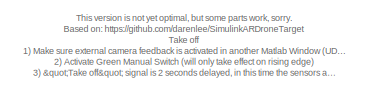
[diagram: root canvas - part 1/8, top left region]
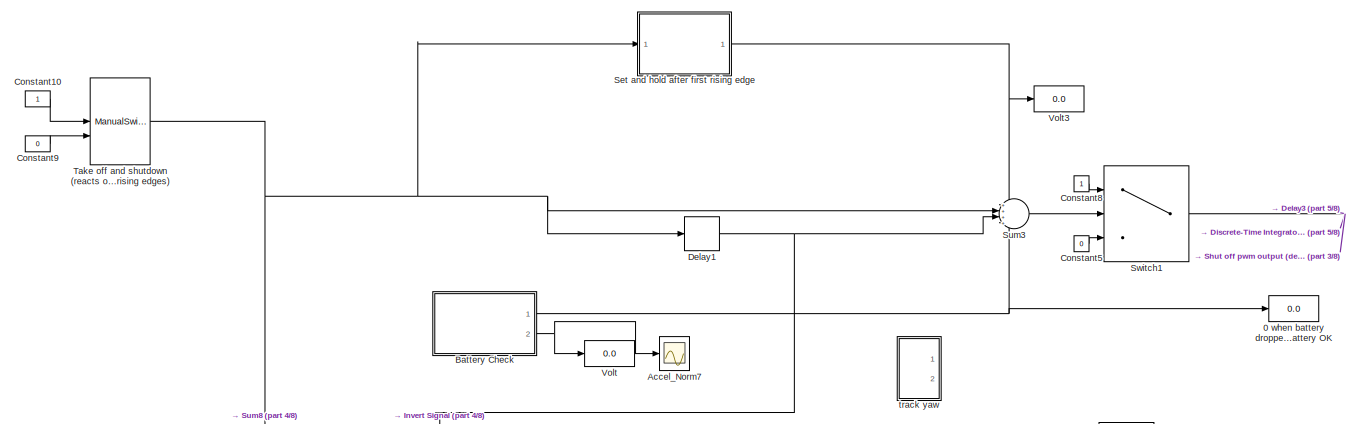
[diagram: root canvas - part 2/8, middle left region]
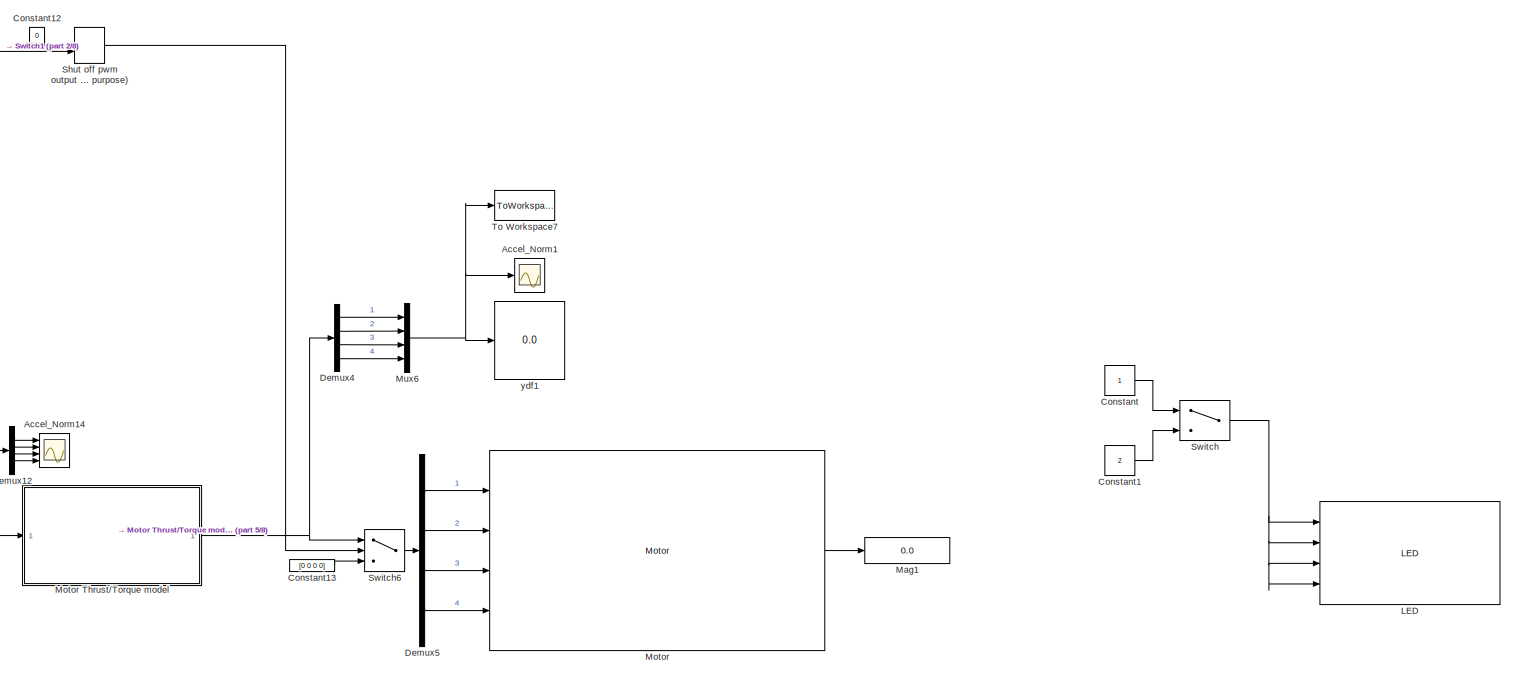
[diagram: root canvas - part 3/8, middle right region]
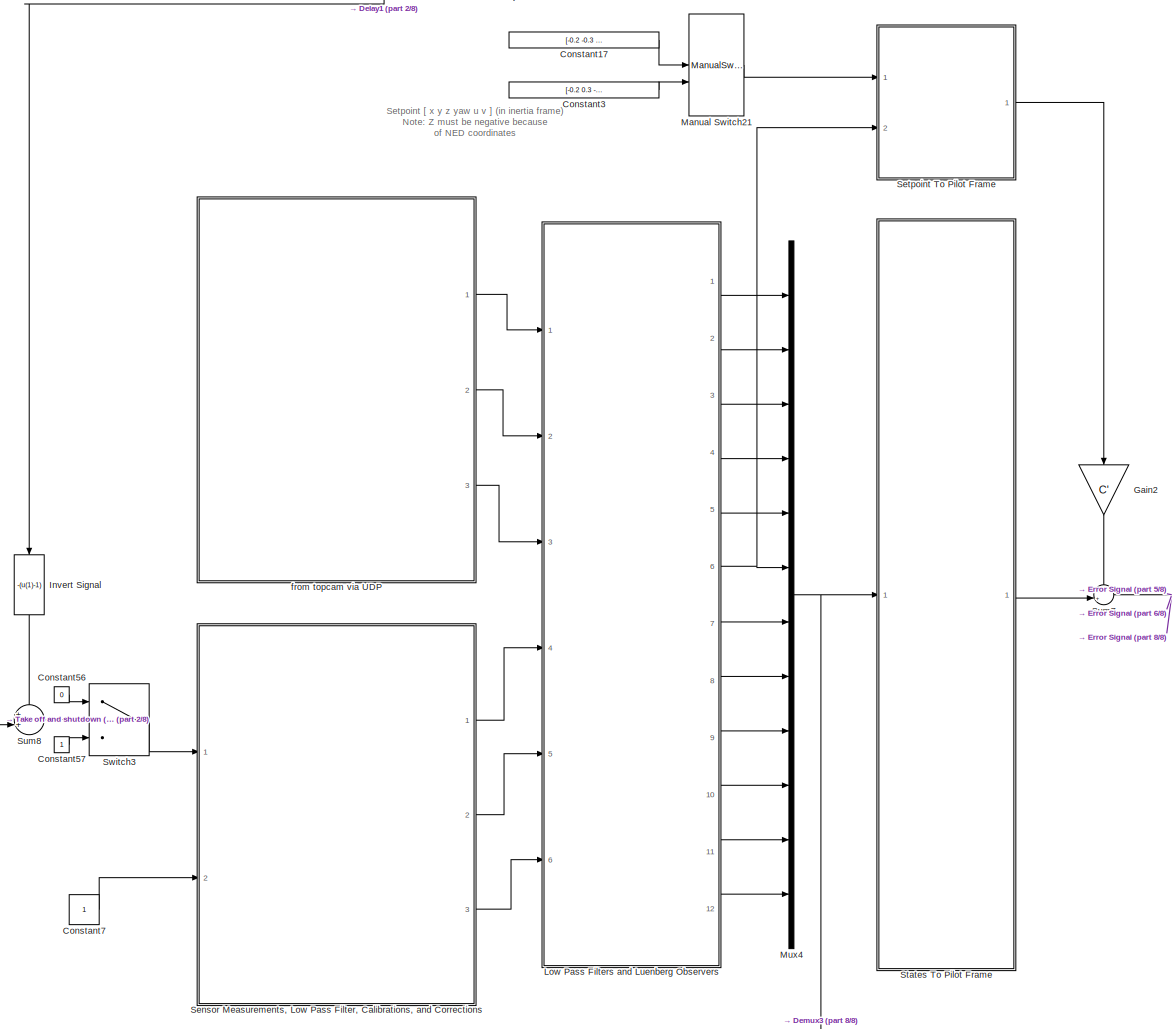
[diagram: root canvas - part 4/8, middle left region]
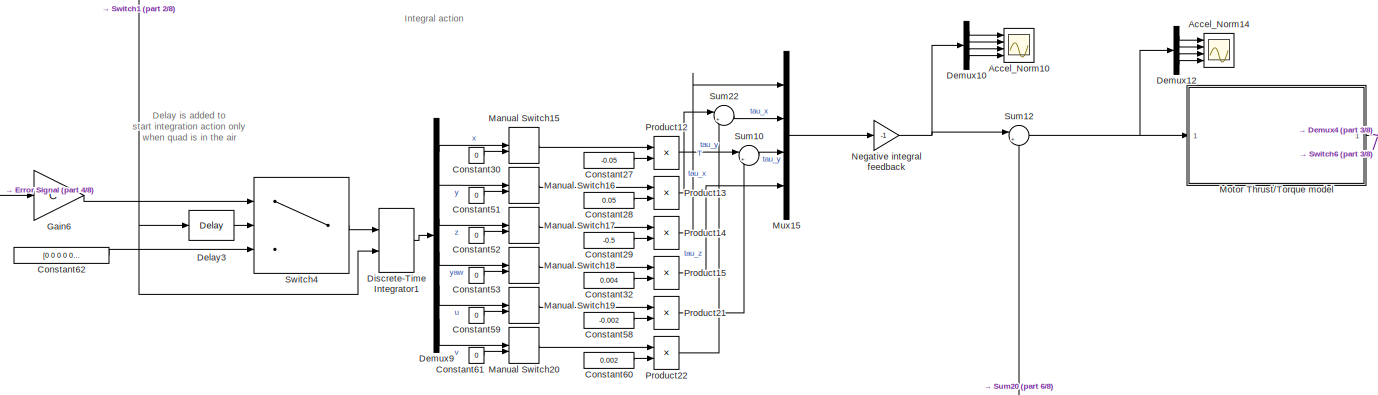
[diagram: root canvas - part 5/8, central region]
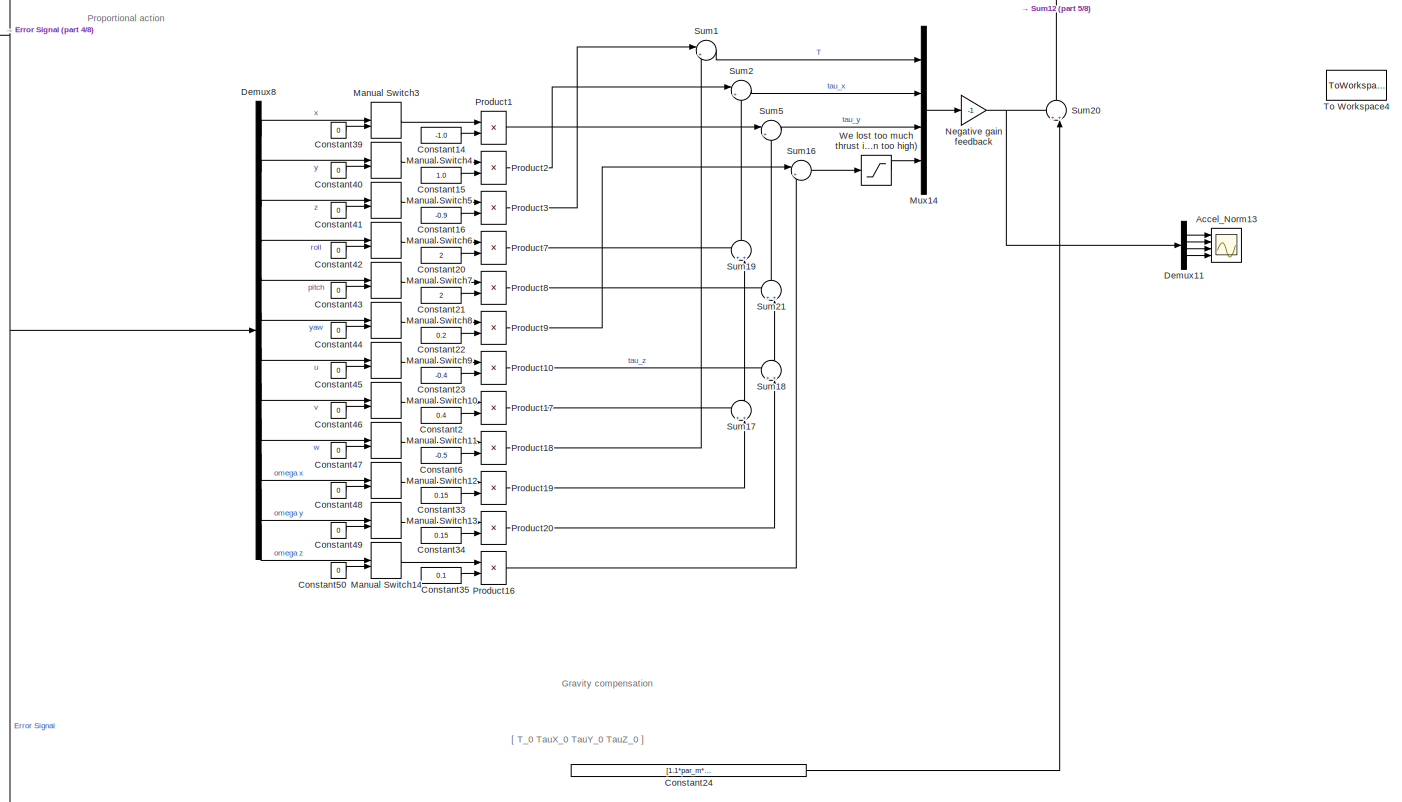
[diagram: root canvas - part 6/8, bottom center region]
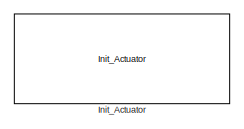
[diagram: root canvas - part 7/8, bottom left region]
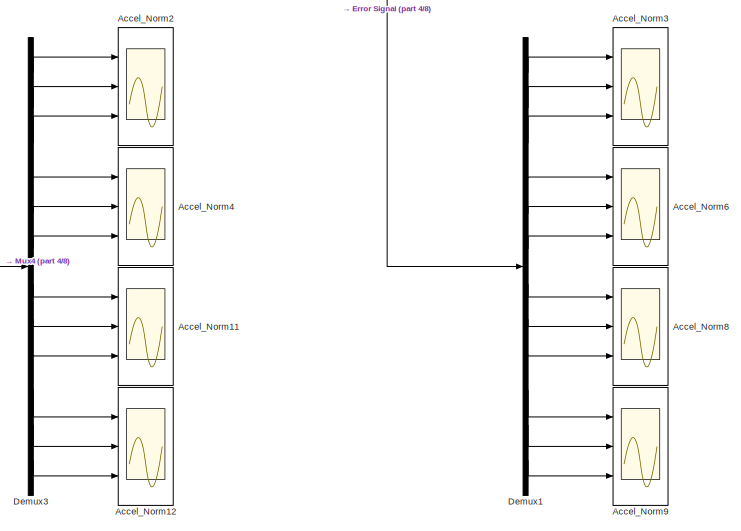
[diagram: root canvas - part 8/8, bottom center region]
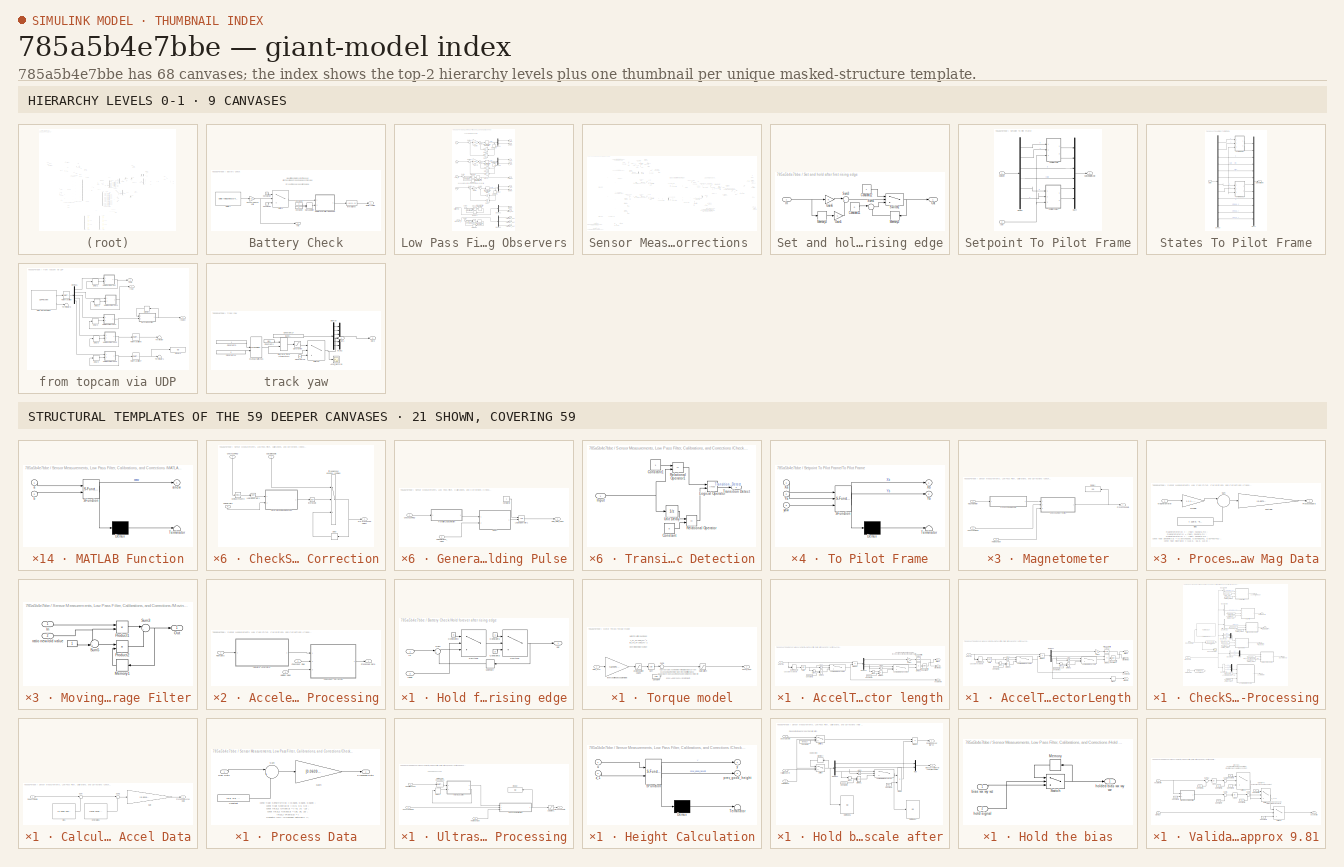
[diagram: thumbnail index - top-2 hierarchy levels (9 canvases) + 21 structural-template representatives of the remaining 59 canvases]
MODEL slx_785a5b4e7bbe
KIND model
CONFIG InitFcn = AR_DRONE_SCRIPT;\nControllerDesign;\nparameters;
BLOCK [Display] 0 when battery dropped once under 9 volt 1 when battery OK
  Decimation = 1
  Ports = [1]
BLOCK [Scope] Accel_Norm1
  Commented = on
  Floating = off
  LimitDataPoints = off
  NumInputPorts = 1
  Ports = [1]
  SaveName = Accel_P1
  ShowLegends = on
  YMax = 90
  YMin = 0
  ZoomMode = xonly
BLOCK [Scope] Accel_Norm10
  Commented = on
  Floating = off
  LimitDataPoints = off
  NumInputPorts = 4
  Ports = [4]
  SaveName = Accel_P15
  ShowLegends = on
  YMax = 20~1~1~1
  YMin = 0~-1~-1~-1
  ZoomMode = yonly
BLOCK [Scope] Accel_Norm11
  Commented = on
  Floating = off
  LimitDataPoints = off
  NumInputPorts = 3
  Ports = [3]
  SaveName = Accel_P2
  ShowLegends = off
  YMax = 0.2~0.4~0.2
  YMin = -0.4~-0.4~-0.5
  ZoomMode = xonly
BLOCK [Scope] Accel_Norm12
  Commented = on
  Floating = off
  LimitDataPoints = off
  NumInputPorts = 3
  Ports = [3]
  SaveName = Accel_P7
  ShowLegends = off
  YMax = 1.2~0.6~0.4
  YMin = -0.8~-0.6~-0.4
  ZoomMode = xonly
BLOCK [Scope] Accel_Norm13
  Commented = on
  Floating = off
  LimitDataPoints = off
  NumInputPorts = 4
  Ports = [4]
  SaveName = Accel_P18
  ShowLegends = on
  YMax = 0.2~0.1~0.15~0.2
  YMin = -0.5~-0.15~-0.15~-0.2
  ZoomMode = yonly
BLOCK [Scope] Accel_Norm14
  Commented = on
  Floating = off
  LimitDataPoints = off
  NumInputPorts = 4
  Ports = [4]
  SaveName = Accel_P19
  ShowLegends = on
  YMax = 4.2~0.1~1.5~0.05
  YMin = 3.7~-0.25~-0.5~-0.15
  ZoomMode = yonly
BLOCK [Scope] Accel_Norm2
  Commented = on
  Floating = off
  LimitDataPoints = off
  NumInputPorts = 3
  Ports = [3]
  SaveName = Accel_P8
  ShowLegends = off
  YMax = 0.3~0.5~-0.195
  YMin = -0.5~-0.4~-0.235
BLOCK [Scope] Accel_Norm3
  Commented = on
  Floating = off
  LimitDataPoints = off
  NumInputPorts = 3
  Ports = [3]
  SaveName = Accel_P
  ShowLegends = off
  YMax = 0.5~0.5~0.5
  YMin = -0.5~-0.4~0.25
BLOCK [Scope] Accel_Norm4
  Commented = on
  Floating = off
  LimitDataPoints = off
  NumInputPorts = 3
  Ports = [3]
  SaveName = Accel_P10
  ShowLegends = off
  YMax = 1~1~2
  YMin = -1~-1~-1.5
BLOCK [Scope] Accel_Norm6
  Commented = on
  Floating = off
  LimitDataPoints = off
  NumInputPorts = 3
  Ports = [3]
  SaveName = Accel_P3
  ShowLegends = off
  YMax = 1~1~2
  YMin = -1~-1~-1.5
BLOCK [Scope] Accel_Norm7
  Commented = on
  Floating = off
  LimitDataPoints = off
  NumInputPorts = 1
  Ports = [1]
  SaveName = Accel_P11
  ShowLegends = off
  YMax = 12
  YMin = 9
BLOCK [Scope] Accel_Norm8
  Commented = on
  Floating = off
  LimitDataPoints = off
  NumInputPorts = 3
  Ports = [3]
  SaveName = Accel_P4
  ShowLegends = off
  YMax = 0.2~0.4~0.2
  YMin = -0.4~-0.4~-0.5
  ZoomMode = xonly
BLOCK [Scope] Accel_Norm9
  Commented = on
  Floating = off
  LimitDataPoints = off
  NumInputPorts = 3
  Ports = [3]
  SaveName = Accel_P6
  ShowLegends = off
  YMax = 1.2~0.6~0.4
  YMin = -0.8~-0.6~-0.4
  ZoomMode = xonly
BLOCK [SubSystem] Battery Check
  Ports = [0, 2]
  RequestExecContextInheritance = off
BLOCK [Reference] Battery Check/Battery  REF=AR_Drone_2_Library/Battery Voltage Measurement
  Ports = [0, 1]
  SFunctionSpec = void BatteryMeasure_step(single y1[1])
  SampleTime = -1
  SourceBlock = AR_Drone_2_Library/Battery Voltage Measurement
  SourceType = Read Battery Voltage
BLOCK [Outport] Battery Check/Battery Volt OK
  IconDisplay = Port number
BLOCK [Constant] Battery Check/Constant1
  Value = 0
BLOCK [Constant] Battery Check/Constant12
BLOCK [Constant] Battery Check/Constant14
  Value = 0
BLOCK [Constant] Battery Check/Constant2
BLOCK [SubSystem] Battery Check/Hold forever after rising edge
  Ports = [2, 1]
  RequestExecContextInheritance = off
BLOCK [Constant] Battery Check/Hold forever after rising edge/Constant1
BLOCK [Constant] Battery Check/Hold forever after rising edge/Constant2
  Value = 0
BLOCK [Constant] Battery Check/Hold forever after rising edge/Constant3
  Value = 0
BLOCK [Memory] Battery Check/Hold forever after rising edge/Memory
BLOCK [Sum] Battery Check/Hold forever after rising edge/Sum
  IconShape = round
  InputSameDT = off
  Inputs = |++
  OutDataTypeStr = Inherit: Inherit via internal rule
  Ports = [2, 1]
  SaturateOnIntegerOverflow = off
BLOCK [Switch] Battery Check/Hold forever after rising edge/Switch1
  InputSameDT = off
  SaturateOnIntegerOverflow = off
  Threshold = 1
BLOCK [Switch] Battery Check/Hold forever after rising edge/Switch3
  InputSameDT = off
  SaturateOnIntegerOverflow = off
  Threshold = 1
BLOCK [Inport] Battery Check/Hold forever after rising edge/in
  IconDisplay = Port number
BLOCK [Outport] Battery Check/Hold forever after rising edge/out
  IconDisplay = Port number
BLOCK [Inport] Battery Check/Hold forever after rising edge/reset
  IconDisplay = Port number
  Port = 2
BLOCK [Fcn] Battery Check/Invert Signal
  Expr = -(u(1)-1)
BLOCK [ManualSwitch] Battery Check/Manual Switch
BLOCK [Gain] Battery Check/SensorValue To Volt1
  Gain = 0.1
  OutDataTypeStr = Inherit: Inherit via internal rule
  ParamDataTypeStr = Inherit: Inherit via internal rule
  SaturateOnIntegerOverflow = off
BLOCK [Switch] Battery Check/Switch2
  InputSameDT = off
  SaturateOnIntegerOverflow = off
  Threshold = 9 %Volt
BLOCK [Outport] Battery Check/volt
  IconDisplay = Port number
  Port = 2
BLOCK [Constant] Constant
BLOCK [Constant] Constant1
  Value = 2
BLOCK [Constant] Constant10
BLOCK [Constant] Constant12
  Value = 0
BLOCK [Constant] Constant13
  Value = [0 0 0 0]
BLOCK [Constant] Constant14
  Value = -1.0
BLOCK [Constant] Constant15
  Value = 1.0
BLOCK [Constant] Constant16
  Value = -0.9
BLOCK [Constant] Constant17
  Value = [-0.2 -0.3 -0.5  -0.0*pi 0 0]
BLOCK [Constant] Constant2
  Value = 0.4
BLOCK [Constant] Constant20
  Value = 2
BLOCK [Constant] Constant21
  Value = 2
BLOCK [Constant] Constant22
  Value = 0.2
BLOCK [Constant] Constant23
  Value = -0.4
BLOCK [Constant] Constant24
  Value = [1.1*par_m*par_g      -0.02     -0.083    -0.027]
BLOCK [Constant] Constant27
  Value = -0.05
BLOCK [Constant] Constant28
  Value = 0.05
BLOCK [Constant] Constant29
  Value = -0.5
BLOCK [Constant] Constant3
  Value = [-0.2 0.3 -0.5  -0.0*pi 0 0]
BLOCK [Constant] Constant30
  Value = 0
BLOCK [Constant] Constant32
  Value = 0.004
BLOCK [Constant] Constant33
  Value = 0.15
BLOCK [Constant] Constant34
  Value = 0.15
BLOCK [Constant] Constant35
  Value = 0.1
BLOCK [Constant] Constant39
  Value = 0
BLOCK [Constant] Constant40
  Value = 0
BLOCK [Constant] Constant41
  Value = 0
BLOCK [Constant] Constant42
  Value = 0
BLOCK [Constant] Constant43
  Value = 0
BLOCK [Constant] Constant44
  Value = 0
BLOCK [Constant] Constant45
  Value = 0
BLOCK [Constant] Constant46
  Value = 0
BLOCK [Constant] Constant47
  Value = 0
BLOCK [Constant] Constant48
  Value = 0
BLOCK [Constant] Constant49
  Value = 0
BLOCK [Constant] Constant5
  Value = 0
BLOCK [Constant] Constant50
  Value = 0
BLOCK [Constant] Constant51
  Value = 0
BLOCK [Constant] Constant52
  Value = 0
BLOCK [Constant] Constant53
  Value = 0
BLOCK [Constant] Constant56
  Value = 0
BLOCK [Constant] Constant57
BLOCK [Constant] Constant58
  Value = -0.002
BLOCK [Constant] Constant59
  Value = 0
BLOCK [Constant] Constant6
  Value = -0.5
BLOCK [Constant] Constant60
  Value = 0.002
BLOCK [Constant] Constant61
  Value = 0
BLOCK [Constant] Constant62
  Value = [0 0 0  0 0 0]
BLOCK [Constant] Constant7
BLOCK [Constant] Constant8
BLOCK [Constant] Constant9
  Value = 0
BLOCK [Delay] Delay1
  DelayLength = 800
  InitialCondition = 0
  InputPortMap = u0
  Ports = [1, 1]
BLOCK [Delay] Delay3
  DelayLength = 400
  InitialCondition = 0
  InputPortMap = u0
  Ports = [1, 1]
BLOCK [Demux] Demux1
  Commented = on
  DisplayOption = bar
  Outputs = 12
  Ports = [1, 12]
BLOCK [Demux] Demux10
  Commented = on
  DisplayOption = bar
  Ports = [1, 4]
BLOCK [Demux] Demux11
  Commented = on
  DisplayOption = bar
  Ports = [1, 4]
BLOCK [Demux] Demux12
  Commented = on
  DisplayOption = bar
  Ports = [1, 4]
BLOCK [Demux] Demux3
  Commented = on
  DisplayOption = bar
  Outputs = 12
  Ports = [1, 12]
BLOCK [Demux] Demux4
  DisplayOption = bar
  Ports = [1, 4]
BLOCK [Demux] Demux5
  DisplayOption = bar
  Ports = [1, 4]
BLOCK [Demux] Demux8
  DisplayOption = bar
  Outputs = 12
  Ports = [1, 12]
BLOCK [Demux] Demux9
  DisplayOption = bar
  Outputs = 6
  Ports = [1, 6]
BLOCK [DiscreteIntegrator] Discrete-Time Integrator1
  ExternalReset = rising
  InitialConditionSetting = State (most efficient)
  Ports = [2, 1]
  SampleTime = -1
BLOCK [Gain] Gain2
  Gain = C'
  Multiplication = Matrix(K*u)
  OutDataTypeStr = Inherit: Inherit via internal rule
  ParamDataTypeStr = Inherit: Inherit via internal rule
  SaturateOnIntegerOverflow = off
BLOCK [Gain] Gain6
  Gain = C
  Multiplication = Matrix(K*u)
  OutDataTypeStr = Inherit: Inherit via internal rule
  ParamDataTypeStr = Inherit: Inherit via internal rule
  SampleTime = 0.0025
  SaturateOnIntegerOverflow = off
BLOCK [Reference] Init_Actuator  REF=AR_Drone_2_Library/Init_Actuator
  Ports = []
  ShowSpec = on
  SourceBlock = AR_Drone_2_Library/Init_Actuator
BLOCK [Fcn] Invert Signal
  Expr = -(u(1)-1)
BLOCK [Reference] LED  REF=AR_Drone_2_Library/LED
  Ports = [4]
  SourceBlock = AR_Drone_2_Library/LED
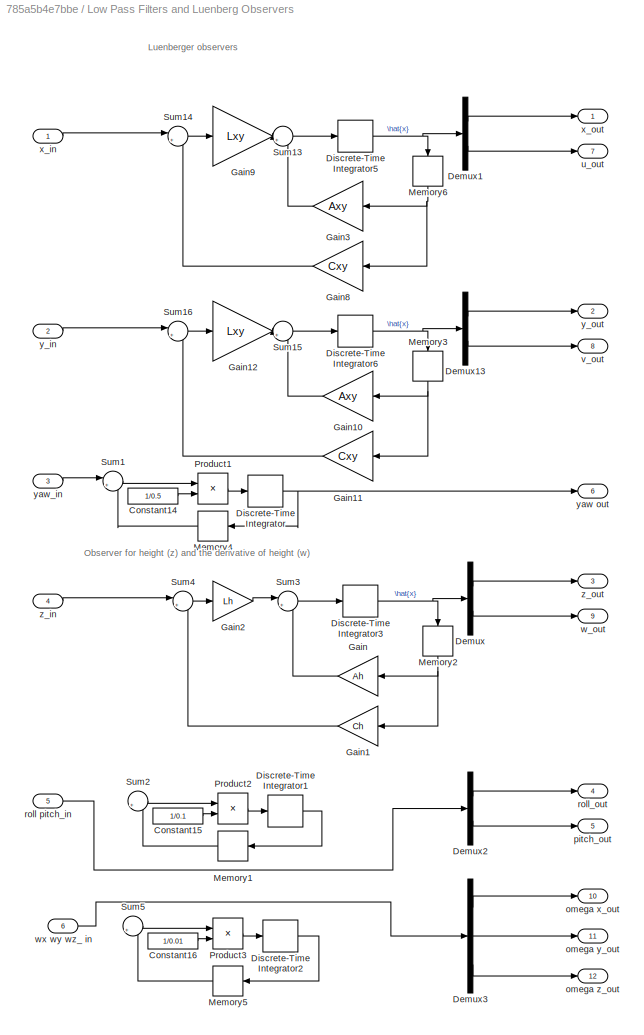
BLOCK [SubSystem] Low Pass Filters and Luenberg Observers
  Ports = [6, 12]
  RequestExecContextInheritance = off
BLOCK [Constant] Low Pass Filters and Luenberg Observers/Constant14
  Value = 1/0.5
BLOCK [Constant] Low Pass Filters and Luenberg Observers/Constant15
  Commented = on
  Value = 1/0.1
BLOCK [Constant] Low Pass Filters and Luenberg Observers/Constant16
  Commented = on
  Value = 1/0.01
BLOCK [Demux] Low Pass Filters and Luenberg Observers/Demux
  DisplayOption = bar
  Outputs = 2
  Ports = [1, 2]
BLOCK [Demux] Low Pass Filters and Luenberg Observers/Demux1
  DisplayOption = bar
  Outputs = 2
  Ports = [1, 2]
BLOCK [Demux] Low Pass Filters and Luenberg Observers/Demux13
  DisplayOption = bar
  Outputs = 2
  Ports = [1, 2]
BLOCK [Demux] Low Pass Filters and Luenberg Observers/Demux2
  DisplayOption = bar
  Outputs = 2
  Ports = [1, 2]
BLOCK [Demux] Low Pass Filters and Luenberg Observers/Demux3
  DisplayOption = bar
  Outputs = 3
  Ports = [1, 3]
BLOCK [DiscreteIntegrator] Low Pass Filters and Luenberg Observers/Discrete-Time Integrator
  InitialConditionSetting = State (most efficient)
  Ports = [1, 1]
  SampleTime = -1
BLOCK [DiscreteIntegrator] Low Pass Filters and Luenberg Observers/Discrete-Time Integrator1
  Commented = on
  InitialConditionSetting = State (most efficient)
  Ports = [1, 1]
  SampleTime = -1
BLOCK [DiscreteIntegrator] Low Pass Filters and Luenberg Observers/Discrete-Time Integrator2
  Commented = on
  InitialConditionSetting = State (most efficient)
  Ports = [1, 1]
  SampleTime = -1
BLOCK [DiscreteIntegrator] Low Pass Filters and Luenberg Observers/Discrete-Time Integrator3
  InitialCondition = [0 0]
  InitialConditionSetting = State (most efficient)
  Ports = [1, 1]
  SampleTime = -1
BLOCK [DiscreteIntegrator] Low Pass Filters and Luenberg Observers/Discrete-Time Integrator5
  InitialCondition = [0 0]
  InitialConditionSetting = State (most efficient)
  Ports = [1, 1]
  SampleTime = -1
BLOCK [DiscreteIntegrator] Low Pass Filters and Luenberg Observers/Discrete-Time Integrator6
  InitialCondition = [0 0]
  InitialConditionSetting = State (most efficient)
  Ports = [1, 1]
  SampleTime = -1
BLOCK [Gain] Low Pass Filters and Luenberg Observers/Gain
  Gain = Ah
  Multiplication = Matrix(K*u)
  OutDataTypeStr = Inherit: Inherit via internal rule
  ParamDataTypeStr = Inherit: Inherit via internal rule
  SaturateOnIntegerOverflow = off
BLOCK [Gain] Low Pass Filters and Luenberg Observers/Gain1
  Gain = Ch
  Multiplication = Matrix(K*u)
  OutDataTypeStr = Inherit: Inherit via internal rule
  ParamDataTypeStr = Inherit: Inherit via internal rule
  SaturateOnIntegerOverflow = off
BLOCK [Gain] Low Pass Filters and Luenberg Observers/Gain10
  Gain = Axy
  Multiplication = Matrix(K*u)
  OutDataTypeStr = Inherit: Inherit via internal rule
  ParamDataTypeStr = Inherit: Inherit via internal rule
  SaturateOnIntegerOverflow = off
BLOCK [Gain] Low Pass Filters and Luenberg Observers/Gain11
  Gain = Cxy
  Multiplication = Matrix(K*u)
  OutDataTypeStr = Inherit: Inherit via internal rule
  ParamDataTypeStr = Inherit: Inherit via internal rule
  SaturateOnIntegerOverflow = off
BLOCK [Gain] Low Pass Filters and Luenberg Observers/Gain12
  Gain = Lxy
  Multiplication = Matrix(K*u)
  OutDataTypeStr = Inherit: Inherit via internal rule
  ParamDataTypeStr = Inherit: Inherit via internal rule
  SaturateOnIntegerOverflow = off
BLOCK [Gain] Low Pass Filters and Luenberg Observers/Gain2
  Gain = Lh
  Multiplication = Matrix(K*u)
  OutDataTypeStr = Inherit: Inherit via internal rule
  ParamDataTypeStr = Inherit: Inherit via internal rule
  SaturateOnIntegerOverflow = off
BLOCK [Gain] Low Pass Filters and Luenberg Observers/Gain3
  Gain = Axy
  Multiplication = Matrix(K*u)
  OutDataTypeStr = Inherit: Inherit via internal rule
  ParamDataTypeStr = Inherit: Inherit via internal rule
  SaturateOnIntegerOverflow = off
BLOCK [Gain] Low Pass Filters and Luenberg Observers/Gain8
  Gain = Cxy
  Multiplication = Matrix(K*u)
  OutDataTypeStr = Inherit: Inherit via internal rule
  ParamDataTypeStr = Inherit: Inherit via internal rule
  SaturateOnIntegerOverflow = off
BLOCK [Gain] Low Pass Filters and Luenberg Observers/Gain9
  Gain = Lxy
  Multiplication = Matrix(K*u)
  OutDataTypeStr = Inherit: Inherit via internal rule
  ParamDataTypeStr = Inherit: Inherit via internal rule
  SaturateOnIntegerOverflow = off
BLOCK [Memory] Low Pass Filters and Luenberg Observers/Memory1
  Commented = on
BLOCK [Memory] Low Pass Filters and Luenberg Observers/Memory2
BLOCK [Memory] Low Pass Filters and Luenberg Observers/Memory3
BLOCK [Memory] Low Pass Filters and Luenberg Observers/Memory4
BLOCK [Memory] Low Pass Filters and Luenberg Observers/Memory5
  Commented = on
BLOCK [Memory] Low Pass Filters and Luenberg Observers/Memory6
BLOCK [Product] Low Pass Filters and Luenberg Observers/Product1
  InputSameDT = off
  OutDataTypeStr = Inherit: Inherit via internal rule
  Ports = [2, 1]
  RndMeth = Floor
  SaturateOnIntegerOverflow = off
BLOCK [Product] Low Pass Filters and Luenberg Observers/Product2
  Commented = on
  InputSameDT = off
  OutDataTypeStr = Inherit: Inherit via internal rule
  Ports = [2, 1]
  RndMeth = Floor
  SaturateOnIntegerOverflow = off
BLOCK [Product] Low Pass Filters and Luenberg Observers/Product3
  Commented = on
  InputSameDT = off
  OutDataTypeStr = Inherit: Inherit via internal rule
  Ports = [2, 1]
  RndMeth = Floor
  SaturateOnIntegerOverflow = off
BLOCK [Sum] Low Pass Filters and Luenberg Observers/Sum1
  IconShape = round
  InputSameDT = off
  Inputs = |+-
  OutDataTypeStr = Inherit: Inherit via internal rule
  Ports = [2, 1]
  SaturateOnIntegerOverflow = off
BLOCK [Sum] Low Pass Filters and Luenberg Observers/Sum13
  IconShape = round
  InputSameDT = off
  Inputs = |++
  OutDataTypeStr = Inherit: Inherit via internal rule
  Ports = [2, 1]
  SaturateOnIntegerOverflow = off
BLOCK [Sum] Low Pass Filters and Luenberg Observers/Sum14
  IconShape = round
  InputSameDT = off
  Inputs = |+-
  OutDataTypeStr = Inherit: Inherit via internal rule
  Ports = [2, 1]
  SaturateOnIntegerOverflow = off
BLOCK [Sum] Low Pass Filters and Luenberg Observers/Sum15
  IconShape = round
  InputSameDT = off
  Inputs = |++
  OutDataTypeStr = Inherit: Inherit via internal rule
  Ports = [2, 1]
  SaturateOnIntegerOverflow = off
BLOCK [Sum] Low Pass Filters and Luenberg Observers/Sum16
  IconShape = round
  InputSameDT = off
  Inputs = |+-
  OutDataTypeStr = Inherit: Inherit via internal rule
  Ports = [2, 1]
  SaturateOnIntegerOverflow = off
BLOCK [Sum] Low Pass Filters and Luenberg Observers/Sum2
  Commented = on
  IconShape = round
  InputSameDT = off
  Inputs = |+-
  OutDataTypeStr = Inherit: Inherit via internal rule
  Ports = [2, 1]
  SaturateOnIntegerOverflow = off
BLOCK [Sum] Low Pass Filters and Luenberg Observers/Sum3
  IconShape = round
  InputSameDT = off
  Inputs = |++
  OutDataTypeStr = Inherit: Inherit via internal rule
  Ports = [2, 1]
  SaturateOnIntegerOverflow = off
BLOCK [Sum] Low Pass Filters and Luenberg Observers/Sum4
  IconShape = round
  InputSameDT = off
  Inputs = |+-
  OutDataTypeStr = Inherit: Inherit via internal rule
  Ports = [2, 1]
  SaturateOnIntegerOverflow = off
BLOCK [Sum] Low Pass Filters and Luenberg Observers/Sum5
  Commented = on
  IconShape = round
  InputSameDT = off
  Inputs = |+-
  OutDataTypeStr = Inherit: Inherit via internal rule
  Ports = [2, 1]
  SaturateOnIntegerOverflow = off
BLOCK [Outport] Low Pass Filters and Luenberg Observers/omega x_out
  IconDisplay = Port number
  Port = 10
BLOCK [Outport] Low Pass Filters and Luenberg Observers/omega y_out
  IconDisplay = Port number
  Port = 11
BLOCK [Outport] Low Pass Filters and Luenberg Observers/omega z_out
  IconDisplay = Port number
  Port = 12
BLOCK [Outport] Low Pass Filters and Luenberg Observers/pitch_out
  IconDisplay = Port number
  Port = 5
BLOCK [Inport] Low Pass Filters and Luenberg Observers/roll pitch_in
  IconDisplay = Port number
  Port = 5
BLOCK [Outport] Low Pass Filters and Luenberg Observers/roll_out
  IconDisplay = Port number
  Port = 4
BLOCK [Outport] Low Pass Filters and Luenberg Observers/u_out
  IconDisplay = Port number
  Port = 7
BLOCK [Outport] Low Pass Filters and Luenberg Observers/v_out
  IconDisplay = Port number
  Port = 8
BLOCK [Outport] Low Pass Filters and Luenberg Observers/w_out
  IconDisplay = Port number
  Port = 9
BLOCK [Inport] Low Pass Filters and Luenberg Observers/wx wy wz_ in
  IconDisplay = Port number
  Port = 6
BLOCK [Inport] Low Pass Filters and Luenberg Observers/x_in
  IconDisplay = Port number
BLOCK [Outport] Low Pass Filters and Luenberg Observers/x_out
  IconDisplay = Port number
BLOCK [Inport] Low Pass Filters and Luenberg Observers/y_in
  IconDisplay = Port number
  Port = 2
BLOCK [Outport] Low Pass Filters and Luenberg Observers/y_out
  IconDisplay = Port number
  Port = 2
BLOCK [Outport] Low Pass Filters and Luenberg Observers/yaw out
  IconDisplay = Port number
  Port = 6
BLOCK [Inport] Low Pass Filters and Luenberg Observers/yaw_in
  IconDisplay = Port number
  Port = 3
BLOCK [Inport] Low Pass Filters and Luenberg Observers/z_in
  IconDisplay = Port number
  Port = 4
BLOCK [Outport] Low Pass Filters and Luenberg Observers/z_out
  IconDisplay = Port number
  Port = 3
BLOCK [Display] Mag1
  Decimation = 1
  Ports = [1]
BLOCK [ManualSwitch] Manual Switch10
BLOCK [ManualSwitch] Manual Switch11
BLOCK [ManualSwitch] Manual Switch12
BLOCK [ManualSwitch] Manual Switch13
BLOCK [ManualSwitch] Manual Switch14
BLOCK [ManualSwitch] Manual Switch15
BLOCK [ManualSwitch] Manual Switch16
BLOCK [ManualSwitch] Manual Switch17
  CurrentSetting = 0
BLOCK [ManualSwitch] Manual Switch18
BLOCK [ManualSwitch] Manual Switch19
  CurrentSetting = 0
BLOCK [ManualSwitch] Manual Switch20
  CurrentSetting = 0
BLOCK [ManualSwitch] Manual Switch21
  CurrentSetting = 0
BLOCK [ManualSwitch] Manual Switch3
BLOCK [ManualSwitch] Manual Switch4
BLOCK [ManualSwitch] Manual Switch5
BLOCK [ManualSwitch] Manual Switch6
BLOCK [ManualSwitch] Manual Switch7
BLOCK [ManualSwitch] Manual Switch8
BLOCK [ManualSwitch] Manual Switch9
BLOCK [Reference] Motor  REF=AR_Drone_2_Library/Motor
  Ports = [4, 1]
  SourceBlock = AR_Drone_2_Library/Motor
BLOCK [SubSystem] Motor Thrust//Torque model
  Ports = [1, 1]
  RequestExecContextInheritance = off
BLOCK [Constant] Motor Thrust//Torque model/Constant4
  Value = par.k
BLOCK [Gain] Motor Thrust//Torque model/Inverse of the decouple matrix
  Gain = tauToPwmbar
  Multiplication = Matrix(K*u)
  OutDataTypeStr = Inherit: Inherit via internal rule
  ParamDataTypeStr = Inherit: Inherit via internal rule
  SaturateOnIntegerOverflow = off
BLOCK [Outport] Motor Thrust//Torque model/PWM_1,2,3,4
  IconDisplay = Port number
BLOCK [Saturate] Motor Thrust//Torque model/Saturation4
  InputPortMap = u0
  LowerLimit = 2
  Ports = [1, 1]
  UpperLimit = 85
BLOCK [Sqrt] Motor Thrust//Torque model/Sqrt
BLOCK [Sum] Motor Thrust//Torque model/Sum4
  IconShape = round
  InputSameDT = off
  Inputs = |+-
  OutDataTypeStr = Inherit: Inherit via internal rule
  Ports = [2, 1]
  SaturateOnIntegerOverflow = off
BLOCK [Inport] Motor Thrust//Torque model/[ T tau_xyz ]
  IconDisplay = Port number
BLOCK [Saturate] Motor Thrust//Torque model/avoid negative values
  InputPortMap = u0
  LowerLimit = 0
  Ports = [1, 1]
  UpperLimit = inf
BLOCK [Mux] Mux14
  DisplayOption = bar
  Ports = [4, 1]
BLOCK [Mux] Mux15
  DisplayOption = bar
  Ports = [4, 1]
BLOCK [Mux] Mux4
  DisplayOption = bar
  Inputs = 12
  Ports = [12, 1]
BLOCK [Mux] Mux6
  DisplayOption = bar
  Ports = [4, 1]
BLOCK [Gain] Negative gain feedback
  Gain = -1
  OutDataTypeStr = Inherit: Inherit via internal rule
  ParamDataTypeStr = Inherit: Inherit via internal rule
  SaturateOnIntegerOverflow = off
BLOCK [Gain] Negative integral feedback
  Gain = -1
  OutDataTypeStr = Inherit: Inherit via internal rule
  ParamDataTypeStr = Inherit: Inherit via internal rule
  SaturateOnIntegerOverflow = off
BLOCK [Product] Product1
  InputSameDT = off
  OutDataTypeStr = Inherit: Inherit via internal rule
  Ports = [2, 1]
  RndMeth = Floor
  SaturateOnIntegerOverflow = off
BLOCK [Product] Product10
  InputSameDT = off
  OutDataTypeStr = Inherit: Inherit via internal rule
  Ports = [2, 1]
  RndMeth = Floor
  SaturateOnIntegerOverflow = off
BLOCK [Product] Product12
  InputSameDT = off
  OutDataTypeStr = Inherit: Inherit via internal rule
  Ports = [2, 1]
  RndMeth = Floor
  SaturateOnIntegerOverflow = off
BLOCK [Product] Product13
  InputSameDT = off
  OutDataTypeStr = Inherit: Inherit via internal rule
  Ports = [2, 1]
  RndMeth = Floor
  SaturateOnIntegerOverflow = off
BLOCK [Product] Product14
  InputSameDT = off
  OutDataTypeStr = Inherit: Inherit via internal rule
  Ports = [2, 1]
  RndMeth = Floor
  SaturateOnIntegerOverflow = off
BLOCK [Product] Product15
  InputSameDT = off
  OutDataTypeStr = Inherit: Inherit via internal rule
  Ports = [2, 1]
  RndMeth = Floor
  SaturateOnIntegerOverflow = off
BLOCK [Product] Product16
  InputSameDT = off
  OutDataTypeStr = Inherit: Inherit via internal rule
  Ports = [2, 1]
  RndMeth = Floor
  SaturateOnIntegerOverflow = off
BLOCK [Product] Product17
  InputSameDT = off
  OutDataTypeStr = Inherit: Inherit via internal rule
  Ports = [2, 1]
  RndMeth = Floor
  SaturateOnIntegerOverflow = off
BLOCK [Product] Product18
  InputSameDT = off
  OutDataTypeStr = Inherit: Inherit via internal rule
  Ports = [2, 1]
  RndMeth = Floor
  SaturateOnIntegerOverflow = off
BLOCK [Product] Product19
  InputSameDT = off
  OutDataTypeStr = Inherit: Inherit via internal rule
  Ports = [2, 1]
  RndMeth = Floor
  SaturateOnIntegerOverflow = off
BLOCK [Product] Product2
  InputSameDT = off
  OutDataTypeStr = Inherit: Inherit via internal rule
  Ports = [2, 1]
  RndMeth = Floor
  SaturateOnIntegerOverflow = off
BLOCK [Product] Product20
  InputSameDT = off
  OutDataTypeStr = Inherit: Inherit via internal rule
  Ports = [2, 1]
  RndMeth = Floor
  SaturateOnIntegerOverflow = off
BLOCK [Product] Product21
  InputSameDT = off
  OutDataTypeStr = Inherit: Inherit via internal rule
  Ports = [2, 1]
  RndMeth = Floor
  SaturateOnIntegerOverflow = off
BLOCK [Product] Product22
  InputSameDT = off
  OutDataTypeStr = Inherit: Inherit via internal rule
  Ports = [2, 1]
  RndMeth = Floor
  SaturateOnIntegerOverflow = off
BLOCK [Product] Product3
  InputSameDT = off
  OutDataTypeStr = Inherit: Inherit via internal rule
  Ports = [2, 1]
  RndMeth = Floor
  SaturateOnIntegerOverflow = off
BLOCK [Product] Product7
  InputSameDT = off
  OutDataTypeStr = Inherit: Inherit via internal rule
  Ports = [2, 1]
  RndMeth = Floor
  SaturateOnIntegerOverflow = off
BLOCK [Product] Product8
  InputSameDT = off
  OutDataTypeStr = Inherit: Inherit via internal rule
  Ports = [2, 1]
  RndMeth = Floor
  SaturateOnIntegerOverflow = off
BLOCK [Product] Product9
  InputSameDT = off
  OutDataTypeStr = Inherit: Inherit via internal rule
  Ports = [2, 1]
  RndMeth = Floor
  SaturateOnIntegerOverflow = off
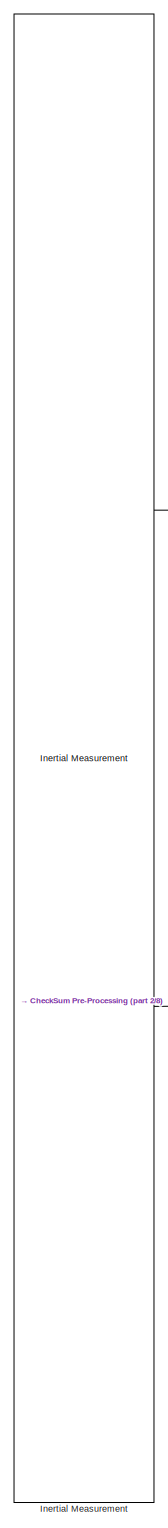
[diagram: Sensor Measurements, Low Pass Filter, Calibrations, and Corrections  - part 1/8, left side, full height]
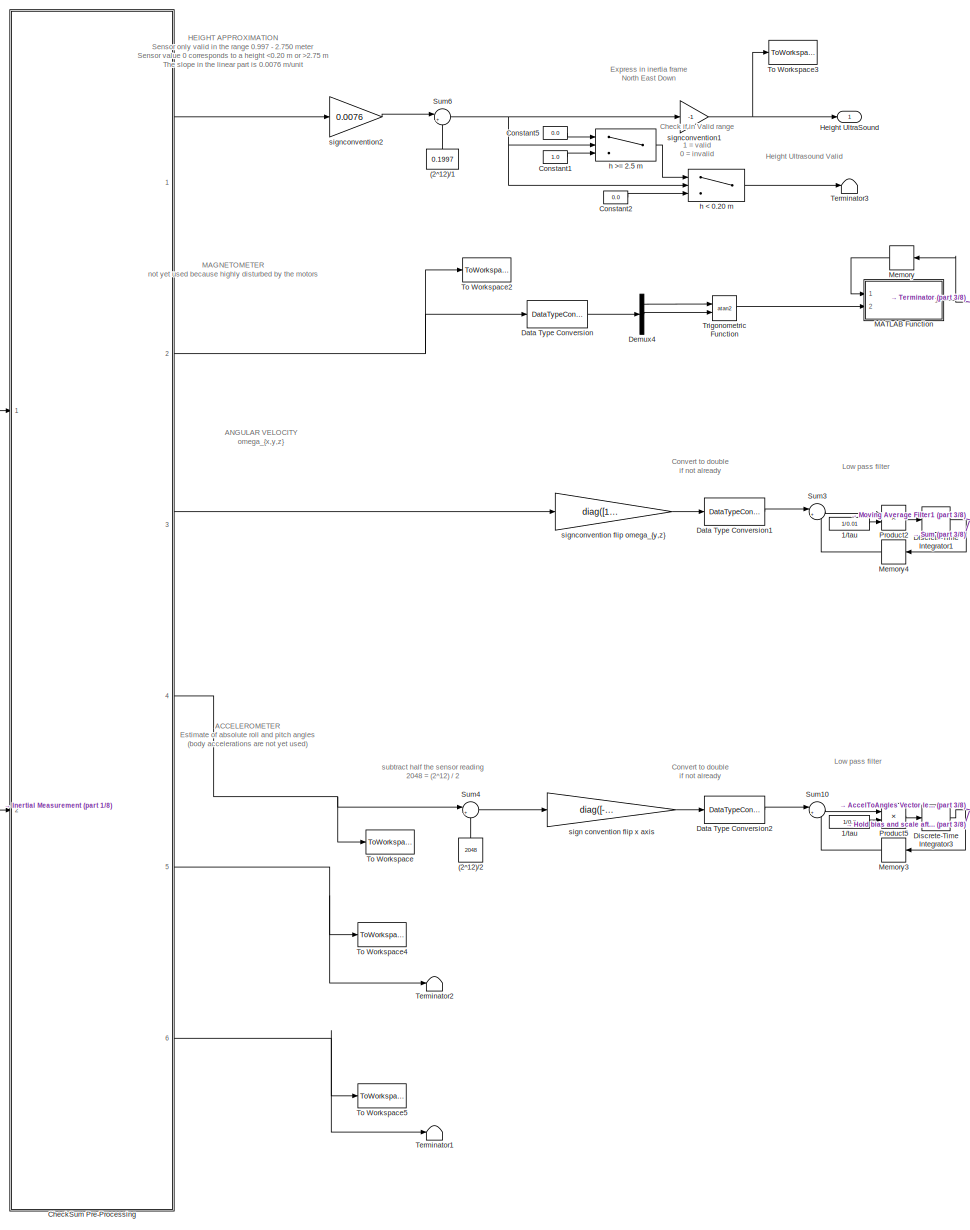
[diagram: Sensor Measurements, Low Pass Filter, Calibrations, and Corrections  - part 2/8, left side, full height]
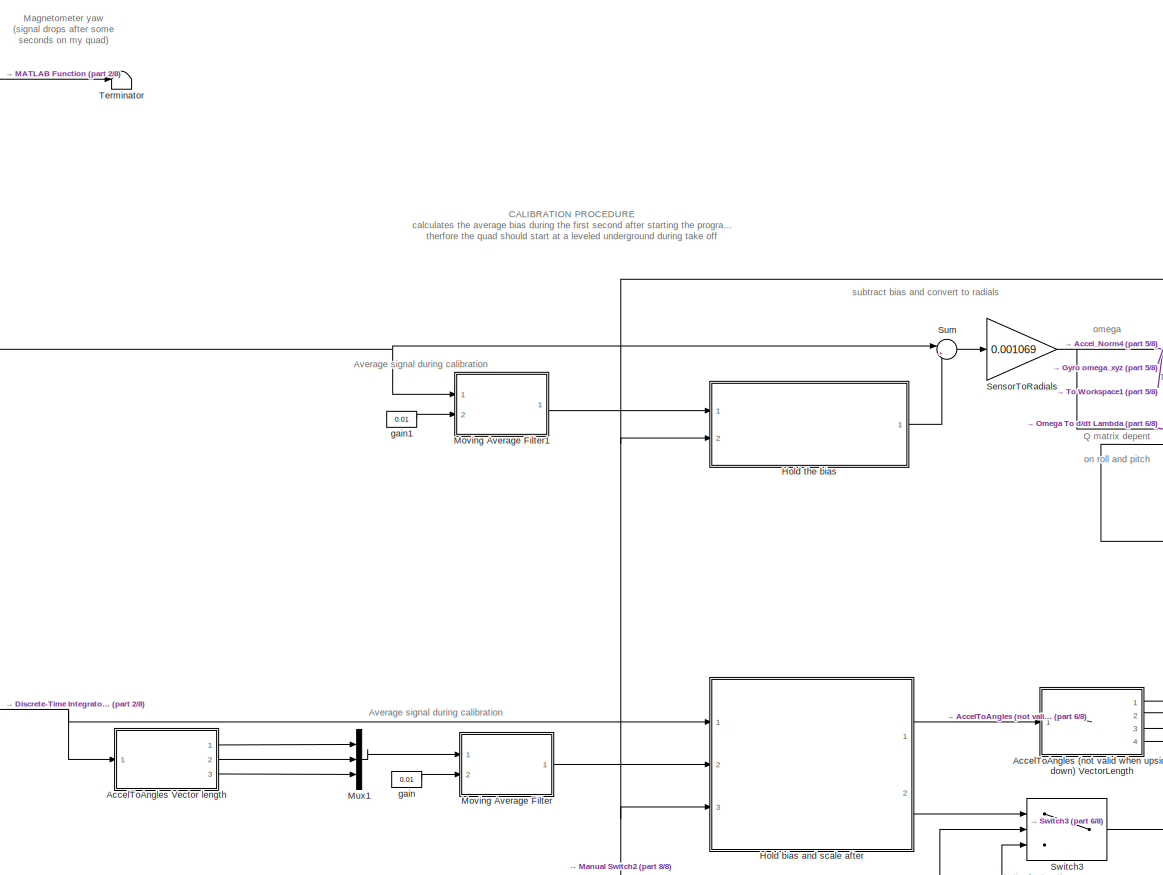
[diagram: Sensor Measurements, Low Pass Filter, Calibrations, and Corrections  - part 3/8, central region]
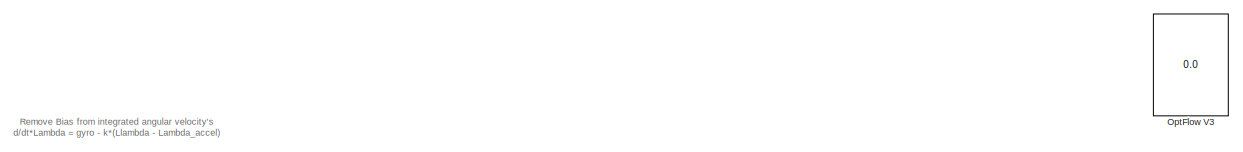
[diagram: Sensor Measurements, Low Pass Filter, Calibrations, and Corrections  - part 4/8, top right region]
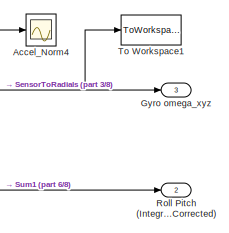
[diagram: Sensor Measurements, Low Pass Filter, Calibrations, and Corrections  - part 5/8, middle right region]
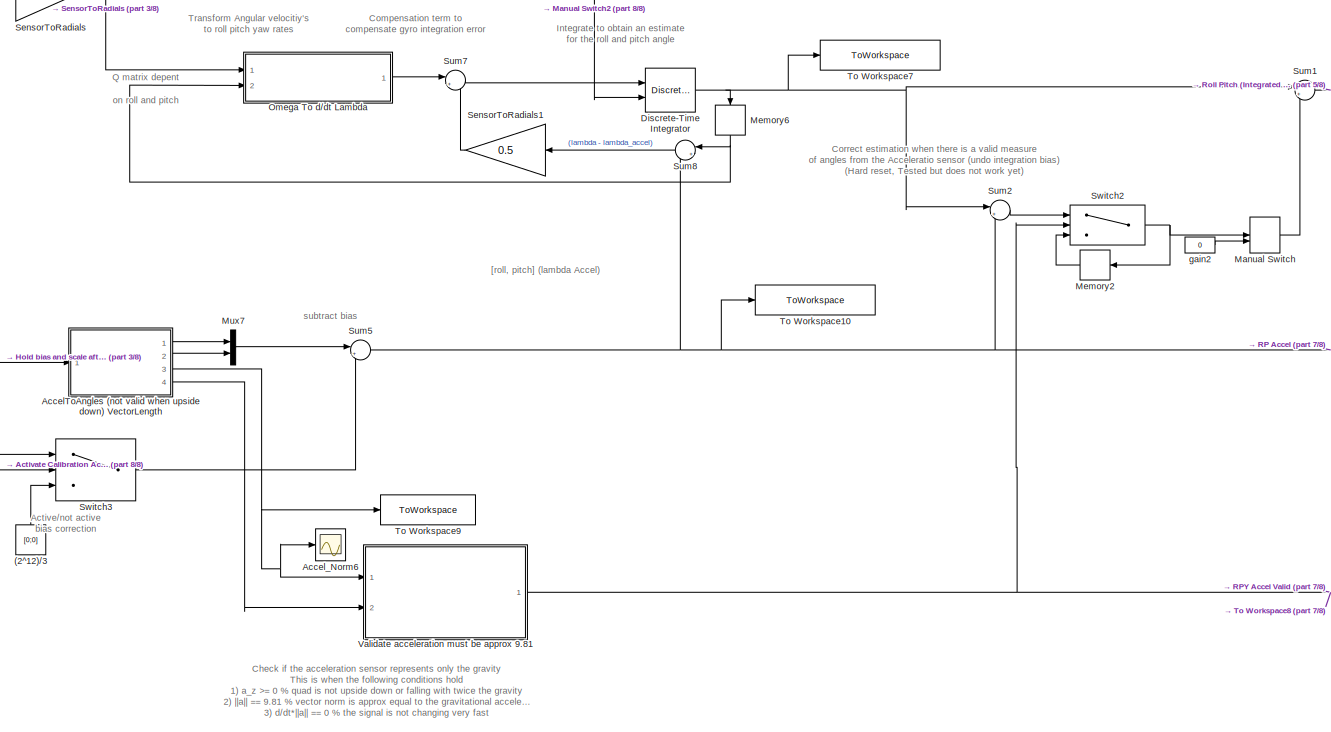
[diagram: Sensor Measurements, Low Pass Filter, Calibrations, and Corrections  - part 6/8, middle right region]
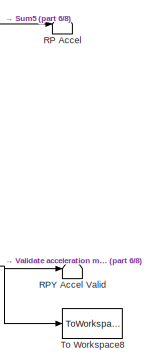
[diagram: Sensor Measurements, Low Pass Filter, Calibrations, and Corrections  - part 7/8, middle right region]
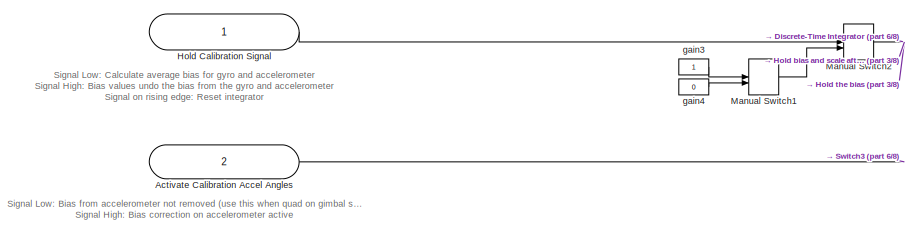
[diagram: Sensor Measurements, Low Pass Filter, Calibrations, and Corrections  - part 8/8, bottom left region]
BLOCK [SubSystem] Sensor Measurements, Low Pass Filter, Calibrations, and Corrections 
  Ports = [2, 3]
  RequestExecContextInheritance = off
BLOCK [Constant] Sensor Measurements, Low Pass Filter, Calibrations, and Corrections /(2^12)//1
  Value = 0.1997
BLOCK [Constant] Sensor Measurements, Low Pass Filter, Calibrations, and Corrections /(2^12)//2
  Value = 2048
BLOCK [Constant] Sensor Measurements, Low Pass Filter, Calibrations, and Corrections /(2^12)//3
  Value = [0;0]
BLOCK [Constant] Sensor Measurements, Low Pass Filter, Calibrations, and Corrections /1//tau
  Value = 1/0.2
BLOCK [Constant] Sensor Measurements, Low Pass Filter, Calibrations, and Corrections /1//tau 
  Value = 1/0.01
BLOCK [SubSystem] Sensor Measurements, Low Pass Filter, Calibrations, and Corrections /AccelToAngles (not valid when upside down) VectorLength
  Ports = [1, 4]
  RequestExecContextInheritance = off
BLOCK [Abs] Sensor Measurements, Low Pass Filter, Calibrations, and Corrections /AccelToAngles (not valid when upside down) VectorLength/Abs
  SaturateOnIntegerOverflow = off
BLOCK [Abs] Sensor Measurements, Low Pass Filter, Calibrations, and Corrections /AccelToAngles (not valid when upside down) VectorLength/Abs1
  SaturateOnIntegerOverflow = off
BLOCK [Switch] Sensor Measurements, Low Pass Filter, Calibrations, and Corrections /AccelToAngles (not valid when upside down) VectorLength/Avoid division by zero
  Criteria = u2 > Threshold
  InputSameDT = off
  SaturateOnIntegerOverflow = off
  Threshold = 0.0001
BLOCK [Switch] Sensor Measurements, Low Pass Filter, Calibrations, and Corrections /AccelToAngles (not valid when upside down) VectorLength/Avoid division by zero1
  Criteria = u2 > Threshold
  InputSameDT = off
  SaturateOnIntegerOverflow = off
  Threshold = 0.0001
BLOCK [Constant] Sensor Measurements, Low Pass Filter, Calibrations, and Corrections /AccelToAngles (not valid when upside down) VectorLength/Constant1
  Value = 0.0001
BLOCK [Constant] Sensor Measurements, Low Pass Filter, Calibrations, and Corrections /AccelToAngles (not valid when upside down) VectorLength/Constant53
  Value = 0.0001
BLOCK [Demux] Sensor Measurements, Low Pass Filter, Calibrations, and Corrections /AccelToAngles (not valid when upside down) VectorLength/Demux1
  DisplayOption = bar
  Outputs = 3
  Ports = [1, 3]
BLOCK [Product] Sensor Measurements, Low Pass Filter, Calibrations, and Corrections /AccelToAngles (not valid when upside down) VectorLength/Divide1
  InputSameDT = off
  Inputs = */
  OutDataTypeStr = Inherit: Inherit via internal rule
  Ports = [2, 1]
  RndMeth = Floor
  SaturateOnIntegerOverflow = off
BLOCK [Product] Sensor Measurements, Low Pass Filter, Calibrations, and Corrections /AccelToAngles (not valid when upside down) VectorLength/Divide2
  InputSameDT = off
  Inputs = **
  OutDataTypeStr = Inherit: Inherit via internal rule
  Ports = [2, 1]
  RndMeth = Floor
  SaturateOnIntegerOverflow = off
BLOCK [Product] Sensor Measurements, Low Pass Filter, Calibrations, and Corrections /AccelToAngles (not valid when upside down) VectorLength/Divide3
  InputSameDT = off
  Inputs = **
  OutDataTypeStr = Inherit: Inherit via internal rule
  Ports = [2, 1]
  RndMeth = Floor
  SaturateOnIntegerOverflow = off
BLOCK [Product] Sensor Measurements, Low Pass Filter, Calibrations, and Corrections /AccelToAngles (not valid when upside down) VectorLength/Divide4
  InputSameDT = off
  Inputs = */
  OutDataTypeStr = Inherit: Inherit via internal rule
  Ports = [2, 1]
  RndMeth = Floor
  SaturateOnIntegerOverflow = off
BLOCK [DotProduct] Sensor Measurements, Low Pass Filter, Calibrations, and Corrections /AccelToAngles (not valid when upside down) VectorLength/Dot Product1
  OutDataTypeStr = Inherit: Inherit via internal rule
BLOCK [Signum] Sensor Measurements, Low Pass Filter, Calibrations, and Corrections /AccelToAngles (not valid when upside down) VectorLength/Sign1
BLOCK [Signum] Sensor Measurements, Low Pass Filter, Calibrations, and Corrections /AccelToAngles (not valid when upside down) VectorLength/Sign2
BLOCK [Signum] Sensor Measurements, Low Pass Filter, Calibrations, and Corrections /AccelToAngles (not valid when upside down) VectorLength/Sign3
BLOCK [Sqrt] Sensor Measurements, Low Pass Filter, Calibrations, and Corrections /AccelToAngles (not valid when upside down) VectorLength/Sqrt1
BLOCK [Trigonometry] Sensor Measurements, Low Pass Filter, Calibrations, and Corrections /AccelToAngles (not valid when upside down) VectorLength/Trigonometric Fnion1
  Operator = asin
  Ports = [1, 1]
BLOCK [Trigonometry] Sensor Measurements, Low Pass Filter, Calibrations, and Corrections /AccelToAngles (not valid when upside down) VectorLength/Trigonometric Function1
  Operator = atan
  Ports = [1, 1]
BLOCK [Inport] Sensor Measurements, Low Pass Filter, Calibrations, and Corrections /AccelToAngles (not valid when upside down) VectorLength/ax ay az
  IconDisplay = Port number
BLOCK [Gain] Sensor Measurements, Low Pass Filter, Calibrations, and Corrections /AccelToAngles (not valid when upside down) VectorLength/gain2
  Gain = -1
  OutDataTypeStr = Inherit: Inherit via internal rule
  ParamDataTypeStr = Inherit: Inherit via internal rule
  SaturateOnIntegerOverflow = off
BLOCK [Outport] Sensor Measurements, Low Pass Filter, Calibrations, and Corrections /AccelToAngles (not valid when upside down) VectorLength/pitch (theta)
  IconDisplay = Port number
  Port = 2
BLOCK [Outport] Sensor Measurements, Low Pass Filter, Calibrations, and Corrections /AccelToAngles (not valid when upside down) VectorLength/roll (phi)
  IconDisplay = Port number
BLOCK [Outport] Sensor Measurements, Low Pass Filter, Calibrations, and Corrections /AccelToAngles (not valid when upside down) VectorLength/sign az
  IconDisplay = Port number
  Port = 4
BLOCK [Outport] Sensor Measurements, Low Pass Filter, Calibrations, and Corrections /AccelToAngles (not valid when upside down) VectorLength/vector norm
  IconDisplay = Port number
  Port = 3
BLOCK [SubSystem] Sensor Measurements, Low Pass Filter, Calibrations, and Corrections /AccelToAngles Vector length
  Ports = [1, 3]
  RequestExecContextInheritance = off
BLOCK [Abs] Sensor Measurements, Low Pass Filter, Calibrations, and Corrections /AccelToAngles Vector length/Abs1
  SaturateOnIntegerOverflow = off
BLOCK [Abs] Sensor Measurements, Low Pass Filter, Calibrations, and Corrections /AccelToAngles Vector length/Abs2
  SaturateOnIntegerOverflow = off
BLOCK [Switch] Sensor Measurements, Low Pass Filter, Calibrations, and Corrections /AccelToAngles Vector length/Avoid division by zero1
  Criteria = u2 > Threshold
  InputSameDT = off
  SaturateOnIntegerOverflow = off
  Threshold = 0.0001
BLOCK [Switch] Sensor Measurements, Low Pass Filter, Calibrations, and Corrections /AccelToAngles Vector length/Avoid division by zero2
  Criteria = u2 > Threshold
  InputSameDT = off
  SaturateOnIntegerOverflow = off
  Threshold = 0.0001
BLOCK [Constant] Sensor Measurements, Low Pass Filter, Calibrations, and Corrections /AccelToAngles Vector length/Constant2
  Value = 0.0001
BLOCK [Constant] Sensor Measurements, Low Pass Filter, Calibrations, and Corrections /AccelToAngles Vector length/Constant3
  Value = 0.0001
BLOCK [Demux] Sensor Measurements, Low Pass Filter, Calibrations, and Corrections /AccelToAngles Vector length/Demux2
  DisplayOption = bar
  Outputs = 3
  Ports = [1, 3]
BLOCK [Product] Sensor Measurements, Low Pass Filter, Calibrations, and Corrections /AccelToAngles Vector length/Divide2
  InputSameDT = off
  Inputs = */
  OutDataTypeStr = Inherit: Inherit via internal rule
  Ports = [2, 1]
  RndMeth = Floor
  SaturateOnIntegerOverflow = off
BLOCK [Product] Sensor Measurements, Low Pass Filter, Calibrations, and Corrections /AccelToAngles Vector length/Divide3
  InputSameDT = off
  Inputs = **
  OutDataTypeStr = Inherit: Inherit via internal rule
  Ports = [2, 1]
  RndMeth = Floor
  SaturateOnIntegerOverflow = off
BLOCK [Product] Sensor Measurements, Low Pass Filter, Calibrations, and Corrections /AccelToAngles Vector length/Divide5
  InputSameDT = off
  Inputs = **
  OutDataTypeStr = Inherit: Inherit via internal rule
  Ports = [2, 1]
  RndMeth = Floor
  SaturateOnIntegerOverflow = off
BLOCK [Product] Sensor Measurements, Low Pass Filter, Calibrations, and Corrections /AccelToAngles Vector length/Divide6
  InputSameDT = off
  Inputs = */
  OutDataTypeStr = Inherit: Inherit via internal rule
  Ports = [2, 1]
  RndMeth = Floor
  SaturateOnIntegerOverflow = off
BLOCK [DotProduct] Sensor Measurements, Low Pass Filter, Calibrations, and Corrections /AccelToAngles Vector length/Dot Product2
  OutDataTypeStr = Inherit: Inherit via internal rule
BLOCK [Signum] Sensor Measurements, Low Pass Filter, Calibrations, and Corrections /AccelToAngles Vector length/Sign2
BLOCK [Signum] Sensor Measurements, Low Pass Filter, Calibrations, and Corrections /AccelToAngles Vector length/Sign3
BLOCK [Sqrt] Sensor Measurements, Low Pass Filter, Calibrations, and Corrections /AccelToAngles Vector length/Sqrt2
BLOCK [Trigonometry] Sensor Measurements, Low Pass Filter, Calibrations, and Corrections /AccelToAngles Vector length/Trigonometric Fnion2
  Operator = asin
  Ports = [1, 1]
BLOCK [Trigonometry] Sensor Measurements, Low Pass Filter, Calibrations, and Corrections /AccelToAngles Vector length/Trigonometric Function2
  Operator = atan
  Ports = [1, 1]
BLOCK [Inport] Sensor Measurements, Low Pass Filter, Calibrations, and Corrections /AccelToAngles Vector length/ax ay az
  IconDisplay = Port number
BLOCK [Gain] Sensor Measurements, Low Pass Filter, Calibrations, and Corrections /AccelToAngles Vector length/gain1
  Gain = -1
  OutDataTypeStr = Inherit: Inherit via internal rule
  ParamDataTypeStr = Inherit: Inherit via internal rule
  SaturateOnIntegerOverflow = off
BLOCK [Outport] Sensor Measurements, Low Pass Filter, Calibrations, and Corrections /AccelToAngles Vector length/pitch (theta)
  IconDisplay = Port number
  Port = 2
BLOCK [Outport] Sensor Measurements, Low Pass Filter, Calibrations, and Corrections /AccelToAngles Vector length/roll (phi)
  IconDisplay = Port number
BLOCK [Outport] Sensor Measurements, Low Pass Filter, Calibrations, and Corrections /AccelToAngles Vector length/vector norm
  IconDisplay = Port number
  Port = 3
BLOCK [Scope] Sensor Measurements, Low Pass Filter, Calibrations, and Corrections /Accel_Norm4
  Commented = on
  Floating = off
  LimitDataPoints = off
  NumInputPorts = 1
  Ports = [1]
  SaveName = Accel_P5
  ShowLegends = off
  YMax = 4
  YMin = -3
  ZoomMode = xonly
BLOCK [Scope] Sensor Measurements, Low Pass Filter, Calibrations, and Corrections /Accel_Norm6
  Commented = on
  Floating = off
  LimitDataPoints = off
  NumInputPorts = 1
  Ports = [1]
  SaveName = Accel_P12
  ShowLegends = off
  YMax = 16
  YMin = 0
  ZoomMode = yonly
BLOCK [Inport] Sensor Measurements, Low Pass Filter, Calibrations, and Corrections /Activate Calibration Accel Angles
  IconDisplay = Port number
  Port = 2
BLOCK [SubSystem] Sensor Measurements, Low Pass Filter, Calibrations, and Corrections /CheckSum Pre-Processing
  Ports = [2, 6]
  RequestExecContextInheritance = off
BLOCK [Outport] Sensor Measurements, Low Pass Filter, Calibrations, and Corrections /CheckSum Pre-Processing/AccelTempMeasure
  IconDisplay = Port number
  Port = 6
BLOCK [Outport] Sensor Measurements, Low Pass Filter, Calibrations, and Corrections /CheckSum Pre-Processing/Accelerometer
  IconDisplay = Port number
  Port = 4
BLOCK [SubSystem] Sensor Measurements, Low Pass Filter, Calibrations, and Corrections /CheckSum Pre-Processing/Accelerometer Processing
  Ports = [3, 1]
  RequestExecContextInheritance = off
BLOCK [SubSystem] Sensor Measurements, Low Pass Filter, Calibrations, and Corrections /CheckSum Pre-Processing/Accelerometer Processing/Calculate Accel Data
  Commented = through
  Ports = [1, 1]
  RequestExecContextInheritance = off
BLOCK [Constant] Sensor Measurements, Low Pass Filter, Calibrations, and Corrections /CheckSum Pre-Processing/Accelerometer Processing/Calculate Accel Data/Bias
  Value = [0 4096 4096]
BLOCK [Gain] Sensor Measurements, Low Pass Filter, Calibrations, and Corrections /CheckSum Pre-Processing/Accelerometer Processing/Calculate Accel Data/Gain
  Gain = [0.001953125, 0.001953125, 0.001953125]
  OutDataTypeStr = Inherit: Inherit via internal rule
  ParamDataTypeStr = Inherit: Inherit via internal rule
  SaturateOnIntegerOverflow = off
BLOCK [Constant] Sensor Measurements, Low Pass Filter, Calibrations, and Corrections /CheckSum Pre-Processing/Accelerometer Processing/Calculate Accel Data/Neutral Bias
  Value = [2048 2048 2048]
BLOCK [Outport] Sensor Measurements, Low Pass Filter, Calibrations, and Corrections /CheckSum Pre-Processing/Accelerometer Processing/Calculate Accel Data/Processed Accel Data
  IconDisplay = Port number
BLOCK [Inport] Sensor Measurements, Low Pass Filter, Calibrations, and Corrections /CheckSum Pre-Processing/Accelerometer Processing/Calculate Accel Data/Raw Accel Data
  IconDisplay = Port number
BLOCK [Sum] Sensor Measurements, Low Pass Filter, Calibrations, and Corrections /CheckSum Pre-Processing/Accelerometer Processing/Calculate Accel Data/Sum
  IconShape = round
  InputSameDT = off
  Inputs = |-+
  OutDataTypeStr = Inherit: Inherit via internal rule
  Ports = [2, 1]
  SaturateOnIntegerOverflow = off
BLOCK [Sum] Sensor Measurements, Low Pass Filter, Calibrations, and Corrections /CheckSum Pre-Processing/Accelerometer Processing/Calculate Accel Data/Sum1
  IconShape = round
  InputSameDT = off
  Inputs = |+-
  OutDataTypeStr = Inherit: Inherit via internal rule
  Ports = [2, 1]
  SaturateOnIntegerOverflow = off
BLOCK [SubSystem] Sensor Measurements, Low Pass Filter, Calibrations, and Corrections /CheckSum Pre-Processing/Accelerometer Processing/CheckSum Correction
  Ports = [3, 1]
  RequestExecContextInheritance = off
BLOCK [Inport] Sensor Measurements, Low Pass Filter, Calibrations, and Corrections /CheckSum Pre-Processing/Accelerometer Processing/CheckSum Correction/CalculatedData
  IconDisplay = Port number
BLOCK [Inport] Sensor Measurements, Low Pass Filter, Calibrations, and Corrections /CheckSum Pre-Processing/Accelerometer Processing/CheckSum Correction/CheckSumFlag
  IconDisplay = Port number
  Port = 2
BLOCK [Reference] Sensor Measurements, Low Pass Filter, Calibrations, and Corrections /CheckSum Pre-Processing/Accelerometer Processing/CheckSum Correction/Compare To Zero  REF=simulink/Logic and Bit
Operations/Compare
To Zero
  OutDataTypeStr = boolean
  Ports = [1, 1]
  SourceBlock = simulink/Logic and Bit\nOperations/Compare\nTo Zero
  SourceType = Compare To Zero
  ZeroCross = on
  relop = >
BLOCK [Delay] Sensor Measurements, Low Pass Filter, Calibrations, and Corrections /CheckSum Pre-Processing/Accelerometer Processing/CheckSum Correction/Delay
  DelayLength = 3
  InitialCondition = 0
  InputPortMap = u0
  Ports = [1, 1]
BLOCK [SubSystem] Sensor Measurements, Low Pass Filter, Calibrations, and Corrections /CheckSum Pre-Processing/Accelerometer Processing/CheckSum Correction/Generate Sample Holding Pulse
  Ports = [2, 1]
  RequestExecContextInheritance = off
BLOCK [SubSystem] Sensor Measurements, Low Pass Filter, Calibrations, and Corrections /CheckSum Pre-Processing/Accelerometer Processing/CheckSum Correction/Generate Sample Holding Pulse/Chart
  ErrorFcn = Stateflow.Translate.translate
  PermitHierarchicalResolution = ExplicitOnly
  Ports = [2, 1]
  RequestExecContextInheritance = off
  SFBlockType = Chart
  TreatAsAtomicUnit = on
BLOCK [Demux] Sensor Measurements, Low Pass Filter, Calibrations, and Corrections /CheckSum Pre-Processing/Accelerometer Processing/CheckSum Correction/Generate Sample Holding Pulse/Chart/ Demux 
  Outputs = 1
  Ports = [1, 1]
BLOCK [S-Function] Sensor Measurements, Low Pass Filter, Calibrations, and Corrections /CheckSum Pre-Processing/Accelerometer Processing/CheckSum Correction/Generate Sample Holding Pulse/Chart/ SFunction 
  EnableBusSupport = on
  FunctionName = sf_sfun
  PortCounts = [2 2]
  Ports = [2, 2]
  Tag = Stateflow S-Function ARDroneFly_035 17
BLOCK [Terminator] Sensor Measurements, Low Pass Filter, Calibrations, and Corrections /CheckSum Pre-Processing/Accelerometer Processing/CheckSum Correction/Generate Sample Holding Pulse/Chart/ Terminator 
BLOCK [Inport] Sensor Measurements, Low Pass Filter, Calibrations, and Corrections /CheckSum Pre-Processing/Accelerometer Processing/CheckSum Correction/Generate Sample Holding Pulse/Chart/HoldDataTicks
  IconDisplay = Port number
  Port = 2
BLOCK [Inport] Sensor Measurements, Low Pass Filter, Calibrations, and Corrections /CheckSum Pre-Processing/Accelerometer Processing/CheckSum Correction/Generate Sample Holding Pulse/Chart/if_transition
  IconDisplay = Port number
BLOCK [Outport] Sensor Measurements, Low Pass Filter, Calibrations, and Corrections /CheckSum Pre-Processing/Accelerometer Processing/CheckSum Correction/Generate Sample Holding Pulse/Chart/output
  IconDisplay = Port number
BLOCK [Inport] Sensor Measurements, Low Pass Filter, Calibrations, and Corrections /CheckSum Pre-Processing/Accelerometer Processing/CheckSum Correction/Generate Sample Holding Pulse/CheckSumFlag
  IconDisplay = Port number
BLOCK [Constant] Sensor Measurements, Low Pass Filter, Calibrations, and Corrections /CheckSum Pre-Processing/Accelerometer Processing/CheckSum Correction/Generate Sample Holding Pulse/Constant2
BLOCK [Inport] Sensor Measurements, Low Pass Filter, Calibrations, and Corrections /CheckSum Pre-Processing/Accelerometer Processing/CheckSum Correction/Generate Sample Holding Pulse/HoldDataTicks_Value
  IconDisplay = Port number
  Port = 2
BLOCK [Outport] Sensor Measurements, Low Pass Filter, Calibrations, and Corrections /CheckSum Pre-Processing/Accelerometer Processing/CheckSum Correction/Generate Sample Holding Pulse/Hold_Data_Pulse
  IconDisplay = Port number
BLOCK [Logic] Sensor Measurements, Low Pass Filter, Calibrations, and Corrections /CheckSum Pre-Processing/Accelerometer Processing/CheckSum Correction/Generate Sample Holding Pulse/Logical Operator1
  AllPortsSameDT = off
  OutDataTypeStr = boolean
  Ports = [2, 1]
BLOCK [SubSystem] Sensor Measurements, Low Pass Filter, Calibrations, and Corrections /CheckSum Pre-Processing/Accelerometer Processing/CheckSum Correction/Generate Sample Holding Pulse/Transition Logic Detection
  Ports = [1, 1]
  RequestExecContextInheritance = off
BLOCK [Constant] Sensor Measurements, Low Pass Filter, Calibrations, and Corrections /CheckSum Pre-Processing/Accelerometer Processing/CheckSum Correction/Generate Sample Holding Pulse/Transition Logic Detection/Constant
  Value = 0
BLOCK [Constant] Sensor Measurements, Low Pass Filter, Calibrations, and Corrections /CheckSum Pre-Processing/Accelerometer Processing/CheckSum Correction/Generate Sample Holding Pulse/Transition Logic Detection/Constant1
BLOCK [Inport] Sensor Measurements, Low Pass Filter, Calibrations, and Corrections /CheckSum Pre-Processing/Accelerometer Processing/CheckSum Correction/Generate Sample Holding Pulse/Transition Logic Detection/Input
  IconDisplay = Port number
BLOCK [Logic] Sensor Measurements, Low Pass Filter, Calibrations, and Corrections /CheckSum Pre-Processing/Accelerometer Processing/CheckSum Correction/Generate Sample Holding Pulse/Transition Logic Detection/Logical Operator
  AllPortsSameDT = off
  OutDataTypeStr = boolean
  Ports = [2, 1]
BLOCK [RelationalOperator] Sensor Measurements, Low Pass Filter, Calibrations, and Corrections /CheckSum Pre-Processing/Accelerometer Processing/CheckSum Correction/Generate Sample Holding Pulse/Transition Logic Detection/Relational Operator
  InputSameDT = off
  Operator = ==
  OutDataTypeStr = boolean
  Ports = [2, 1]
BLOCK [RelationalOperator] Sensor Measurements, Low Pass Filter, Calibrations, and Corrections /CheckSum Pre-Processing/Accelerometer Processing/CheckSum Correction/Generate Sample Holding Pulse/Transition Logic Detection/Relational Operator1
  InputSameDT = off
  Operator = ==
  OutDataTypeStr = boolean
  Ports = [2, 1]
BLOCK [Outport] Sensor Measurements, Low Pass Filter, Calibrations, and Corrections /CheckSum Pre-Processing/Accelerometer Processing/CheckSum Correction/Generate Sample Holding Pulse/Transition Logic Detection/Transition Detect
  IconDisplay = Port number
BLOCK [UnitDelay] Sensor Measurements, Low Pass Filter, Calibrations, and Corrections /CheckSum Pre-Processing/Accelerometer Processing/CheckSum Correction/Generate Sample Holding Pulse/Transition Logic Detection/Unit Delay
  InputProcessing = Elements as channels (sample based)
  SampleTime = -1
BLOCK [Inport] Sensor Measurements, Low Pass Filter, Calibrations, and Corrections /CheckSum Pre-Processing/Accelerometer Processing/CheckSum Correction/Holding Value
  IconDisplay = Port number
  Port = 3
BLOCK [Switch] Sensor Measurements, Low Pass Filter, Calibrations, and Corrections /CheckSum Pre-Processing/Accelerometer Processing/CheckSum Correction/If True, we have good data, If false, we have bad data, With bad data, use previous good data from N samples ago and hold it on that value for M samples
  Criteria = u2 > Threshold
  InputSameDT = off
  SaturateOnIntegerOverflow = off
BLOCK [Logic] Sensor Measurements, Low Pass Filter, Calibrations, and Corrections /CheckSum Pre-Processing/Accelerometer Processing/CheckSum Correction/Invert Logic
  AllPortsSameDT = off
  Operator = NOT
  OutDataTypeStr = boolean
  Ports = [1, 1]
BLOCK [Logic] Sensor Measurements, Low Pass Filter, Calibrations, and Corrections /CheckSum Pre-Processing/Accelerometer Processing/CheckSum Correction/Logical Operator1
  AllPortsSameDT = off
  Operator = NOT
  OutDataTypeStr = boolean
  Ports = [1, 1]
BLOCK [Outport] Sensor Measurements, Low Pass Filter, Calibrations, and Corrections /CheckSum Pre-Processing/Accelerometer Processing/CheckSum Correction/Pre-Processed Height
  IconDisplay = Port number
BLOCK [Inport] Sensor Measurements, Low Pass Filter, Calibrations, and Corrections /CheckSum Pre-Processing/Accelerometer Processing/CheckSum Flag
  IconDisplay = Port number
  Port = 2
BLOCK [Inport] Sensor Measurements, Low Pass Filter, Calibrations, and Corrections /CheckSum Pre-Processing/Accelerometer Processing/Holding Value
  IconDisplay = Port number
  Port = 3
BLOCK [Outport] Sensor Measurements, Low Pass Filter, Calibrations, and Corrections /CheckSum Pre-Processing/Accelerometer Processing/Processed Data
  IconDisplay = Port number
BLOCK [Inport] Sensor Measurements, Low Pass Filter, Calibrations, and Corrections /CheckSum Pre-Processing/Accelerometer Processing/Raw Data
  IconDisplay = Port number
BLOCK [From] Sensor Measurements, Low Pass Filter, Calibrations, and Corrections /CheckSum Pre-Processing/Accelerometer_Goto_Tag
  GotoTag = CheckSum_Tag
BLOCK [Outport] Sensor Measurements, Low Pass Filter, Calibrations, and Corrections /CheckSum Pre-Processing/Body Rates - pqr
  IconDisplay = Port number
  Port = 3
BLOCK [BusSelector] Sensor Measurements, Low Pass Filter, Calibrations, and Corrections /CheckSum Pre-Processing/Bus Selector
  OutputSignals = vx,vy,vz
  Ports = [1, 3]
BLOCK [BusSelector] Sensor Measurements, Low Pass Filter, Calibrations, and Corrections /CheckSum Pre-Processing/Bus Selector1
  OutputSignals = ultrasound
  Ports = [1, 1]
BLOCK [BusSelector] Sensor Measurements, Low Pass Filter, Calibrations, and Corrections /CheckSum Pre-Processing/Bus Selector2
  OutputSignals = mx,my,mz
  Ports = [1, 3]
BLOCK [BusSelector] Sensor Measurements, Low Pass Filter, Calibrations, and Corrections /CheckSum Pre-Processing/Bus Selector3
  OutputSignals = temperature_gyro
  Ports = [1, 1]
BLOCK [BusSelector] Sensor Measurements, Low Pass Filter, Calibrations, and Corrections /CheckSum Pre-Processing/Bus Selector4
  OutputSignals = ax,ay,az
  Ports = [1, 3]
BLOCK [BusSelector] Sensor Measurements, Low Pass Filter, Calibrations, and Corrections /CheckSum Pre-Processing/Bus Selector5
  OutputSignals = temperature_acc
  Ports = [1, 1]
BLOCK [Scope] Sensor Measurements, Low Pass Filter, Calibrations, and Corrections /CheckSum Pre-Processing/CheckSum Value
  Commented = on
  DataFormat = StructureWithTime
  Floating = off
  LimitDataPoints = off
  NumInputPorts = 1
  Ports = [1]
  SampleTime = 0
  SaveName = CheckSum
  SaveToWorkspace = on
  ShowLegends = off
  YMax = 2500
  YMin = 0
  ZoomMode = xonly
BLOCK [Inport] Sensor Measurements, Low Pass Filter, Calibrations, and Corrections /CheckSum Pre-Processing/CheckSumFlag
  IconDisplay = Port number
  Port = 2
BLOCK [Goto] Sensor Measurements, Low Pass Filter, Calibrations, and Corrections /CheckSum Pre-Processing/Goto
  GotoTag = CheckSum_Tag
  IconDisplay = Signal name
BLOCK [Goto] Sensor Measurements, Low Pass Filter, Calibrations, and Corrections /CheckSum Pre-Processing/Goto1
  GotoTag = HoldingValue
  IconDisplay = Signal name
BLOCK [Constant] Sensor Measurements, Low Pass Filter, Calibrations, and Corrections /CheckSum Pre-Processing/Holding Value
  Value = 50
BLOCK [From] Sensor Measurements, Low Pass Filter, Calibrations, and Corrections /CheckSum Pre-Processing/Holding_Value
  GotoTag = HoldingValue
BLOCK [From] Sensor Measurements, Low Pass Filter, Calibrations, and Corrections /CheckSum Pre-Processing/Holding_Value1
  GotoTag = HoldingValue
BLOCK [From] Sensor Measurements, Low Pass Filter, Calibrations, and Corrections /CheckSum Pre-Processing/Holding_Value2
  GotoTag = HoldingValue
BLOCK [From] Sensor Measurements, Low Pass Filter, Calibrations, and Corrections /CheckSum Pre-Processing/Holding_Value3
  GotoTag = HoldingValue
BLOCK [From] Sensor Measurements, Low Pass Filter, Calibrations, and Corrections /CheckSum Pre-Processing/Holding_Value4
  GotoTag = HoldingValue
BLOCK [From] Sensor Measurements, Low Pass Filter, Calibrations, and Corrections /CheckSum Pre-Processing/Holding_Value5
  GotoTag = HoldingValue
BLOCK [Inport] Sensor Measurements, Low Pass Filter, Calibrations, and Corrections /CheckSum Pre-Processing/IMU Packets
  IconDisplay = Port number
BLOCK [From] Sensor Measurements, Low Pass Filter, Calibrations, and Corrections /CheckSum Pre-Processing/Mag_GoTo_Tag
  GotoTag = CheckSum_Tag
BLOCK [SubSystem] Sensor Measurements, Low Pass Filter, Calibrations, and Corrections /CheckSum Pre-Processing/Magnetometer
  Ports = [3, 1]
  RequestExecContextInheritance = off
BLOCK [SubSystem] Sensor Measurements, Low Pass Filter, Calibrations, and Corrections /CheckSum Pre-Processing/Magnetometer/CheckSum Correction
  Ports = [3, 1]
  RequestExecContextInheritance = off
BLOCK [Inport] Sensor Measurements, Low Pass Filter, Calibrations, and Corrections /CheckSum Pre-Processing/Magnetometer/CheckSum Correction/CalculatedData
  IconDisplay = Port number
BLOCK [Inport] Sensor Measurements, Low Pass Filter, Calibrations, and Corrections /CheckSum Pre-Processing/Magnetometer/CheckSum Correction/CheckSumFlag
  IconDisplay = Port number
  Port = 2
BLOCK [Reference] Sensor Measurements, Low Pass Filter, Calibrations, and Corrections /CheckSum Pre-Processing/Magnetometer/CheckSum Correction/Compare To Zero  REF=simulink/Logic and Bit
Operations/Compare
To Zero
  OutDataTypeStr = boolean
  Ports = [1, 1]
  SourceBlock = simulink/Logic and Bit\nOperations/Compare\nTo Zero
  SourceType = Compare To Zero
  ZeroCross = on
  relop = >
BLOCK [Delay] Sensor Measurements, Low Pass Filter, Calibrations, and Corrections /CheckSum Pre-Processing/Magnetometer/CheckSum Correction/Delay
  DelayLength = 3
  InitialCondition = 0
  InputPortMap = u0
  Ports = [1, 1]
BLOCK [SubSystem] Sensor Measurements, Low Pass Filter, Calibrations, and Corrections /CheckSum Pre-Processing/Magnetometer/CheckSum Correction/Generate Sample Holding Pulse
  Ports = [2, 1]
  RequestExecContextInheritance = off
BLOCK [SubSystem] Sensor Measurements, Low Pass Filter, Calibrations, and Corrections /CheckSum Pre-Processing/Magnetometer/CheckSum Correction/Generate Sample Holding Pulse/Chart
  ErrorFcn = Stateflow.Translate.translate
  PermitHierarchicalResolution = ExplicitOnly
  Ports = [2, 1]
  RequestExecContextInheritance = off
  SFBlockType = Chart
  TreatAsAtomicUnit = on
BLOCK [Demux] Sensor Measurements, Low Pass Filter, Calibrations, and Corrections /CheckSum Pre-Processing/Magnetometer/CheckSum Correction/Generate Sample Holding Pulse/Chart/ Demux 
  Outputs = 1
  Ports = [1, 1]
BLOCK [S-Function] Sensor Measurements, Low Pass Filter, Calibrations, and Corrections /CheckSum Pre-Processing/Magnetometer/CheckSum Correction/Generate Sample Holding Pulse/Chart/ SFunction 
  EnableBusSupport = on
  FunctionName = sf_sfun
  PortCounts = [2 2]
  Ports = [2, 2]
  Tag = Stateflow S-Function ARDroneFly_035 18
BLOCK [Terminator] Sensor Measurements, Low Pass Filter, Calibrations, and Corrections /CheckSum Pre-Processing/Magnetometer/CheckSum Correction/Generate Sample Holding Pulse/Chart/ Terminator 
BLOCK [Inport] Sensor Measurements, Low Pass Filter, Calibrations, and Corrections /CheckSum Pre-Processing/Magnetometer/CheckSum Correction/Generate Sample Holding Pulse/Chart/HoldDataTicks
  IconDisplay = Port number
  Port = 2
BLOCK [Inport] Sensor Measurements, Low Pass Filter, Calibrations, and Corrections /CheckSum Pre-Processing/Magnetometer/CheckSum Correction/Generate Sample Holding Pulse/Chart/if_transition
  IconDisplay = Port number
BLOCK [Outport] Sensor Measurements, Low Pass Filter, Calibrations, and Corrections /CheckSum Pre-Processing/Magnetometer/CheckSum Correction/Generate Sample Holding Pulse/Chart/output
  IconDisplay = Port number
BLOCK [Inport] Sensor Measurements, Low Pass Filter, Calibrations, and Corrections /CheckSum Pre-Processing/Magnetometer/CheckSum Correction/Generate Sample Holding Pulse/CheckSumFlag
  IconDisplay = Port number
BLOCK [Constant] Sensor Measurements, Low Pass Filter, Calibrations, and Corrections /CheckSum Pre-Processing/Magnetometer/CheckSum Correction/Generate Sample Holding Pulse/Constant2
BLOCK [Inport] Sensor Measurements, Low Pass Filter, Calibrations, and Corrections /CheckSum Pre-Processing/Magnetometer/CheckSum Correction/Generate Sample Holding Pulse/HoldDataTicks_Value
  IconDisplay = Port number
  Port = 2
BLOCK [Outport] Sensor Measurements, Low Pass Filter, Calibrations, and Corrections /CheckSum Pre-Processing/Magnetometer/CheckSum Correction/Generate Sample Holding Pulse/Hold_Data_Pulse
  IconDisplay = Port number
BLOCK [Logic] Sensor Measurements, Low Pass Filter, Calibrations, and Corrections /CheckSum Pre-Processing/Magnetometer/CheckSum Correction/Generate Sample Holding Pulse/Logical Operator1
  AllPortsSameDT = off
  OutDataTypeStr = boolean
  Ports = [2, 1]
BLOCK [SubSystem] Sensor Measurements, Low Pass Filter, Calibrations, and Corrections /CheckSum Pre-Processing/Magnetometer/CheckSum Correction/Generate Sample Holding Pulse/Transition Logic Detection
  Ports = [1, 1]
  RequestExecContextInheritance = off
BLOCK [Constant] Sensor Measurements, Low Pass Filter, Calibrations, and Corrections /CheckSum Pre-Processing/Magnetometer/CheckSum Correction/Generate Sample Holding Pulse/Transition Logic Detection/Constant
  Value = 0
BLOCK [Constant] Sensor Measurements, Low Pass Filter, Calibrations, and Corrections /CheckSum Pre-Processing/Magnetometer/CheckSum Correction/Generate Sample Holding Pulse/Transition Logic Detection/Constant1
BLOCK [Inport] Sensor Measurements, Low Pass Filter, Calibrations, and Corrections /CheckSum Pre-Processing/Magnetometer/CheckSum Correction/Generate Sample Holding Pulse/Transition Logic Detection/Input
  IconDisplay = Port number
BLOCK [Logic] Sensor Measurements, Low Pass Filter, Calibrations, and Corrections /CheckSum Pre-Processing/Magnetometer/CheckSum Correction/Generate Sample Holding Pulse/Transition Logic Detection/Logical Operator
  AllPortsSameDT = off
  OutDataTypeStr = boolean
  Ports = [2, 1]
BLOCK [RelationalOperator] Sensor Measurements, Low Pass Filter, Calibrations, and Corrections /CheckSum Pre-Processing/Magnetometer/CheckSum Correction/Generate Sample Holding Pulse/Transition Logic Detection/Relational Operator
  InputSameDT = off
  Operator = ==
  OutDataTypeStr = boolean
  Ports = [2, 1]
BLOCK [RelationalOperator] Sensor Measurements, Low Pass Filter, Calibrations, and Corrections /CheckSum Pre-Processing/Magnetometer/CheckSum Correction/Generate Sample Holding Pulse/Transition Logic Detection/Relational Operator1
  InputSameDT = off
  Operator = ==
  OutDataTypeStr = boolean
  Ports = [2, 1]
BLOCK [Outport] Sensor Measurements, Low Pass Filter, Calibrations, and Corrections /CheckSum Pre-Processing/Magnetometer/CheckSum Correction/Generate Sample Holding Pulse/Transition Logic Detection/Transition Detect
  IconDisplay = Port number
BLOCK [UnitDelay] Sensor Measurements, Low Pass Filter, Calibrations, and Corrections /CheckSum Pre-Processing/Magnetometer/CheckSum Correction/Generate Sample Holding Pulse/Transition Logic Detection/Unit Delay
  InputProcessing = Elements as channels (sample based)
  SampleTime = -1
BLOCK [Inport] Sensor Measurements, Low Pass Filter, Calibrations, and Corrections /CheckSum Pre-Processing/Magnetometer/CheckSum Correction/Holding Value
  IconDisplay = Port number
  Port = 3
BLOCK [Switch] Sensor Measurements, Low Pass Filter, Calibrations, and Corrections /CheckSum Pre-Processing/Magnetometer/CheckSum Correction/If True, we have good data, If false, we have bad data, With bad data, use previous good data from N samples ago and hold it on that value for M samples
  Criteria = u2 > Threshold
  InputSameDT = off
  SaturateOnIntegerOverflow = off
BLOCK [Logic] Sensor Measurements, Low Pass Filter, Calibrations, and Corrections /CheckSum Pre-Processing/Magnetometer/CheckSum Correction/Invert Logic
  AllPortsSameDT = off
  Operator = NOT
  OutDataTypeStr = boolean
  Ports = [1, 1]
BLOCK [Logic] Sensor Measurements, Low Pass Filter, Calibrations, and Corrections /CheckSum Pre-Processing/Magnetometer/CheckSum Correction/Logical Operator1
  AllPortsSameDT = off
  Operator = NOT
  OutDataTypeStr = boolean
  Ports = [1, 1]
BLOCK [Outport] Sensor Measurements, Low Pass Filter, Calibrations, and Corrections /CheckSum Pre-Processing/Magnetometer/CheckSum Correction/Pre-Processed Data
  IconDisplay = Port number
BLOCK [Inport] Sensor Measurements, Low Pass Filter, Calibrations, and Corrections /CheckSum Pre-Processing/Magnetometer/CheckSum Flag
  IconDisplay = Port number
  Port = 2
BLOCK [Display] Sensor Measurements, Low Pass Filter, Calibrations, and Corrections /CheckSum Pre-Processing/Magnetometer/Display
  Decimation = 1
  Ports = [1]
BLOCK [Inport] Sensor Measurements, Low Pass Filter, Calibrations, and Corrections /CheckSum Pre-Processing/Magnetometer/Holding Value
  IconDisplay = Port number
  Port = 3
BLOCK [Inport] Sensor Measurements, Low Pass Filter, Calibrations, and Corrections /CheckSum Pre-Processing/Magnetometer/Magnetometer
  IconDisplay = Port number
BLOCK [SubSystem] Sensor Measurements, Low Pass Filter, Calibrations, and Corrections /CheckSum Pre-Processing/Magnetometer/Process Raw Mag Data
  Commented = through
  Ports = [1, 1]
  RequestExecContextInheritance = off
BLOCK [Constant] Sensor Measurements, Low Pass Filter, Calibrations, and Corrections /CheckSum Pre-Processing/Magnetometer/Process Raw Mag Data/Bias
  Value = [ 118.0, -65.0, 110.0 ]
BLOCK [Inport] Sensor Measurements, Low Pass Filter, Calibrations, and Corrections /CheckSum Pre-Processing/Magnetometer/Process Raw Mag Data/Magnetometer
  IconDisplay = Port number
BLOCK [Outport] Sensor Measurements, Low Pass Filter, Calibrations, and Corrections /CheckSum Pre-Processing/Magnetometer/Process Raw Mag Data/ProcessedData
  IconDisplay = Port number
BLOCK [Sum] Sensor Measurements, Low Pass Filter, Calibrations, and Corrections /CheckSum Pre-Processing/Magnetometer/Process Raw Mag Data/Sum
  IconShape = round
  InputSameDT = off
  Inputs = |+-
  OutDataTypeStr = Inherit: Inherit via internal rule
  Ports = [2, 1]
  SaturateOnIntegerOverflow = off
BLOCK [Gain] Sensor Measurements, Low Pass Filter, Calibrations, and Corrections /CheckSum Pre-Processing/Magnetometer/Process Raw Mag Data/postGain
  Gain = [0.0071492608, 0.0070882491, 0.0074057781]
  OutDataTypeStr = Inherit: Inherit via internal rule
  ParamDataTypeStr = Inherit: Inherit via internal rule
  SaturateOnIntegerOverflow = off
BLOCK [Gain] Sensor Measurements, Low Pass Filter, Calibrations, and Corrections /CheckSum Pre-Processing/Magnetometer/Process Raw Mag Data/preGain
  Gain = [-1 1 -1]
  OutDataTypeStr = Inherit: Inherit via internal rule
  ParamDataTypeStr = Inherit: Inherit via internal rule
  SaturateOnIntegerOverflow = off
BLOCK [Outport] Sensor Measurements, Low Pass Filter, Calibrations, and Corrections /CheckSum Pre-Processing/Magnetometer/Processed Data
  IconDisplay = Port number
BLOCK [Outport] Sensor Measurements, Low Pass Filter, Calibrations, and Corrections /CheckSum Pre-Processing/Magnetometer_Processed
  IconDisplay = Port number
  Port = 2
BLOCK [Mux] Sensor Measurements, Low Pass Filter, Calibrations, and Corrections /CheckSum Pre-Processing/Mux1
  DisplayOption = bar
  Inputs = 3
  Ports = [3, 1]
BLOCK [Mux] Sensor Measurements, Low Pass Filter, Calibrations, and Corrections /CheckSum Pre-Processing/Mux2
  DisplayOption = bar
  Inputs = 3
  Ports = [3, 1]
BLOCK [Mux] Sensor Measurements, Low Pass Filter, Calibrations, and Corrections /CheckSum Pre-Processing/Mux3
  DisplayOption = bar
  Inputs = 3
  Ports = [3, 1]
BLOCK [SubSystem] Sensor Measurements, Low Pass Filter, Calibrations, and Corrections /CheckSum Pre-Processing/RateGyro Processing
  Ports = [3, 1]
  RequestExecContextInheritance = off
BLOCK [SubSystem] Sensor Measurements, Low Pass Filter, Calibrations, and Corrections /CheckSum Pre-Processing/RateGyro Processing/CheckSum Correction
  Ports = [3, 1]
  RequestExecContextInheritance = off
BLOCK [Inport] Sensor Measurements, Low Pass Filter, Calibrations, and Corrections /CheckSum Pre-Processing/RateGyro Processing/CheckSum Correction/CalculatedData
  IconDisplay = Port number
BLOCK [Inport] Sensor Measurements, Low Pass Filter, Calibrations, and Corrections /CheckSum Pre-Processing/RateGyro Processing/CheckSum Correction/CheckSumFlag
  IconDisplay = Port number
  Port = 2
BLOCK [Reference] Sensor Measurements, Low Pass Filter, Calibrations, and Corrections /CheckSum Pre-Processing/RateGyro Processing/CheckSum Correction/Compare To Zero  REF=simulink/Logic and Bit
Operations/Compare
To Zero
  OutDataTypeStr = boolean
  Ports = [1, 1]
  SourceBlock = simulink/Logic and Bit\nOperations/Compare\nTo Zero
  SourceType = Compare To Zero
  ZeroCross = on
  relop = >
BLOCK [Delay] Sensor Measurements, Low Pass Filter, Calibrations, and Corrections /CheckSum Pre-Processing/RateGyro Processing/CheckSum Correction/Delay
  DelayLength = 3
  InitialCondition = 0
  InputPortMap = u0
  Ports = [1, 1]
BLOCK [SubSystem] Sensor Measurements, Low Pass Filter, Calibrations, and Corrections /CheckSum Pre-Processing/RateGyro Processing/CheckSum Correction/Generate Sample Holding Pulse
  Ports = [2, 1]
  RequestExecContextInheritance = off
BLOCK [SubSystem] Sensor Measurements, Low Pass Filter, Calibrations, and Corrections /CheckSum Pre-Processing/RateGyro Processing/CheckSum Correction/Generate Sample Holding Pulse/Chart
  ErrorFcn = Stateflow.Translate.translate
  PermitHierarchicalResolution = ExplicitOnly
  Ports = [2, 1]
  RequestExecContextInheritance = off
  SFBlockType = Chart
  TreatAsAtomicUnit = on
BLOCK [Demux] Sensor Measurements, Low Pass Filter, Calibrations, and Corrections /CheckSum Pre-Processing/RateGyro Processing/CheckSum Correction/Generate Sample Holding Pulse/Chart/ Demux 
  Outputs = 1
  Ports = [1, 1]
BLOCK [S-Function] Sensor Measurements, Low Pass Filter, Calibrations, and Corrections /CheckSum Pre-Processing/RateGyro Processing/CheckSum Correction/Generate Sample Holding Pulse/Chart/ SFunction 
  EnableBusSupport = on
  FunctionName = sf_sfun
  PortCounts = [2 2]
  Ports = [2, 2]
  Tag = Stateflow S-Function ARDroneFly_035 19
BLOCK [Terminator] Sensor Measurements, Low Pass Filter, Calibrations, and Corrections /CheckSum Pre-Processing/RateGyro Processing/CheckSum Correction/Generate Sample Holding Pulse/Chart/ Terminator 
BLOCK [Inport] Sensor Measurements, Low Pass Filter, Calibrations, and Corrections /CheckSum Pre-Processing/RateGyro Processing/CheckSum Correction/Generate Sample Holding Pulse/Chart/HoldDataTicks
  IconDisplay = Port number
  Port = 2
BLOCK [Inport] Sensor Measurements, Low Pass Filter, Calibrations, and Corrections /CheckSum Pre-Processing/RateGyro Processing/CheckSum Correction/Generate Sample Holding Pulse/Chart/if_transition
  IconDisplay = Port number
BLOCK [Outport] Sensor Measurements, Low Pass Filter, Calibrations, and Corrections /CheckSum Pre-Processing/RateGyro Processing/CheckSum Correction/Generate Sample Holding Pulse/Chart/output
  IconDisplay = Port number
BLOCK [Inport] Sensor Measurements, Low Pass Filter, Calibrations, and Corrections /CheckSum Pre-Processing/RateGyro Processing/CheckSum Correction/Generate Sample Holding Pulse/CheckSumFlag
  IconDisplay = Port number
BLOCK [Constant] Sensor Measurements, Low Pass Filter, Calibrations, and Corrections /CheckSum Pre-Processing/RateGyro Processing/CheckSum Correction/Generate Sample Holding Pulse/Constant2
BLOCK [Inport] Sensor Measurements, Low Pass Filter, Calibrations, and Corrections /CheckSum Pre-Processing/RateGyro Processing/CheckSum Correction/Generate Sample Holding Pulse/HoldDataTicks_Value
  IconDisplay = Port number
  Port = 2
BLOCK [Outport] Sensor Measurements, Low Pass Filter, Calibrations, and Corrections /CheckSum Pre-Processing/RateGyro Processing/CheckSum Correction/Generate Sample Holding Pulse/Hold_Data_Pulse
  IconDisplay = Port number
BLOCK [Logic] Sensor Measurements, Low Pass Filter, Calibrations, and Corrections /CheckSum Pre-Processing/RateGyro Processing/CheckSum Correction/Generate Sample Holding Pulse/Logical Operator1
  AllPortsSameDT = off
  OutDataTypeStr = boolean
  Ports = [2, 1]
BLOCK [SubSystem] Sensor Measurements, Low Pass Filter, Calibrations, and Corrections /CheckSum Pre-Processing/RateGyro Processing/CheckSum Correction/Generate Sample Holding Pulse/Transition Logic Detection
  Ports = [1, 1]
  RequestExecContextInheritance = off
BLOCK [Constant] Sensor Measurements, Low Pass Filter, Calibrations, and Corrections /CheckSum Pre-Processing/RateGyro Processing/CheckSum Correction/Generate Sample Holding Pulse/Transition Logic Detection/Constant
  Value = 0
BLOCK [Constant] Sensor Measurements, Low Pass Filter, Calibrations, and Corrections /CheckSum Pre-Processing/RateGyro Processing/CheckSum Correction/Generate Sample Holding Pulse/Transition Logic Detection/Constant1
BLOCK [Inport] Sensor Measurements, Low Pass Filter, Calibrations, and Corrections /CheckSum Pre-Processing/RateGyro Processing/CheckSum Correction/Generate Sample Holding Pulse/Transition Logic Detection/Input
  IconDisplay = Port number
BLOCK [Logic] Sensor Measurements, Low Pass Filter, Calibrations, and Corrections /CheckSum Pre-Processing/RateGyro Processing/CheckSum Correction/Generate Sample Holding Pulse/Transition Logic Detection/Logical Operator
  AllPortsSameDT = off
  OutDataTypeStr = boolean
  Ports = [2, 1]
BLOCK [RelationalOperator] Sensor Measurements, Low Pass Filter, Calibrations, and Corrections /CheckSum Pre-Processing/RateGyro Processing/CheckSum Correction/Generate Sample Holding Pulse/Transition Logic Detection/Relational Operator
  InputSameDT = off
  Operator = ==
  OutDataTypeStr = boolean
  Ports = [2, 1]
BLOCK [RelationalOperator] Sensor Measurements, Low Pass Filter, Calibrations, and Corrections /CheckSum Pre-Processing/RateGyro Processing/CheckSum Correction/Generate Sample Holding Pulse/Transition Logic Detection/Relational Operator1
  InputSameDT = off
  Operator = ==
  OutDataTypeStr = boolean
  Ports = [2, 1]
BLOCK [Outport] Sensor Measurements, Low Pass Filter, Calibrations, and Corrections /CheckSum Pre-Processing/RateGyro Processing/CheckSum Correction/Generate Sample Holding Pulse/Transition Logic Detection/Transition Detect
  IconDisplay = Port number
BLOCK [UnitDelay] Sensor Measurements, Low Pass Filter, Calibrations, and Corrections /CheckSum Pre-Processing/RateGyro Processing/CheckSum Correction/Generate Sample Holding Pulse/Transition Logic Detection/Unit Delay
  InputProcessing = Elements as channels (sample based)
  SampleTime = -1
BLOCK [Inport] Sensor Measurements, Low Pass Filter, Calibrations, and Corrections /CheckSum Pre-Processing/RateGyro Processing/CheckSum Correction/Holding Value
  IconDisplay = Port number
  Port = 3
BLOCK [Switch] Sensor Measurements, Low Pass Filter, Calibrations, and Corrections /CheckSum Pre-Processing/RateGyro Processing/CheckSum Correction/If True, we have good data, If false, we have bad data, With bad data, use previous good data from N samples ago and hold it on that value for M samples
  Criteria = u2 > Threshold
  InputSameDT = off
  SaturateOnIntegerOverflow = off
BLOCK [Logic] Sensor Measurements, Low Pass Filter, Calibrations, and Corrections /CheckSum Pre-Processing/RateGyro Processing/CheckSum Correction/Invert Logic
  AllPortsSameDT = off
  Operator = NOT
  OutDataTypeStr = boolean
  Ports = [1, 1]
BLOCK [Logic] Sensor Measurements, Low Pass Filter, Calibrations, and Corrections /CheckSum Pre-Processing/RateGyro Processing/CheckSum Correction/Logical Operator1
  AllPortsSameDT = off
  Operator = NOT
  OutDataTypeStr = boolean
  Ports = [1, 1]
BLOCK [Outport] Sensor Measurements, Low Pass Filter, Calibrations, and Corrections /CheckSum Pre-Processing/RateGyro Processing/CheckSum Correction/Pre-Processed Height
  IconDisplay = Port number
BLOCK [Inport] Sensor Measurements, Low Pass Filter, Calibrations, and Corrections /CheckSum Pre-Processing/RateGyro Processing/CheckSum Flag
  IconDisplay = Port number
  Port = 2
BLOCK [Inport] Sensor Measurements, Low Pass Filter, Calibrations, and Corrections /CheckSum Pre-Processing/RateGyro Processing/Holding Value
  IconDisplay = Port number
  Port = 3
BLOCK [SubSystem] Sensor Measurements, Low Pass Filter, Calibrations, and Corrections /CheckSum Pre-Processing/RateGyro Processing/Process Data
  Commented = through
  Ports = [1, 1]
  RequestExecContextInheritance = off
BLOCK [Constant] Sensor Measurements, Low Pass Filter, Calibrations, and Corrections /CheckSum Pre-Processing/RateGyro Processing/Process Data/Constant
  Value = [0.0, 0.0, 0.0]
BLOCK [Gain] Sensor Measurements, Low Pass Filter, Calibrations, and Corrections /CheckSum Pre-Processing/RateGyro Processing/Process Data/Gain
  Gain = [0.0609, 0.0609, 0.0609]
  OutDataTypeStr = Inherit: Inherit via internal rule
  ParamDataTypeStr = Inherit: Inherit via internal rule
  SaturateOnIntegerOverflow = off
BLOCK [Outport] Sensor Measurements, Low Pass Filter, Calibrations, and Corrections /CheckSum Pre-Processing/RateGyro Processing/Process Data/Processed Data
  IconDisplay = Port number
BLOCK [Inport] Sensor Measurements, Low Pass Filter, Calibrations, and Corrections /CheckSum Pre-Processing/RateGyro Processing/Process Data/Raw Data
  IconDisplay = Port number
BLOCK [Sum] Sensor Measurements, Low Pass Filter, Calibrations, and Corrections /CheckSum Pre-Processing/RateGyro Processing/Process Data/Sum
  IconShape = round
  InputSameDT = off
  Inputs = |++
  OutDataTypeStr = Inherit: Inherit via internal rule
  Ports = [2, 1]
  SaturateOnIntegerOverflow = off
BLOCK [Outport] Sensor Measurements, Low Pass Filter, Calibrations, and Corrections /CheckSum Pre-Processing/RateGyro Processing/Processed Data
  IconDisplay = Port number
BLOCK [Inport] Sensor Measurements, Low Pass Filter, Calibrations, and Corrections /CheckSum Pre-Processing/RateGyro Processing/Raw Data
  IconDisplay = Port number
BLOCK [From] Sensor Measurements, Low Pass Filter, Calibrations, and Corrections /CheckSum Pre-Processing/Rate_Gyro_Processing_Tag
  GotoTag = CheckSum_Tag
BLOCK [SubSystem] Sensor Measurements, Low Pass Filter, Calibrations, and Corrections /CheckSum Pre-Processing/TempFilter
  Ports = [3, 1]
  RequestExecContextInheritance = off
BLOCK [SubSystem] Sensor Measurements, Low Pass Filter, Calibrations, and Corrections /CheckSum Pre-Processing/TempFilter/CheckSum Correction
  Ports = [3, 1]
  RequestExecContextInheritance = off
BLOCK [Inport] Sensor Measurements, Low Pass Filter, Calibrations, and Corrections /CheckSum Pre-Processing/TempFilter/CheckSum Correction/CalculatedData
  IconDisplay = Port number
BLOCK [Inport] Sensor Measurements, Low Pass Filter, Calibrations, and Corrections /CheckSum Pre-Processing/TempFilter/CheckSum Correction/CheckSumFlag
  IconDisplay = Port number
  Port = 2
BLOCK [Reference] Sensor Measurements, Low Pass Filter, Calibrations, and Corrections /CheckSum Pre-Processing/TempFilter/CheckSum Correction/Compare To Zero  REF=simulink/Logic and Bit
Operations/Compare
To Zero
  OutDataTypeStr = boolean
  Ports = [1, 1]
  SourceBlock = simulink/Logic and Bit\nOperations/Compare\nTo Zero
  SourceType = Compare To Zero
  ZeroCross = on
  relop = >
BLOCK [Delay] Sensor Measurements, Low Pass Filter, Calibrations, and Corrections /CheckSum Pre-Processing/TempFilter/CheckSum Correction/Delay
  DelayLength = 3
  InitialCondition = 0
  InputPortMap = u0
  Ports = [1, 1]
BLOCK [SubSystem] Sensor Measurements, Low Pass Filter, Calibrations, and Corrections /CheckSum Pre-Processing/TempFilter/CheckSum Correction/Generate Sample Holding Pulse
  Ports = [2, 1]
  RequestExecContextInheritance = off
BLOCK [SubSystem] Sensor Measurements, Low Pass Filter, Calibrations, and Corrections /CheckSum Pre-Processing/TempFilter/CheckSum Correction/Generate Sample Holding Pulse/Chart
  ErrorFcn = Stateflow.Translate.translate
  PermitHierarchicalResolution = ExplicitOnly
  Ports = [2, 1]
  RequestExecContextInheritance = off
  SFBlockType = Chart
  TreatAsAtomicUnit = on
BLOCK [Demux] Sensor Measurements, Low Pass Filter, Calibrations, and Corrections /CheckSum Pre-Processing/TempFilter/CheckSum Correction/Generate Sample Holding Pulse/Chart/ Demux 
  Outputs = 1
  Ports = [1, 1]
BLOCK [S-Function] Sensor Measurements, Low Pass Filter, Calibrations, and Corrections /CheckSum Pre-Processing/TempFilter/CheckSum Correction/Generate Sample Holding Pulse/Chart/ SFunction 
  EnableBusSupport = on
  FunctionName = sf_sfun
  PortCounts = [2 2]
  Ports = [2, 2]
  Tag = Stateflow S-Function ARDroneFly_035 20
BLOCK [Terminator] Sensor Measurements, Low Pass Filter, Calibrations, and Corrections /CheckSum Pre-Processing/TempFilter/CheckSum Correction/Generate Sample Holding Pulse/Chart/ Terminator 
BLOCK [Inport] Sensor Measurements, Low Pass Filter, Calibrations, and Corrections /CheckSum Pre-Processing/TempFilter/CheckSum Correction/Generate Sample Holding Pulse/Chart/HoldDataTicks
  IconDisplay = Port number
  Port = 2
BLOCK [Inport] Sensor Measurements, Low Pass Filter, Calibrations, and Corrections /CheckSum Pre-Processing/TempFilter/CheckSum Correction/Generate Sample Holding Pulse/Chart/if_transition
  IconDisplay = Port number
BLOCK [Outport] Sensor Measurements, Low Pass Filter, Calibrations, and Corrections /CheckSum Pre-Processing/TempFilter/CheckSum Correction/Generate Sample Holding Pulse/Chart/output
  IconDisplay = Port number
BLOCK [Inport] Sensor Measurements, Low Pass Filter, Calibrations, and Corrections /CheckSum Pre-Processing/TempFilter/CheckSum Correction/Generate Sample Holding Pulse/CheckSumFlag
  IconDisplay = Port number
BLOCK [Constant] Sensor Measurements, Low Pass Filter, Calibrations, and Corrections /CheckSum Pre-Processing/TempFilter/CheckSum Correction/Generate Sample Holding Pulse/Constant2
BLOCK [Inport] Sensor Measurements, Low Pass Filter, Calibrations, and Corrections /CheckSum Pre-Processing/TempFilter/CheckSum Correction/Generate Sample Holding Pulse/HoldDataTicks_Value
  IconDisplay = Port number
  Port = 2
BLOCK [Outport] Sensor Measurements, Low Pass Filter, Calibrations, and Corrections /CheckSum Pre-Processing/TempFilter/CheckSum Correction/Generate Sample Holding Pulse/Hold_Data_Pulse
  IconDisplay = Port number
BLOCK [Logic] Sensor Measurements, Low Pass Filter, Calibrations, and Corrections /CheckSum Pre-Processing/TempFilter/CheckSum Correction/Generate Sample Holding Pulse/Logical Operator1
  AllPortsSameDT = off
  OutDataTypeStr = boolean
  Ports = [2, 1]
BLOCK [SubSystem] Sensor Measurements, Low Pass Filter, Calibrations, and Corrections /CheckSum Pre-Processing/TempFilter/CheckSum Correction/Generate Sample Holding Pulse/Transition Logic Detection
  Ports = [1, 1]
  RequestExecContextInheritance = off
BLOCK [Constant] Sensor Measurements, Low Pass Filter, Calibrations, and Corrections /CheckSum Pre-Processing/TempFilter/CheckSum Correction/Generate Sample Holding Pulse/Transition Logic Detection/Constant
  Value = 0
BLOCK [Constant] Sensor Measurements, Low Pass Filter, Calibrations, and Corrections /CheckSum Pre-Processing/TempFilter/CheckSum Correction/Generate Sample Holding Pulse/Transition Logic Detection/Constant1
BLOCK [Inport] Sensor Measurements, Low Pass Filter, Calibrations, and Corrections /CheckSum Pre-Processing/TempFilter/CheckSum Correction/Generate Sample Holding Pulse/Transition Logic Detection/Input
  IconDisplay = Port number
BLOCK [Logic] Sensor Measurements, Low Pass Filter, Calibrations, and Corrections /CheckSum Pre-Processing/TempFilter/CheckSum Correction/Generate Sample Holding Pulse/Transition Logic Detection/Logical Operator
  AllPortsSameDT = off
  OutDataTypeStr = boolean
  Ports = [2, 1]
BLOCK [RelationalOperator] Sensor Measurements, Low Pass Filter, Calibrations, and Corrections /CheckSum Pre-Processing/TempFilter/CheckSum Correction/Generate Sample Holding Pulse/Transition Logic Detection/Relational Operator
  InputSameDT = off
  Operator = ==
  OutDataTypeStr = boolean
  Ports = [2, 1]
BLOCK [RelationalOperator] Sensor Measurements, Low Pass Filter, Calibrations, and Corrections /CheckSum Pre-Processing/TempFilter/CheckSum Correction/Generate Sample Holding Pulse/Transition Logic Detection/Relational Operator1
  InputSameDT = off
  Operator = ==
  OutDataTypeStr = boolean
  Ports = [2, 1]
BLOCK [Outport] Sensor Measurements, Low Pass Filter, Calibrations, and Corrections /CheckSum Pre-Processing/TempFilter/CheckSum Correction/Generate Sample Holding Pulse/Transition Logic Detection/Transition Detect
  IconDisplay = Port number
BLOCK [UnitDelay] Sensor Measurements, Low Pass Filter, Calibrations, and Corrections /CheckSum Pre-Processing/TempFilter/CheckSum Correction/Generate Sample Holding Pulse/Transition Logic Detection/Unit Delay
  InputProcessing = Elements as channels (sample based)
  SampleTime = -1
BLOCK [Inport] Sensor Measurements, Low Pass Filter, Calibrations, and Corrections /CheckSum Pre-Processing/TempFilter/CheckSum Correction/Holding Value
  IconDisplay = Port number
  Port = 3
BLOCK [Switch] Sensor Measurements, Low Pass Filter, Calibrations, and Corrections /CheckSum Pre-Processing/TempFilter/CheckSum Correction/If True, we have good data, If false, we have bad data, With bad data, use previous good data from N samples ago and hold it on that value for M samples
  Criteria = u2 > Threshold
  InputSameDT = off
  SaturateOnIntegerOverflow = off
BLOCK [Logic] Sensor Measurements, Low Pass Filter, Calibrations, and Corrections /CheckSum Pre-Processing/TempFilter/CheckSum Correction/Invert Logic
  AllPortsSameDT = off
  Operator = NOT
  OutDataTypeStr = boolean
  Ports = [1, 1]
BLOCK [Logic] Sensor Measurements, Low Pass Filter, Calibrations, and Corrections /CheckSum Pre-Processing/TempFilter/CheckSum Correction/Logical Operator1
  AllPortsSameDT = off
  Operator = NOT
  OutDataTypeStr = boolean
  Ports = [1, 1]
BLOCK [Outport] Sensor Measurements, Low Pass Filter, Calibrations, and Corrections /CheckSum Pre-Processing/TempFilter/CheckSum Correction/Pre-Processed Data
  IconDisplay = Port number
BLOCK [Inport] Sensor Measurements, Low Pass Filter, Calibrations, and Corrections /CheckSum Pre-Processing/TempFilter/CheckSum Flag
  IconDisplay = Port number
  Port = 2
BLOCK [Display] Sensor Measurements, Low Pass Filter, Calibrations, and Corrections /CheckSum Pre-Processing/TempFilter/Display
  Decimation = 1
  Ports = [1]
BLOCK [Inport] Sensor Measurements, Low Pass Filter, Calibrations, and Corrections /CheckSum Pre-Processing/TempFilter/HoldingValue
  IconDisplay = Port number
  Port = 3
BLOCK [Inport] Sensor Measurements, Low Pass Filter, Calibrations, and Corrections /CheckSum Pre-Processing/TempFilter/Magnetometer
  IconDisplay = Port number
BLOCK [SubSystem] Sensor Measurements, Low Pass Filter, Calibrations, and Corrections /CheckSum Pre-Processing/TempFilter/Process Raw Mag Data
  Commented = through
  Ports = [1, 1]
  RequestExecContextInheritance = off
BLOCK [Constant] Sensor Measurements, Low Pass Filter, Calibrations, and Corrections /CheckSum Pre-Processing/TempFilter/Process Raw Mag Data/Bias
  Value = [ 118.0, -65.0, 110.0 ]
BLOCK [Inport] Sensor Measurements, Low Pass Filter, Calibrations, and Corrections /CheckSum Pre-Processing/TempFilter/Process Raw Mag Data/Magnetometer
  IconDisplay = Port number
BLOCK [Outport] Sensor Measurements, Low Pass Filter, Calibrations, and Corrections /CheckSum Pre-Processing/TempFilter/Process Raw Mag Data/ProcessedData
  IconDisplay = Port number
BLOCK [Sum] Sensor Measurements, Low Pass Filter, Calibrations, and Corrections /CheckSum Pre-Processing/TempFilter/Process Raw Mag Data/Sum
  IconShape = round
  InputSameDT = off
  Inputs = |+-
  OutDataTypeStr = Inherit: Inherit via internal rule
  Ports = [2, 1]
  SaturateOnIntegerOverflow = off
BLOCK [Gain] Sensor Measurements, Low Pass Filter, Calibrations, and Corrections /CheckSum Pre-Processing/TempFilter/Process Raw Mag Data/postGain
  Gain = [0.0071492608, 0.0070882491, 0.0074057781]
  OutDataTypeStr = Inherit: Inherit via internal rule
  ParamDataTypeStr = Inherit: Inherit via internal rule
  SaturateOnIntegerOverflow = off
BLOCK [Gain] Sensor Measurements, Low Pass Filter, Calibrations, and Corrections /CheckSum Pre-Processing/TempFilter/Process Raw Mag Data/preGain
  Gain = [-1 1 -1]
  OutDataTypeStr = Inherit: Inherit via internal rule
  ParamDataTypeStr = Inherit: Inherit via internal rule
  SaturateOnIntegerOverflow = off
BLOCK [Outport] Sensor Measurements, Low Pass Filter, Calibrations, and Corrections /CheckSum Pre-Processing/TempFilter/Processed Data
  IconDisplay = Port number
BLOCK [SubSystem] Sensor Measurements, Low Pass Filter, Calibrations, and Corrections /CheckSum Pre-Processing/TempFilter1
  Ports = [3, 1]
  RequestExecContextInheritance = off
BLOCK [Inport] Sensor Measurements, Low Pass Filter, Calibrations, and Corrections /CheckSum Pre-Processing/TempFilter1/Accel
  IconDisplay = Port number
BLOCK [SubSystem] Sensor Measurements, Low Pass Filter, Calibrations, and Corrections /CheckSum Pre-Processing/TempFilter1/CheckSum Correction
  Ports = [3, 1]
  RequestExecContextInheritance = off
BLOCK [Inport] Sensor Measurements, Low Pass Filter, Calibrations, and Corrections /CheckSum Pre-Processing/TempFilter1/CheckSum Correction/CalculatedData
  IconDisplay = Port number
BLOCK [Inport] Sensor Measurements, Low Pass Filter, Calibrations, and Corrections /CheckSum Pre-Processing/TempFilter1/CheckSum Correction/CheckSumFlag
  IconDisplay = Port number
  Port = 2
BLOCK [Reference] Sensor Measurements, Low Pass Filter, Calibrations, and Corrections /CheckSum Pre-Processing/TempFilter1/CheckSum Correction/Compare To Zero  REF=simulink/Logic and Bit
Operations/Compare
To Zero
  OutDataTypeStr = boolean
  Ports = [1, 1]
  SourceBlock = simulink/Logic and Bit\nOperations/Compare\nTo Zero
  SourceType = Compare To Zero
  ZeroCross = on
  relop = >
BLOCK [Delay] Sensor Measurements, Low Pass Filter, Calibrations, and Corrections /CheckSum Pre-Processing/TempFilter1/CheckSum Correction/Delay
  DelayLength = 3
  InitialCondition = 0
  InputPortMap = u0
  Ports = [1, 1]
BLOCK [SubSystem] Sensor Measurements, Low Pass Filter, Calibrations, and Corrections /CheckSum Pre-Processing/TempFilter1/CheckSum Correction/Generate Sample Holding Pulse
  Ports = [2, 1]
  RequestExecContextInheritance = off
BLOCK [SubSystem] Sensor Measurements, Low Pass Filter, Calibrations, and Corrections /CheckSum Pre-Processing/TempFilter1/CheckSum Correction/Generate Sample Holding Pulse/Chart
  ErrorFcn = Stateflow.Translate.translate
  PermitHierarchicalResolution = ExplicitOnly
  Ports = [2, 1]
  RequestExecContextInheritance = off
  SFBlockType = Chart
  TreatAsAtomicUnit = on
BLOCK [Demux] Sensor Measurements, Low Pass Filter, Calibrations, and Corrections /CheckSum Pre-Processing/TempFilter1/CheckSum Correction/Generate Sample Holding Pulse/Chart/ Demux 
  Outputs = 1
  Ports = [1, 1]
BLOCK [S-Function] Sensor Measurements, Low Pass Filter, Calibrations, and Corrections /CheckSum Pre-Processing/TempFilter1/CheckSum Correction/Generate Sample Holding Pulse/Chart/ SFunction 
  EnableBusSupport = on
  FunctionName = sf_sfun
  PortCounts = [2 2]
  Ports = [2, 2]
  Tag = Stateflow S-Function ARDroneFly_035 21
BLOCK [Terminator] Sensor Measurements, Low Pass Filter, Calibrations, and Corrections /CheckSum Pre-Processing/TempFilter1/CheckSum Correction/Generate Sample Holding Pulse/Chart/ Terminator 
BLOCK [Inport] Sensor Measurements, Low Pass Filter, Calibrations, and Corrections /CheckSum Pre-Processing/TempFilter1/CheckSum Correction/Generate Sample Holding Pulse/Chart/HoldDataTicks
  IconDisplay = Port number
  Port = 2
BLOCK [Inport] Sensor Measurements, Low Pass Filter, Calibrations, and Corrections /CheckSum Pre-Processing/TempFilter1/CheckSum Correction/Generate Sample Holding Pulse/Chart/if_transition
  IconDisplay = Port number
BLOCK [Outport] Sensor Measurements, Low Pass Filter, Calibrations, and Corrections /CheckSum Pre-Processing/TempFilter1/CheckSum Correction/Generate Sample Holding Pulse/Chart/output
  IconDisplay = Port number
BLOCK [Inport] Sensor Measurements, Low Pass Filter, Calibrations, and Corrections /CheckSum Pre-Processing/TempFilter1/CheckSum Correction/Generate Sample Holding Pulse/CheckSumFlag
  IconDisplay = Port number
BLOCK [Constant] Sensor Measurements, Low Pass Filter, Calibrations, and Corrections /CheckSum Pre-Processing/TempFilter1/CheckSum Correction/Generate Sample Holding Pulse/Constant2
BLOCK [Inport] Sensor Measurements, Low Pass Filter, Calibrations, and Corrections /CheckSum Pre-Processing/TempFilter1/CheckSum Correction/Generate Sample Holding Pulse/HoldDataTicks_Value
  IconDisplay = Port number
  Port = 2
BLOCK [Outport] Sensor Measurements, Low Pass Filter, Calibrations, and Corrections /CheckSum Pre-Processing/TempFilter1/CheckSum Correction/Generate Sample Holding Pulse/Hold_Data_Pulse
  IconDisplay = Port number
BLOCK [Logic] Sensor Measurements, Low Pass Filter, Calibrations, and Corrections /CheckSum Pre-Processing/TempFilter1/CheckSum Correction/Generate Sample Holding Pulse/Logical Operator1
  AllPortsSameDT = off
  OutDataTypeStr = boolean
  Ports = [2, 1]
BLOCK [SubSystem] Sensor Measurements, Low Pass Filter, Calibrations, and Corrections /CheckSum Pre-Processing/TempFilter1/CheckSum Correction/Generate Sample Holding Pulse/Transition Logic Detection
  Ports = [1, 1]
  RequestExecContextInheritance = off
BLOCK [Constant] Sensor Measurements, Low Pass Filter, Calibrations, and Corrections /CheckSum Pre-Processing/TempFilter1/CheckSum Correction/Generate Sample Holding Pulse/Transition Logic Detection/Constant
  Value = 0
BLOCK [Constant] Sensor Measurements, Low Pass Filter, Calibrations, and Corrections /CheckSum Pre-Processing/TempFilter1/CheckSum Correction/Generate Sample Holding Pulse/Transition Logic Detection/Constant1
BLOCK [Inport] Sensor Measurements, Low Pass Filter, Calibrations, and Corrections /CheckSum Pre-Processing/TempFilter1/CheckSum Correction/Generate Sample Holding Pulse/Transition Logic Detection/Input
  IconDisplay = Port number
BLOCK [Logic] Sensor Measurements, Low Pass Filter, Calibrations, and Corrections /CheckSum Pre-Processing/TempFilter1/CheckSum Correction/Generate Sample Holding Pulse/Transition Logic Detection/Logical Operator
  AllPortsSameDT = off
  OutDataTypeStr = boolean
  Ports = [2, 1]
BLOCK [RelationalOperator] Sensor Measurements, Low Pass Filter, Calibrations, and Corrections /CheckSum Pre-Processing/TempFilter1/CheckSum Correction/Generate Sample Holding Pulse/Transition Logic Detection/Relational Operator
  InputSameDT = off
  Operator = ==
  OutDataTypeStr = boolean
  Ports = [2, 1]
BLOCK [RelationalOperator] Sensor Measurements, Low Pass Filter, Calibrations, and Corrections /CheckSum Pre-Processing/TempFilter1/CheckSum Correction/Generate Sample Holding Pulse/Transition Logic Detection/Relational Operator1
  InputSameDT = off
  Operator = ==
  OutDataTypeStr = boolean
  Ports = [2, 1]
BLOCK [Outport] Sensor Measurements, Low Pass Filter, Calibrations, and Corrections /CheckSum Pre-Processing/TempFilter1/CheckSum Correction/Generate Sample Holding Pulse/Transition Logic Detection/Transition Detect
  IconDisplay = Port number
BLOCK [UnitDelay] Sensor Measurements, Low Pass Filter, Calibrations, and Corrections /CheckSum Pre-Processing/TempFilter1/CheckSum Correction/Generate Sample Holding Pulse/Transition Logic Detection/Unit Delay
  InputProcessing = Elements as channels (sample based)
  SampleTime = -1
BLOCK [Inport] Sensor Measurements, Low Pass Filter, Calibrations, and Corrections /CheckSum Pre-Processing/TempFilter1/CheckSum Correction/Holding Value
  IconDisplay = Port number
  Port = 3
BLOCK [Switch] Sensor Measurements, Low Pass Filter, Calibrations, and Corrections /CheckSum Pre-Processing/TempFilter1/CheckSum Correction/If True, we have good data, If false, we have bad data, With bad data, use previous good data from N samples ago and hold it on that value for M samples
  Criteria = u2 > Threshold
  InputSameDT = off
  SaturateOnIntegerOverflow = off
BLOCK [Logic] Sensor Measurements, Low Pass Filter, Calibrations, and Corrections /CheckSum Pre-Processing/TempFilter1/CheckSum Correction/Invert Logic
  AllPortsSameDT = off
  Operator = NOT
  OutDataTypeStr = boolean
  Ports = [1, 1]
BLOCK [Logic] Sensor Measurements, Low Pass Filter, Calibrations, and Corrections /CheckSum Pre-Processing/TempFilter1/CheckSum Correction/Logical Operator1
  AllPortsSameDT = off
  Operator = NOT
  OutDataTypeStr = boolean
  Ports = [1, 1]
BLOCK [Outport] Sensor Measurements, Low Pass Filter, Calibrations, and Corrections /CheckSum Pre-Processing/TempFilter1/CheckSum Correction/Pre-Processed Data
  IconDisplay = Port number
BLOCK [Inport] Sensor Measurements, Low Pass Filter, Calibrations, and Corrections /CheckSum Pre-Processing/TempFilter1/CheckSum Flag
  IconDisplay = Port number
  Port = 2
BLOCK [Display] Sensor Measurements, Low Pass Filter, Calibrations, and Corrections /CheckSum Pre-Processing/TempFilter1/Display
  Decimation = 1
  Ports = [1]
BLOCK [Inport] Sensor Measurements, Low Pass Filter, Calibrations, and Corrections /CheckSum Pre-Processing/TempFilter1/HoldingValue
  IconDisplay = Port number
  Port = 3
BLOCK [SubSystem] Sensor Measurements, Low Pass Filter, Calibrations, and Corrections /CheckSum Pre-Processing/TempFilter1/Process Raw Mag Data
  Commented = through
  Ports = [1, 1]
  RequestExecContextInheritance = off
BLOCK [Constant] Sensor Measurements, Low Pass Filter, Calibrations, and Corrections /CheckSum Pre-Processing/TempFilter1/Process Raw Mag Data/Bias
  Value = [ 118.0, -65.0, 110.0 ]
BLOCK [Inport] Sensor Measurements, Low Pass Filter, Calibrations, and Corrections /CheckSum Pre-Processing/TempFilter1/Process Raw Mag Data/Magnetometer
  IconDisplay = Port number
BLOCK [Outport] Sensor Measurements, Low Pass Filter, Calibrations, and Corrections /CheckSum Pre-Processing/TempFilter1/Process Raw Mag Data/ProcessedData
  IconDisplay = Port number
BLOCK [Sum] Sensor Measurements, Low Pass Filter, Calibrations, and Corrections /CheckSum Pre-Processing/TempFilter1/Process Raw Mag Data/Sum
  IconShape = round
  InputSameDT = off
  Inputs = |+-
  OutDataTypeStr = Inherit: Inherit via internal rule
  Ports = [2, 1]
  SaturateOnIntegerOverflow = off
BLOCK [Gain] Sensor Measurements, Low Pass Filter, Calibrations, and Corrections /CheckSum Pre-Processing/TempFilter1/Process Raw Mag Data/postGain
  Gain = [0.0071492608, 0.0070882491, 0.0074057781]
  OutDataTypeStr = Inherit: Inherit via internal rule
  ParamDataTypeStr = Inherit: Inherit via internal rule
  SaturateOnIntegerOverflow = off
BLOCK [Gain] Sensor Measurements, Low Pass Filter, Calibrations, and Corrections /CheckSum Pre-Processing/TempFilter1/Process Raw Mag Data/preGain
  Gain = [-1 1 -1]
  OutDataTypeStr = Inherit: Inherit via internal rule
  ParamDataTypeStr = Inherit: Inherit via internal rule
  SaturateOnIntegerOverflow = off
BLOCK [Outport] Sensor Measurements, Low Pass Filter, Calibrations, and Corrections /CheckSum Pre-Processing/TempFilter1/Processed Data
  IconDisplay = Port number
BLOCK [Outport] Sensor Measurements, Low Pass Filter, Calibrations, and Corrections /CheckSum Pre-Processing/TempMeasure
  IconDisplay = Port number
  Port = 5
BLOCK [From] Sensor Measurements, Low Pass Filter, Calibrations, and Corrections /CheckSum Pre-Processing/Temp_Tag
  GotoTag = CheckSum_Tag
BLOCK [From] Sensor Measurements, Low Pass Filter, Calibrations, and Corrections /CheckSum Pre-Processing/Temp_Tag1
  GotoTag = CheckSum_Tag
BLOCK [ToWorkspace] Sensor Measurements, Low Pass Filter, Calibrations, and Corrections /CheckSum Pre-Processing/To Workspace4
  FixptAsFi = on
  MaxDataPoints = inf
  Ports = [1]
  SampleTime = -1
  Save2DSignal = 3-D array (concatenate along third dimension)
  SaveFormat = Structure With Time
  VariableName = TestNumericalEquivilance_ChkSum
BLOCK [Outport] Sensor Measurements, Low Pass Filter, Calibrations, and Corrections /CheckSum Pre-Processing/UltraSoundHeight_Processed
  IconDisplay = Port number
BLOCK [From] Sensor Measurements, Low Pass Filter, Calibrations, and Corrections /CheckSum Pre-Processing/Ultra_Sound_Checksum_Tag
  GotoTag = CheckSum_Tag
BLOCK [SubSystem] Sensor Measurements, Low Pass Filter, Calibrations, and Corrections /CheckSum Pre-Processing/Ultrasound Processing
  Ports = [3, 1]
  RequestExecContextInheritance = off
BLOCK [SubSystem] Sensor Measurements, Low Pass Filter, Calibrations, and Corrections /CheckSum Pre-Processing/Ultrasound Processing/CheckSum Correction
  Ports = [3, 1]
  RequestExecContextInheritance = off
BLOCK [Inport] Sensor Measurements, Low Pass Filter, Calibrations, and Corrections /CheckSum Pre-Processing/Ultrasound Processing/CheckSum Correction/CalculatedData
  IconDisplay = Port number
BLOCK [Inport] Sensor Measurements, Low Pass Filter, Calibrations, and Corrections /CheckSum Pre-Processing/Ultrasound Processing/CheckSum Correction/CheckSumFlag
  IconDisplay = Port number
  Port = 2
BLOCK [Reference] Sensor Measurements, Low Pass Filter, Calibrations, and Corrections /CheckSum Pre-Processing/Ultrasound Processing/CheckSum Correction/Compare To Zero  REF=simulink/Logic and Bit
Operations/Compare
To Zero
  OutDataTypeStr = boolean
  Ports = [1, 1]
  SourceBlock = simulink/Logic and Bit\nOperations/Compare\nTo Zero
  SourceType = Compare To Zero
  ZeroCross = on
  relop = >
BLOCK [Delay] Sensor Measurements, Low Pass Filter, Calibrations, and Corrections /CheckSum Pre-Processing/Ultrasound Processing/CheckSum Correction/Delay
  DelayLength = 3
  InitialCondition = 0
  InputPortMap = u0
  Ports = [1, 1]
BLOCK [SubSystem] Sensor Measurements, Low Pass Filter, Calibrations, and Corrections /CheckSum Pre-Processing/Ultrasound Processing/CheckSum Correction/Generate Sample Holding Pulse
  Ports = [2, 1]
  RequestExecContextInheritance = off
BLOCK [SubSystem] Sensor Measurements, Low Pass Filter, Calibrations, and Corrections /CheckSum Pre-Processing/Ultrasound Processing/CheckSum Correction/Generate Sample Holding Pulse/Chart
  ErrorFcn = Stateflow.Translate.translate
  PermitHierarchicalResolution = ExplicitOnly
  Ports = [2, 1]
  RequestExecContextInheritance = off
  SFBlockType = Chart
  TreatAsAtomicUnit = on
BLOCK [Demux] Sensor Measurements, Low Pass Filter, Calibrations, and Corrections /CheckSum Pre-Processing/Ultrasound Processing/CheckSum Correction/Generate Sample Holding Pulse/Chart/ Demux 
  Outputs = 1
  Ports = [1, 1]
BLOCK [S-Function] Sensor Measurements, Low Pass Filter, Calibrations, and Corrections /CheckSum Pre-Processing/Ultrasound Processing/CheckSum Correction/Generate Sample Holding Pulse/Chart/ SFunction 
  EnableBusSupport = on
  FunctionName = sf_sfun
  PortCounts = [2 2]
  Ports = [2, 2]
  Tag = Stateflow S-Function ARDroneFly_035 22
BLOCK [Terminator] Sensor Measurements, Low Pass Filter, Calibrations, and Corrections /CheckSum Pre-Processing/Ultrasound Processing/CheckSum Correction/Generate Sample Holding Pulse/Chart/ Terminator 
BLOCK [Inport] Sensor Measurements, Low Pass Filter, Calibrations, and Corrections /CheckSum Pre-Processing/Ultrasound Processing/CheckSum Correction/Generate Sample Holding Pulse/Chart/HoldDataTicks
  IconDisplay = Port number
  Port = 2
BLOCK [Inport] Sensor Measurements, Low Pass Filter, Calibrations, and Corrections /CheckSum Pre-Processing/Ultrasound Processing/CheckSum Correction/Generate Sample Holding Pulse/Chart/if_transition
  IconDisplay = Port number
BLOCK [Outport] Sensor Measurements, Low Pass Filter, Calibrations, and Corrections /CheckSum Pre-Processing/Ultrasound Processing/CheckSum Correction/Generate Sample Holding Pulse/Chart/output
  IconDisplay = Port number
BLOCK [Inport] Sensor Measurements, Low Pass Filter, Calibrations, and Corrections /CheckSum Pre-Processing/Ultrasound Processing/CheckSum Correction/Generate Sample Holding Pulse/CheckSumFlag
  IconDisplay = Port number
BLOCK [Constant] Sensor Measurements, Low Pass Filter, Calibrations, and Corrections /CheckSum Pre-Processing/Ultrasound Processing/CheckSum Correction/Generate Sample Holding Pulse/Constant2
BLOCK [Inport] Sensor Measurements, Low Pass Filter, Calibrations, and Corrections /CheckSum Pre-Processing/Ultrasound Processing/CheckSum Correction/Generate Sample Holding Pulse/HoldDataTicks_Value
  IconDisplay = Port number
  Port = 2
BLOCK [Outport] Sensor Measurements, Low Pass Filter, Calibrations, and Corrections /CheckSum Pre-Processing/Ultrasound Processing/CheckSum Correction/Generate Sample Holding Pulse/Hold_Data_Pulse
  IconDisplay = Port number
BLOCK [Logic] Sensor Measurements, Low Pass Filter, Calibrations, and Corrections /CheckSum Pre-Processing/Ultrasound Processing/CheckSum Correction/Generate Sample Holding Pulse/Logical Operator1
  AllPortsSameDT = off
  OutDataTypeStr = boolean
  Ports = [2, 1]
BLOCK [SubSystem] Sensor Measurements, Low Pass Filter, Calibrations, and Corrections /CheckSum Pre-Processing/Ultrasound Processing/CheckSum Correction/Generate Sample Holding Pulse/Transition Logic Detection
  Ports = [1, 1]
  RequestExecContextInheritance = off
BLOCK [Constant] Sensor Measurements, Low Pass Filter, Calibrations, and Corrections /CheckSum Pre-Processing/Ultrasound Processing/CheckSum Correction/Generate Sample Holding Pulse/Transition Logic Detection/Constant
  Value = 0
BLOCK [Constant] Sensor Measurements, Low Pass Filter, Calibrations, and Corrections /CheckSum Pre-Processing/Ultrasound Processing/CheckSum Correction/Generate Sample Holding Pulse/Transition Logic Detection/Constant1
BLOCK [Inport] Sensor Measurements, Low Pass Filter, Calibrations, and Corrections /CheckSum Pre-Processing/Ultrasound Processing/CheckSum Correction/Generate Sample Holding Pulse/Transition Logic Detection/Input
  IconDisplay = Port number
BLOCK [Logic] Sensor Measurements, Low Pass Filter, Calibrations, and Corrections /CheckSum Pre-Processing/Ultrasound Processing/CheckSum Correction/Generate Sample Holding Pulse/Transition Logic Detection/Logical Operator
  AllPortsSameDT = off
  OutDataTypeStr = boolean
  Ports = [2, 1]
BLOCK [RelationalOperator] Sensor Measurements, Low Pass Filter, Calibrations, and Corrections /CheckSum Pre-Processing/Ultrasound Processing/CheckSum Correction/Generate Sample Holding Pulse/Transition Logic Detection/Relational Operator
  InputSameDT = off
  Operator = ==
  OutDataTypeStr = boolean
  Ports = [2, 1]
BLOCK [RelationalOperator] Sensor Measurements, Low Pass Filter, Calibrations, and Corrections /CheckSum Pre-Processing/Ultrasound Processing/CheckSum Correction/Generate Sample Holding Pulse/Transition Logic Detection/Relational Operator1
  InputSameDT = off
  Operator = ==
  OutDataTypeStr = boolean
  Ports = [2, 1]
BLOCK [Outport] Sensor Measurements, Low Pass Filter, Calibrations, and Corrections /CheckSum Pre-Processing/Ultrasound Processing/CheckSum Correction/Generate Sample Holding Pulse/Transition Logic Detection/Transition Detect
  IconDisplay = Port number
BLOCK [UnitDelay] Sensor Measurements, Low Pass Filter, Calibrations, and Corrections /CheckSum Pre-Processing/Ultrasound Processing/CheckSum Correction/Generate Sample Holding Pulse/Transition Logic Detection/Unit Delay
  InputProcessing = Elements as channels (sample based)
  SampleTime = -1
BLOCK [Inport] Sensor Measurements, Low Pass Filter, Calibrations, and Corrections /CheckSum Pre-Processing/Ultrasound Processing/CheckSum Correction/Holding Value
  IconDisplay = Port number
  Port = 3
BLOCK [Switch] Sensor Measurements, Low Pass Filter, Calibrations, and Corrections /CheckSum Pre-Processing/Ultrasound Processing/CheckSum Correction/If True, we have good data, If false, we have bad data, With bad data, use previous good data from N samples ago and hold it on that value for M samples
  Criteria = u2 > Threshold
  InputSameDT = off
  SaturateOnIntegerOverflow = off
BLOCK [Logic] Sensor Measurements, Low Pass Filter, Calibrations, and Corrections /CheckSum Pre-Processing/Ultrasound Processing/CheckSum Correction/Invert Logic
  AllPortsSameDT = off
  Operator = NOT
  OutDataTypeStr = boolean
  Ports = [1, 1]
BLOCK [Logic] Sensor Measurements, Low Pass Filter, Calibrations, and Corrections /CheckSum Pre-Processing/Ultrasound Processing/CheckSum Correction/Logical Operator1
  AllPortsSameDT = off
  Operator = NOT
  OutDataTypeStr = boolean
  Ports = [1, 1]
BLOCK [Outport] Sensor Measurements, Low Pass Filter, Calibrations, and Corrections /CheckSum Pre-Processing/Ultrasound Processing/CheckSum Correction/Pre-Processed Height
  IconDisplay = Port number
BLOCK [Inport] Sensor Measurements, Low Pass Filter, Calibrations, and Corrections /CheckSum Pre-Processing/Ultrasound Processing/CheckSum Flag
  IconDisplay = Port number
  Port = 2
BLOCK [DataTypeConversion] Sensor Measurements, Low Pass Filter, Calibrations, and Corrections /CheckSum Pre-Processing/Ultrasound Processing/Data Type Conversion1
  RndMeth = Floor
  SaturateOnIntegerOverflow = off
BLOCK [Delay] Sensor Measurements, Low Pass Filter, Calibrations, and Corrections /CheckSum Pre-Processing/Ultrasound Processing/Delay1
  DelayLength = 1
  InitialCondition = 0
  InputPortMap = u0
  Ports = [1, 1]
BLOCK [Display] Sensor Measurements, Low Pass Filter, Calibrations, and Corrections /CheckSum Pre-Processing/Ultrasound Processing/Display
  Decimation = 1
  Ports = [1]
BLOCK [SubSystem] Sensor Measurements, Low Pass Filter, Calibrations, and Corrections /CheckSum Pre-Processing/Ultrasound Processing/Height Calculation
  ErrorFcn = Stateflow.Translate.translate
  PermitHierarchicalResolution = ExplicitOnly
  Ports = [2, 2]
  RequestExecContextInheritance = off
  SFBlockType = MATLAB Function
  TreatAsAtomicUnit = on
BLOCK [Demux] Sensor Measurements, Low Pass Filter, Calibrations, and Corrections /CheckSum Pre-Processing/Ultrasound Processing/Height Calculation/ Demux 
  Outputs = 1
  Ports = [1, 1]
BLOCK [S-Function] Sensor Measurements, Low Pass Filter, Calibrations, and Corrections /CheckSum Pre-Processing/Ultrasound Processing/Height Calculation/ SFunction 
  EnableBusSupport = on
  FunctionName = sf_sfun
  PortCounts = [2 3]
  Ports = [2, 3]
  Tag = Stateflow S-Function ARDroneFly_035 23
BLOCK [Terminator] Sensor Measurements, Low Pass Filter, Calibrations, and Corrections /CheckSum Pre-Processing/Ultrasound Processing/Height Calculation/ Terminator 
BLOCK [Outport] Sensor Measurements, Low Pass Filter, Calibrations, and Corrections /CheckSum Pre-Processing/Ultrasound Processing/Height Calculation/prev_good_height
  IconDisplay = Port number
  Port = 2
BLOCK [Inport] Sensor Measurements, Low Pass Filter, Calibrations, and Corrections /CheckSum Pre-Processing/Ultrasound Processing/Height Calculation/u
  IconDisplay = Port number
BLOCK [Outport] Sensor Measurements, Low Pass Filter, Calibrations, and Corrections /CheckSum Pre-Processing/Ultrasound Processing/Height Calculation/y
  IconDisplay = Port number
BLOCK [Inport] Sensor Measurements, Low Pass Filter, Calibrations, and Corrections /CheckSum Pre-Processing/Ultrasound Processing/Height Calculation/z_1
  IconDisplay = Port number
  Port = 2
BLOCK [Inport] Sensor Measurements, Low Pass Filter, Calibrations, and Corrections /CheckSum Pre-Processing/Ultrasound Processing/Holding Value
  IconDisplay = Port number
  Port = 3
BLOCK [Outport] Sensor Measurements, Low Pass Filter, Calibrations, and Corrections /CheckSum Pre-Processing/Ultrasound Processing/Processed Data
  IconDisplay = Port number
BLOCK [Inport] Sensor Measurements, Low Pass Filter, Calibrations, and Corrections /CheckSum Pre-Processing/Ultrasound Processing/Raw Ultrasound
  IconDisplay = Port number
BLOCK [Saturate] Sensor Measurements, Low Pass Filter, Calibrations, and Corrections /CheckSum Pre-Processing/Ultrasound Processing/Saturation1
  InputPortMap = u0
  LowerLimit = 0
  Ports = [1, 1]
  UpperLimit = 100e3
BLOCK [Constant] Sensor Measurements, Low Pass Filter, Calibrations, and Corrections /Constant1
  Value = 1.0
BLOCK [Constant] Sensor Measurements, Low Pass Filter, Calibrations, and Corrections /Constant2
  Value = 0.0
BLOCK [Constant] Sensor Measurements, Low Pass Filter, Calibrations, and Corrections /Constant5
  Value = 0.0
BLOCK [DataTypeConversion] Sensor Measurements, Low Pass Filter, Calibrations, and Corrections /Data Type Conversion
  OutDataTypeStr = double
  RndMeth = Floor
  SaturateOnIntegerOverflow = off
BLOCK [DataTypeConversion] Sensor Measurements, Low Pass Filter, Calibrations, and Corrections /Data Type Conversion1
  RndMeth = Floor
  SaturateOnIntegerOverflow = off
BLOCK [DataTypeConversion] Sensor Measurements, Low Pass Filter, Calibrations, and Corrections /Data Type Conversion2
  RndMeth = Floor
  SaturateOnIntegerOverflow = off
BLOCK [Demux] Sensor Measurements, Low Pass Filter, Calibrations, and Corrections /Demux4
  DisplayOption = bar
  Outputs = 3
  Ports = [1, 3]
BLOCK [DiscreteIntegrator] Sensor Measurements, Low Pass Filter, Calibrations, and Corrections /Discrete-Time Integrator
  ExternalReset = rising
  InitialCondition = [0 0 ]
  InitialConditionSetting = State (most efficient)
  Ports = [2, 1]
  SampleTime = -1
BLOCK [DiscreteIntegrator] Sensor Measurements, Low Pass Filter, Calibrations, and Corrections /Discrete-Time Integrator1
  InitialConditionSetting = State (most efficient)
  Ports = [1, 1]
  SampleTime = -1
BLOCK [DiscreteIntegrator] Sensor Measurements, Low Pass Filter, Calibrations, and Corrections /Discrete-Time Integrator3
  InitialCondition = [0.1 0.2 0.3]
  InitialConditionSetting = State (most efficient)
  Ports = [1, 1]
  SampleTime = -1
BLOCK [Outport] Sensor Measurements, Low Pass Filter, Calibrations, and Corrections /Gyro omega_xyz
  IconDisplay = Port number
  Port = 3
BLOCK [Outport] Sensor Measurements, Low Pass Filter, Calibrations, and Corrections /Height UltraSound
  IconDisplay = Port number
BLOCK [Inport] Sensor Measurements, Low Pass Filter, Calibrations, and Corrections /Hold Calibration Signal
  IconDisplay = Port number
BLOCK [SubSystem] Sensor Measurements, Low Pass Filter, Calibrations, and Corrections /Hold bias and scale after
  Ports = [3, 2]
  RequestExecContextInheritance = off
BLOCK [Abs] Sensor Measurements, Low Pass Filter, Calibrations, and Corrections /Hold bias and scale after/Abs1
  SaturateOnIntegerOverflow = off
BLOCK [Switch] Sensor Measurements, Low Pass Filter, Calibrations, and Corrections /Hold bias and scale after/Avoid division by zero1
  Criteria = u2 > Threshold
  InputSameDT = off
  SaturateOnIntegerOverflow = off
  Threshold = 0.0001
BLOCK [Constant] Sensor Measurements, Low Pass Filter, Calibrations, and Corrections /Hold bias and scale after/Constant1
  Value = 9.81
BLOCK [Constant] Sensor Measurements, Low Pass Filter, Calibrations, and Corrections /Hold bias and scale after/Constant3
  Value = 0.0001
BLOCK [Constant] Sensor Measurements, Low Pass Filter, Calibrations, and Corrections /Hold bias and scale after/Constant6
  Value = [0 0 9.81]'
BLOCK [Demux] Sensor Measurements, Low Pass Filter, Calibrations, and Corrections /Hold bias and scale after/Demux2
  DisplayOption = bar
  Outputs = 3
  Ports = [1, 3]
BLOCK [Product] Sensor Measurements, Low Pass Filter, Calibrations, and Corrections /Hold bias and scale after/Divide
  InputSameDT = off
  Inputs = /*
  OutDataTypeStr = Inherit: Inherit via internal rule
  Ports = [2, 1]
  RndMeth = Floor
  SaturateOnIntegerOverflow = off
BLOCK [Product] Sensor Measurements, Low Pass Filter, Calibrations, and Corrections /Hold bias and scale after/Divide1
  InputSameDT = off
  Inputs = **
  OutDataTypeStr = Inherit: Inherit via internal rule
  Ports = [2, 1]
  RndMeth = Floor
  SaturateOnIntegerOverflow = off
BLOCK [Product] Sensor Measurements, Low Pass Filter, Calibrations, and Corrections /Hold bias and scale after/Divide3
  InputSameDT = off
  Inputs = **
  OutDataTypeStr = Inherit: Inherit via internal rule
  Ports = [2, 1]
  RndMeth = Floor
  SaturateOnIntegerOverflow = off
BLOCK [Memory] Sensor Measurements, Low Pass Filter, Calibrations, and Corrections /Hold bias and scale after/Memory
  X0 = [0 0 9.81]
BLOCK [Mux] Sensor Measurements, Low Pass Filter, Calibrations, and Corrections /Hold bias and scale after/Mux
  DisplayOption = bar
  Inputs = 2
  Ports = [2, 1]
BLOCK [Display] Sensor Measurements, Low Pass Filter, Calibrations, and Corrections /Hold bias and scale after/OptFlow V1
  Decimation = 1
  Ports = [1]
BLOCK [Display] Sensor Measurements, Low Pass Filter, Calibrations, and Corrections /Hold bias and scale after/OptFlow V5
  Decimation = 1
  Ports = [1]
BLOCK [Outport] Sensor Measurements, Low Pass Filter, Calibrations, and Corrections /Hold bias and scale after/Scaled ax ay az [N//s^2] 
  IconDisplay = Port number
BLOCK [Signum] Sensor Measurements, Low Pass Filter, Calibrations, and Corrections /Hold bias and scale after/Sign2
BLOCK [Switch] Sensor Measurements, Low Pass Filter, Calibrations, and Corrections /Hold bias and scale after/Switch
  Criteria = u2 > Threshold
  InputSameDT = off
  SaturateOnIntegerOverflow = off
BLOCK [Switch] Sensor Measurements, Low Pass Filter, Calibrations, and Corrections /Hold bias and scale after/Switch1
  Criteria = u2 > Threshold
  InputSameDT = off
  SaturateOnIntegerOverflow = off
BLOCK [Inport] Sensor Measurements, Low Pass Filter, Calibrations, and Corrections /Hold bias and scale after/ax ay az [raw]
  IconDisplay = Port number
BLOCK [Outport] Sensor Measurements, Low Pass Filter, Calibrations, and Corrections /Hold bias and scale after/bias correction roll (phi), pitch (theta)
  IconDisplay = Port number
  Port = 2
BLOCK [Inport] Sensor Measurements, Low Pass Filter, Calibrations, and Corrections /Hold bias and scale after/hold signal
  IconDisplay = Port number
  Port = 3
BLOCK [Inport] Sensor Measurements, Low Pass Filter, Calibrations, and Corrections /Hold bias and scale after/roll pitch norm
  IconDisplay = Port number
  Port = 2
BLOCK [SubSystem] Sensor Measurements, Low Pass Filter, Calibrations, and Corrections /Hold the bias
  Ports = [2, 1]
  RequestExecContextInheritance = off
BLOCK [Outport] Sensor Measurements, Low Pass Filter, Calibrations, and Corrections /Hold the bias/ holded bias wx wy wz
  IconDisplay = Port number
BLOCK [Memory] Sensor Measurements, Low Pass Filter, Calibrations, and Corrections /Hold the bias/Memory
BLOCK [Switch] Sensor Measurements, Low Pass Filter, Calibrations, and Corrections /Hold the bias/Switch
  Criteria = u2 > Threshold
  InputSameDT = off
  SaturateOnIntegerOverflow = off
BLOCK [Inport] Sensor Measurements, Low Pass Filter, Calibrations, and Corrections /Hold the bias/bias wx wy wz
  IconDisplay = Port number
BLOCK [Inport] Sensor Measurements, Low Pass Filter, Calibrations, and Corrections /Hold the bias/hold signal
  IconDisplay = Port number
  Port = 2
BLOCK [Reference] Sensor Measurements, Low Pass Filter, Calibrations, and Corrections /Inertial Measurement  REF=AR_Drone_2_Library/Inertial Measurement
  Ports = [0, 2]
  SourceBlock = AR_Drone_2_Library/Inertial Measurement
  Ts = 1/400
BLOCK [SubSystem] Sensor Measurements, Low Pass Filter, Calibrations, and Corrections /MATLAB Function
  ErrorFcn = Stateflow.Translate.translate
  PermitHierarchicalResolution = ExplicitOnly
  Ports = [2, 1]
  RequestExecContextInheritance = off
  SFBlockType = MATLAB Function
  TreatAsAtomicUnit = on
BLOCK [Demux] Sensor Measurements, Low Pass Filter, Calibrations, and Corrections /MATLAB Function/ Demux 
  Outputs = 1
  Ports = [1, 1]
BLOCK [S-Function] Sensor Measurements, Low Pass Filter, Calibrations, and Corrections /MATLAB Function/ SFunction 
  EnableBusSupport = on
  FunctionName = sf_sfun
  PortCounts = [2 2]
  Ports = [2, 2]
  Tag = Stateflow S-Function ARDroneFly_035 46
BLOCK [Terminator] Sensor Measurements, Low Pass Filter, Calibrations, and Corrections /MATLAB Function/ Terminator 
BLOCK [Inport] Sensor Measurements, Low Pass Filter, Calibrations, and Corrections /MATLAB Function/a
  IconDisplay = Port number
BLOCK [Outport] Sensor Measurements, Low Pass Filter, Calibrations, and Corrections /MATLAB Function/anew
  IconDisplay = Port number
BLOCK [Inport] Sensor Measurements, Low Pass Filter, Calibrations, and Corrections /MATLAB Function/b
  IconDisplay = Port number
  Port = 2
BLOCK [ManualSwitch] Sensor Measurements, Low Pass Filter, Calibrations, and Corrections /Manual Switch
  Commented = on
  CurrentSetting = 0
BLOCK [ManualSwitch] Sensor Measurements, Low Pass Filter, Calibrations, and Corrections /Manual Switch1
BLOCK [ManualSwitch] Sensor Measurements, Low Pass Filter, Calibrations, and Corrections /Manual Switch2
BLOCK [Memory] Sensor Measurements, Low Pass Filter, Calibrations, and Corrections /Memory
BLOCK [Memory] Sensor Measurements, Low Pass Filter, Calibrations, and Corrections /Memory2
  Commented = on
  X0 = [0 0]
BLOCK [Memory] Sensor Measurements, Low Pass Filter, Calibrations, and Corrections /Memory3
  X0 = [0.01 0.01 0.01]
BLOCK [Memory] Sensor Measurements, Low Pass Filter, Calibrations, and Corrections /Memory4
  X0 = [0.01 0.01 0.01]
BLOCK [Memory] Sensor Measurements, Low Pass Filter, Calibrations, and Corrections /Memory6
  X0 = [0.0 0.0]
BLOCK [SubSystem] Sensor Measurements, Low Pass Filter, Calibrations, and Corrections /Moving Average Filter
  Ports = [2, 1]
  RequestExecContextInheritance = off
BLOCK [Constant] Sensor Measurements, Low Pass Filter, Calibrations, and Corrections /Moving Average Filter/ 
BLOCK [Inport] Sensor Measurements, Low Pass Filter, Calibrations, and Corrections /Moving Average Filter/In
  IconDisplay = Port number
BLOCK [Memory] Sensor Measurements, Low Pass Filter, Calibrations, and Corrections /Moving Average Filter/Memory1
  X0 = [0 0 9.81]
BLOCK [Outport] Sensor Measurements, Low Pass Filter, Calibrations, and Corrections /Moving Average Filter/Out
  IconDisplay = Port number
BLOCK [Product] Sensor Measurements, Low Pass Filter, Calibrations, and Corrections /Moving Average Filter/Product1
  InputSameDT = off
  Inputs = **
  OutDataTypeStr = Inherit: Inherit via internal rule
  Ports = [2, 1]
  RndMeth = Floor
  SaturateOnIntegerOverflow = off
BLOCK [Product] Sensor Measurements, Low Pass Filter, Calibrations, and Corrections /Moving Average Filter/Product2
  InputSameDT = off
  Inputs = **
  OutDataTypeStr = Inherit: Inherit via internal rule
  Ports = [2, 1]
  RndMeth = Floor
  SaturateOnIntegerOverflow = off
BLOCK [Sum] Sensor Measurements, Low Pass Filter, Calibrations, and Corrections /Moving Average Filter/Sum3
  IconShape = round
  InputSameDT = off
  Inputs = |++
  OutDataTypeStr = Inherit: Inherit via internal rule
  Ports = [2, 1]
  SaturateOnIntegerOverflow = off
BLOCK [Sum] Sensor Measurements, Low Pass Filter, Calibrations, and Corrections /Moving Average Filter/Sum5
  IconShape = round
  InputSameDT = off
  Inputs = -+|
  OutDataTypeStr = Inherit: Inherit via internal rule
  Ports = [2, 1]
  SaturateOnIntegerOverflow = off
BLOCK [Inport] Sensor Measurements, Low Pass Filter, Calibrations, and Corrections /Moving Average Filter/ratio new//old value
  IconDisplay = Port number
  Port = 2
BLOCK [SubSystem] Sensor Measurements, Low Pass Filter, Calibrations, and Corrections /Moving Average Filter1
  Ports = [2, 1]
  RequestExecContextInheritance = off
BLOCK [Constant] Sensor Measurements, Low Pass Filter, Calibrations, and Corrections /Moving Average Filter1/ 
BLOCK [Inport] Sensor Measurements, Low Pass Filter, Calibrations, and Corrections /Moving Average Filter1/In
  IconDisplay = Port number
BLOCK [Memory] Sensor Measurements, Low Pass Filter, Calibrations, and Corrections /Moving Average Filter1/Memory1
BLOCK [Outport] Sensor Measurements, Low Pass Filter, Calibrations, and Corrections /Moving Average Filter1/Out
  IconDisplay = Port number
BLOCK [Product] Sensor Measurements, Low Pass Filter, Calibrations, and Corrections /Moving Average Filter1/Product1
  InputSameDT = off
  Inputs = **
  OutDataTypeStr = Inherit: Inherit via internal rule
  Ports = [2, 1]
  RndMeth = Floor
  SaturateOnIntegerOverflow = off
BLOCK [Product] Sensor Measurements, Low Pass Filter, Calibrations, and Corrections /Moving Average Filter1/Product2
  InputSameDT = off
  Inputs = **
  OutDataTypeStr = Inherit: Inherit via internal rule
  Ports = [2, 1]
  RndMeth = Floor
  SaturateOnIntegerOverflow = off
BLOCK [Sum] Sensor Measurements, Low Pass Filter, Calibrations, and Corrections /Moving Average Filter1/Sum3
  IconShape = round
  InputSameDT = off
  Inputs = |++
  OutDataTypeStr = Inherit: Inherit via internal rule
  Ports = [2, 1]
  SaturateOnIntegerOverflow = off
BLOCK [Sum] Sensor Measurements, Low Pass Filter, Calibrations, and Corrections /Moving Average Filter1/Sum5
  IconShape = round
  InputSameDT = off
  Inputs = -+|
  OutDataTypeStr = Inherit: Inherit via internal rule
  Ports = [2, 1]
  SaturateOnIntegerOverflow = off
BLOCK [Inport] Sensor Measurements, Low Pass Filter, Calibrations, and Corrections /Moving Average Filter1/ratio new//old value
  IconDisplay = Port number
  Port = 2
BLOCK [Mux] Sensor Measurements, Low Pass Filter, Calibrations, and Corrections /Mux1
  DisplayOption = bar
  Inputs = 3
  Ports = [3, 1]
BLOCK [Mux] Sensor Measurements, Low Pass Filter, Calibrations, and Corrections /Mux7
  DisplayOption = bar
  Inputs = 2
  Ports = [2, 1]
BLOCK [SubSystem] Sensor Measurements, Low Pass Filter, Calibrations, and Corrections /Omega To d//dt Lambda
  ErrorFcn = Stateflow.Translate.translate
  PermitHierarchicalResolution = ExplicitOnly
  Ports = [2, 1]
  RequestExecContextInheritance = off
  SFBlockType = MATLAB Function
  TreatAsAtomicUnit = on
BLOCK [Demux] Sensor Measurements, Low Pass Filter, Calibrations, and Corrections /Omega To d//dt Lambda/ Demux 
  Outputs = 1
  Ports = [1, 1]
BLOCK [S-Function] Sensor Measurements, Low Pass Filter, Calibrations, and Corrections /Omega To d//dt Lambda/ SFunction 
  EnableBusSupport = on
  FunctionName = sf_sfun
  PortCounts = [2 2]
  Ports = [2, 2]
  Tag = Stateflow S-Function ARDroneFly_035 32
BLOCK [Terminator] Sensor Measurements, Low Pass Filter, Calibrations, and Corrections /Omega To d//dt Lambda/ Terminator 
BLOCK [Outport] Sensor Measurements, Low Pass Filter, Calibrations, and Corrections /Omega To d//dt Lambda/dlambda_rp
  IconDisplay = Port number
BLOCK [Inport] Sensor Measurements, Low Pass Filter, Calibrations, and Corrections /Omega To d//dt Lambda/lambda_rpy
  IconDisplay = Port number
  Port = 2
BLOCK [Inport] Sensor Measurements, Low Pass Filter, Calibrations, and Corrections /Omega To d//dt Lambda/omega_xyz
  IconDisplay = Port number
BLOCK [Display] Sensor Measurements, Low Pass Filter, Calibrations, and Corrections /OptFlow V3
  Commented = on
  Decimation = 1
  Ports = [1]
BLOCK [Product] Sensor Measurements, Low Pass Filter, Calibrations, and Corrections /Product2
  InputSameDT = off
  OutDataTypeStr = Inherit: Inherit via internal rule
  Ports = [2, 1]
  RndMeth = Floor
  SaturateOnIntegerOverflow = off
BLOCK [Product] Sensor Measurements, Low Pass Filter, Calibrations, and Corrections /Product5
  InputSameDT = off
  OutDataTypeStr = Inherit: Inherit via internal rule
  Ports = [2, 1]
  RndMeth = Floor
  SaturateOnIntegerOverflow = off
BLOCK [Terminator] Sensor Measurements, Low Pass Filter, Calibrations, and Corrections /RP Accel
BLOCK [Terminator] Sensor Measurements, Low Pass Filter, Calibrations, and Corrections /RPY Accel Valid
  Commented = on
BLOCK [Outport] Sensor Measurements, Low Pass Filter, Calibrations, and Corrections /Roll Pitch (Integrated Gyro + Accel Corrected)
  IconDisplay = Port number
  Port = 2
BLOCK [Gain] Sensor Measurements, Low Pass Filter, Calibrations, and Corrections /SensorToRadials
  Gain = 0.001069
  OutDataTypeStr = Inherit: Inherit via internal rule
  ParamDataTypeStr = Inherit: Inherit via internal rule
  SaturateOnIntegerOverflow = off
BLOCK [Gain] Sensor Measurements, Low Pass Filter, Calibrations, and Corrections /SensorToRadials1
  Gain = 0.5
  OutDataTypeStr = Inherit: Inherit via internal rule
  ParamDataTypeStr = Inherit: Inherit via internal rule
  SaturateOnIntegerOverflow = off
BLOCK [Sum] Sensor Measurements, Low Pass Filter, Calibrations, and Corrections /Sum
  IconShape = round
  InputSameDT = off
  Inputs = |+-
  OutDataTypeStr = Inherit: Inherit via internal rule
  Ports = [2, 1]
  SaturateOnIntegerOverflow = off
BLOCK [Sum] Sensor Measurements, Low Pass Filter, Calibrations, and Corrections /Sum1
  IconShape = round
  InputSameDT = off
  Inputs = |+-
  OutDataTypeStr = Inherit: Inherit via internal rule
  Ports = [2, 1]
  SaturateOnIntegerOverflow = off
BLOCK [Sum] Sensor Measurements, Low Pass Filter, Calibrations, and Corrections /Sum10
  IconShape = round
  InputSameDT = off
  Inputs = |+-
  OutDataTypeStr = Inherit: Inherit via internal rule
  Ports = [2, 1]
  SaturateOnIntegerOverflow = off
BLOCK [Sum] Sensor Measurements, Low Pass Filter, Calibrations, and Corrections /Sum2
  Commented = on
  IconShape = round
  InputSameDT = off
  Inputs = |+-
  OutDataTypeStr = Inherit: Inherit via internal rule
  Ports = [2, 1]
  SaturateOnIntegerOverflow = off
BLOCK [Sum] Sensor Measurements, Low Pass Filter, Calibrations, and Corrections /Sum3
  IconShape = round
  InputSameDT = off
  Inputs = |+-
  OutDataTypeStr = Inherit: Inherit via internal rule
  Ports = [2, 1]
  SaturateOnIntegerOverflow = off
BLOCK [Sum] Sensor Measurements, Low Pass Filter, Calibrations, and Corrections /Sum4
  IconShape = round
  InputSameDT = off
  Inputs = |+-
  OutDataTypeStr = Inherit: Inherit via internal rule
  Ports = [2, 1]
  SaturateOnIntegerOverflow = off
BLOCK [Sum] Sensor Measurements, Low Pass Filter, Calibrations, and Corrections /Sum5
  IconShape = round
  InputSameDT = off
  Inputs = |+-
  OutDataTypeStr = Inherit: Inherit via internal rule
  Ports = [2, 1]
  SaturateOnIntegerOverflow = off
BLOCK [Sum] Sensor Measurements, Low Pass Filter, Calibrations, and Corrections /Sum6
  IconShape = round
  InputSameDT = off
  Inputs = |++
  OutDataTypeStr = Inherit: Inherit via internal rule
  Ports = [2, 1]
  SaturateOnIntegerOverflow = off
BLOCK [Sum] Sensor Measurements, Low Pass Filter, Calibrations, and Corrections /Sum7
  IconShape = round
  InputSameDT = off
  Inputs = |+-
  OutDataTypeStr = Inherit: Inherit via internal rule
  Ports = [2, 1]
  SaturateOnIntegerOverflow = off
BLOCK [Sum] Sensor Measurements, Low Pass Filter, Calibrations, and Corrections /Sum8
  IconShape = round
  InputSameDT = off
  Inputs = |+-
  OutDataTypeStr = Inherit: Inherit via internal rule
  Ports = [2, 1]
  SaturateOnIntegerOverflow = off
BLOCK [Switch] Sensor Measurements, Low Pass Filter, Calibrations, and Corrections /Switch2
  Commented = on
  InputSameDT = off
  SaturateOnIntegerOverflow = off
  Threshold = 0.1
BLOCK [Switch] Sensor Measurements, Low Pass Filter, Calibrations, and Corrections /Switch3
  InputSameDT = off
  SaturateOnIntegerOverflow = off
  Threshold = 0.1
BLOCK [Terminator] Sensor Measurements, Low Pass Filter, Calibrations, and Corrections /Terminator
BLOCK [Terminator] Sensor Measurements, Low Pass Filter, Calibrations, and Corrections /Terminator1
BLOCK [Terminator] Sensor Measurements, Low Pass Filter, Calibrations, and Corrections /Terminator2
BLOCK [Terminator] Sensor Measurements, Low Pass Filter, Calibrations, and Corrections /Terminator3
BLOCK [ToWorkspace] Sensor Measurements, Low Pass Filter, Calibrations, and Corrections /To Workspace
  Commented = on
  FixptAsFi = on
  MaxDataPoints = inf
  Ports = [1]
  SampleTime = -1
  Save2DSignal = 3-D array (concatenate along third dimension)
  VariableName = simAccel
BLOCK [ToWorkspace] Sensor Measurements, Low Pass Filter, Calibrations, and Corrections /To Workspace1
  Commented = on
  FixptAsFi = on
  MaxDataPoints = inf
  Ports = [1]
  SampleTime = -1
  Save2DSignal = 3-D array (concatenate along third dimension)
  VariableName = simGyro
BLOCK [ToWorkspace] Sensor Measurements, Low Pass Filter, Calibrations, and Corrections /To Workspace10
  Commented = on
  FixptAsFi = on
  MaxDataPoints = inf
  Ports = [1]
  SampleTime = -1
  Save2DSignal = 3-D array (concatenate along third dimension)
  VariableName = simAccel
BLOCK [ToWorkspace] Sensor Measurements, Low Pass Filter, Calibrations, and Corrections /To Workspace2
  Commented = on
  FixptAsFi = on
  MaxDataPoints = inf
  Ports = [1]
  SampleTime = -1
  Save2DSignal = 3-D array (concatenate along third dimension)
  VariableName = simMagn
BLOCK [ToWorkspace] Sensor Measurements, Low Pass Filter, Calibrations, and Corrections /To Workspace3
  Commented = on
  FixptAsFi = on
  MaxDataPoints = inf
  Ports = [1]
  SampleTime = -1
  Save2DSignal = 3-D array (concatenate along third dimension)
  VariableName = simUltra
BLOCK [ToWorkspace] Sensor Measurements, Low Pass Filter, Calibrations, and Corrections /To Workspace4
  Commented = on
  FixptAsFi = on
  MaxDataPoints = inf
  Ports = [1]
  SampleTime = -1
  Save2DSignal = 3-D array (concatenate along third dimension)
  VariableName = simTemp
BLOCK [ToWorkspace] Sensor Measurements, Low Pass Filter, Calibrations, and Corrections /To Workspace5
  Commented = on
  FixptAsFi = on
  MaxDataPoints = inf
  Ports = [1]
  SampleTime = -1
  Save2DSignal = 3-D array (concatenate along third dimension)
  VariableName = simAccelTemp
BLOCK [ToWorkspace] Sensor Measurements, Low Pass Filter, Calibrations, and Corrections /To Workspace7
  Commented = on
  FixptAsFi = on
  MaxDataPoints = inf
  Ports = [1]
  SampleTime = -1
  Save2DSignal = 3-D array (concatenate along third dimension)
  VariableName = simAttitudeEstimation
BLOCK [ToWorkspace] Sensor Measurements, Low Pass Filter, Calibrations, and Corrections /To Workspace8
  Commented = on
  FixptAsFi = on
  MaxDataPoints = inf
  Ports = [1]
  SampleTime = -1
  Save2DSignal = 3-D array (concatenate along third dimension)
  VariableName = simValid
BLOCK [ToWorkspace] Sensor Measurements, Low Pass Filter, Calibrations, and Corrections /To Workspace9
  Commented = on
  FixptAsFi = on
  MaxDataPoints = inf
  Ports = [1]
  SampleTime = -1
  Save2DSignal = 3-D array (concatenate along third dimension)
  VariableName = simVectorNorm
BLOCK [Trigonometry] Sensor Measurements, Low Pass Filter, Calibrations, and Corrections /Trigonometric Function
  Operator = atan2
  Ports = [2, 1]
BLOCK [SubSystem] Sensor Measurements, Low Pass Filter, Calibrations, and Corrections /Validate acceleration must be approx 9.81
  Commented = on
  Ports = [2, 1]
  RequestExecContextInheritance = off
BLOCK [Abs] Sensor Measurements, Low Pass Filter, Calibrations, and Corrections /Validate acceleration must be approx 9.81/Abs1
  SaturateOnIntegerOverflow = off
BLOCK [Abs] Sensor Measurements, Low Pass Filter, Calibrations, and Corrections /Validate acceleration must be approx 9.81/Abs2
  SaturateOnIntegerOverflow = off
BLOCK [Constant] Sensor Measurements, Low Pass Filter, Calibrations, and Corrections /Validate acceleration must be approx 9.81/Constant1
  Value = 9.81
BLOCK [Constant] Sensor Measurements, Low Pass Filter, Calibrations, and Corrections /Validate acceleration must be approx 9.81/Constant2
BLOCK [Constant] Sensor Measurements, Low Pass Filter, Calibrations, and Corrections /Validate acceleration must be approx 9.81/Constant3
  Value = 0
BLOCK [Constant] Sensor Measurements, Low Pass Filter, Calibrations, and Corrections /Validate acceleration must be approx 9.81/Constant4
  Value = 0
BLOCK [Constant] Sensor Measurements, Low Pass Filter, Calibrations, and Corrections /Validate acceleration must be approx 9.81/Constant5
  Value = 0
BLOCK [Constant] Sensor Measurements, Low Pass Filter, Calibrations, and Corrections /Validate acceleration must be approx 9.81/Constant6
  Value = 0.01
BLOCK [Constant] Sensor Measurements, Low Pass Filter, Calibrations, and Corrections /Validate acceleration must be approx 9.81/Constant7
  Value = 9.81
BLOCK [Constant] Sensor Measurements, Low Pass Filter, Calibrations, and Corrections /Validate acceleration must be approx 9.81/Constant8
  Value = 0.1
BLOCK [Constant] Sensor Measurements, Low Pass Filter, Calibrations, and Corrections /Validate acceleration must be approx 9.81/Constant9
  Value = 0.5
BLOCK [SubSystem] Sensor Measurements, Low Pass Filter, Calibrations, and Corrections /Validate acceleration must be approx 9.81/Moving Average Filter
  Ports = [2, 1]
  RequestExecContextInheritance = off
BLOCK [Constant] Sensor Measurements, Low Pass Filter, Calibrations, and Corrections /Validate acceleration must be approx 9.81/Moving Average Filter/ 
BLOCK [Inport] Sensor Measurements, Low Pass Filter, Calibrations, and Corrections /Validate acceleration must be approx 9.81/Moving Average Filter/In
  IconDisplay = Port number
BLOCK [Memory] Sensor Measurements, Low Pass Filter, Calibrations, and Corrections /Validate acceleration must be approx 9.81/Moving Average Filter/Memory1
BLOCK [Outport] Sensor Measurements, Low Pass Filter, Calibrations, and Corrections /Validate acceleration must be approx 9.81/Moving Average Filter/Out
  IconDisplay = Port number
BLOCK [Product] Sensor Measurements, Low Pass Filter, Calibrations, and Corrections /Validate acceleration must be approx 9.81/Moving Average Filter/Product1
  InputSameDT = off
  Inputs = **
  OutDataTypeStr = Inherit: Inherit via internal rule
  Ports = [2, 1]
  RndMeth = Floor
  SaturateOnIntegerOverflow = off
BLOCK [Product] Sensor Measurements, Low Pass Filter, Calibrations, and Corrections /Validate acceleration must be approx 9.81/Moving Average Filter/Product2
  InputSameDT = off
  Inputs = **
  OutDataTypeStr = Inherit: Inherit via internal rule
  Ports = [2, 1]
  RndMeth = Floor
  SaturateOnIntegerOverflow = off
BLOCK [Sum] Sensor Measurements, Low Pass Filter, Calibrations, and Corrections /Validate acceleration must be approx 9.81/Moving Average Filter/Sum3
  IconShape = round
  InputSameDT = off
  Inputs = |++
  OutDataTypeStr = Inherit: Inherit via internal rule
  Ports = [2, 1]
  SaturateOnIntegerOverflow = off
BLOCK [Sum] Sensor Measurements, Low Pass Filter, Calibrations, and Corrections /Validate acceleration must be approx 9.81/Moving Average Filter/Sum5
  IconShape = round
  InputSameDT = off
  Inputs = -+|
  OutDataTypeStr = Inherit: Inherit via internal rule
  Ports = [2, 1]
  SaturateOnIntegerOverflow = off
BLOCK [Inport] Sensor Measurements, Low Pass Filter, Calibrations, and Corrections /Validate acceleration must be approx 9.81/Moving Average Filter/ratio new//old value
  IconDisplay = Port number
  Port = 2
BLOCK [Sum] Sensor Measurements, Low Pass Filter, Calibrations, and Corrections /Validate acceleration must be approx 9.81/Sum1
  IconShape = round
  InputSameDT = off
  Inputs = |+-
  OutDataTypeStr = Inherit: Inherit via internal rule
  Ports = [2, 1]
  SaturateOnIntegerOverflow = off
BLOCK [Sum] Sensor Measurements, Low Pass Filter, Calibrations, and Corrections /Validate acceleration must be approx 9.81/Sum12
  IconShape = round
  InputSameDT = off
  Inputs = |+-
  OutDataTypeStr = Inherit: Inherit via internal rule
  Ports = [2, 1]
  SaturateOnIntegerOverflow = off
BLOCK [Sum] Sensor Measurements, Low Pass Filter, Calibrations, and Corrections /Validate acceleration must be approx 9.81/Sum2
  IconShape = round
  InputSameDT = off
  Inputs = |+-
  OutDataTypeStr = Inherit: Inherit via internal rule
  Ports = [2, 1]
  SaturateOnIntegerOverflow = off
BLOCK [Sum] Sensor Measurements, Low Pass Filter, Calibrations, and Corrections /Validate acceleration must be approx 9.81/Sum3
  IconShape = round
  InputSameDT = off
  Inputs = |+-
  OutDataTypeStr = Inherit: Inherit via internal rule
  Ports = [2, 1]
  SaturateOnIntegerOverflow = off
BLOCK [Switch] Sensor Measurements, Low Pass Filter, Calibrations, and Corrections /Validate acceleration must be approx 9.81/Switch1
  InputSameDT = off
  SaturateOnIntegerOverflow = off
BLOCK [Switch] Sensor Measurements, Low Pass Filter, Calibrations, and Corrections /Validate acceleration must be approx 9.81/Switch2
  Criteria = u2 > Threshold
  InputSameDT = off
  SaturateOnIntegerOverflow = off
BLOCK [Switch] Sensor Measurements, Low Pass Filter, Calibrations, and Corrections /Validate acceleration must be approx 9.81/Switch3
  Criteria = u2 > Threshold
  InputSameDT = off
  SaturateOnIntegerOverflow = off
BLOCK [Outport] Sensor Measurements, Low Pass Filter, Calibrations, and Corrections /Validate acceleration must be approx 9.81/accel valid
  IconDisplay = Port number
BLOCK [Inport] Sensor Measurements, Low Pass Filter, Calibrations, and Corrections /Validate acceleration must be approx 9.81/sign(az)
  IconDisplay = Port number
  Port = 2
BLOCK [Inport] Sensor Measurements, Low Pass Filter, Calibrations, and Corrections /Validate acceleration must be approx 9.81/vector norm
  IconDisplay = Port number
BLOCK [Constant] Sensor Measurements, Low Pass Filter, Calibrations, and Corrections /gain
  Value = 0.01
BLOCK [Constant] Sensor Measurements, Low Pass Filter, Calibrations, and Corrections /gain1
  Value = 0.01
BLOCK [Constant] Sensor Measurements, Low Pass Filter, Calibrations, and Corrections /gain2
  Commented = on
  Value = 0
BLOCK [Constant] Sensor Measurements, Low Pass Filter, Calibrations, and Corrections /gain3
BLOCK [Constant] Sensor Measurements, Low Pass Filter, Calibrations, and Corrections /gain4
  Value = 0
BLOCK [Switch] Sensor Measurements, Low Pass Filter, Calibrations, and Corrections /h < 0.20 m
  Criteria = u2 > Threshold
  InputSameDT = off
  SaturateOnIntegerOverflow = off
  Threshold = 0.20 % [meter]
BLOCK [Switch] Sensor Measurements, Low Pass Filter, Calibrations, and Corrections /h >= 2.5 m
  InputSameDT = off
  SaturateOnIntegerOverflow = off
  Threshold = 2.5 %[meter]
BLOCK [Gain] Sensor Measurements, Low Pass Filter, Calibrations, and Corrections /sign convention flip x axis
  Gain = diag([-1 1 1])
  Multiplication = Matrix(K*u)
  OutDataTypeStr = Inherit: Inherit via internal rule
  ParamDataTypeStr = Inherit: Inherit via internal rule
  SaturateOnIntegerOverflow = off
BLOCK [Gain] Sensor Measurements, Low Pass Filter, Calibrations, and Corrections /signconvention flip omega_{y,z}
  Gain = diag([1.0 -1.0 -1.0])
  Multiplication = Matrix(K*u)
  OutDataTypeStr = Inherit: Inherit via internal rule
  ParamDataTypeStr = Inherit: Inherit via internal rule
  SaturateOnIntegerOverflow = off
BLOCK [Gain] Sensor Measurements, Low Pass Filter, Calibrations, and Corrections /signconvention1
  Gain = -1
  OutDataTypeStr = Inherit: Inherit via internal rule
  ParamDataTypeStr = Inherit: Inherit via internal rule
  SaturateOnIntegerOverflow = off
BLOCK [Gain] Sensor Measurements, Low Pass Filter, Calibrations, and Corrections /signconvention2
  Gain = 0.0076
  OutDataTypeStr = Inherit: Inherit via internal rule
  ParamDataTypeStr = Inherit: Inherit via internal rule
  SaturateOnIntegerOverflow = off
BLOCK [SubSystem] Set and hold after first rising edge
  Ports = [1, 1]
  RequestExecContextInheritance = off
BLOCK [Constant] Set and hold after first rising edge/Constant11
  Value = 0
BLOCK [Constant] Set and hold after first rising edge/Constant12
BLOCK [Gain] Set and hold after first rising edge/Gain5
  Gain = -1
  OutDataTypeStr = Inherit: Inherit via internal rule
  ParamDataTypeStr = Inherit: Inherit via internal rule
  SaturateOnIntegerOverflow = off
BLOCK [Gain] Set and hold after first rising edge/Gain6
  OutDataTypeStr = Inherit: Inherit via internal rule
  ParamDataTypeStr = Inherit: Inherit via internal rule
  SaturateOnIntegerOverflow = off
BLOCK [Inport] Set and hold after first rising edge/In
  IconDisplay = Port number
BLOCK [Memory] Set and hold after first rising edge/Memory2
BLOCK [Memory] Set and hold after first rising edge/Memory3
  X0 = 1
BLOCK [Outport] Set and hold after first rising edge/Out
  IconDisplay = Port number
BLOCK [Sum] Set and hold after first rising edge/Sum3
  IconShape = round
  InputSameDT = off
  Inputs = |++
  OutDataTypeStr = Inherit: Inherit via internal rule
  Ports = [2, 1]
  SaturateOnIntegerOverflow = off
BLOCK [Sum] Set and hold after first rising edge/Sum4
  IconShape = round
  InputSameDT = off
  Inputs = |++
  OutDataTypeStr = Inherit: Inherit via internal rule
  Ports = [2, 1]
  SaturateOnIntegerOverflow = off
BLOCK [Switch] Set and hold after first rising edge/Switch2
  Criteria = u2 > Threshold
  InputSameDT = off
  SaturateOnIntegerOverflow = off
BLOCK [SubSystem] Setpoint To Pilot Frame
  Ports = [2, 1]
  RequestExecContextInheritance = off
BLOCK [Demux] Setpoint To Pilot Frame/Demux
  DisplayOption = bar
  Outputs = 6
  Ports = [1, 6]
BLOCK [Mux] Setpoint To Pilot Frame/Mux4
  DisplayOption = bar
  Inputs = 6
  Ports = [6, 1]
BLOCK [Inport] Setpoint To Pilot Frame/Setpoint
  IconDisplay = Port number
BLOCK [Outport] Setpoint To Pilot Frame/Setpoint pilot frame
  IconDisplay = Port number
BLOCK [SubSystem] Setpoint To Pilot Frame/To Pilot Frame
  ErrorFcn = Stateflow.Translate.translate
  PermitHierarchicalResolution = ExplicitOnly
  Ports = [3, 2]
  RequestExecContextInheritance = off
  SFBlockType = MATLAB Function
  TreatAsAtomicUnit = on
BLOCK [Demux] Setpoint To Pilot Frame/To Pilot Frame/ Demux 
  Outputs = 1
  Ports = [1, 1]
BLOCK [S-Function] Setpoint To Pilot Frame/To Pilot Frame/ SFunction 
  EnableBusSupport = on
  FunctionName = sf_sfun
  PortCounts = [3 3]
  Ports = [3, 3]
  Tag = Stateflow S-Function ARDroneFly_035 7
BLOCK [Terminator] Setpoint To Pilot Frame/To Pilot Frame/ Terminator 
BLOCK [Inport] Setpoint To Pilot Frame/To Pilot Frame/Xa
  IconDisplay = Port number
BLOCK [Outport] Setpoint To Pilot Frame/To Pilot Frame/Xb
  IconDisplay = Port number
BLOCK [Inport] Setpoint To Pilot Frame/To Pilot Frame/Ya
  IconDisplay = Port number
  Port = 2
BLOCK [Outport] Setpoint To Pilot Frame/To Pilot Frame/Yb
  IconDisplay = Port number
  Port = 2
BLOCK [Inport] Setpoint To Pilot Frame/To Pilot Frame/yaw
  IconDisplay = Port number
  Port = 3
BLOCK [SubSystem] Setpoint To Pilot Frame/To Pilot Frame1
  ErrorFcn = Stateflow.Translate.translate
  PermitHierarchicalResolution = ExplicitOnly
  Ports = [3, 2]
  RequestExecContextInheritance = off
  SFBlockType = MATLAB Function
  TreatAsAtomicUnit = on
BLOCK [Demux] Setpoint To Pilot Frame/To Pilot Frame1/ Demux 
  Outputs = 1
  Ports = [1, 1]
BLOCK [S-Function] Setpoint To Pilot Frame/To Pilot Frame1/ SFunction 
  EnableBusSupport = on
  FunctionName = sf_sfun
  PortCounts = [3 3]
  Ports = [3, 3]
  Tag = Stateflow S-Function ARDroneFly_035 8
BLOCK [Terminator] Setpoint To Pilot Frame/To Pilot Frame1/ Terminator 
BLOCK [Inport] Setpoint To Pilot Frame/To Pilot Frame1/Xa
  IconDisplay = Port number
BLOCK [Outport] Setpoint To Pilot Frame/To Pilot Frame1/Xb
  IconDisplay = Port number
BLOCK [Inport] Setpoint To Pilot Frame/To Pilot Frame1/Ya
  IconDisplay = Port number
  Port = 2
BLOCK [Outport] Setpoint To Pilot Frame/To Pilot Frame1/Yb
  IconDisplay = Port number
  Port = 2
BLOCK [Inport] Setpoint To Pilot Frame/To Pilot Frame1/yaw
  IconDisplay = Port number
  Port = 3
BLOCK [Inport] Setpoint To Pilot Frame/yaw
  IconDisplay = Port number
  Port = 2
BLOCK [ManualSwitch] Shut off pwm output (debug purpose) 
  CurrentSetting = 0
BLOCK [SubSystem] States To Pilot Frame
  Ports = [1, 1]
  RequestExecContextInheritance = off
BLOCK [Demux] States To Pilot Frame/Demux
  DisplayOption = bar
  Outputs = 12
  Ports = [1, 12]
BLOCK [Mux] States To Pilot Frame/Mux4
  DisplayOption = bar
  Inputs = 12
  Ports = [12, 1]
BLOCK [Inport] States To Pilot Frame/State
  IconDisplay = Port number
BLOCK [Outport] States To Pilot Frame/State pilot frame
  IconDisplay = Port number
BLOCK [SubSystem] States To Pilot Frame/To Pilot Frame
  ErrorFcn = Stateflow.Translate.translate
  PermitHierarchicalResolution = ExplicitOnly
  Ports = [3, 2]
  RequestExecContextInheritance = off
  SFBlockType = MATLAB Function
  TreatAsAtomicUnit = on
BLOCK [Demux] States To Pilot Frame/To Pilot Frame/ Demux 
  Outputs = 1
  Ports = [1, 1]
BLOCK [S-Function] States To Pilot Frame/To Pilot Frame/ SFunction 
  EnableBusSupport = on
  FunctionName = sf_sfun
  PortCounts = [3 3]
  Ports = [3, 3]
  Tag = Stateflow S-Function ARDroneFly_035 4
BLOCK [Terminator] States To Pilot Frame/To Pilot Frame/ Terminator 
BLOCK [Inport] States To Pilot Frame/To Pilot Frame/Xa
  IconDisplay = Port number
BLOCK [Outport] States To Pilot Frame/To Pilot Frame/Xb
  IconDisplay = Port number
BLOCK [Inport] States To Pilot Frame/To Pilot Frame/Ya
  IconDisplay = Port number
  Port = 2
BLOCK [Outport] States To Pilot Frame/To Pilot Frame/Yb
  IconDisplay = Port number
  Port = 2
BLOCK [Inport] States To Pilot Frame/To Pilot Frame/yaw
  IconDisplay = Port number
  Port = 3
BLOCK [SubSystem] States To Pilot Frame/To Pilot Frame1
  ErrorFcn = Stateflow.Translate.translate
  PermitHierarchicalResolution = ExplicitOnly
  Ports = [3, 2]
  RequestExecContextInheritance = off
  SFBlockType = MATLAB Function
  TreatAsAtomicUnit = on
BLOCK [Demux] States To Pilot Frame/To Pilot Frame1/ Demux 
  Outputs = 1
  Ports = [1, 1]
BLOCK [S-Function] States To Pilot Frame/To Pilot Frame1/ SFunction 
  EnableBusSupport = on
  FunctionName = sf_sfun
  PortCounts = [3 3]
  Ports = [3, 3]
  Tag = Stateflow S-Function ARDroneFly_035 5
BLOCK [Terminator] States To Pilot Frame/To Pilot Frame1/ Terminator 
BLOCK [Inport] States To Pilot Frame/To Pilot Frame1/Xa
  IconDisplay = Port number
BLOCK [Outport] States To Pilot Frame/To Pilot Frame1/Xb
  IconDisplay = Port number
BLOCK [Inport] States To Pilot Frame/To Pilot Frame1/Ya
  IconDisplay = Port number
  Port = 2
BLOCK [Outport] States To Pilot Frame/To Pilot Frame1/Yb
  IconDisplay = Port number
  Port = 2
BLOCK [Inport] States To Pilot Frame/To Pilot Frame1/yaw
  IconDisplay = Port number
  Port = 3
BLOCK [Sum] Sum1
  IconShape = round
  InputSameDT = off
  Inputs = |++
  OutDataTypeStr = Inherit: Inherit via internal rule
  Ports = [2, 1]
  SaturateOnIntegerOverflow = off
BLOCK [Sum] Sum10
  IconShape = round
  InputSameDT = off
  Inputs = |++
  OutDataTypeStr = Inherit: Inherit via internal rule
  Ports = [2, 1]
  SaturateOnIntegerOverflow = off
BLOCK [Sum] Sum12
  IconShape = round
  InputSameDT = off
  Inputs = |++
  OutDataTypeStr = Inherit: Inherit via internal rule
  Ports = [2, 1]
  SaturateOnIntegerOverflow = off
BLOCK [Sum] Sum16
  IconShape = round
  InputSameDT = off
  Inputs = |++
  OutDataTypeStr = Inherit: Inherit via internal rule
  Ports = [2, 1]
  SaturateOnIntegerOverflow = off
BLOCK [Sum] Sum17
  IconShape = round
  InputSameDT = off
  Inputs = ++|
  OutDataTypeStr = Inherit: Inherit via internal rule
  Ports = [2, 1]
  SaturateOnIntegerOverflow = off
BLOCK [Sum] Sum18
  IconShape = round
  InputSameDT = off
  Inputs = ++|
  OutDataTypeStr = Inherit: Inherit via internal rule
  Ports = [2, 1]
  SaturateOnIntegerOverflow = off
BLOCK [Sum] Sum19
  IconShape = round
  InputSameDT = off
  Inputs = ++|
  OutDataTypeStr = Inherit: Inherit via internal rule
  Ports = [2, 1]
  SaturateOnIntegerOverflow = off
BLOCK [Sum] Sum2
  IconShape = round
  InputSameDT = off
  Inputs = |++
  OutDataTypeStr = Inherit: Inherit via internal rule
  Ports = [2, 1]
  SaturateOnIntegerOverflow = off
BLOCK [Sum] Sum20
  IconShape = round
  InputSameDT = off
  Inputs = ++|
  OutDataTypeStr = Inherit: Inherit via internal rule
  Ports = [2, 1]
  SaturateOnIntegerOverflow = off
BLOCK [Sum] Sum21
  IconShape = round
  InputSameDT = off
  Inputs = ++|
  OutDataTypeStr = Inherit: Inherit via internal rule
  Ports = [2, 1]
  SaturateOnIntegerOverflow = off
BLOCK [Sum] Sum22
  IconShape = round
  InputSameDT = off
  Inputs = |++
  OutDataTypeStr = Inherit: Inherit via internal rule
  Ports = [2, 1]
  SaturateOnIntegerOverflow = off
BLOCK [Sum] Sum3
  IconShape = round
  InputSameDT = off
  Inputs = ++++
  OutDataTypeStr = Inherit: Inherit via internal rule
  Ports = [4, 1]
  SaturateOnIntegerOverflow = off
BLOCK [Sum] Sum5
  IconShape = round
  InputSameDT = off
  Inputs = |++
  OutDataTypeStr = Inherit: Inherit via internal rule
  Ports = [2, 1]
  SaturateOnIntegerOverflow = off
BLOCK [Sum] Sum7
  IconShape = round
  InputSameDT = off
  Inputs = -+|
  OutDataTypeStr = Inherit: Inherit via internal rule
  Ports = [2, 1]
  SaturateOnIntegerOverflow = off
BLOCK [Sum] Sum8
  IconShape = round
  InputSameDT = off
  Inputs = ++|
  OutDataTypeStr = Inherit: Inherit via internal rule
  Ports = [2, 1]
  SaturateOnIntegerOverflow = off
BLOCK [Switch] Switch
  Criteria = u2 > Threshold
  InputSameDT = off
  SaturateOnIntegerOverflow = off
BLOCK [Switch] Switch1
  InputSameDT = off
  SaturateOnIntegerOverflow = off
  Threshold = 4
BLOCK [Switch] Switch3
  InputSameDT = off
  SaturateOnIntegerOverflow = off
  Threshold = 2
BLOCK [Switch] Switch4
  InputSameDT = off
  SaturateOnIntegerOverflow = off
  Threshold = 1
BLOCK [Switch] Switch6
  Criteria = u2 > Threshold
  InputSameDT = off
  SaturateOnIntegerOverflow = off
BLOCK [ManualSwitch] Take off and shutdown (reacts only at rising edges)
BLOCK [ToWorkspace] To Workspace4
  Commented = on
  FixptAsFi = on
  MaxDataPoints = inf
  Ports = [1]
  SampleTime = -1
  Save2DSignal = 3-D array (concatenate along third dimension)
  VariableName = simPwm
BLOCK [ToWorkspace] To Workspace7
  Commented = on
  FixptAsFi = on
  MaxDataPoints = inf
  Ports = [1]
  SampleTime = -1
  Save2DSignal = 3-D array (concatenate along third dimension)
  SaveFormat = Timeseries
  VariableName = sim_pwm
BLOCK [Display] Volt
  Decimation = 1
  Ports = [1]
BLOCK [Display] Volt3
  Commented = on
  Decimation = 1
  Ports = [1]
BLOCK [Saturate] We lost too much thrust if we dont do this (gain too high)
  InputPortMap = u0
  LowerLimit = -0.1
  Ports = [1, 1]
  UpperLimit = 0.1
BLOCK [SubSystem] from topcam via UDP
  Ports = [0, 3]
  RequestExecContextInheritance = off
BLOCK [Delay] from topcam via UDP/Delay1
  DelayLength = 1
  InitialCondition = 0
  InputPortMap = u0
  Ports = [1, 1]
BLOCK [Delay] from topcam via UDP/Delay2
  DelayLength = 1
  InitialCondition = 0
  InputPortMap = u0
  Ports = [1, 1]
BLOCK [Delay] from topcam via UDP/Delay3
  DelayLength = 1
  InitialCondition = 0
  InputPortMap = u0
  Ports = [1, 1]
BLOCK [Delay] from topcam via UDP/Delay8
  DelayLength = 1
  InitialCondition = 0
  InputPortMap = u0
  Ports = [1, 1]
BLOCK [Delay] from topcam via UDP/Delay9
  DelayLength = 1
  InitialCondition = 0
  InputPortMap = u0
  Ports = [1, 1]
BLOCK [Demux] from topcam via UDP/Demux1
  DisplayOption = bar
  Outputs = 5
  Ports = [1, 5]
BLOCK [Display] from topcam via UDP/Display5
  Decimation = 1
  Ports = [1]
BLOCK [SubSystem] from topcam via UDP/Hold to avoid drops
  ErrorFcn = Stateflow.Translate.translate
  PermitHierarchicalResolution = ExplicitOnly
  Ports = [2, 1]
  RequestExecContextInheritance = off
  SFBlockType = MATLAB Function
  TreatAsAtomicUnit = on
BLOCK [Demux] from topcam via UDP/Hold to avoid drops/ Demux 
  Outputs = 1
  Ports = [1, 1]
BLOCK [S-Function] from topcam via UDP/Hold to avoid drops/ SFunction 
  EnableBusSupport = on
  FunctionName = sf_sfun
  PortCounts = [2 2]
  Ports = [2, 2]
  Tag = Stateflow S-Function ARDroneFly_035 9
BLOCK [Terminator] from topcam via UDP/Hold to avoid drops/ Terminator 
BLOCK [Inport] from topcam via UDP/Hold to avoid drops/u
  IconDisplay = Port number
BLOCK [Outport] from topcam via UDP/Hold to avoid drops/y
  IconDisplay = Port number
BLOCK [Inport] from topcam via UDP/Hold to avoid drops/z_1
  IconDisplay = Port number
  Port = 2
BLOCK [SubSystem] from topcam via UDP/Hold to avoid drops1
  ErrorFcn = Stateflow.Translate.translate
  PermitHierarchicalResolution = ExplicitOnly
  Ports = [2, 1]
  RequestExecContextInheritance = off
  SFBlockType = MATLAB Function
  TreatAsAtomicUnit = on
BLOCK [Demux] from topcam via UDP/Hold to avoid drops1/ Demux 
  Outputs = 1
  Ports = [1, 1]
BLOCK [S-Function] from topcam via UDP/Hold to avoid drops1/ SFunction 
  EnableBusSupport = on
  FunctionName = sf_sfun
  PortCounts = [2 2]
  Ports = [2, 2]
  Tag = Stateflow S-Function ARDroneFly_035 10
BLOCK [Terminator] from topcam via UDP/Hold to avoid drops1/ Terminator 
BLOCK [Inport] from topcam via UDP/Hold to avoid drops1/u
  IconDisplay = Port number
BLOCK [Outport] from topcam via UDP/Hold to avoid drops1/y
  IconDisplay = Port number
BLOCK [Inport] from topcam via UDP/Hold to avoid drops1/z_1
  IconDisplay = Port number
  Port = 2
BLOCK [SubSystem] from topcam via UDP/Hold to avoid drops2
  ErrorFcn = Stateflow.Translate.translate
  PermitHierarchicalResolution = ExplicitOnly
  Ports = [2, 1]
  RequestExecContextInheritance = off
  SFBlockType = MATLAB Function
  TreatAsAtomicUnit = on
BLOCK [Demux] from topcam via UDP/Hold to avoid drops2/ Demux 
  Outputs = 1
  Ports = [1, 1]
BLOCK [S-Function] from topcam via UDP/Hold to avoid drops2/ SFunction 
  EnableBusSupport = on
  FunctionName = sf_sfun
  PortCounts = [2 2]
  Ports = [2, 2]
  Tag = Stateflow S-Function ARDroneFly_035 1
BLOCK [Terminator] from topcam via UDP/Hold to avoid drops2/ Terminator 
BLOCK [Inport] from topcam via UDP/Hold to avoid drops2/u
  IconDisplay = Port number
BLOCK [Outport] from topcam via UDP/Hold to avoid drops2/y
  IconDisplay = Port number
BLOCK [Inport] from topcam via UDP/Hold to avoid drops2/z_1
  IconDisplay = Port number
  Port = 2
BLOCK [SubSystem] from topcam via UDP/Hold to avoid drops5
  ErrorFcn = Stateflow.Translate.translate
  PermitHierarchicalResolution = ExplicitOnly
  Ports = [2, 1]
  RequestExecContextInheritance = off
  SFBlockType = MATLAB Function
  TreatAsAtomicUnit = on
BLOCK [Demux] from topcam via UDP/Hold to avoid drops5/ Demux 
  Outputs = 1
  Ports = [1, 1]
BLOCK [S-Function] from topcam via UDP/Hold to avoid drops5/ SFunction 
  EnableBusSupport = on
  FunctionName = sf_sfun
  PortCounts = [2 2]
  Ports = [2, 2]
  Tag = Stateflow S-Function ARDroneFly_035 2
BLOCK [Terminator] from topcam via UDP/Hold to avoid drops5/ Terminator 
BLOCK [Inport] from topcam via UDP/Hold to avoid drops5/u
  IconDisplay = Port number
BLOCK [Outport] from topcam via UDP/Hold to avoid drops5/y
  IconDisplay = Port number
BLOCK [Inport] from topcam via UDP/Hold to avoid drops5/z_1
  IconDisplay = Port number
  Port = 2
BLOCK [SubSystem] from topcam via UDP/Hold to avoid drops6
  ErrorFcn = Stateflow.Translate.translate
  PermitHierarchicalResolution = ExplicitOnly
  Ports = [2, 1]
  RequestExecContextInheritance = off
  SFBlockType = MATLAB Function
  TreatAsAtomicUnit = on
BLOCK [Demux] from topcam via UDP/Hold to avoid drops6/ Demux 
  Outputs = 1
  Ports = [1, 1]
BLOCK [S-Function] from topcam via UDP/Hold to avoid drops6/ SFunction 
  EnableBusSupport = on
  FunctionName = sf_sfun
  PortCounts = [2 2]
  Ports = [2, 2]
  Tag = Stateflow S-Function ARDroneFly_035 3
BLOCK [Terminator] from topcam via UDP/Hold to avoid drops6/ Terminator 
BLOCK [Inport] from topcam via UDP/Hold to avoid drops6/u
  IconDisplay = Port number
BLOCK [Outport] from topcam via UDP/Hold to avoid drops6/y
  IconDisplay = Port number
BLOCK [Inport] from topcam via UDP/Hold to avoid drops6/z_1
  IconDisplay = Port number
  Port = 2
BLOCK [SubSystem] from topcam via UDP/MATLAB Function
  ErrorFcn = Stateflow.Translate.translate
  PermitHierarchicalResolution = ExplicitOnly
  Ports = [2, 1]
  RequestExecContextInheritance = off
  SFBlockType = MATLAB Function
  TreatAsAtomicUnit = on
BLOCK [Demux] from topcam via UDP/MATLAB Function/ Demux 
  Outputs = 1
  Ports = [1, 1]
BLOCK [S-Function] from topcam via UDP/MATLAB Function/ SFunction 
  EnableBusSupport = on
  FunctionName = sf_sfun
  PortCounts = [2 2]
  Ports = [2, 2]
  Tag = Stateflow S-Function ARDroneFly_035 6
BLOCK [Terminator] from topcam via UDP/MATLAB Function/ Terminator 
BLOCK [Inport] from topcam via UDP/MATLAB Function/a
  IconDisplay = Port number
BLOCK [Outport] from topcam via UDP/MATLAB Function/anew
  IconDisplay = Port number
BLOCK [Inport] from topcam via UDP/MATLAB Function/b
  IconDisplay = Port number
  Port = 2
BLOCK [Memory] from topcam via UDP/Memory
BLOCK [RateTransition] from topcam via UDP/Rate Transition
BLOCK [RateTransition] from topcam via UDP/Rate Transition6
BLOCK [RateTransition] from topcam via UDP/Rate Transition7
BLOCK [Reference] from topcam via UDP/State-Machine Status  REF=dspnetwork/UDP Receive
  Ports = [0, 2]
  SourceBlock = dspnetwork/UDP Receive
  SourceType = UDP Receive
  blockPlatform = LINUX
  blockingTime = 0
  dims = 5
  isVarSize = off
  localPort = 24000
  localURL = '0.0.0.0'
  recvBufferSize = 8192
  remotePort = -1
  remoteURL = '192.168.1.1'
  sampletime = -1
  showBlockingTime = on
  signalDatatype = double
BLOCK [Terminator] from topcam via UDP/Terminator
BLOCK [Terminator] from topcam via UDP/Terminator1
BLOCK [Terminator] from topcam via UDP/Terminator3
BLOCK [Outport] from topcam via UDP/real psi
  IconDisplay = Port number
  Port = 3
BLOCK [Outport] from topcam via UDP/real x
  IconDisplay = Port number
BLOCK [Outport] from topcam via UDP/real y 
  IconDisplay = Port number
  Port = 2
BLOCK [SubSystem] track yaw
  Ports = [0, 2]
  RequestExecContextInheritance = off
BLOCK [Scope] track yaw/Accel_Norm15
  Floating = off
  LimitDataPoints = off
  NumInputPorts = 1
  Ports = [1]
  SaveName = Accel_P13
  ShowLegends = off
  YMax = 3.5
  YMin = 0
BLOCK [Constant] track yaw/Constant11
  Value = 0
BLOCK [Constant] track yaw/Constant17
  Value = [-0.2 -0.0 -0.5  -0.0*pi 0 0]
BLOCK [Constant] track yaw/Constant18
  Value = 0
BLOCK [Constant] track yaw/Constant3
BLOCK [Constant] track yaw/Constant4
  Value = pi/15
BLOCK [Demux] track yaw/Demux
  DisplayOption = bar
  Outputs = 6
  Ports = [1, 6]
BLOCK [DiscreteIntegrator] track yaw/Discrete-Time Integrator2
  ExternalReset = rising
  InitialConditionSetting = State (most efficient)
  Ports = [2, 1]
  SampleTime = -1
BLOCK [ManualSwitch] track yaw/Manual Switch21
  CurrentSetting = 0
BLOCK [Mux] track yaw/Mux2
  DisplayOption = bar
  Inputs = 6
  Ports = [6, 1]
BLOCK [Outport] track yaw/Out1
  IconDisplay = Port number
BLOCK [Outport] track yaw/Out2
  IconDisplay = Port number
  Port = 2
BLOCK [Saturate] track yaw/Saturation
  InputPortMap = u0
  LowerLimit = 0
  Ports = [1, 1]
  UpperLimit = pi*0.5
BLOCK [Switch] track yaw/Switch2
  InputSameDT = off
  SaturateOnIntegerOverflow = off
  Threshold = 1
BLOCK [Display] ydf1
  Decimation = 1
  Ports = [1]
ANNOTATION (root): Gravity compensation
ANNOTATION (root): Integral action
ANNOTATION (root): Proportional action
ANNOTATION (root): This version is not yet optimal, but some parts work, sorry. Based on: https://github.com/darenlee/SimulinkARDroneTarget Take off 1) Make sure external camera feedback is activated in another Matlab Window (UDP Connection) 2) Activate Green Manual Switch (will only take effect on rising edge) 3) "Take off" signal is 2 seconds delayed, in this time the sensors are calibrated 4) Quad fly's to the th...<+836ch>
ANNOTATION (root): Delay is added to start integration action only when quad is in the air
ANNOTATION (root): Setpoint [ x y z yaw u v ] (in inertia frame) Note: Z must be negative because of NED coordinates
ANNOTATION (root): [ T_0 TauX_0 TauY_0 TauZ_0 ]
ANNOTATION Battery Check: Make it imposible to restart the quad after the voltage droped below a certain value Or reset manual (see switch below)
ANNOTATION Low Pass Filters and Luenberg Observers: Luenberger observers
ANNOTATION Low Pass Filters and Luenberg Observers: Observer for height (z) and the derivative of height (w)
ANNOTATION Motor Thrust//Torque model: Motor thrust/torque model: T_i = c_m*(pwm_i + k)^2 tau_i = d_m*(pwm_i + k)^2 where i is the motor number
ANNOTATION Motor Thrust//Torque model: There are story's on the internet that a too high current can damage the motors, therefore we limit the signal Also avoid zero because the behavior between 0 (motor off) and 1 (=approx 5%) is not smooth
ANNOTATION Sensor Measurements, Low Pass Filter, Calibrations, and Corrections : ACCELEROMETER Estimate of absolute roll and pitch angles (body accelerations are not yet used)
ANNOTATION Sensor Measurements, Low Pass Filter, Calibrations, and Corrections : ANGULAR VELOCITY omega_{x,y,z}
ANNOTATION Sensor Measurements, Low Pass Filter, Calibrations, and Corrections : Active/not active bias correction
ANNOTATION Sensor Measurements, Low Pass Filter, Calibrations, and Corrections : Average signal during calibration
ANNOTATION Sensor Measurements, Low Pass Filter, Calibrations, and Corrections : CALIBRATION PROCEDURE calculates the average bias during the first second after starting the program, therfore the quad should start at a leveled underground during take off
ANNOTATION Sensor Measurements, Low Pass Filter, Calibrations, and Corrections : Check if in Valid range 1 = valid 0 = invalid
ANNOTATION Sensor Measurements, Low Pass Filter, Calibrations, and Corrections : Check if the acceleration sensor represents only the gravity This is when the following conditions hold 1) a_z >= 0 % quad is not upside down or falling with twice the gravity 2) ||a|| == 9.81 % vector norm is approx equal to the gravitational acceleration constant 3) d/dt*||a|| == 0 % the signal is not changing very fast
ANNOTATION Sensor Measurements, Low Pass Filter, Calibrations, and Corrections : Compensation term to compensate gyro integration error
ANNOTATION Sensor Measurements, Low Pass Filter, Calibrations, and Corrections : Convert to double if not already
ANNOTATION Sensor Measurements, Low Pass Filter, Calibrations, and Corrections : Correct estimation when there is a valid measure of angles from the Acceleratio sensor (undo integration bias) (Hard reset, Tested but does not work yet)
ANNOTATION Sensor Measurements, Low Pass Filter, Calibrations, and Corrections : Express in inertia frame North East Down
ANNOTATION Sensor Measurements, Low Pass Filter, Calibrations, and Corrections : HEIGHT APPROXIMATION Sensor only valid in the range 0.997 - 2.750 meter Sensor value 0 corresponds to a height 2.75 m The slope in the linear part is 0.0076 m/unit
ANNOTATION Sensor Measurements, Low Pass Filter, Calibrations, and Corrections : Height Ultrasound Valid
ANNOTATION Sensor Measurements, Low Pass Filter, Calibrations, and Corrections : Integrate to obtain an estimate for the roll and pitch angle
ANNOTATION Sensor Measurements, Low Pass Filter, Calibrations, and Corrections : Low pass filter
ANNOTATION Sensor Measurements, Low Pass Filter, Calibrations, and Corrections : MAGNETOMETER not yet used because highly disturbed by the motors
ANNOTATION Sensor Measurements, Low Pass Filter, Calibrations, and Corrections : Magnetometer yaw (signal drops after some seconds on my quad)
ANNOTATION Sensor Measurements, Low Pass Filter, Calibrations, and Corrections : Q matrix depent on roll and pitch
ANNOTATION Sensor Measurements, Low Pass Filter, Calibrations, and Corrections : Remove Bias from integrated angular velocity's d/dt*Lambda = gyro - k*(Llambda - Lambda_accel)
ANNOTATION Sensor Measurements, Low Pass Filter, Calibrations, and Corrections : Signal Low: Bias from accelerometer not removed (use this when quad on gimbal stand) Signal High: Bias correction on accelerometer active
ANNOTATION Sensor Measurements, Low Pass Filter, Calibrations, and Corrections : Signal Low: Calculate average bias for gyro and accelerometer Signal High: Bias values undo the bias from the gyro and accelerometer Signal on rising edge: Reset integrator
ANNOTATION Sensor Measurements, Low Pass Filter, Calibrations, and Corrections : Transform Angular velocitiy's to roll pitch yaw rates
ANNOTATION Sensor Measurements, Low Pass Filter, Calibrations, and Corrections : [roll, pitch] (lambda Accel)
ANNOTATION Sensor Measurements, Low Pass Filter, Calibrations, and Corrections : omega
ANNOTATION Sensor Measurements, Low Pass Filter, Calibrations, and Corrections : subtract bias
ANNOTATION Sensor Measurements, Low Pass Filter, Calibrations, and Corrections : subtract bias and convert to radials
ANNOTATION Sensor Measurements, Low Pass Filter, Calibrations, and Corrections : subtract half the sensor reading 2048 = (2^12) / 2
ANNOTATION Sensor Measurements, Low Pass Filter, Calibrations, and Corrections /AccelToAngles (not valid when upside down) VectorLength: Calculate Vector Norm
ANNOTATION Sensor Measurements, Low Pass Filter, Calibrations, and Corrections /AccelToAngles Vector length: Calculate Vector Norm
ANNOTATION Sensor Measurements, Low Pass Filter, Calibrations, and Corrections /AccelToAngles Vector length: Vector To Roll and pitch angles (inverse of the bottom row of the rotation matrix)
ANNOTATION Sensor Measurements, Low Pass Filter, Calibrations, and Corrections /CheckSum Pre-Processing/Magnetometer/Process Raw Mag Data: magnetometer[ 0 ] = - ( float ) navdata.mx ; magnetometer[ 1 ] = ( float ) navdata.my ; magnetometer[ 2 ] = - ( float ) navdata.mz ; const float Sensitivity[ 3 ] = { 0.0071492608 , 0.0070882491 , 0.0074057781 } ; const float Neutral[ 3 ] = { 118.0 , - 65.0 , 110.0 } ;
ANNOTATION Sensor Measurements, Low Pass Filter, Calibrations, and Corrections /CheckSum Pre-Processing/RateGyro Processing/Process Data: const float Sensitivity[ 3 ] = { 0.0609 , 0.0609 , 0.0609 } ; const float Neutral[ 3 ] = { 0.0 , 0.0 , 0.0 } ; const int16_t Offset[ 3 ] = { - 73 , 14 , - 13 } ; const int16_t Noises[ 3 ] = { 35 , 35 , 15 } ; int16_t vRaws[ 3 ] = { Navdata :: IMU :: Gyroscope :: getRawX (), Navdata :: IMU :: Gyroscope :: getRawY (), Navdata :: IMU :: Gyroscope :: getRawZ () } ; gyroscope[i] = vRaws[i] * Gyroscope ...<+34ch>
ANNOTATION Sensor Measurements, Low Pass Filter, Calibrations, and Corrections /CheckSum Pre-Processing/TempFilter/Process Raw Mag Data: magnetometer[ 0 ] = - ( float ) navdata.mx ; magnetometer[ 1 ] = ( float ) navdata.my ; magnetometer[ 2 ] = - ( float ) navdata.mz ; const float Sensitivity[ 3 ] = { 0.0071492608 , 0.0070882491 , 0.0074057781 } ; const float Neutral[ 3 ] = { 118.0 , - 65.0 , 110.0 } ;
ANNOTATION Sensor Measurements, Low Pass Filter, Calibrations, and Corrections /CheckSum Pre-Processing/TempFilter1/Process Raw Mag Data: magnetometer[ 0 ] = - ( float ) navdata.mx ; magnetometer[ 1 ] = ( float ) navdata.my ; magnetometer[ 2 ] = - ( float ) navdata.mz ; const float Sensitivity[ 3 ] = { 0.0071492608 , 0.0070882491 , 0.0074057781 } ; const float Neutral[ 3 ] = { 118.0 , - 65.0 , 110.0 } ;
ANNOTATION Sensor Measurements, Low Pass Filter, Calibrations, and Corrections /CheckSum Pre-Processing/Ultrasound Processing: '192.168.1.1' 1 17725
ANNOTATION Sensor Measurements, Low Pass Filter, Calibrations, and Corrections /Hold bias and scale after: Hold function
ANNOTATION Sensor Measurements, Low Pass Filter, Calibrations, and Corrections /Hold bias and scale after: make output value zero during calibration
ANNOTATION Sensor Measurements, Low Pass Filter, Calibrations, and Corrections /Validate acceleration must be approx 9.81: a_z >= 0 quad is not upside down or falling with twice the gravity
ANNOTATION Sensor Measurements, Low Pass Filter, Calibrations, and Corrections /Validate acceleration must be approx 9.81: d/dt*||a|| == 0 the signal is not changing very fast
ANNOTATION Sensor Measurements, Low Pass Filter, Calibrations, and Corrections /Validate acceleration must be approx 9.81: ||a|| == 9.81 vector norm is approx equal to the gravitational acceleration constant
LINE Battery Check/Battery:1 -> Battery Check/SensorValue To Volt1:1
LINE Battery Check/Constant12:1 -> Battery Check/Switch2:3
LINE Battery Check/Constant14:1 -> Battery Check/Switch2:1
LINE Battery Check/Constant1:1 -> Battery Check/Manual Switch:1
LINE Battery Check/Constant2:1 -> Battery Check/Manual Switch:2
LINE Battery Check/Hold forever after rising edge/Constant1:1 -> Battery Check/Hold forever after rising edge/Switch1:1
LINE Battery Check/Hold forever after rising edge/Constant2:1 -> Battery Check/Hold forever after rising edge/Switch1:3
LINE Battery Check/Hold forever after rising edge/Constant3:1 -> Battery Check/Hold forever after rising edge/Switch3:1
LINE Battery Check/Hold forever after rising edge/Memory:1 -> Battery Check/Hold forever after rising edge/Sum:2
LINE Battery Check/Hold forever after rising edge/Sum:1 -> Battery Check/Hold forever after rising edge/Switch3:3
NET Battery Check/Hold forever after rising edge/Switch1:1 -> Battery Check/Hold forever after rising edge/Memory:1, Battery Check/Hold forever after rising edge/out:1
LINE Battery Check/Hold forever after rising edge/Switch3:1 -> Battery Check/Hold forever after rising edge/Switch1:2
LINE Battery Check/Hold forever after rising edge/in:1 -> Battery Check/Hold forever after rising edge/Sum:1
LINE Battery Check/Hold forever after rising edge/reset:1 -> Battery Check/Hold forever after rising edge/Switch3:2
LINE Battery Check/Hold forever after rising edge:1 -> Battery Check/Invert Signal:1
LINE Battery Check/Invert Signal:1 -> Battery Check/Battery Volt OK:1
LINE Battery Check/Manual Switch:1 -> Battery Check/Hold forever after rising edge:2
NET Battery Check/SensorValue To Volt1:1 -> Battery Check/Switch2:2, Battery Check/volt:1
LINE Battery Check/Switch2:1 -> Battery Check/Hold forever after rising edge:1
NET Battery Check:1 -> 0 when battery dropped once under 9 volt 1 when battery OK:1, Sum3:4
NET Battery Check:2 -> Accel_Norm7:1, Volt:1
LINE Constant10:1 -> Take off and shutdown (reacts only at rising edges):1
LINE Constant12:1 -> Shut off pwm output (debug purpose) :1
LINE Constant13:1 -> Switch6:3
LINE Constant14:1 -> Product1:2
LINE Constant15:1 -> Product2:2
LINE Constant16:1 -> Product3:2
LINE Constant17:1 -> Manual Switch21:1
LINE Constant1:1 -> Switch:3
LINE Constant20:1 -> Product7:2
LINE Constant21:1 -> Product8:2
LINE Constant22:1 -> Product9:2
LINE Constant23:1 -> Product10:2
LINE Constant24:1 -> Sum20:2
LINE Constant27:1 -> Product12:2
LINE Constant28:1 -> Product13:2
LINE Constant29:1 -> Product14:2
LINE Constant2:1 -> Product17:2
LINE Constant30:1 -> Manual Switch15:2
LINE Constant32:1 -> Product15:2
LINE Constant33:1 -> Product19:2
LINE Constant34:1 -> Product20:2
LINE Constant35:1 -> Product16:2
LINE Constant39:1 -> Manual Switch3:2
LINE Constant3:1 -> Manual Switch21:2
LINE Constant40:1 -> Manual Switch4:2
LINE Constant41:1 -> Manual Switch5:2
LINE Constant42:1 -> Manual Switch6:2
LINE Constant43:1 -> Manual Switch7:2
LINE Constant44:1 -> Manual Switch8:2
LINE Constant45:1 -> Manual Switch9:2
LINE Constant46:1 -> Manual Switch10:2
LINE Constant47:1 -> Manual Switch11:2
LINE Constant48:1 -> Manual Switch12:2
LINE Constant49:1 -> Manual Switch13:2
LINE Constant50:1 -> Manual Switch14:2
LINE Constant51:1 -> Manual Switch16:2
LINE Constant52:1 -> Manual Switch17:2
LINE Constant53:1 -> Manual Switch18:2
LINE Constant56:1 -> Switch3:1
LINE Constant57:1 -> Switch3:3
LINE Constant58:1 -> Product21:2
LINE Constant59:1 -> Manual Switch19:2
LINE Constant5:1 -> Switch1:3
LINE Constant60:1 -> Product22:2
LINE Constant61:1 -> Manual Switch20:2
LINE Constant62:1 -> Switch4:3
LINE Constant6:1 -> Product18:2
LINE Constant7:1 -> Sensor Measurements, Low Pass Filter, Calibrations, and Corrections :2
LINE Constant8:1 -> Switch1:1
LINE Constant9:1 -> Take off and shutdown (reacts only at rising edges):2
LINE Constant:1 -> Switch:1
NET Delay1:1 -> Invert Signal:1, Sum3:3
LINE Delay3:1 -> Switch4:2
LINE Demux10:1 -> Accel_Norm10:1
LINE Demux10:2 -> Accel_Norm10:2
LINE Demux10:3 -> Accel_Norm10:3
LINE Demux10:4 -> Accel_Norm10:4
LINE Demux11:1 -> Accel_Norm13:1
LINE Demux11:2 -> Accel_Norm13:2
LINE Demux11:3 -> Accel_Norm13:3
LINE Demux11:4 -> Accel_Norm13:4
LINE Demux12:1 -> Accel_Norm14:1
LINE Demux12:2 -> Accel_Norm14:2
LINE Demux12:3 -> Accel_Norm14:3
LINE Demux12:4 -> Accel_Norm14:4
LINE Demux1:1 -> Accel_Norm3:1
LINE Demux1:10 -> Accel_Norm9:1
LINE Demux1:11 -> Accel_Norm9:2
LINE Demux1:12 -> Accel_Norm9:3
LINE Demux1:2 -> Accel_Norm3:2
LINE Demux1:3 -> Accel_Norm3:3
LINE Demux1:4 -> Accel_Norm6:1
LINE Demux1:5 -> Accel_Norm6:2
LINE Demux1:6 -> Accel_Norm6:3
LINE Demux1:7 -> Accel_Norm8:1
LINE Demux1:8 -> Accel_Norm8:2
LINE Demux1:9 -> Accel_Norm8:3
LINE Demux3:1 -> Accel_Norm2:1
LINE Demux3:10 -> Accel_Norm12:1
LINE Demux3:11 -> Accel_Norm12:2
LINE Demux3:12 -> Accel_Norm12:3
LINE Demux3:2 -> Accel_Norm2:2
LINE Demux3:3 -> Accel_Norm2:3
LINE Demux3:4 -> Accel_Norm4:1
LINE Demux3:5 -> Accel_Norm4:2
LINE Demux3:6 -> Accel_Norm4:3
LINE Demux3:7 -> Accel_Norm11:1
LINE Demux3:8 -> Accel_Norm11:2
LINE Demux3:9 -> Accel_Norm11:3
LINE Demux4:1 -> Mux6:1
LINE Demux4:2 -> Mux6:2
LINE Demux4:3 -> Mux6:3
LINE Demux4:4 -> Mux6:4
LINE Demux5:1 -> Motor:1
LINE Demux5:2 -> Motor:2
LINE Demux5:3 -> Motor:3
LINE Demux5:4 -> Motor:4
LINE Demux8:1 -> Manual Switch3:1
LINE Demux8:10 -> Manual Switch12:1
LINE Demux8:11 -> Manual Switch13:1
LINE Demux8:12 -> Manual Switch14:1
LINE Demux8:2 -> Manual Switch4:1
LINE Demux8:3 -> Manual Switch5:1
LINE Demux8:4 -> Manual Switch6:1
LINE Demux8:5 -> Manual Switch7:1
LINE Demux8:6 -> Manual Switch8:1
LINE Demux8:7 -> Manual Switch9:1
LINE Demux8:8 -> Manual Switch10:1
LINE Demux8:9 -> Manual Switch11:1
LINE Demux9:1 -> Manual Switch15:1
LINE Demux9:2 -> Manual Switch16:1
LINE Demux9:3 -> Manual Switch17:1
LINE Demux9:4 -> Manual Switch18:1
LINE Demux9:5 -> Manual Switch19:1
LINE Demux9:6 -> Manual Switch20:1
LINE Discrete-Time Integrator1:1 -> Demux9:1
LINE Gain2:1 -> Sum7:1
LINE Gain6:1 -> Switch4:1
LINE Invert Signal:1 -> Sum8:1
LINE Low Pass Filters and Luenberg Observers/Constant14:1 -> Low Pass Filters and Luenberg Observers/Product1:2
LINE Low Pass Filters and Luenberg Observers/Constant15:1 -> Low Pass Filters and Luenberg Observers/Product2:2
LINE Low Pass Filters and Luenberg Observers/Constant16:1 -> Low Pass Filters and Luenberg Observers/Product3:2
LINE Low Pass Filters and Luenberg Observers/Demux13:1 -> Low Pass Filters and Luenberg Observers/y_out:1
LINE Low Pass Filters and Luenberg Observers/Demux13:2 -> Low Pass Filters and Luenberg Observers/v_out:1
LINE Low Pass Filters and Luenberg Observers/Demux1:1 -> Low Pass Filters and Luenberg Observers/x_out:1
LINE Low Pass Filters and Luenberg Observers/Demux1:2 -> Low Pass Filters and Luenberg Observers/u_out:1
LINE Low Pass Filters and Luenberg Observers/Demux2:1 -> Low Pass Filters and Luenberg Observers/roll_out:1
LINE Low Pass Filters and Luenberg Observers/Demux2:2 -> Low Pass Filters and Luenberg Observers/pitch_out:1
LINE Low Pass Filters and Luenberg Observers/Demux3:1 -> Low Pass Filters and Luenberg Observers/omega x_out:1
LINE Low Pass Filters and Luenberg Observers/Demux3:2 -> Low Pass Filters and Luenberg Observers/omega y_out:1
LINE Low Pass Filters and Luenberg Observers/Demux3:3 -> Low Pass Filters and Luenberg Observers/omega z_out:1
LINE Low Pass Filters and Luenberg Observers/Demux:1 -> Low Pass Filters and Luenberg Observers/z_out:1
LINE Low Pass Filters and Luenberg Observers/Demux:2 -> Low Pass Filters and Luenberg Observers/w_out:1
LINE Low Pass Filters and Luenberg Observers/Discrete-Time Integrator1:1 -> Low Pass Filters and Luenberg Observers/Memory1:1
LINE Low Pass Filters and Luenberg Observers/Discrete-Time Integrator2:1 -> Low Pass Filters and Luenberg Observers/Memory5:1
NET Low Pass Filters and Luenberg Observers/Discrete-Time Integrator3:1 -> Low Pass Filters and Luenberg Observers/Demux:1, Low Pass Filters and Luenberg Observers/Memory2:1
NET Low Pass Filters and Luenberg Observers/Discrete-Time Integrator5:1 -> Low Pass Filters and Luenberg Observers/Demux1:1, Low Pass Filters and Luenberg Observers/Memory6:1
NET Low Pass Filters and Luenberg Observers/Discrete-Time Integrator6:1 -> Low Pass Filters and Luenberg Observers/Demux13:1, Low Pass Filters and Luenberg Observers/Memory3:1
NET Low Pass Filters and Luenberg Observers/Discrete-Time Integrator:1 -> Low Pass Filters and Luenberg Observers/Memory4:1, Low Pass Filters and Luenberg Observers/yaw out:1
LINE Low Pass Filters and Luenberg Observers/Gain10:1 -> Low Pass Filters and Luenberg Observers/Sum15:2
LINE Low Pass Filters and Luenberg Observers/Gain11:1 -> Low Pass Filters and Luenberg Observers/Sum16:2
LINE Low Pass Filters and Luenberg Observers/Gain12:1 -> Low Pass Filters and Luenberg Observers/Sum15:1
LINE Low Pass Filters and Luenberg Observers/Gain1:1 -> Low Pass Filters and Luenberg Observers/Sum4:2
LINE Low Pass Filters and Luenberg Observers/Gain2:1 -> Low Pass Filters and Luenberg Observers/Sum3:1
LINE Low Pass Filters and Luenberg Observers/Gain3:1 -> Low Pass Filters and Luenberg Observers/Sum13:2
LINE Low Pass Filters and Luenberg Observers/Gain8:1 -> Low Pass Filters and Luenberg Observers/Sum14:2
LINE Low Pass Filters and Luenberg Observers/Gain9:1 -> Low Pass Filters and Luenberg Observers/Sum13:1
LINE Low Pass Filters and Luenberg Observers/Gain:1 -> Low Pass Filters and Luenberg Observers/Sum3:2
LINE Low Pass Filters and Luenberg Observers/Memory1:1 -> Low Pass Filters and Luenberg Observers/Sum2:2
NET Low Pass Filters and Luenberg Observers/Memory2:1 -> Low Pass Filters and Luenberg Observers/Gain1:1, Low Pass Filters and Luenberg Observers/Gain:1
NET Low Pass Filters and Luenberg Observers/Memory3:1 -> Low Pass Filters and Luenberg Observers/Gain10:1, Low Pass Filters and Luenberg Observers/Gain11:1
LINE Low Pass Filters and Luenberg Observers/Memory4:1 -> Low Pass Filters and Luenberg Observers/Sum1:2
LINE Low Pass Filters and Luenberg Observers/Memory5:1 -> Low Pass Filters and Luenberg Observers/Sum5:2
NET Low Pass Filters and Luenberg Observers/Memory6:1 -> Low Pass Filters and Luenberg Observers/Gain3:1, Low Pass Filters and Luenberg Observers/Gain8:1
LINE Low Pass Filters and Luenberg Observers/Product1:1 -> Low Pass Filters and Luenberg Observers/Discrete-Time Integrator:1
LINE Low Pass Filters and Luenberg Observers/Product2:1 -> Low Pass Filters and Luenberg Observers/Discrete-Time Integrator1:1
LINE Low Pass Filters and Luenberg Observers/Product3:1 -> Low Pass Filters and Luenberg Observers/Discrete-Time Integrator2:1
LINE Low Pass Filters and Luenberg Observers/Sum13:1 -> Low Pass Filters and Luenberg Observers/Discrete-Time Integrator5:1
LINE Low Pass Filters and Luenberg Observers/Sum14:1 -> Low Pass Filters and Luenberg Observers/Gain9:1
LINE Low Pass Filters and Luenberg Observers/Sum15:1 -> Low Pass Filters and Luenberg Observers/Discrete-Time Integrator6:1
LINE Low Pass Filters and Luenberg Observers/Sum16:1 -> Low Pass Filters and Luenberg Observers/Gain12:1
LINE Low Pass Filters and Luenberg Observers/Sum1:1 -> Low Pass Filters and Luenberg Observers/Product1:1
LINE Low Pass Filters and Luenberg Observers/Sum2:1 -> Low Pass Filters and Luenberg Observers/Product2:1
LINE Low Pass Filters and Luenberg Observers/Sum3:1 -> Low Pass Filters and Luenberg Observers/Discrete-Time Integrator3:1
LINE Low Pass Filters and Luenberg Observers/Sum4:1 -> Low Pass Filters and Luenberg Observers/Gain2:1
LINE Low Pass Filters and Luenberg Observers/Sum5:1 -> Low Pass Filters and Luenberg Observers/Product3:1
LINE Low Pass Filters and Luenberg Observers/roll pitch_in:1 -> Low Pass Filters and Luenberg Observers/Demux2:1
LINE Low Pass Filters and Luenberg Observers/wx wy wz_ in:1 -> Low Pass Filters and Luenberg Observers/Demux3:1
LINE Low Pass Filters and Luenberg Observers/x_in:1 -> Low Pass Filters and Luenberg Observers/Sum14:1
LINE Low Pass Filters and Luenberg Observers/y_in:1 -> Low Pass Filters and Luenberg Observers/Sum16:1
LINE Low Pass Filters and Luenberg Observers/yaw_in:1 -> Low Pass Filters and Luenberg Observers/Sum1:1
LINE Low Pass Filters and Luenberg Observers/z_in:1 -> Low Pass Filters and Luenberg Observers/Sum4:1
LINE Low Pass Filters and Luenberg Observers:1 -> Mux4:1
LINE Low Pass Filters and Luenberg Observers:10 -> Mux4:10
LINE Low Pass Filters and Luenberg Observers:11 -> Mux4:11
LINE Low Pass Filters and Luenberg Observers:12 -> Mux4:12
LINE Low Pass Filters and Luenberg Observers:2 -> Mux4:2
LINE Low Pass Filters and Luenberg Observers:3 -> Mux4:3
LINE Low Pass Filters and Luenberg Observers:4 -> Mux4:4
LINE Low Pass Filters and Luenberg Observers:5 -> Mux4:5
NET Low Pass Filters and Luenberg Observers:6 -> Mux4:6, Setpoint To Pilot Frame:2
LINE Low Pass Filters and Luenberg Observers:7 -> Mux4:7
LINE Low Pass Filters and Luenberg Observers:8 -> Mux4:8
LINE Low Pass Filters and Luenberg Observers:9 -> Mux4:9
LINE Manual Switch10:1 -> Product17:1
LINE Manual Switch11:1 -> Product18:1
LINE Manual Switch12:1 -> Product19:1
LINE Manual Switch13:1 -> Product20:1
LINE Manual Switch14:1 -> Product16:1
LINE Manual Switch15:1 -> Product12:1
LINE Manual Switch16:1 -> Product13:1
LINE Manual Switch17:1 -> Product14:1
LINE Manual Switch18:1 -> Product15:1
LINE Manual Switch19:1 -> Product21:1
LINE Manual Switch20:1 -> Product22:1
LINE Manual Switch21:1 -> Setpoint To Pilot Frame:1
LINE Manual Switch3:1 -> Product1:1
LINE Manual Switch4:1 -> Product2:1
LINE Manual Switch5:1 -> Product3:1
LINE Manual Switch6:1 -> Product7:1
LINE Manual Switch7:1 -> Product8:1
LINE Manual Switch8:1 -> Product9:1
LINE Manual Switch9:1 -> Product10:1
LINE Motor Thrust//Torque model/Constant4:1 -> Motor Thrust//Torque model/Sum4:2
LINE Motor Thrust//Torque model/Inverse of the decouple matrix:1 -> Motor Thrust//Torque model/avoid negative values:1
LINE Motor Thrust//Torque model/Saturation4:1 -> Motor Thrust//Torque model/PWM_1,2,3,4:1
LINE Motor Thrust//Torque model/Sqrt:1 -> Motor Thrust//Torque model/Sum4:1
LINE Motor Thrust//Torque model/Sum4:1 -> Motor Thrust//Torque model/Saturation4:1
LINE Motor Thrust//Torque model/[ T tau_xyz ]:1 -> Motor Thrust//Torque model/Inverse of the decouple matrix:1
LINE Motor Thrust//Torque model/avoid negative values:1 -> Motor Thrust//Torque model/Sqrt:1
NET Motor Thrust//Torque model:1 -> Demux4:1, Switch6:1
LINE Motor:1 -> Mag1:1
LINE Mux14:1 -> Negative gain feedback:1
LINE Mux15:1 -> Negative integral feedback:1
NET Mux4:1 -> Demux3:1, States To Pilot Frame:1
NET Mux6:1 -> Accel_Norm1:1, To Workspace7:1, ydf1:1
NET Negative gain feedback:1 -> Demux11:1, Sum20:1
NET Negative integral feedback:1 -> Demux10:1, Sum12:1
LINE Product10:1 -> Sum18:1
LINE Product12:1 -> Sum10:1
LINE Product13:1 -> Sum22:1
LINE Product14:1 -> Mux15:1
LINE Product15:1 -> Mux15:4
LINE Product16:1 -> Sum16:2
LINE Product17:1 -> Sum17:1
LINE Product18:1 -> Sum1:2
LINE Product19:1 -> Sum17:2
LINE Product1:1 -> Sum5:1
LINE Product20:1 -> Sum18:2
LINE Product21:1 -> Sum10:2
LINE Product22:1 -> Sum22:2
LINE Product2:1 -> Sum2:1
LINE Product3:1 -> Sum1:1
LINE Product7:1 -> Sum19:1
LINE Product8:1 -> Sum21:1
LINE Product9:1 -> Sum16:1
LINE Sensor Measurements, Low Pass Filter, Calibrations, and Corrections /(2^12)//1:1 -> Sensor Measurements, Low Pass Filter, Calibrations, and Corrections /Sum6:2
LINE Sensor Measurements, Low Pass Filter, Calibrations, and Corrections /(2^12)//2:1 -> Sensor Measurements, Low Pass Filter, Calibrations, and Corrections /Sum4:2
LINE Sensor Measurements, Low Pass Filter, Calibrations, and Corrections /(2^12)//3:1 -> Sensor Measurements, Low Pass Filter, Calibrations, and Corrections /Switch3:3
LINE Sensor Measurements, Low Pass Filter, Calibrations, and Corrections /1//tau :1 -> Sensor Measurements, Low Pass Filter, Calibrations, and Corrections /Product2:2
LINE Sensor Measurements, Low Pass Filter, Calibrations, and Corrections /1//tau:1 -> Sensor Measurements, Low Pass Filter, Calibrations, and Corrections /Product5:2
LINE Sensor Measurements, Low Pass Filter, Calibrations, and Corrections /AccelToAngles (not valid when upside down) VectorLength/Abs1:1 -> Sensor Measurements, Low Pass Filter, Calibrations, and Corrections /AccelToAngles (not valid when upside down) VectorLength/Avoid division by zero1:2
LINE Sensor Measurements, Low Pass Filter, Calibrations, and Corrections /AccelToAngles (not valid when upside down) VectorLength/Abs:1 -> Sensor Measurements, Low Pass Filter, Calibrations, and Corrections /AccelToAngles (not valid when upside down) VectorLength/Avoid division by zero:2
NET Sensor Measurements, Low Pass Filter, Calibrations, and Corrections /AccelToAngles (not valid when upside down) VectorLength/Avoid division by zero1:1 -> Sensor Measurements, Low Pass Filter, Calibrations, and Corrections /AccelToAngles (not valid when upside down) VectorLength/Divide4:2, Sensor Measurements, Low Pass Filter, Calibrations, and Corrections /AccelToAngles (not valid when upside down) VectorLength/vector norm:1
LINE Sensor Measurements, Low Pass Filter, Calibrations, and Corrections /AccelToAngles (not valid when upside down) VectorLength/Avoid division by zero:1 -> Sensor Measurements, Low Pass Filter, Calibrations, and Corrections /AccelToAngles (not valid when upside down) VectorLength/Divide1:2
LINE Sensor Measurements, Low Pass Filter, Calibrations, and Corrections /AccelToAngles (not valid when upside down) VectorLength/Constant1:1 -> Sensor Measurements, Low Pass Filter, Calibrations, and Corrections /AccelToAngles (not valid when upside down) VectorLength/Divide3:2
LINE Sensor Measurements, Low Pass Filter, Calibrations, and Corrections /AccelToAngles (not valid when upside down) VectorLength/Constant53:1 -> Sensor Measurements, Low Pass Filter, Calibrations, and Corrections /AccelToAngles (not valid when upside down) VectorLength/Divide2:2
LINE Sensor Measurements, Low Pass Filter, Calibrations, and Corrections /AccelToAngles (not valid when upside down) VectorLength/Demux1:1 -> Sensor Measurements, Low Pass Filter, Calibrations, and Corrections /AccelToAngles (not valid when upside down) VectorLength/gain2:1
LINE Sensor Measurements, Low Pass Filter, Calibrations, and Corrections /AccelToAngles (not valid when upside down) VectorLength/Demux1:2 -> Sensor Measurements, Low Pass Filter, Calibrations, and Corrections /AccelToAngles (not valid when upside down) VectorLength/Divide1:1
NET Sensor Measurements, Low Pass Filter, Calibrations, and Corrections /AccelToAngles (not valid when upside down) VectorLength/Demux1:3 -> Sensor Measurements, Low Pass Filter, Calibrations, and Corrections /AccelToAngles (not valid when upside down) VectorLength/Abs:1, Sensor Measurements, Low Pass Filter, Calibrations, and Corrections /AccelToAngles (not valid when upside down) VectorLength/Avoid division by zero:1, Sensor Measurements, Low Pass Filter, Calibrations, and Corrections /AccelToAngles (not valid when upside down) VectorLength/Sign1:1, Sensor Measurements, Low Pass Filter, Calibrations, and Corrections /AccelToAngles (not valid when upside down) VectorLength/Sign2:1
LINE Sensor Measurements, Low Pass Filter, Calibrations, and Corrections /AccelToAngles (not valid when upside down) VectorLength/Divide1:1 -> Sensor Measurements, Low Pass Filter, Calibrations, and Corrections /AccelToAngles (not valid when upside down) VectorLength/Trigonometric Function1:1
LINE Sensor Measurements, Low Pass Filter, Calibrations, and Corrections /AccelToAngles (not valid when upside down) VectorLength/Divide2:1 -> Sensor Measurements, Low Pass Filter, Calibrations, and Corrections /AccelToAngles (not valid when upside down) VectorLength/Avoid division by zero:3
LINE Sensor Measurements, Low Pass Filter, Calibrations, and Corrections /AccelToAngles (not valid when upside down) VectorLength/Divide3:1 -> Sensor Measurements, Low Pass Filter, Calibrations, and Corrections /AccelToAngles (not valid when upside down) VectorLength/Avoid division by zero1:3
LINE Sensor Measurements, Low Pass Filter, Calibrations, and Corrections /AccelToAngles (not valid when upside down) VectorLength/Divide4:1 -> Sensor Measurements, Low Pass Filter, Calibrations, and Corrections /AccelToAngles (not valid when upside down) VectorLength/Demux1:1
LINE Sensor Measurements, Low Pass Filter, Calibrations, and Corrections /AccelToAngles (not valid when upside down) VectorLength/Dot Product1:1 -> Sensor Measurements, Low Pass Filter, Calibrations, and Corrections /AccelToAngles (not valid when upside down) VectorLength/Sqrt1:1
LINE Sensor Measurements, Low Pass Filter, Calibrations, and Corrections /AccelToAngles (not valid when upside down) VectorLength/Sign1:1 -> Sensor Measurements, Low Pass Filter, Calibrations, and Corrections /AccelToAngles (not valid when upside down) VectorLength/sign az:1
LINE Sensor Measurements, Low Pass Filter, Calibrations, and Corrections /AccelToAngles (not valid when upside down) VectorLength/Sign2:1 -> Sensor Measurements, Low Pass Filter, Calibrations, and Corrections /AccelToAngles (not valid when upside down) VectorLength/Divide2:1
LINE Sensor Measurements, Low Pass Filter, Calibrations, and Corrections /AccelToAngles (not valid when upside down) VectorLength/Sign3:1 -> Sensor Measurements, Low Pass Filter, Calibrations, and Corrections /AccelToAngles (not valid when upside down) VectorLength/Divide3:1
NET Sensor Measurements, Low Pass Filter, Calibrations, and Corrections /AccelToAngles (not valid when upside down) VectorLength/Sqrt1:1 -> Sensor Measurements, Low Pass Filter, Calibrations, and Corrections /AccelToAngles (not valid when upside down) VectorLength/Abs1:1, Sensor Measurements, Low Pass Filter, Calibrations, and Corrections /AccelToAngles (not valid when upside down) VectorLength/Avoid division by zero1:1, Sensor Measurements, Low Pass Filter, Calibrations, and Corrections /AccelToAngles (not valid when upside down) VectorLength/Sign3:1
LINE Sensor Measurements, Low Pass Filter, Calibrations, and Corrections /AccelToAngles (not valid when upside down) VectorLength/Trigonometric Fnion1:1 -> Sensor Measurements, Low Pass Filter, Calibrations, and Corrections /AccelToAngles (not valid when upside down) VectorLength/pitch (theta):1
LINE Sensor Measurements, Low Pass Filter, Calibrations, and Corrections /AccelToAngles (not valid when upside down) VectorLength/Trigonometric Function1:1 -> Sensor Measurements, Low Pass Filter, Calibrations, and Corrections /AccelToAngles (not valid when upside down) VectorLength/roll (phi):1
NET Sensor Measurements, Low Pass Filter, Calibrations, and Corrections /AccelToAngles (not valid when upside down) VectorLength/ax ay az:1 -> Sensor Measurements, Low Pass Filter, Calibrations, and Corrections /AccelToAngles (not valid when upside down) VectorLength/Divide4:1, Sensor Measurements, Low Pass Filter, Calibrations, and Corrections /AccelToAngles (not valid when upside down) VectorLength/Dot Product1:1, Sensor Measurements, Low Pass Filter, Calibrations, and Corrections /AccelToAngles (not valid when upside down) VectorLength/Dot Product1:2
LINE Sensor Measurements, Low Pass Filter, Calibrations, and Corrections /AccelToAngles (not valid when upside down) VectorLength/gain2:1 -> Sensor Measurements, Low Pass Filter, Calibrations, and Corrections /AccelToAngles (not valid when upside down) VectorLength/Trigonometric Fnion1:1
LINE Sensor Measurements, Low Pass Filter, Calibrations, and Corrections /AccelToAngles (not valid when upside down) VectorLength:1 -> Sensor Measurements, Low Pass Filter, Calibrations, and Corrections /Mux7:1
LINE Sensor Measurements, Low Pass Filter, Calibrations, and Corrections /AccelToAngles (not valid when upside down) VectorLength:2 -> Sensor Measurements, Low Pass Filter, Calibrations, and Corrections /Mux7:2
NET Sensor Measurements, Low Pass Filter, Calibrations, and Corrections /AccelToAngles (not valid when upside down) VectorLength:3 -> Sensor Measurements, Low Pass Filter, Calibrations, and Corrections /Accel_Norm6:1, Sensor Measurements, Low Pass Filter, Calibrations, and Corrections /To Workspace9:1, Sensor Measurements, Low Pass Filter, Calibrations, and Corrections /Validate acceleration must be approx 9.81:1
LINE Sensor Measurements, Low Pass Filter, Calibrations, and Corrections /AccelToAngles (not valid when upside down) VectorLength:4 -> Sensor Measurements, Low Pass Filter, Calibrations, and Corrections /Validate acceleration must be approx 9.81:2
LINE Sensor Measurements, Low Pass Filter, Calibrations, and Corrections /AccelToAngles Vector length/Abs1:1 -> Sensor Measurements, Low Pass Filter, Calibrations, and Corrections /AccelToAngles Vector length/Avoid division by zero1:2
LINE Sensor Measurements, Low Pass Filter, Calibrations, and Corrections /AccelToAngles Vector length/Abs2:1 -> Sensor Measurements, Low Pass Filter, Calibrations, and Corrections /AccelToAngles Vector length/Avoid division by zero2:2
LINE Sensor Measurements, Low Pass Filter, Calibrations, and Corrections /AccelToAngles Vector length/Avoid division by zero1:1 -> Sensor Measurements, Low Pass Filter, Calibrations, and Corrections /AccelToAngles Vector length/Divide2:2
NET Sensor Measurements, Low Pass Filter, Calibrations, and Corrections /AccelToAngles Vector length/Avoid division by zero2:1 -> Sensor Measurements, Low Pass Filter, Calibrations, and Corrections /AccelToAngles Vector length/Divide6:2, Sensor Measurements, Low Pass Filter, Calibrations, and Corrections /AccelToAngles Vector length/vector norm:1
LINE Sensor Measurements, Low Pass Filter, Calibrations, and Corrections /AccelToAngles Vector length/Constant2:1 -> Sensor Measurements, Low Pass Filter, Calibrations, and Corrections /AccelToAngles Vector length/Divide5:2
LINE Sensor Measurements, Low Pass Filter, Calibrations, and Corrections /AccelToAngles Vector length/Constant3:1 -> Sensor Measurements, Low Pass Filter, Calibrations, and Corrections /AccelToAngles Vector length/Divide3:2
LINE Sensor Measurements, Low Pass Filter, Calibrations, and Corrections /AccelToAngles Vector length/Demux2:1 -> Sensor Measurements, Low Pass Filter, Calibrations, and Corrections /AccelToAngles Vector length/gain1:1
LINE Sensor Measurements, Low Pass Filter, Calibrations, and Corrections /AccelToAngles Vector length/Demux2:2 -> Sensor Measurements, Low Pass Filter, Calibrations, and Corrections /AccelToAngles Vector length/Divide2:1
NET Sensor Measurements, Low Pass Filter, Calibrations, and Corrections /AccelToAngles Vector length/Demux2:3 -> Sensor Measurements, Low Pass Filter, Calibrations, and Corrections /AccelToAngles Vector length/Abs1:1, Sensor Measurements, Low Pass Filter, Calibrations, and Corrections /AccelToAngles Vector length/Avoid division by zero1:1, Sensor Measurements, Low Pass Filter, Calibrations, and Corrections /AccelToAngles Vector length/Sign2:1
LINE Sensor Measurements, Low Pass Filter, Calibrations, and Corrections /AccelToAngles Vector length/Divide2:1 -> Sensor Measurements, Low Pass Filter, Calibrations, and Corrections /AccelToAngles Vector length/Trigonometric Function2:1
LINE Sensor Measurements, Low Pass Filter, Calibrations, and Corrections /AccelToAngles Vector length/Divide3:1 -> Sensor Measurements, Low Pass Filter, Calibrations, and Corrections /AccelToAngles Vector length/Avoid division by zero1:3
LINE Sensor Measurements, Low Pass Filter, Calibrations, and Corrections /AccelToAngles Vector length/Divide5:1 -> Sensor Measurements, Low Pass Filter, Calibrations, and Corrections /AccelToAngles Vector length/Avoid division by zero2:3
LINE Sensor Measurements, Low Pass Filter, Calibrations, and Corrections /AccelToAngles Vector length/Divide6:1 -> Sensor Measurements, Low Pass Filter, Calibrations, and Corrections /AccelToAngles Vector length/Demux2:1
LINE Sensor Measurements, Low Pass Filter, Calibrations, and Corrections /AccelToAngles Vector length/Dot Product2:1 -> Sensor Measurements, Low Pass Filter, Calibrations, and Corrections /AccelToAngles Vector length/Sqrt2:1
LINE Sensor Measurements, Low Pass Filter, Calibrations, and Corrections /AccelToAngles Vector length/Sign2:1 -> Sensor Measurements, Low Pass Filter, Calibrations, and Corrections /AccelToAngles Vector length/Divide3:1
LINE Sensor Measurements, Low Pass Filter, Calibrations, and Corrections /AccelToAngles Vector length/Sign3:1 -> Sensor Measurements, Low Pass Filter, Calibrations, and Corrections /AccelToAngles Vector length/Divide5:1
NET Sensor Measurements, Low Pass Filter, Calibrations, and Corrections /AccelToAngles Vector length/Sqrt2:1 -> Sensor Measurements, Low Pass Filter, Calibrations, and Corrections /AccelToAngles Vector length/Abs2:1, Sensor Measurements, Low Pass Filter, Calibrations, and Corrections /AccelToAngles Vector length/Avoid division by zero2:1, Sensor Measurements, Low Pass Filter, Calibrations, and Corrections /AccelToAngles Vector length/Sign3:1
LINE Sensor Measurements, Low Pass Filter, Calibrations, and Corrections /AccelToAngles Vector length/Trigonometric Fnion2:1 -> Sensor Measurements, Low Pass Filter, Calibrations, and Corrections /AccelToAngles Vector length/pitch (theta):1
LINE Sensor Measurements, Low Pass Filter, Calibrations, and Corrections /AccelToAngles Vector length/Trigonometric Function2:1 -> Sensor Measurements, Low Pass Filter, Calibrations, and Corrections /AccelToAngles Vector length/roll (phi):1
NET Sensor Measurements, Low Pass Filter, Calibrations, and Corrections /AccelToAngles Vector length/ax ay az:1 -> Sensor Measurements, Low Pass Filter, Calibrations, and Corrections /AccelToAngles Vector length/Divide6:1, Sensor Measurements, Low Pass Filter, Calibrations, and Corrections /AccelToAngles Vector length/Dot Product2:1, Sensor Measurements, Low Pass Filter, Calibrations, and Corrections /AccelToAngles Vector length/Dot Product2:2
LINE Sensor Measurements, Low Pass Filter, Calibrations, and Corrections /AccelToAngles Vector length/gain1:1 -> Sensor Measurements, Low Pass Filter, Calibrations, and Corrections /AccelToAngles Vector length/Trigonometric Fnion2:1
LINE Sensor Measurements, Low Pass Filter, Calibrations, and Corrections /AccelToAngles Vector length:1 -> Sensor Measurements, Low Pass Filter, Calibrations, and Corrections /Mux1:1
LINE Sensor Measurements, Low Pass Filter, Calibrations, and Corrections /AccelToAngles Vector length:2 -> Sensor Measurements, Low Pass Filter, Calibrations, and Corrections /Mux1:2
LINE Sensor Measurements, Low Pass Filter, Calibrations, and Corrections /AccelToAngles Vector length:3 -> Sensor Measurements, Low Pass Filter, Calibrations, and Corrections /Mux1:3
LINE Sensor Measurements, Low Pass Filter, Calibrations, and Corrections /Activate Calibration Accel Angles:1 -> Sensor Measurements, Low Pass Filter, Calibrations, and Corrections /Switch3:2
LINE Sensor Measurements, Low Pass Filter, Calibrations, and Corrections /CheckSum Pre-Processing/Accelerometer Processing/Calculate Accel Data/Bias:1 -> Sensor Measurements, Low Pass Filter, Calibrations, and Corrections /CheckSum Pre-Processing/Accelerometer Processing/Calculate Accel Data/Sum:2
LINE Sensor Measurements, Low Pass Filter, Calibrations, and Corrections /CheckSum Pre-Processing/Accelerometer Processing/Calculate Accel Data/Gain:1 -> Sensor Measurements, Low Pass Filter, Calibrations, and Corrections /CheckSum Pre-Processing/Accelerometer Processing/Calculate Accel Data/Processed Accel Data:1
LINE Sensor Measurements, Low Pass Filter, Calibrations, and Corrections /CheckSum Pre-Processing/Accelerometer Processing/Calculate Accel Data/Neutral Bias:1 -> Sensor Measurements, Low Pass Filter, Calibrations, and Corrections /CheckSum Pre-Processing/Accelerometer Processing/Calculate Accel Data/Sum1:2
LINE Sensor Measurements, Low Pass Filter, Calibrations, and Corrections /CheckSum Pre-Processing/Accelerometer Processing/Calculate Accel Data/Raw Accel Data:1 -> Sensor Measurements, Low Pass Filter, Calibrations, and Corrections /CheckSum Pre-Processing/Accelerometer Processing/Calculate Accel Data/Sum:1
LINE Sensor Measurements, Low Pass Filter, Calibrations, and Corrections /CheckSum Pre-Processing/Accelerometer Processing/Calculate Accel Data/Sum1:1 -> Sensor Measurements, Low Pass Filter, Calibrations, and Corrections /CheckSum Pre-Processing/Accelerometer Processing/Calculate Accel Data/Gain:1
LINE Sensor Measurements, Low Pass Filter, Calibrations, and Corrections /CheckSum Pre-Processing/Accelerometer Processing/Calculate Accel Data/Sum:1 -> Sensor Measurements, Low Pass Filter, Calibrations, and Corrections /CheckSum Pre-Processing/Accelerometer Processing/Calculate Accel Data/Sum1:1
LINE Sensor Measurements, Low Pass Filter, Calibrations, and Corrections /CheckSum Pre-Processing/Accelerometer Processing/Calculate Accel Data:1 -> Sensor Measurements, Low Pass Filter, Calibrations, and Corrections /CheckSum Pre-Processing/Accelerometer Processing/CheckSum Correction:1
LINE Sensor Measurements, Low Pass Filter, Calibrations, and Corrections /CheckSum Pre-Processing/Accelerometer Processing/CheckSum Correction/CalculatedData:1 -> Sensor Measurements, Low Pass Filter, Calibrations, and Corrections /CheckSum Pre-Processing/Accelerometer Processing/CheckSum Correction/If True, we have good data, If false, we have bad data, With bad data, use previous good data from N samples ago and hold it on that value for M samples:1
LINE Sensor Measurements, Low Pass Filter, Calibrations, and Corrections /CheckSum Pre-Processing/Accelerometer Processing/CheckSum Correction/CheckSumFlag:1 -> Sensor Measurements, Low Pass Filter, Calibrations, and Corrections /CheckSum Pre-Processing/Accelerometer Processing/CheckSum Correction/Compare To Zero:1
LINE Sensor Measurements, Low Pass Filter, Calibrations, and Corrections /CheckSum Pre-Processing/Accelerometer Processing/CheckSum Correction/Compare To Zero:1 -> Sensor Measurements, Low Pass Filter, Calibrations, and Corrections /CheckSum Pre-Processing/Accelerometer Processing/CheckSum Correction/Logical Operator1:1
LINE Sensor Measurements, Low Pass Filter, Calibrations, and Corrections /CheckSum Pre-Processing/Accelerometer Processing/CheckSum Correction/Delay:1 -> Sensor Measurements, Low Pass Filter, Calibrations, and Corrections /CheckSum Pre-Processing/Accelerometer Processing/CheckSum Correction/If True, we have good data, If false, we have bad data, With bad data, use previous good data from N samples ago and hold it on that value for M samples:3
LINE Sensor Measurements, Low Pass Filter, Calibrations, and Corrections /CheckSum Pre-Processing/Accelerometer Processing/CheckSum Correction/Generate Sample Holding Pulse/Chart:1 -> Sensor Measurements, Low Pass Filter, Calibrations, and Corrections /CheckSum Pre-Processing/Accelerometer Processing/CheckSum Correction/Generate Sample Holding Pulse/Logical Operator1:2
LINE Sensor Measurements, Low Pass Filter, Calibrations, and Corrections /CheckSum Pre-Processing/Accelerometer Processing/CheckSum Correction/Generate Sample Holding Pulse/CheckSumFlag:1 -> Sensor Measurements, Low Pass Filter, Calibrations, and Corrections /CheckSum Pre-Processing/Accelerometer Processing/CheckSum Correction/Generate Sample Holding Pulse/Transition Logic Detection:1
LINE Sensor Measurements, Low Pass Filter, Calibrations, and Corrections /CheckSum Pre-Processing/Accelerometer Processing/CheckSum Correction/Generate Sample Holding Pulse/Constant2:1 -> Sensor Measurements, Low Pass Filter, Calibrations, and Corrections /CheckSum Pre-Processing/Accelerometer Processing/CheckSum Correction/Generate Sample Holding Pulse/Logical Operator1:1
LINE Sensor Measurements, Low Pass Filter, Calibrations, and Corrections /CheckSum Pre-Processing/Accelerometer Processing/CheckSum Correction/Generate Sample Holding Pulse/HoldDataTicks_Value:1 -> Sensor Measurements, Low Pass Filter, Calibrations, and Corrections /CheckSum Pre-Processing/Accelerometer Processing/CheckSum Correction/Generate Sample Holding Pulse/Chart:2
LINE Sensor Measurements, Low Pass Filter, Calibrations, and Corrections /CheckSum Pre-Processing/Accelerometer Processing/CheckSum Correction/Generate Sample Holding Pulse/Logical Operator1:1 -> Sensor Measurements, Low Pass Filter, Calibrations, and Corrections /CheckSum Pre-Processing/Accelerometer Processing/CheckSum Correction/Generate Sample Holding Pulse/Hold_Data_Pulse:1
LINE Sensor Measurements, Low Pass Filter, Calibrations, and Corrections /CheckSum Pre-Processing/Accelerometer Processing/CheckSum Correction/Generate Sample Holding Pulse/Transition Logic Detection/Constant1:1 -> Sensor Measurements, Low Pass Filter, Calibrations, and Corrections /CheckSum Pre-Processing/Accelerometer Processing/CheckSum Correction/Generate Sample Holding Pulse/Transition Logic Detection/Relational Operator1:1
LINE Sensor Measurements, Low Pass Filter, Calibrations, and Corrections /CheckSum Pre-Processing/Accelerometer Processing/CheckSum Correction/Generate Sample Holding Pulse/Transition Logic Detection/Constant:1 -> Sensor Measurements, Low Pass Filter, Calibrations, and Corrections /CheckSum Pre-Processing/Accelerometer Processing/CheckSum Correction/Generate Sample Holding Pulse/Transition Logic Detection/Relational Operator:2
NET Sensor Measurements, Low Pass Filter, Calibrations, and Corrections /CheckSum Pre-Processing/Accelerometer Processing/CheckSum Correction/Generate Sample Holding Pulse/Transition Logic Detection/Input:1 -> Sensor Measurements, Low Pass Filter, Calibrations, and Corrections /CheckSum Pre-Processing/Accelerometer Processing/CheckSum Correction/Generate Sample Holding Pulse/Transition Logic Detection/Relational Operator1:2, Sensor Measurements, Low Pass Filter, Calibrations, and Corrections /CheckSum Pre-Processing/Accelerometer Processing/CheckSum Correction/Generate Sample Holding Pulse/Transition Logic Detection/Unit Delay:1
LINE Sensor Measurements, Low Pass Filter, Calibrations, and Corrections /CheckSum Pre-Processing/Accelerometer Processing/CheckSum Correction/Generate Sample Holding Pulse/Transition Logic Detection/Logical Operator:1 -> Sensor Measurements, Low Pass Filter, Calibrations, and Corrections /CheckSum Pre-Processing/Accelerometer Processing/CheckSum Correction/Generate Sample Holding Pulse/Transition Logic Detection/Transition Detect:1
LINE Sensor Measurements, Low Pass Filter, Calibrations, and Corrections /CheckSum Pre-Processing/Accelerometer Processing/CheckSum Correction/Generate Sample Holding Pulse/Transition Logic Detection/Relational Operator1:1 -> Sensor Measurements, Low Pass Filter, Calibrations, and Corrections /CheckSum Pre-Processing/Accelerometer Processing/CheckSum Correction/Generate Sample Holding Pulse/Transition Logic Detection/Logical Operator:1
LINE Sensor Measurements, Low Pass Filter, Calibrations, and Corrections /CheckSum Pre-Processing/Accelerometer Processing/CheckSum Correction/Generate Sample Holding Pulse/Transition Logic Detection/Relational Operator:1 -> Sensor Measurements, Low Pass Filter, Calibrations, and Corrections /CheckSum Pre-Processing/Accelerometer Processing/CheckSum Correction/Generate Sample Holding Pulse/Transition Logic Detection/Logical Operator:2
LINE Sensor Measurements, Low Pass Filter, Calibrations, and Corrections /CheckSum Pre-Processing/Accelerometer Processing/CheckSum Correction/Generate Sample Holding Pulse/Transition Logic Detection/Unit Delay:1 -> Sensor Measurements, Low Pass Filter, Calibrations, and Corrections /CheckSum Pre-Processing/Accelerometer Processing/CheckSum Correction/Generate Sample Holding Pulse/Transition Logic Detection/Relational Operator:1
LINE Sensor Measurements, Low Pass Filter, Calibrations, and Corrections /CheckSum Pre-Processing/Accelerometer Processing/CheckSum Correction/Generate Sample Holding Pulse/Transition Logic Detection:1 -> Sensor Measurements, Low Pass Filter, Calibrations, and Corrections /CheckSum Pre-Processing/Accelerometer Processing/CheckSum Correction/Generate Sample Holding Pulse/Chart:1
LINE Sensor Measurements, Low Pass Filter, Calibrations, and Corrections /CheckSum Pre-Processing/Accelerometer Processing/CheckSum Correction/Generate Sample Holding Pulse:1 -> Sensor Measurements, Low Pass Filter, Calibrations, and Corrections /CheckSum Pre-Processing/Accelerometer Processing/CheckSum Correction/Invert Logic:1
LINE Sensor Measurements, Low Pass Filter, Calibrations, and Corrections /CheckSum Pre-Processing/Accelerometer Processing/CheckSum Correction/Holding Value:1 -> Sensor Measurements, Low Pass Filter, Calibrations, and Corrections /CheckSum Pre-Processing/Accelerometer Processing/CheckSum Correction/Generate Sample Holding Pulse:2
NET Sensor Measurements, Low Pass Filter, Calibrations, and Corrections /CheckSum Pre-Processing/Accelerometer Processing/CheckSum Correction/If True, we have good data, If false, we have bad data, With bad data, use previous good data from N samples ago and hold it on that value for M samples:1 -> Sensor Measurements, Low Pass Filter, Calibrations, and Corrections /CheckSum Pre-Processing/Accelerometer Processing/CheckSum Correction/Delay:1, Sensor Measurements, Low Pass Filter, Calibrations, and Corrections /CheckSum Pre-Processing/Accelerometer Processing/CheckSum Correction/Pre-Processed Height:1
LINE Sensor Measurements, Low Pass Filter, Calibrations, and Corrections /CheckSum Pre-Processing/Accelerometer Processing/CheckSum Correction/Invert Logic:1 -> Sensor Measurements, Low Pass Filter, Calibrations, and Corrections /CheckSum Pre-Processing/Accelerometer Processing/CheckSum Correction/If True, we have good data, If false, we have bad data, With bad data, use previous good data from N samples ago and hold it on that value for M samples:2
LINE Sensor Measurements, Low Pass Filter, Calibrations, and Corrections /CheckSum Pre-Processing/Accelerometer Processing/CheckSum Correction/Logical Operator1:1 -> Sensor Measurements, Low Pass Filter, Calibrations, and Corrections /CheckSum Pre-Processing/Accelerometer Processing/CheckSum Correction/Generate Sample Holding Pulse:1
LINE Sensor Measurements, Low Pass Filter, Calibrations, and Corrections /CheckSum Pre-Processing/Accelerometer Processing/CheckSum Correction:1 -> Sensor Measurements, Low Pass Filter, Calibrations, and Corrections /CheckSum Pre-Processing/Accelerometer Processing/Processed Data:1
LINE Sensor Measurements, Low Pass Filter, Calibrations, and Corrections /CheckSum Pre-Processing/Accelerometer Processing/CheckSum Flag:1 -> Sensor Measurements, Low Pass Filter, Calibrations, and Corrections /CheckSum Pre-Processing/Accelerometer Processing/CheckSum Correction:2
LINE Sensor Measurements, Low Pass Filter, Calibrations, and Corrections /CheckSum Pre-Processing/Accelerometer Processing/Holding Value:1 -> Sensor Measurements, Low Pass Filter, Calibrations, and Corrections /CheckSum Pre-Processing/Accelerometer Processing/CheckSum Correction:3
LINE Sensor Measurements, Low Pass Filter, Calibrations, and Corrections /CheckSum Pre-Processing/Accelerometer Processing/Raw Data:1 -> Sensor Measurements, Low Pass Filter, Calibrations, and Corrections /CheckSum Pre-Processing/Accelerometer Processing/Calculate Accel Data:1
LINE Sensor Measurements, Low Pass Filter, Calibrations, and Corrections /CheckSum Pre-Processing/Accelerometer Processing:1 -> Sensor Measurements, Low Pass Filter, Calibrations, and Corrections /CheckSum Pre-Processing/Accelerometer:1
LINE Sensor Measurements, Low Pass Filter, Calibrations, and Corrections /CheckSum Pre-Processing/Accelerometer_Goto_Tag:1 -> Sensor Measurements, Low Pass Filter, Calibrations, and Corrections /CheckSum Pre-Processing/Accelerometer Processing:2
LINE Sensor Measurements, Low Pass Filter, Calibrations, and Corrections /CheckSum Pre-Processing/Bus Selector1:1 -> Sensor Measurements, Low Pass Filter, Calibrations, and Corrections /CheckSum Pre-Processing/Ultrasound Processing:1
LINE Sensor Measurements, Low Pass Filter, Calibrations, and Corrections /CheckSum Pre-Processing/Bus Selector2:1 -> Sensor Measurements, Low Pass Filter, Calibrations, and Corrections /CheckSum Pre-Processing/Mux3:1
LINE Sensor Measurements, Low Pass Filter, Calibrations, and Corrections /CheckSum Pre-Processing/Bus Selector2:2 -> Sensor Measurements, Low Pass Filter, Calibrations, and Corrections /CheckSum Pre-Processing/Mux3:2
LINE Sensor Measurements, Low Pass Filter, Calibrations, and Corrections /CheckSum Pre-Processing/Bus Selector2:3 -> Sensor Measurements, Low Pass Filter, Calibrations, and Corrections /CheckSum Pre-Processing/Mux3:3
LINE Sensor Measurements, Low Pass Filter, Calibrations, and Corrections /CheckSum Pre-Processing/Bus Selector3:1 -> Sensor Measurements, Low Pass Filter, Calibrations, and Corrections /CheckSum Pre-Processing/TempFilter:1
LINE Sensor Measurements, Low Pass Filter, Calibrations, and Corrections /CheckSum Pre-Processing/Bus Selector4:1 -> Sensor Measurements, Low Pass Filter, Calibrations, and Corrections /CheckSum Pre-Processing/Mux1:1
LINE Sensor Measurements, Low Pass Filter, Calibrations, and Corrections /CheckSum Pre-Processing/Bus Selector4:2 -> Sensor Measurements, Low Pass Filter, Calibrations, and Corrections /CheckSum Pre-Processing/Mux1:2
LINE Sensor Measurements, Low Pass Filter, Calibrations, and Corrections /CheckSum Pre-Processing/Bus Selector4:3 -> Sensor Measurements, Low Pass Filter, Calibrations, and Corrections /CheckSum Pre-Processing/Mux1:3
LINE Sensor Measurements, Low Pass Filter, Calibrations, and Corrections /CheckSum Pre-Processing/Bus Selector5:1 -> Sensor Measurements, Low Pass Filter, Calibrations, and Corrections /CheckSum Pre-Processing/TempFilter1:1
LINE Sensor Measurements, Low Pass Filter, Calibrations, and Corrections /CheckSum Pre-Processing/Bus Selector:1 -> Sensor Measurements, Low Pass Filter, Calibrations, and Corrections /CheckSum Pre-Processing/Mux2:1
LINE Sensor Measurements, Low Pass Filter, Calibrations, and Corrections /CheckSum Pre-Processing/Bus Selector:2 -> Sensor Measurements, Low Pass Filter, Calibrations, and Corrections /CheckSum Pre-Processing/Mux2:2
LINE Sensor Measurements, Low Pass Filter, Calibrations, and Corrections /CheckSum Pre-Processing/Bus Selector:3 -> Sensor Measurements, Low Pass Filter, Calibrations, and Corrections /CheckSum Pre-Processing/Mux2:3
NET Sensor Measurements, Low Pass Filter, Calibrations, and Corrections /CheckSum Pre-Processing/CheckSumFlag:1 -> Sensor Measurements, Low Pass Filter, Calibrations, and Corrections /CheckSum Pre-Processing/CheckSum Value:1, Sensor Measurements, Low Pass Filter, Calibrations, and Corrections /CheckSum Pre-Processing/Goto:1, Sensor Measurements, Low Pass Filter, Calibrations, and Corrections /CheckSum Pre-Processing/To Workspace4:1
LINE Sensor Measurements, Low Pass Filter, Calibrations, and Corrections /CheckSum Pre-Processing/Holding Value:1 -> Sensor Measurements, Low Pass Filter, Calibrations, and Corrections /CheckSum Pre-Processing/Goto1:1
LINE Sensor Measurements, Low Pass Filter, Calibrations, and Corrections /CheckSum Pre-Processing/Holding_Value1:1 -> Sensor Measurements, Low Pass Filter, Calibrations, and Corrections /CheckSum Pre-Processing/Ultrasound Processing:3
LINE Sensor Measurements, Low Pass Filter, Calibrations, and Corrections /CheckSum Pre-Processing/Holding_Value2:1 -> Sensor Measurements, Low Pass Filter, Calibrations, and Corrections /CheckSum Pre-Processing/Magnetometer:3
LINE Sensor Measurements, Low Pass Filter, Calibrations, and Corrections /CheckSum Pre-Processing/Holding_Value3:1 -> Sensor Measurements, Low Pass Filter, Calibrations, and Corrections /CheckSum Pre-Processing/RateGyro Processing:3
LINE Sensor Measurements, Low Pass Filter, Calibrations, and Corrections /CheckSum Pre-Processing/Holding_Value4:1 -> Sensor Measurements, Low Pass Filter, Calibrations, and Corrections /CheckSum Pre-Processing/Accelerometer Processing:3
LINE Sensor Measurements, Low Pass Filter, Calibrations, and Corrections /CheckSum Pre-Processing/Holding_Value5:1 -> Sensor Measurements, Low Pass Filter, Calibrations, and Corrections /CheckSum Pre-Processing/TempFilter1:3
LINE Sensor Measurements, Low Pass Filter, Calibrations, and Corrections /CheckSum Pre-Processing/Holding_Value:1 -> Sensor Measurements, Low Pass Filter, Calibrations, and Corrections /CheckSum Pre-Processing/TempFilter:3
NET Sensor Measurements, Low Pass Filter, Calibrations, and Corrections /CheckSum Pre-Processing/IMU Packets:1 -> Sensor Measurements, Low Pass Filter, Calibrations, and Corrections /CheckSum Pre-Processing/Bus Selector1:1, Sensor Measurements, Low Pass Filter, Calibrations, and Corrections /CheckSum Pre-Processing/Bus Selector2:1, Sensor Measurements, Low Pass Filter, Calibrations, and Corrections /CheckSum Pre-Processing/Bus Selector3:1, Sensor Measurements, Low Pass Filter, Calibrations, and Corrections /CheckSum Pre-Processing/Bus Selector4:1, Sensor Measurements, Low Pass Filter, Calibrations, and Corrections /CheckSum Pre-Processing/Bus Selector5:1, Sensor Measurements, Low Pass Filter, Calibrations, and Corrections /CheckSum Pre-Processing/Bus Selector:1
LINE Sensor Measurements, Low Pass Filter, Calibrations, and Corrections /CheckSum Pre-Processing/Mag_GoTo_Tag:1 -> Sensor Measurements, Low Pass Filter, Calibrations, and Corrections /CheckSum Pre-Processing/Magnetometer:2
LINE Sensor Measurements, Low Pass Filter, Calibrations, and Corrections /CheckSum Pre-Processing/Magnetometer/CheckSum Correction/CalculatedData:1 -> Sensor Measurements, Low Pass Filter, Calibrations, and Corrections /CheckSum Pre-Processing/Magnetometer/CheckSum Correction/If True, we have good data, If false, we have bad data, With bad data, use previous good data from N samples ago and hold it on that value for M samples:1
LINE Sensor Measurements, Low Pass Filter, Calibrations, and Corrections /CheckSum Pre-Processing/Magnetometer/CheckSum Correction/CheckSumFlag:1 -> Sensor Measurements, Low Pass Filter, Calibrations, and Corrections /CheckSum Pre-Processing/Magnetometer/CheckSum Correction/Compare To Zero:1
LINE Sensor Measurements, Low Pass Filter, Calibrations, and Corrections /CheckSum Pre-Processing/Magnetometer/CheckSum Correction/Compare To Zero:1 -> Sensor Measurements, Low Pass Filter, Calibrations, and Corrections /CheckSum Pre-Processing/Magnetometer/CheckSum Correction/Logical Operator1:1
LINE Sensor Measurements, Low Pass Filter, Calibrations, and Corrections /CheckSum Pre-Processing/Magnetometer/CheckSum Correction/Delay:1 -> Sensor Measurements, Low Pass Filter, Calibrations, and Corrections /CheckSum Pre-Processing/Magnetometer/CheckSum Correction/If True, we have good data, If false, we have bad data, With bad data, use previous good data from N samples ago and hold it on that value for M samples:3
LINE Sensor Measurements, Low Pass Filter, Calibrations, and Corrections /CheckSum Pre-Processing/Magnetometer/CheckSum Correction/Generate Sample Holding Pulse/Chart:1 -> Sensor Measurements, Low Pass Filter, Calibrations, and Corrections /CheckSum Pre-Processing/Magnetometer/CheckSum Correction/Generate Sample Holding Pulse/Logical Operator1:2
LINE Sensor Measurements, Low Pass Filter, Calibrations, and Corrections /CheckSum Pre-Processing/Magnetometer/CheckSum Correction/Generate Sample Holding Pulse/CheckSumFlag:1 -> Sensor Measurements, Low Pass Filter, Calibrations, and Corrections /CheckSum Pre-Processing/Magnetometer/CheckSum Correction/Generate Sample Holding Pulse/Transition Logic Detection:1
LINE Sensor Measurements, Low Pass Filter, Calibrations, and Corrections /CheckSum Pre-Processing/Magnetometer/CheckSum Correction/Generate Sample Holding Pulse/Constant2:1 -> Sensor Measurements, Low Pass Filter, Calibrations, and Corrections /CheckSum Pre-Processing/Magnetometer/CheckSum Correction/Generate Sample Holding Pulse/Logical Operator1:1
LINE Sensor Measurements, Low Pass Filter, Calibrations, and Corrections /CheckSum Pre-Processing/Magnetometer/CheckSum Correction/Generate Sample Holding Pulse/HoldDataTicks_Value:1 -> Sensor Measurements, Low Pass Filter, Calibrations, and Corrections /CheckSum Pre-Processing/Magnetometer/CheckSum Correction/Generate Sample Holding Pulse/Chart:2
LINE Sensor Measurements, Low Pass Filter, Calibrations, and Corrections /CheckSum Pre-Processing/Magnetometer/CheckSum Correction/Generate Sample Holding Pulse/Logical Operator1:1 -> Sensor Measurements, Low Pass Filter, Calibrations, and Corrections /CheckSum Pre-Processing/Magnetometer/CheckSum Correction/Generate Sample Holding Pulse/Hold_Data_Pulse:1
LINE Sensor Measurements, Low Pass Filter, Calibrations, and Corrections /CheckSum Pre-Processing/Magnetometer/CheckSum Correction/Generate Sample Holding Pulse/Transition Logic Detection/Constant1:1 -> Sensor Measurements, Low Pass Filter, Calibrations, and Corrections /CheckSum Pre-Processing/Magnetometer/CheckSum Correction/Generate Sample Holding Pulse/Transition Logic Detection/Relational Operator1:1
LINE Sensor Measurements, Low Pass Filter, Calibrations, and Corrections /CheckSum Pre-Processing/Magnetometer/CheckSum Correction/Generate Sample Holding Pulse/Transition Logic Detection/Constant:1 -> Sensor Measurements, Low Pass Filter, Calibrations, and Corrections /CheckSum Pre-Processing/Magnetometer/CheckSum Correction/Generate Sample Holding Pulse/Transition Logic Detection/Relational Operator:2
NET Sensor Measurements, Low Pass Filter, Calibrations, and Corrections /CheckSum Pre-Processing/Magnetometer/CheckSum Correction/Generate Sample Holding Pulse/Transition Logic Detection/Input:1 -> Sensor Measurements, Low Pass Filter, Calibrations, and Corrections /CheckSum Pre-Processing/Magnetometer/CheckSum Correction/Generate Sample Holding Pulse/Transition Logic Detection/Relational Operator1:2, Sensor Measurements, Low Pass Filter, Calibrations, and Corrections /CheckSum Pre-Processing/Magnetometer/CheckSum Correction/Generate Sample Holding Pulse/Transition Logic Detection/Unit Delay:1
LINE Sensor Measurements, Low Pass Filter, Calibrations, and Corrections /CheckSum Pre-Processing/Magnetometer/CheckSum Correction/Generate Sample Holding Pulse/Transition Logic Detection/Logical Operator:1 -> Sensor Measurements, Low Pass Filter, Calibrations, and Corrections /CheckSum Pre-Processing/Magnetometer/CheckSum Correction/Generate Sample Holding Pulse/Transition Logic Detection/Transition Detect:1
LINE Sensor Measurements, Low Pass Filter, Calibrations, and Corrections /CheckSum Pre-Processing/Magnetometer/CheckSum Correction/Generate Sample Holding Pulse/Transition Logic Detection/Relational Operator1:1 -> Sensor Measurements, Low Pass Filter, Calibrations, and Corrections /CheckSum Pre-Processing/Magnetometer/CheckSum Correction/Generate Sample Holding Pulse/Transition Logic Detection/Logical Operator:1
LINE Sensor Measurements, Low Pass Filter, Calibrations, and Corrections /CheckSum Pre-Processing/Magnetometer/CheckSum Correction/Generate Sample Holding Pulse/Transition Logic Detection/Relational Operator:1 -> Sensor Measurements, Low Pass Filter, Calibrations, and Corrections /CheckSum Pre-Processing/Magnetometer/CheckSum Correction/Generate Sample Holding Pulse/Transition Logic Detection/Logical Operator:2
LINE Sensor Measurements, Low Pass Filter, Calibrations, and Corrections /CheckSum Pre-Processing/Magnetometer/CheckSum Correction/Generate Sample Holding Pulse/Transition Logic Detection/Unit Delay:1 -> Sensor Measurements, Low Pass Filter, Calibrations, and Corrections /CheckSum Pre-Processing/Magnetometer/CheckSum Correction/Generate Sample Holding Pulse/Transition Logic Detection/Relational Operator:1
LINE Sensor Measurements, Low Pass Filter, Calibrations, and Corrections /CheckSum Pre-Processing/Magnetometer/CheckSum Correction/Generate Sample Holding Pulse/Transition Logic Detection:1 -> Sensor Measurements, Low Pass Filter, Calibrations, and Corrections /CheckSum Pre-Processing/Magnetometer/CheckSum Correction/Generate Sample Holding Pulse/Chart:1
LINE Sensor Measurements, Low Pass Filter, Calibrations, and Corrections /CheckSum Pre-Processing/Magnetometer/CheckSum Correction/Generate Sample Holding Pulse:1 -> Sensor Measurements, Low Pass Filter, Calibrations, and Corrections /CheckSum Pre-Processing/Magnetometer/CheckSum Correction/Invert Logic:1
LINE Sensor Measurements, Low Pass Filter, Calibrations, and Corrections /CheckSum Pre-Processing/Magnetometer/CheckSum Correction/Holding Value:1 -> Sensor Measurements, Low Pass Filter, Calibrations, and Corrections /CheckSum Pre-Processing/Magnetometer/CheckSum Correction/Generate Sample Holding Pulse:2
NET Sensor Measurements, Low Pass Filter, Calibrations, and Corrections /CheckSum Pre-Processing/Magnetometer/CheckSum Correction/If True, we have good data, If false, we have bad data, With bad data, use previous good data from N samples ago and hold it on that value for M samples:1 -> Sensor Measurements, Low Pass Filter, Calibrations, and Corrections /CheckSum Pre-Processing/Magnetometer/CheckSum Correction/Delay:1, Sensor Measurements, Low Pass Filter, Calibrations, and Corrections /CheckSum Pre-Processing/Magnetometer/CheckSum Correction/Pre-Processed Data:1
LINE Sensor Measurements, Low Pass Filter, Calibrations, and Corrections /CheckSum Pre-Processing/Magnetometer/CheckSum Correction/Invert Logic:1 -> Sensor Measurements, Low Pass Filter, Calibrations, and Corrections /CheckSum Pre-Processing/Magnetometer/CheckSum Correction/If True, we have good data, If false, we have bad data, With bad data, use previous good data from N samples ago and hold it on that value for M samples:2
LINE Sensor Measurements, Low Pass Filter, Calibrations, and Corrections /CheckSum Pre-Processing/Magnetometer/CheckSum Correction/Logical Operator1:1 -> Sensor Measurements, Low Pass Filter, Calibrations, and Corrections /CheckSum Pre-Processing/Magnetometer/CheckSum Correction/Generate Sample Holding Pulse:1
NET Sensor Measurements, Low Pass Filter, Calibrations, and Corrections /CheckSum Pre-Processing/Magnetometer/CheckSum Correction:1 -> Sensor Measurements, Low Pass Filter, Calibrations, and Corrections /CheckSum Pre-Processing/Magnetometer/Display:1, Sensor Measurements, Low Pass Filter, Calibrations, and Corrections /CheckSum Pre-Processing/Magnetometer/Processed Data:1
LINE Sensor Measurements, Low Pass Filter, Calibrations, and Corrections /CheckSum Pre-Processing/Magnetometer/CheckSum Flag:1 -> Sensor Measurements, Low Pass Filter, Calibrations, and Corrections /CheckSum Pre-Processing/Magnetometer/CheckSum Correction:2
LINE Sensor Measurements, Low Pass Filter, Calibrations, and Corrections /CheckSum Pre-Processing/Magnetometer/Holding Value:1 -> Sensor Measurements, Low Pass Filter, Calibrations, and Corrections /CheckSum Pre-Processing/Magnetometer/CheckSum Correction:3
LINE Sensor Measurements, Low Pass Filter, Calibrations, and Corrections /CheckSum Pre-Processing/Magnetometer/Magnetometer:1 -> Sensor Measurements, Low Pass Filter, Calibrations, and Corrections /CheckSum Pre-Processing/Magnetometer/Process Raw Mag Data:1
LINE Sensor Measurements, Low Pass Filter, Calibrations, and Corrections /CheckSum Pre-Processing/Magnetometer/Process Raw Mag Data/Bias:1 -> Sensor Measurements, Low Pass Filter, Calibrations, and Corrections /CheckSum Pre-Processing/Magnetometer/Process Raw Mag Data/Sum:2
LINE Sensor Measurements, Low Pass Filter, Calibrations, and Corrections /CheckSum Pre-Processing/Magnetometer/Process Raw Mag Data/Magnetometer:1 -> Sensor Measurements, Low Pass Filter, Calibrations, and Corrections /CheckSum Pre-Processing/Magnetometer/Process Raw Mag Data/preGain:1
LINE Sensor Measurements, Low Pass Filter, Calibrations, and Corrections /CheckSum Pre-Processing/Magnetometer/Process Raw Mag Data/Sum:1 -> Sensor Measurements, Low Pass Filter, Calibrations, and Corrections /CheckSum Pre-Processing/Magnetometer/Process Raw Mag Data/postGain:1
LINE Sensor Measurements, Low Pass Filter, Calibrations, and Corrections /CheckSum Pre-Processing/Magnetometer/Process Raw Mag Data/postGain:1 -> Sensor Measurements, Low Pass Filter, Calibrations, and Corrections /CheckSum Pre-Processing/Magnetometer/Process Raw Mag Data/ProcessedData:1
LINE Sensor Measurements, Low Pass Filter, Calibrations, and Corrections /CheckSum Pre-Processing/Magnetometer/Process Raw Mag Data/preGain:1 -> Sensor Measurements, Low Pass Filter, Calibrations, and Corrections /CheckSum Pre-Processing/Magnetometer/Process Raw Mag Data/Sum:1
LINE Sensor Measurements, Low Pass Filter, Calibrations, and Corrections /CheckSum Pre-Processing/Magnetometer/Process Raw Mag Data:1 -> Sensor Measurements, Low Pass Filter, Calibrations, and Corrections /CheckSum Pre-Processing/Magnetometer/CheckSum Correction:1
LINE Sensor Measurements, Low Pass Filter, Calibrations, and Corrections /CheckSum Pre-Processing/Magnetometer:1 -> Sensor Measurements, Low Pass Filter, Calibrations, and Corrections /CheckSum Pre-Processing/Magnetometer_Processed:1
LINE Sensor Measurements, Low Pass Filter, Calibrations, and Corrections /CheckSum Pre-Processing/Mux1:1 -> Sensor Measurements, Low Pass Filter, Calibrations, and Corrections /CheckSum Pre-Processing/Accelerometer Processing:1
LINE Sensor Measurements, Low Pass Filter, Calibrations, and Corrections /CheckSum Pre-Processing/Mux2:1 -> Sensor Measurements, Low Pass Filter, Calibrations, and Corrections /CheckSum Pre-Processing/RateGyro Processing:1
LINE Sensor Measurements, Low Pass Filter, Calibrations, and Corrections /CheckSum Pre-Processing/Mux3:1 -> Sensor Measurements, Low Pass Filter, Calibrations, and Corrections /CheckSum Pre-Processing/Magnetometer:1
LINE Sensor Measurements, Low Pass Filter, Calibrations, and Corrections /CheckSum Pre-Processing/RateGyro Processing/CheckSum Correction/CalculatedData:1 -> Sensor Measurements, Low Pass Filter, Calibrations, and Corrections /CheckSum Pre-Processing/RateGyro Processing/CheckSum Correction/If True, we have good data, If false, we have bad data, With bad data, use previous good data from N samples ago and hold it on that value for M samples:1
LINE Sensor Measurements, Low Pass Filter, Calibrations, and Corrections /CheckSum Pre-Processing/RateGyro Processing/CheckSum Correction/CheckSumFlag:1 -> Sensor Measurements, Low Pass Filter, Calibrations, and Corrections /CheckSum Pre-Processing/RateGyro Processing/CheckSum Correction/Compare To Zero:1
LINE Sensor Measurements, Low Pass Filter, Calibrations, and Corrections /CheckSum Pre-Processing/RateGyro Processing/CheckSum Correction/Compare To Zero:1 -> Sensor Measurements, Low Pass Filter, Calibrations, and Corrections /CheckSum Pre-Processing/RateGyro Processing/CheckSum Correction/Logical Operator1:1
LINE Sensor Measurements, Low Pass Filter, Calibrations, and Corrections /CheckSum Pre-Processing/RateGyro Processing/CheckSum Correction/Delay:1 -> Sensor Measurements, Low Pass Filter, Calibrations, and Corrections /CheckSum Pre-Processing/RateGyro Processing/CheckSum Correction/If True, we have good data, If false, we have bad data, With bad data, use previous good data from N samples ago and hold it on that value for M samples:3
LINE Sensor Measurements, Low Pass Filter, Calibrations, and Corrections /CheckSum Pre-Processing/RateGyro Processing/CheckSum Correction/Generate Sample Holding Pulse/Chart:1 -> Sensor Measurements, Low Pass Filter, Calibrations, and Corrections /CheckSum Pre-Processing/RateGyro Processing/CheckSum Correction/Generate Sample Holding Pulse/Logical Operator1:2
LINE Sensor Measurements, Low Pass Filter, Calibrations, and Corrections /CheckSum Pre-Processing/RateGyro Processing/CheckSum Correction/Generate Sample Holding Pulse/CheckSumFlag:1 -> Sensor Measurements, Low Pass Filter, Calibrations, and Corrections /CheckSum Pre-Processing/RateGyro Processing/CheckSum Correction/Generate Sample Holding Pulse/Transition Logic Detection:1
LINE Sensor Measurements, Low Pass Filter, Calibrations, and Corrections /CheckSum Pre-Processing/RateGyro Processing/CheckSum Correction/Generate Sample Holding Pulse/Constant2:1 -> Sensor Measurements, Low Pass Filter, Calibrations, and Corrections /CheckSum Pre-Processing/RateGyro Processing/CheckSum Correction/Generate Sample Holding Pulse/Logical Operator1:1
LINE Sensor Measurements, Low Pass Filter, Calibrations, and Corrections /CheckSum Pre-Processing/RateGyro Processing/CheckSum Correction/Generate Sample Holding Pulse/HoldDataTicks_Value:1 -> Sensor Measurements, Low Pass Filter, Calibrations, and Corrections /CheckSum Pre-Processing/RateGyro Processing/CheckSum Correction/Generate Sample Holding Pulse/Chart:2
LINE Sensor Measurements, Low Pass Filter, Calibrations, and Corrections /CheckSum Pre-Processing/RateGyro Processing/CheckSum Correction/Generate Sample Holding Pulse/Logical Operator1:1 -> Sensor Measurements, Low Pass Filter, Calibrations, and Corrections /CheckSum Pre-Processing/RateGyro Processing/CheckSum Correction/Generate Sample Holding Pulse/Hold_Data_Pulse:1
LINE Sensor Measurements, Low Pass Filter, Calibrations, and Corrections /CheckSum Pre-Processing/RateGyro Processing/CheckSum Correction/Generate Sample Holding Pulse/Transition Logic Detection/Constant1:1 -> Sensor Measurements, Low Pass Filter, Calibrations, and Corrections /CheckSum Pre-Processing/RateGyro Processing/CheckSum Correction/Generate Sample Holding Pulse/Transition Logic Detection/Relational Operator1:1
LINE Sensor Measurements, Low Pass Filter, Calibrations, and Corrections /CheckSum Pre-Processing/RateGyro Processing/CheckSum Correction/Generate Sample Holding Pulse/Transition Logic Detection/Constant:1 -> Sensor Measurements, Low Pass Filter, Calibrations, and Corrections /CheckSum Pre-Processing/RateGyro Processing/CheckSum Correction/Generate Sample Holding Pulse/Transition Logic Detection/Relational Operator:2
NET Sensor Measurements, Low Pass Filter, Calibrations, and Corrections /CheckSum Pre-Processing/RateGyro Processing/CheckSum Correction/Generate Sample Holding Pulse/Transition Logic Detection/Input:1 -> Sensor Measurements, Low Pass Filter, Calibrations, and Corrections /CheckSum Pre-Processing/RateGyro Processing/CheckSum Correction/Generate Sample Holding Pulse/Transition Logic Detection/Relational Operator1:2, Sensor Measurements, Low Pass Filter, Calibrations, and Corrections /CheckSum Pre-Processing/RateGyro Processing/CheckSum Correction/Generate Sample Holding Pulse/Transition Logic Detection/Unit Delay:1
LINE Sensor Measurements, Low Pass Filter, Calibrations, and Corrections /CheckSum Pre-Processing/RateGyro Processing/CheckSum Correction/Generate Sample Holding Pulse/Transition Logic Detection/Logical Operator:1 -> Sensor Measurements, Low Pass Filter, Calibrations, and Corrections /CheckSum Pre-Processing/RateGyro Processing/CheckSum Correction/Generate Sample Holding Pulse/Transition Logic Detection/Transition Detect:1
LINE Sensor Measurements, Low Pass Filter, Calibrations, and Corrections /CheckSum Pre-Processing/RateGyro Processing/CheckSum Correction/Generate Sample Holding Pulse/Transition Logic Detection/Relational Operator1:1 -> Sensor Measurements, Low Pass Filter, Calibrations, and Corrections /CheckSum Pre-Processing/RateGyro Processing/CheckSum Correction/Generate Sample Holding Pulse/Transition Logic Detection/Logical Operator:1
LINE Sensor Measurements, Low Pass Filter, Calibrations, and Corrections /CheckSum Pre-Processing/RateGyro Processing/CheckSum Correction/Generate Sample Holding Pulse/Transition Logic Detection/Relational Operator:1 -> Sensor Measurements, Low Pass Filter, Calibrations, and Corrections /CheckSum Pre-Processing/RateGyro Processing/CheckSum Correction/Generate Sample Holding Pulse/Transition Logic Detection/Logical Operator:2
LINE Sensor Measurements, Low Pass Filter, Calibrations, and Corrections /CheckSum Pre-Processing/RateGyro Processing/CheckSum Correction/Generate Sample Holding Pulse/Transition Logic Detection/Unit Delay:1 -> Sensor Measurements, Low Pass Filter, Calibrations, and Corrections /CheckSum Pre-Processing/RateGyro Processing/CheckSum Correction/Generate Sample Holding Pulse/Transition Logic Detection/Relational Operator:1
LINE Sensor Measurements, Low Pass Filter, Calibrations, and Corrections /CheckSum Pre-Processing/RateGyro Processing/CheckSum Correction/Generate Sample Holding Pulse/Transition Logic Detection:1 -> Sensor Measurements, Low Pass Filter, Calibrations, and Corrections /CheckSum Pre-Processing/RateGyro Processing/CheckSum Correction/Generate Sample Holding Pulse/Chart:1
LINE Sensor Measurements, Low Pass Filter, Calibrations, and Corrections /CheckSum Pre-Processing/RateGyro Processing/CheckSum Correction/Generate Sample Holding Pulse:1 -> Sensor Measurements, Low Pass Filter, Calibrations, and Corrections /CheckSum Pre-Processing/RateGyro Processing/CheckSum Correction/Invert Logic:1
LINE Sensor Measurements, Low Pass Filter, Calibrations, and Corrections /CheckSum Pre-Processing/RateGyro Processing/CheckSum Correction/Holding Value:1 -> Sensor Measurements, Low Pass Filter, Calibrations, and Corrections /CheckSum Pre-Processing/RateGyro Processing/CheckSum Correction/Generate Sample Holding Pulse:2
NET Sensor Measurements, Low Pass Filter, Calibrations, and Corrections /CheckSum Pre-Processing/RateGyro Processing/CheckSum Correction/If True, we have good data, If false, we have bad data, With bad data, use previous good data from N samples ago and hold it on that value for M samples:1 -> Sensor Measurements, Low Pass Filter, Calibrations, and Corrections /CheckSum Pre-Processing/RateGyro Processing/CheckSum Correction/Delay:1, Sensor Measurements, Low Pass Filter, Calibrations, and Corrections /CheckSum Pre-Processing/RateGyro Processing/CheckSum Correction/Pre-Processed Height:1
LINE Sensor Measurements, Low Pass Filter, Calibrations, and Corrections /CheckSum Pre-Processing/RateGyro Processing/CheckSum Correction/Invert Logic:1 -> Sensor Measurements, Low Pass Filter, Calibrations, and Corrections /CheckSum Pre-Processing/RateGyro Processing/CheckSum Correction/If True, we have good data, If false, we have bad data, With bad data, use previous good data from N samples ago and hold it on that value for M samples:2
LINE Sensor Measurements, Low Pass Filter, Calibrations, and Corrections /CheckSum Pre-Processing/RateGyro Processing/CheckSum Correction/Logical Operator1:1 -> Sensor Measurements, Low Pass Filter, Calibrations, and Corrections /CheckSum Pre-Processing/RateGyro Processing/CheckSum Correction/Generate Sample Holding Pulse:1
LINE Sensor Measurements, Low Pass Filter, Calibrations, and Corrections /CheckSum Pre-Processing/RateGyro Processing/CheckSum Correction:1 -> Sensor Measurements, Low Pass Filter, Calibrations, and Corrections /CheckSum Pre-Processing/RateGyro Processing/Processed Data:1
LINE Sensor Measurements, Low Pass Filter, Calibrations, and Corrections /CheckSum Pre-Processing/RateGyro Processing/CheckSum Flag:1 -> Sensor Measurements, Low Pass Filter, Calibrations, and Corrections /CheckSum Pre-Processing/RateGyro Processing/CheckSum Correction:2
LINE Sensor Measurements, Low Pass Filter, Calibrations, and Corrections /CheckSum Pre-Processing/RateGyro Processing/Holding Value:1 -> Sensor Measurements, Low Pass Filter, Calibrations, and Corrections /CheckSum Pre-Processing/RateGyro Processing/CheckSum Correction:3
LINE Sensor Measurements, Low Pass Filter, Calibrations, and Corrections /CheckSum Pre-Processing/RateGyro Processing/Process Data/Constant:1 -> Sensor Measurements, Low Pass Filter, Calibrations, and Corrections /CheckSum Pre-Processing/RateGyro Processing/Process Data/Sum:2
LINE Sensor Measurements, Low Pass Filter, Calibrations, and Corrections /CheckSum Pre-Processing/RateGyro Processing/Process Data/Gain:1 -> Sensor Measurements, Low Pass Filter, Calibrations, and Corrections /CheckSum Pre-Processing/RateGyro Processing/Process Data/Processed Data:1
LINE Sensor Measurements, Low Pass Filter, Calibrations, and Corrections /CheckSum Pre-Processing/RateGyro Processing/Process Data/Raw Data:1 -> Sensor Measurements, Low Pass Filter, Calibrations, and Corrections /CheckSum Pre-Processing/RateGyro Processing/Process Data/Sum:1
LINE Sensor Measurements, Low Pass Filter, Calibrations, and Corrections /CheckSum Pre-Processing/RateGyro Processing/Process Data/Sum:1 -> Sensor Measurements, Low Pass Filter, Calibrations, and Corrections /CheckSum Pre-Processing/RateGyro Processing/Process Data/Gain:1
LINE Sensor Measurements, Low Pass Filter, Calibrations, and Corrections /CheckSum Pre-Processing/RateGyro Processing/Process Data:1 -> Sensor Measurements, Low Pass Filter, Calibrations, and Corrections /CheckSum Pre-Processing/RateGyro Processing/CheckSum Correction:1
LINE Sensor Measurements, Low Pass Filter, Calibrations, and Corrections /CheckSum Pre-Processing/RateGyro Processing/Raw Data:1 -> Sensor Measurements, Low Pass Filter, Calibrations, and Corrections /CheckSum Pre-Processing/RateGyro Processing/Process Data:1
LINE Sensor Measurements, Low Pass Filter, Calibrations, and Corrections /CheckSum Pre-Processing/RateGyro Processing:1 -> Sensor Measurements, Low Pass Filter, Calibrations, and Corrections /CheckSum Pre-Processing/Body Rates - pqr:1
LINE Sensor Measurements, Low Pass Filter, Calibrations, and Corrections /CheckSum Pre-Processing/Rate_Gyro_Processing_Tag:1 -> Sensor Measurements, Low Pass Filter, Calibrations, and Corrections /CheckSum Pre-Processing/RateGyro Processing:2
LINE Sensor Measurements, Low Pass Filter, Calibrations, and Corrections /CheckSum Pre-Processing/TempFilter/CheckSum Correction/CalculatedData:1 -> Sensor Measurements, Low Pass Filter, Calibrations, and Corrections /CheckSum Pre-Processing/TempFilter/CheckSum Correction/If True, we have good data, If false, we have bad data, With bad data, use previous good data from N samples ago and hold it on that value for M samples:1
LINE Sensor Measurements, Low Pass Filter, Calibrations, and Corrections /CheckSum Pre-Processing/TempFilter/CheckSum Correction/CheckSumFlag:1 -> Sensor Measurements, Low Pass Filter, Calibrations, and Corrections /CheckSum Pre-Processing/TempFilter/CheckSum Correction/Compare To Zero:1
LINE Sensor Measurements, Low Pass Filter, Calibrations, and Corrections /CheckSum Pre-Processing/TempFilter/CheckSum Correction/Compare To Zero:1 -> Sensor Measurements, Low Pass Filter, Calibrations, and Corrections /CheckSum Pre-Processing/TempFilter/CheckSum Correction/Logical Operator1:1
LINE Sensor Measurements, Low Pass Filter, Calibrations, and Corrections /CheckSum Pre-Processing/TempFilter/CheckSum Correction/Delay:1 -> Sensor Measurements, Low Pass Filter, Calibrations, and Corrections /CheckSum Pre-Processing/TempFilter/CheckSum Correction/If True, we have good data, If false, we have bad data, With bad data, use previous good data from N samples ago and hold it on that value for M samples:3
LINE Sensor Measurements, Low Pass Filter, Calibrations, and Corrections /CheckSum Pre-Processing/TempFilter/CheckSum Correction/Generate Sample Holding Pulse/Chart:1 -> Sensor Measurements, Low Pass Filter, Calibrations, and Corrections /CheckSum Pre-Processing/TempFilter/CheckSum Correction/Generate Sample Holding Pulse/Logical Operator1:2
LINE Sensor Measurements, Low Pass Filter, Calibrations, and Corrections /CheckSum Pre-Processing/TempFilter/CheckSum Correction/Generate Sample Holding Pulse/CheckSumFlag:1 -> Sensor Measurements, Low Pass Filter, Calibrations, and Corrections /CheckSum Pre-Processing/TempFilter/CheckSum Correction/Generate Sample Holding Pulse/Transition Logic Detection:1
LINE Sensor Measurements, Low Pass Filter, Calibrations, and Corrections /CheckSum Pre-Processing/TempFilter/CheckSum Correction/Generate Sample Holding Pulse/Constant2:1 -> Sensor Measurements, Low Pass Filter, Calibrations, and Corrections /CheckSum Pre-Processing/TempFilter/CheckSum Correction/Generate Sample Holding Pulse/Logical Operator1:1
LINE Sensor Measurements, Low Pass Filter, Calibrations, and Corrections /CheckSum Pre-Processing/TempFilter/CheckSum Correction/Generate Sample Holding Pulse/HoldDataTicks_Value:1 -> Sensor Measurements, Low Pass Filter, Calibrations, and Corrections /CheckSum Pre-Processing/TempFilter/CheckSum Correction/Generate Sample Holding Pulse/Chart:2
LINE Sensor Measurements, Low Pass Filter, Calibrations, and Corrections /CheckSum Pre-Processing/TempFilter/CheckSum Correction/Generate Sample Holding Pulse/Logical Operator1:1 -> Sensor Measurements, Low Pass Filter, Calibrations, and Corrections /CheckSum Pre-Processing/TempFilter/CheckSum Correction/Generate Sample Holding Pulse/Hold_Data_Pulse:1
LINE Sensor Measurements, Low Pass Filter, Calibrations, and Corrections /CheckSum Pre-Processing/TempFilter/CheckSum Correction/Generate Sample Holding Pulse/Transition Logic Detection/Constant1:1 -> Sensor Measurements, Low Pass Filter, Calibrations, and Corrections /CheckSum Pre-Processing/TempFilter/CheckSum Correction/Generate Sample Holding Pulse/Transition Logic Detection/Relational Operator1:1
LINE Sensor Measurements, Low Pass Filter, Calibrations, and Corrections /CheckSum Pre-Processing/TempFilter/CheckSum Correction/Generate Sample Holding Pulse/Transition Logic Detection/Constant:1 -> Sensor Measurements, Low Pass Filter, Calibrations, and Corrections /CheckSum Pre-Processing/TempFilter/CheckSum Correction/Generate Sample Holding Pulse/Transition Logic Detection/Relational Operator:2
NET Sensor Measurements, Low Pass Filter, Calibrations, and Corrections /CheckSum Pre-Processing/TempFilter/CheckSum Correction/Generate Sample Holding Pulse/Transition Logic Detection/Input:1 -> Sensor Measurements, Low Pass Filter, Calibrations, and Corrections /CheckSum Pre-Processing/TempFilter/CheckSum Correction/Generate Sample Holding Pulse/Transition Logic Detection/Relational Operator1:2, Sensor Measurements, Low Pass Filter, Calibrations, and Corrections /CheckSum Pre-Processing/TempFilter/CheckSum Correction/Generate Sample Holding Pulse/Transition Logic Detection/Unit Delay:1
LINE Sensor Measurements, Low Pass Filter, Calibrations, and Corrections /CheckSum Pre-Processing/TempFilter/CheckSum Correction/Generate Sample Holding Pulse/Transition Logic Detection/Logical Operator:1 -> Sensor Measurements, Low Pass Filter, Calibrations, and Corrections /CheckSum Pre-Processing/TempFilter/CheckSum Correction/Generate Sample Holding Pulse/Transition Logic Detection/Transition Detect:1
LINE Sensor Measurements, Low Pass Filter, Calibrations, and Corrections /CheckSum Pre-Processing/TempFilter/CheckSum Correction/Generate Sample Holding Pulse/Transition Logic Detection/Relational Operator1:1 -> Sensor Measurements, Low Pass Filter, Calibrations, and Corrections /CheckSum Pre-Processing/TempFilter/CheckSum Correction/Generate Sample Holding Pulse/Transition Logic Detection/Logical Operator:1
LINE Sensor Measurements, Low Pass Filter, Calibrations, and Corrections /CheckSum Pre-Processing/TempFilter/CheckSum Correction/Generate Sample Holding Pulse/Transition Logic Detection/Relational Operator:1 -> Sensor Measurements, Low Pass Filter, Calibrations, and Corrections /CheckSum Pre-Processing/TempFilter/CheckSum Correction/Generate Sample Holding Pulse/Transition Logic Detection/Logical Operator:2
LINE Sensor Measurements, Low Pass Filter, Calibrations, and Corrections /CheckSum Pre-Processing/TempFilter/CheckSum Correction/Generate Sample Holding Pulse/Transition Logic Detection/Unit Delay:1 -> Sensor Measurements, Low Pass Filter, Calibrations, and Corrections /CheckSum Pre-Processing/TempFilter/CheckSum Correction/Generate Sample Holding Pulse/Transition Logic Detection/Relational Operator:1
LINE Sensor Measurements, Low Pass Filter, Calibrations, and Corrections /CheckSum Pre-Processing/TempFilter/CheckSum Correction/Generate Sample Holding Pulse/Transition Logic Detection:1 -> Sensor Measurements, Low Pass Filter, Calibrations, and Corrections /CheckSum Pre-Processing/TempFilter/CheckSum Correction/Generate Sample Holding Pulse/Chart:1
LINE Sensor Measurements, Low Pass Filter, Calibrations, and Corrections /CheckSum Pre-Processing/TempFilter/CheckSum Correction/Generate Sample Holding Pulse:1 -> Sensor Measurements, Low Pass Filter, Calibrations, and Corrections /CheckSum Pre-Processing/TempFilter/CheckSum Correction/Invert Logic:1
LINE Sensor Measurements, Low Pass Filter, Calibrations, and Corrections /CheckSum Pre-Processing/TempFilter/CheckSum Correction/Holding Value:1 -> Sensor Measurements, Low Pass Filter, Calibrations, and Corrections /CheckSum Pre-Processing/TempFilter/CheckSum Correction/Generate Sample Holding Pulse:2
NET Sensor Measurements, Low Pass Filter, Calibrations, and Corrections /CheckSum Pre-Processing/TempFilter/CheckSum Correction/If True, we have good data, If false, we have bad data, With bad data, use previous good data from N samples ago and hold it on that value for M samples:1 -> Sensor Measurements, Low Pass Filter, Calibrations, and Corrections /CheckSum Pre-Processing/TempFilter/CheckSum Correction/Delay:1, Sensor Measurements, Low Pass Filter, Calibrations, and Corrections /CheckSum Pre-Processing/TempFilter/CheckSum Correction/Pre-Processed Data:1
LINE Sensor Measurements, Low Pass Filter, Calibrations, and Corrections /CheckSum Pre-Processing/TempFilter/CheckSum Correction/Invert Logic:1 -> Sensor Measurements, Low Pass Filter, Calibrations, and Corrections /CheckSum Pre-Processing/TempFilter/CheckSum Correction/If True, we have good data, If false, we have bad data, With bad data, use previous good data from N samples ago and hold it on that value for M samples:2
LINE Sensor Measurements, Low Pass Filter, Calibrations, and Corrections /CheckSum Pre-Processing/TempFilter/CheckSum Correction/Logical Operator1:1 -> Sensor Measurements, Low Pass Filter, Calibrations, and Corrections /CheckSum Pre-Processing/TempFilter/CheckSum Correction/Generate Sample Holding Pulse:1
NET Sensor Measurements, Low Pass Filter, Calibrations, and Corrections /CheckSum Pre-Processing/TempFilter/CheckSum Correction:1 -> Sensor Measurements, Low Pass Filter, Calibrations, and Corrections /CheckSum Pre-Processing/TempFilter/Display:1, Sensor Measurements, Low Pass Filter, Calibrations, and Corrections /CheckSum Pre-Processing/TempFilter/Processed Data:1
LINE Sensor Measurements, Low Pass Filter, Calibrations, and Corrections /CheckSum Pre-Processing/TempFilter/CheckSum Flag:1 -> Sensor Measurements, Low Pass Filter, Calibrations, and Corrections /CheckSum Pre-Processing/TempFilter/CheckSum Correction:2
LINE Sensor Measurements, Low Pass Filter, Calibrations, and Corrections /CheckSum Pre-Processing/TempFilter/HoldingValue:1 -> Sensor Measurements, Low Pass Filter, Calibrations, and Corrections /CheckSum Pre-Processing/TempFilter/CheckSum Correction:3
LINE Sensor Measurements, Low Pass Filter, Calibrations, and Corrections /CheckSum Pre-Processing/TempFilter/Magnetometer:1 -> Sensor Measurements, Low Pass Filter, Calibrations, and Corrections /CheckSum Pre-Processing/TempFilter/Process Raw Mag Data:1
LINE Sensor Measurements, Low Pass Filter, Calibrations, and Corrections /CheckSum Pre-Processing/TempFilter/Process Raw Mag Data/Bias:1 -> Sensor Measurements, Low Pass Filter, Calibrations, and Corrections /CheckSum Pre-Processing/TempFilter/Process Raw Mag Data/Sum:2
LINE Sensor Measurements, Low Pass Filter, Calibrations, and Corrections /CheckSum Pre-Processing/TempFilter/Process Raw Mag Data/Magnetometer:1 -> Sensor Measurements, Low Pass Filter, Calibrations, and Corrections /CheckSum Pre-Processing/TempFilter/Process Raw Mag Data/preGain:1
LINE Sensor Measurements, Low Pass Filter, Calibrations, and Corrections /CheckSum Pre-Processing/TempFilter/Process Raw Mag Data/Sum:1 -> Sensor Measurements, Low Pass Filter, Calibrations, and Corrections /CheckSum Pre-Processing/TempFilter/Process Raw Mag Data/postGain:1
LINE Sensor Measurements, Low Pass Filter, Calibrations, and Corrections /CheckSum Pre-Processing/TempFilter/Process Raw Mag Data/postGain:1 -> Sensor Measurements, Low Pass Filter, Calibrations, and Corrections /CheckSum Pre-Processing/TempFilter/Process Raw Mag Data/ProcessedData:1
LINE Sensor Measurements, Low Pass Filter, Calibrations, and Corrections /CheckSum Pre-Processing/TempFilter/Process Raw Mag Data/preGain:1 -> Sensor Measurements, Low Pass Filter, Calibrations, and Corrections /CheckSum Pre-Processing/TempFilter/Process Raw Mag Data/Sum:1
LINE Sensor Measurements, Low Pass Filter, Calibrations, and Corrections /CheckSum Pre-Processing/TempFilter/Process Raw Mag Data:1 -> Sensor Measurements, Low Pass Filter, Calibrations, and Corrections /CheckSum Pre-Processing/TempFilter/CheckSum Correction:1
LINE Sensor Measurements, Low Pass Filter, Calibrations, and Corrections /CheckSum Pre-Processing/TempFilter1/Accel:1 -> Sensor Measurements, Low Pass Filter, Calibrations, and Corrections /CheckSum Pre-Processing/TempFilter1/Process Raw Mag Data:1
LINE Sensor Measurements, Low Pass Filter, Calibrations, and Corrections /CheckSum Pre-Processing/TempFilter1/CheckSum Correction/CalculatedData:1 -> Sensor Measurements, Low Pass Filter, Calibrations, and Corrections /CheckSum Pre-Processing/TempFilter1/CheckSum Correction/If True, we have good data, If false, we have bad data, With bad data, use previous good data from N samples ago and hold it on that value for M samples:1
LINE Sensor Measurements, Low Pass Filter, Calibrations, and Corrections /CheckSum Pre-Processing/TempFilter1/CheckSum Correction/CheckSumFlag:1 -> Sensor Measurements, Low Pass Filter, Calibrations, and Corrections /CheckSum Pre-Processing/TempFilter1/CheckSum Correction/Compare To Zero:1
LINE Sensor Measurements, Low Pass Filter, Calibrations, and Corrections /CheckSum Pre-Processing/TempFilter1/CheckSum Correction/Compare To Zero:1 -> Sensor Measurements, Low Pass Filter, Calibrations, and Corrections /CheckSum Pre-Processing/TempFilter1/CheckSum Correction/Logical Operator1:1
LINE Sensor Measurements, Low Pass Filter, Calibrations, and Corrections /CheckSum Pre-Processing/TempFilter1/CheckSum Correction/Delay:1 -> Sensor Measurements, Low Pass Filter, Calibrations, and Corrections /CheckSum Pre-Processing/TempFilter1/CheckSum Correction/If True, we have good data, If false, we have bad data, With bad data, use previous good data from N samples ago and hold it on that value for M samples:3
LINE Sensor Measurements, Low Pass Filter, Calibrations, and Corrections /CheckSum Pre-Processing/TempFilter1/CheckSum Correction/Generate Sample Holding Pulse/Chart:1 -> Sensor Measurements, Low Pass Filter, Calibrations, and Corrections /CheckSum Pre-Processing/TempFilter1/CheckSum Correction/Generate Sample Holding Pulse/Logical Operator1:2
LINE Sensor Measurements, Low Pass Filter, Calibrations, and Corrections /CheckSum Pre-Processing/TempFilter1/CheckSum Correction/Generate Sample Holding Pulse/CheckSumFlag:1 -> Sensor Measurements, Low Pass Filter, Calibrations, and Corrections /CheckSum Pre-Processing/TempFilter1/CheckSum Correction/Generate Sample Holding Pulse/Transition Logic Detection:1
LINE Sensor Measurements, Low Pass Filter, Calibrations, and Corrections /CheckSum Pre-Processing/TempFilter1/CheckSum Correction/Generate Sample Holding Pulse/Constant2:1 -> Sensor Measurements, Low Pass Filter, Calibrations, and Corrections /CheckSum Pre-Processing/TempFilter1/CheckSum Correction/Generate Sample Holding Pulse/Logical Operator1:1
LINE Sensor Measurements, Low Pass Filter, Calibrations, and Corrections /CheckSum Pre-Processing/TempFilter1/CheckSum Correction/Generate Sample Holding Pulse/HoldDataTicks_Value:1 -> Sensor Measurements, Low Pass Filter, Calibrations, and Corrections /CheckSum Pre-Processing/TempFilter1/CheckSum Correction/Generate Sample Holding Pulse/Chart:2
LINE Sensor Measurements, Low Pass Filter, Calibrations, and Corrections /CheckSum Pre-Processing/TempFilter1/CheckSum Correction/Generate Sample Holding Pulse/Logical Operator1:1 -> Sensor Measurements, Low Pass Filter, Calibrations, and Corrections /CheckSum Pre-Processing/TempFilter1/CheckSum Correction/Generate Sample Holding Pulse/Hold_Data_Pulse:1
LINE Sensor Measurements, Low Pass Filter, Calibrations, and Corrections /CheckSum Pre-Processing/TempFilter1/CheckSum Correction/Generate Sample Holding Pulse/Transition Logic Detection/Constant1:1 -> Sensor Measurements, Low Pass Filter, Calibrations, and Corrections /CheckSum Pre-Processing/TempFilter1/CheckSum Correction/Generate Sample Holding Pulse/Transition Logic Detection/Relational Operator1:1
LINE Sensor Measurements, Low Pass Filter, Calibrations, and Corrections /CheckSum Pre-Processing/TempFilter1/CheckSum Correction/Generate Sample Holding Pulse/Transition Logic Detection/Constant:1 -> Sensor Measurements, Low Pass Filter, Calibrations, and Corrections /CheckSum Pre-Processing/TempFilter1/CheckSum Correction/Generate Sample Holding Pulse/Transition Logic Detection/Relational Operator:2
NET Sensor Measurements, Low Pass Filter, Calibrations, and Corrections /CheckSum Pre-Processing/TempFilter1/CheckSum Correction/Generate Sample Holding Pulse/Transition Logic Detection/Input:1 -> Sensor Measurements, Low Pass Filter, Calibrations, and Corrections /CheckSum Pre-Processing/TempFilter1/CheckSum Correction/Generate Sample Holding Pulse/Transition Logic Detection/Relational Operator1:2, Sensor Measurements, Low Pass Filter, Calibrations, and Corrections /CheckSum Pre-Processing/TempFilter1/CheckSum Correction/Generate Sample Holding Pulse/Transition Logic Detection/Unit Delay:1
LINE Sensor Measurements, Low Pass Filter, Calibrations, and Corrections /CheckSum Pre-Processing/TempFilter1/CheckSum Correction/Generate Sample Holding Pulse/Transition Logic Detection/Logical Operator:1 -> Sensor Measurements, Low Pass Filter, Calibrations, and Corrections /CheckSum Pre-Processing/TempFilter1/CheckSum Correction/Generate Sample Holding Pulse/Transition Logic Detection/Transition Detect:1
LINE Sensor Measurements, Low Pass Filter, Calibrations, and Corrections /CheckSum Pre-Processing/TempFilter1/CheckSum Correction/Generate Sample Holding Pulse/Transition Logic Detection/Relational Operator1:1 -> Sensor Measurements, Low Pass Filter, Calibrations, and Corrections /CheckSum Pre-Processing/TempFilter1/CheckSum Correction/Generate Sample Holding Pulse/Transition Logic Detection/Logical Operator:1
LINE Sensor Measurements, Low Pass Filter, Calibrations, and Corrections /CheckSum Pre-Processing/TempFilter1/CheckSum Correction/Generate Sample Holding Pulse/Transition Logic Detection/Relational Operator:1 -> Sensor Measurements, Low Pass Filter, Calibrations, and Corrections /CheckSum Pre-Processing/TempFilter1/CheckSum Correction/Generate Sample Holding Pulse/Transition Logic Detection/Logical Operator:2
LINE Sensor Measurements, Low Pass Filter, Calibrations, and Corrections /CheckSum Pre-Processing/TempFilter1/CheckSum Correction/Generate Sample Holding Pulse/Transition Logic Detection/Unit Delay:1 -> Sensor Measurements, Low Pass Filter, Calibrations, and Corrections /CheckSum Pre-Processing/TempFilter1/CheckSum Correction/Generate Sample Holding Pulse/Transition Logic Detection/Relational Operator:1
LINE Sensor Measurements, Low Pass Filter, Calibrations, and Corrections /CheckSum Pre-Processing/TempFilter1/CheckSum Correction/Generate Sample Holding Pulse/Transition Logic Detection:1 -> Sensor Measurements, Low Pass Filter, Calibrations, and Corrections /CheckSum Pre-Processing/TempFilter1/CheckSum Correction/Generate Sample Holding Pulse/Chart:1
LINE Sensor Measurements, Low Pass Filter, Calibrations, and Corrections /CheckSum Pre-Processing/TempFilter1/CheckSum Correction/Generate Sample Holding Pulse:1 -> Sensor Measurements, Low Pass Filter, Calibrations, and Corrections /CheckSum Pre-Processing/TempFilter1/CheckSum Correction/Invert Logic:1
LINE Sensor Measurements, Low Pass Filter, Calibrations, and Corrections /CheckSum Pre-Processing/TempFilter1/CheckSum Correction/Holding Value:1 -> Sensor Measurements, Low Pass Filter, Calibrations, and Corrections /CheckSum Pre-Processing/TempFilter1/CheckSum Correction/Generate Sample Holding Pulse:2
NET Sensor Measurements, Low Pass Filter, Calibrations, and Corrections /CheckSum Pre-Processing/TempFilter1/CheckSum Correction/If True, we have good data, If false, we have bad data, With bad data, use previous good data from N samples ago and hold it on that value for M samples:1 -> Sensor Measurements, Low Pass Filter, Calibrations, and Corrections /CheckSum Pre-Processing/TempFilter1/CheckSum Correction/Delay:1, Sensor Measurements, Low Pass Filter, Calibrations, and Corrections /CheckSum Pre-Processing/TempFilter1/CheckSum Correction/Pre-Processed Data:1
LINE Sensor Measurements, Low Pass Filter, Calibrations, and Corrections /CheckSum Pre-Processing/TempFilter1/CheckSum Correction/Invert Logic:1 -> Sensor Measurements, Low Pass Filter, Calibrations, and Corrections /CheckSum Pre-Processing/TempFilter1/CheckSum Correction/If True, we have good data, If false, we have bad data, With bad data, use previous good data from N samples ago and hold it on that value for M samples:2
LINE Sensor Measurements, Low Pass Filter, Calibrations, and Corrections /CheckSum Pre-Processing/TempFilter1/CheckSum Correction/Logical Operator1:1 -> Sensor Measurements, Low Pass Filter, Calibrations, and Corrections /CheckSum Pre-Processing/TempFilter1/CheckSum Correction/Generate Sample Holding Pulse:1
NET Sensor Measurements, Low Pass Filter, Calibrations, and Corrections /CheckSum Pre-Processing/TempFilter1/CheckSum Correction:1 -> Sensor Measurements, Low Pass Filter, Calibrations, and Corrections /CheckSum Pre-Processing/TempFilter1/Display:1, Sensor Measurements, Low Pass Filter, Calibrations, and Corrections /CheckSum Pre-Processing/TempFilter1/Processed Data:1
LINE Sensor Measurements, Low Pass Filter, Calibrations, and Corrections /CheckSum Pre-Processing/TempFilter1/CheckSum Flag:1 -> Sensor Measurements, Low Pass Filter, Calibrations, and Corrections /CheckSum Pre-Processing/TempFilter1/CheckSum Correction:2
LINE Sensor Measurements, Low Pass Filter, Calibrations, and Corrections /CheckSum Pre-Processing/TempFilter1/HoldingValue:1 -> Sensor Measurements, Low Pass Filter, Calibrations, and Corrections /CheckSum Pre-Processing/TempFilter1/CheckSum Correction:3
LINE Sensor Measurements, Low Pass Filter, Calibrations, and Corrections /CheckSum Pre-Processing/TempFilter1/Process Raw Mag Data/Bias:1 -> Sensor Measurements, Low Pass Filter, Calibrations, and Corrections /CheckSum Pre-Processing/TempFilter1/Process Raw Mag Data/Sum:2
LINE Sensor Measurements, Low Pass Filter, Calibrations, and Corrections /CheckSum Pre-Processing/TempFilter1/Process Raw Mag Data/Magnetometer:1 -> Sensor Measurements, Low Pass Filter, Calibrations, and Corrections /CheckSum Pre-Processing/TempFilter1/Process Raw Mag Data/preGain:1
LINE Sensor Measurements, Low Pass Filter, Calibrations, and Corrections /CheckSum Pre-Processing/TempFilter1/Process Raw Mag Data/Sum:1 -> Sensor Measurements, Low Pass Filter, Calibrations, and Corrections /CheckSum Pre-Processing/TempFilter1/Process Raw Mag Data/postGain:1
LINE Sensor Measurements, Low Pass Filter, Calibrations, and Corrections /CheckSum Pre-Processing/TempFilter1/Process Raw Mag Data/postGain:1 -> Sensor Measurements, Low Pass Filter, Calibrations, and Corrections /CheckSum Pre-Processing/TempFilter1/Process Raw Mag Data/ProcessedData:1
LINE Sensor Measurements, Low Pass Filter, Calibrations, and Corrections /CheckSum Pre-Processing/TempFilter1/Process Raw Mag Data/preGain:1 -> Sensor Measurements, Low Pass Filter, Calibrations, and Corrections /CheckSum Pre-Processing/TempFilter1/Process Raw Mag Data/Sum:1
LINE Sensor Measurements, Low Pass Filter, Calibrations, and Corrections /CheckSum Pre-Processing/TempFilter1/Process Raw Mag Data:1 -> Sensor Measurements, Low Pass Filter, Calibrations, and Corrections /CheckSum Pre-Processing/TempFilter1/CheckSum Correction:1
LINE Sensor Measurements, Low Pass Filter, Calibrations, and Corrections /CheckSum Pre-Processing/TempFilter1:1 -> Sensor Measurements, Low Pass Filter, Calibrations, and Corrections /CheckSum Pre-Processing/AccelTempMeasure:1
LINE Sensor Measurements, Low Pass Filter, Calibrations, and Corrections /CheckSum Pre-Processing/TempFilter:1 -> Sensor Measurements, Low Pass Filter, Calibrations, and Corrections /CheckSum Pre-Processing/TempMeasure:1
LINE Sensor Measurements, Low Pass Filter, Calibrations, and Corrections /CheckSum Pre-Processing/Temp_Tag1:1 -> Sensor Measurements, Low Pass Filter, Calibrations, and Corrections /CheckSum Pre-Processing/TempFilter1:2
LINE Sensor Measurements, Low Pass Filter, Calibrations, and Corrections /CheckSum Pre-Processing/Temp_Tag:1 -> Sensor Measurements, Low Pass Filter, Calibrations, and Corrections /CheckSum Pre-Processing/TempFilter:2
LINE Sensor Measurements, Low Pass Filter, Calibrations, and Corrections /CheckSum Pre-Processing/Ultra_Sound_Checksum_Tag:1 -> Sensor Measurements, Low Pass Filter, Calibrations, and Corrections /CheckSum Pre-Processing/Ultrasound Processing:2
LINE Sensor Measurements, Low Pass Filter, Calibrations, and Corrections /CheckSum Pre-Processing/Ultrasound Processing/CheckSum Correction/CalculatedData:1 -> Sensor Measurements, Low Pass Filter, Calibrations, and Corrections /CheckSum Pre-Processing/Ultrasound Processing/CheckSum Correction/If True, we have good data, If false, we have bad data, With bad data, use previous good data from N samples ago and hold it on that value for M samples:1
LINE Sensor Measurements, Low Pass Filter, Calibrations, and Corrections /CheckSum Pre-Processing/Ultrasound Processing/CheckSum Correction/CheckSumFlag:1 -> Sensor Measurements, Low Pass Filter, Calibrations, and Corrections /CheckSum Pre-Processing/Ultrasound Processing/CheckSum Correction/Compare To Zero:1
LINE Sensor Measurements, Low Pass Filter, Calibrations, and Corrections /CheckSum Pre-Processing/Ultrasound Processing/CheckSum Correction/Compare To Zero:1 -> Sensor Measurements, Low Pass Filter, Calibrations, and Corrections /CheckSum Pre-Processing/Ultrasound Processing/CheckSum Correction/Logical Operator1:1
LINE Sensor Measurements, Low Pass Filter, Calibrations, and Corrections /CheckSum Pre-Processing/Ultrasound Processing/CheckSum Correction/Delay:1 -> Sensor Measurements, Low Pass Filter, Calibrations, and Corrections /CheckSum Pre-Processing/Ultrasound Processing/CheckSum Correction/If True, we have good data, If false, we have bad data, With bad data, use previous good data from N samples ago and hold it on that value for M samples:3
LINE Sensor Measurements, Low Pass Filter, Calibrations, and Corrections /CheckSum Pre-Processing/Ultrasound Processing/CheckSum Correction/Generate Sample Holding Pulse/Chart:1 -> Sensor Measurements, Low Pass Filter, Calibrations, and Corrections /CheckSum Pre-Processing/Ultrasound Processing/CheckSum Correction/Generate Sample Holding Pulse/Logical Operator1:2
LINE Sensor Measurements, Low Pass Filter, Calibrations, and Corrections /CheckSum Pre-Processing/Ultrasound Processing/CheckSum Correction/Generate Sample Holding Pulse/CheckSumFlag:1 -> Sensor Measurements, Low Pass Filter, Calibrations, and Corrections /CheckSum Pre-Processing/Ultrasound Processing/CheckSum Correction/Generate Sample Holding Pulse/Transition Logic Detection:1
LINE Sensor Measurements, Low Pass Filter, Calibrations, and Corrections /CheckSum Pre-Processing/Ultrasound Processing/CheckSum Correction/Generate Sample Holding Pulse/Constant2:1 -> Sensor Measurements, Low Pass Filter, Calibrations, and Corrections /CheckSum Pre-Processing/Ultrasound Processing/CheckSum Correction/Generate Sample Holding Pulse/Logical Operator1:1
LINE Sensor Measurements, Low Pass Filter, Calibrations, and Corrections /CheckSum Pre-Processing/Ultrasound Processing/CheckSum Correction/Generate Sample Holding Pulse/HoldDataTicks_Value:1 -> Sensor Measurements, Low Pass Filter, Calibrations, and Corrections /CheckSum Pre-Processing/Ultrasound Processing/CheckSum Correction/Generate Sample Holding Pulse/Chart:2
LINE Sensor Measurements, Low Pass Filter, Calibrations, and Corrections /CheckSum Pre-Processing/Ultrasound Processing/CheckSum Correction/Generate Sample Holding Pulse/Logical Operator1:1 -> Sensor Measurements, Low Pass Filter, Calibrations, and Corrections /CheckSum Pre-Processing/Ultrasound Processing/CheckSum Correction/Generate Sample Holding Pulse/Hold_Data_Pulse:1
LINE Sensor Measurements, Low Pass Filter, Calibrations, and Corrections /CheckSum Pre-Processing/Ultrasound Processing/CheckSum Correction/Generate Sample Holding Pulse/Transition Logic Detection/Constant1:1 -> Sensor Measurements, Low Pass Filter, Calibrations, and Corrections /CheckSum Pre-Processing/Ultrasound Processing/CheckSum Correction/Generate Sample Holding Pulse/Transition Logic Detection/Relational Operator1:1
LINE Sensor Measurements, Low Pass Filter, Calibrations, and Corrections /CheckSum Pre-Processing/Ultrasound Processing/CheckSum Correction/Generate Sample Holding Pulse/Transition Logic Detection/Constant:1 -> Sensor Measurements, Low Pass Filter, Calibrations, and Corrections /CheckSum Pre-Processing/Ultrasound Processing/CheckSum Correction/Generate Sample Holding Pulse/Transition Logic Detection/Relational Operator:2
NET Sensor Measurements, Low Pass Filter, Calibrations, and Corrections /CheckSum Pre-Processing/Ultrasound Processing/CheckSum Correction/Generate Sample Holding Pulse/Transition Logic Detection/Input:1 -> Sensor Measurements, Low Pass Filter, Calibrations, and Corrections /CheckSum Pre-Processing/Ultrasound Processing/CheckSum Correction/Generate Sample Holding Pulse/Transition Logic Detection/Relational Operator1:2, Sensor Measurements, Low Pass Filter, Calibrations, and Corrections /CheckSum Pre-Processing/Ultrasound Processing/CheckSum Correction/Generate Sample Holding Pulse/Transition Logic Detection/Unit Delay:1
LINE Sensor Measurements, Low Pass Filter, Calibrations, and Corrections /CheckSum Pre-Processing/Ultrasound Processing/CheckSum Correction/Generate Sample Holding Pulse/Transition Logic Detection/Logical Operator:1 -> Sensor Measurements, Low Pass Filter, Calibrations, and Corrections /CheckSum Pre-Processing/Ultrasound Processing/CheckSum Correction/Generate Sample Holding Pulse/Transition Logic Detection/Transition Detect:1
LINE Sensor Measurements, Low Pass Filter, Calibrations, and Corrections /CheckSum Pre-Processing/Ultrasound Processing/CheckSum Correction/Generate Sample Holding Pulse/Transition Logic Detection/Relational Operator1:1 -> Sensor Measurements, Low Pass Filter, Calibrations, and Corrections /CheckSum Pre-Processing/Ultrasound Processing/CheckSum Correction/Generate Sample Holding Pulse/Transition Logic Detection/Logical Operator:1
LINE Sensor Measurements, Low Pass Filter, Calibrations, and Corrections /CheckSum Pre-Processing/Ultrasound Processing/CheckSum Correction/Generate Sample Holding Pulse/Transition Logic Detection/Relational Operator:1 -> Sensor Measurements, Low Pass Filter, Calibrations, and Corrections /CheckSum Pre-Processing/Ultrasound Processing/CheckSum Correction/Generate Sample Holding Pulse/Transition Logic Detection/Logical Operator:2
LINE Sensor Measurements, Low Pass Filter, Calibrations, and Corrections /CheckSum Pre-Processing/Ultrasound Processing/CheckSum Correction/Generate Sample Holding Pulse/Transition Logic Detection/Unit Delay:1 -> Sensor Measurements, Low Pass Filter, Calibrations, and Corrections /CheckSum Pre-Processing/Ultrasound Processing/CheckSum Correction/Generate Sample Holding Pulse/Transition Logic Detection/Relational Operator:1
LINE Sensor Measurements, Low Pass Filter, Calibrations, and Corrections /CheckSum Pre-Processing/Ultrasound Processing/CheckSum Correction/Generate Sample Holding Pulse/Transition Logic Detection:1 -> Sensor Measurements, Low Pass Filter, Calibrations, and Corrections /CheckSum Pre-Processing/Ultrasound Processing/CheckSum Correction/Generate Sample Holding Pulse/Chart:1
LINE Sensor Measurements, Low Pass Filter, Calibrations, and Corrections /CheckSum Pre-Processing/Ultrasound Processing/CheckSum Correction/Generate Sample Holding Pulse:1 -> Sensor Measurements, Low Pass Filter, Calibrations, and Corrections /CheckSum Pre-Processing/Ultrasound Processing/CheckSum Correction/Invert Logic:1
LINE Sensor Measurements, Low Pass Filter, Calibrations, and Corrections /CheckSum Pre-Processing/Ultrasound Processing/CheckSum Correction/Holding Value:1 -> Sensor Measurements, Low Pass Filter, Calibrations, and Corrections /CheckSum Pre-Processing/Ultrasound Processing/CheckSum Correction/Generate Sample Holding Pulse:2
NET Sensor Measurements, Low Pass Filter, Calibrations, and Corrections /CheckSum Pre-Processing/Ultrasound Processing/CheckSum Correction/If True, we have good data, If false, we have bad data, With bad data, use previous good data from N samples ago and hold it on that value for M samples:1 -> Sensor Measurements, Low Pass Filter, Calibrations, and Corrections /CheckSum Pre-Processing/Ultrasound Processing/CheckSum Correction/Delay:1, Sensor Measurements, Low Pass Filter, Calibrations, and Corrections /CheckSum Pre-Processing/Ultrasound Processing/CheckSum Correction/Pre-Processed Height:1
LINE Sensor Measurements, Low Pass Filter, Calibrations, and Corrections /CheckSum Pre-Processing/Ultrasound Processing/CheckSum Correction/Invert Logic:1 -> Sensor Measurements, Low Pass Filter, Calibrations, and Corrections /CheckSum Pre-Processing/Ultrasound Processing/CheckSum Correction/If True, we have good data, If false, we have bad data, With bad data, use previous good data from N samples ago and hold it on that value for M samples:2
LINE Sensor Measurements, Low Pass Filter, Calibrations, and Corrections /CheckSum Pre-Processing/Ultrasound Processing/CheckSum Correction/Logical Operator1:1 -> Sensor Measurements, Low Pass Filter, Calibrations, and Corrections /CheckSum Pre-Processing/Ultrasound Processing/CheckSum Correction/Generate Sample Holding Pulse:1
NET Sensor Measurements, Low Pass Filter, Calibrations, and Corrections /CheckSum Pre-Processing/Ultrasound Processing/CheckSum Correction:1 -> Sensor Measurements, Low Pass Filter, Calibrations, and Corrections /CheckSum Pre-Processing/Ultrasound Processing/Display:1, Sensor Measurements, Low Pass Filter, Calibrations, and Corrections /CheckSum Pre-Processing/Ultrasound Processing/Saturation1:1
LINE Sensor Measurements, Low Pass Filter, Calibrations, and Corrections /CheckSum Pre-Processing/Ultrasound Processing/CheckSum Flag:1 -> Sensor Measurements, Low Pass Filter, Calibrations, and Corrections /CheckSum Pre-Processing/Ultrasound Processing/CheckSum Correction:2
LINE Sensor Measurements, Low Pass Filter, Calibrations, and Corrections /CheckSum Pre-Processing/Ultrasound Processing/Data Type Conversion1:1 -> Sensor Measurements, Low Pass Filter, Calibrations, and Corrections /CheckSum Pre-Processing/Ultrasound Processing/Height Calculation:1
LINE Sensor Measurements, Low Pass Filter, Calibrations, and Corrections /CheckSum Pre-Processing/Ultrasound Processing/Delay1:1 -> Sensor Measurements, Low Pass Filter, Calibrations, and Corrections /CheckSum Pre-Processing/Ultrasound Processing/Height Calculation:2
LINE Sensor Measurements, Low Pass Filter, Calibrations, and Corrections /CheckSum Pre-Processing/Ultrasound Processing/Height Calculation:1 -> Sensor Measurements, Low Pass Filter, Calibrations, and Corrections /CheckSum Pre-Processing/Ultrasound Processing/CheckSum Correction:1
LINE Sensor Measurements, Low Pass Filter, Calibrations, and Corrections /CheckSum Pre-Processing/Ultrasound Processing/Height Calculation:2 -> Sensor Measurements, Low Pass Filter, Calibrations, and Corrections /CheckSum Pre-Processing/Ultrasound Processing/Delay1:1
LINE Sensor Measurements, Low Pass Filter, Calibrations, and Corrections /CheckSum Pre-Processing/Ultrasound Processing/Holding Value:1 -> Sensor Measurements, Low Pass Filter, Calibrations, and Corrections /CheckSum Pre-Processing/Ultrasound Processing/CheckSum Correction:3
LINE Sensor Measurements, Low Pass Filter, Calibrations, and Corrections /CheckSum Pre-Processing/Ultrasound Processing/Raw Ultrasound:1 -> Sensor Measurements, Low Pass Filter, Calibrations, and Corrections /CheckSum Pre-Processing/Ultrasound Processing/Data Type Conversion1:1
LINE Sensor Measurements, Low Pass Filter, Calibrations, and Corrections /CheckSum Pre-Processing/Ultrasound Processing/Saturation1:1 -> Sensor Measurements, Low Pass Filter, Calibrations, and Corrections /CheckSum Pre-Processing/Ultrasound Processing/Processed Data:1
LINE Sensor Measurements, Low Pass Filter, Calibrations, and Corrections /CheckSum Pre-Processing/Ultrasound Processing:1 -> Sensor Measurements, Low Pass Filter, Calibrations, and Corrections /CheckSum Pre-Processing/UltraSoundHeight_Processed:1
LINE Sensor Measurements, Low Pass Filter, Calibrations, and Corrections /CheckSum Pre-Processing:1 -> Sensor Measurements, Low Pass Filter, Calibrations, and Corrections /signconvention2:1
NET Sensor Measurements, Low Pass Filter, Calibrations, and Corrections /CheckSum Pre-Processing:2 -> Sensor Measurements, Low Pass Filter, Calibrations, and Corrections /Data Type Conversion:1, Sensor Measurements, Low Pass Filter, Calibrations, and Corrections /To Workspace2:1
LINE Sensor Measurements, Low Pass Filter, Calibrations, and Corrections /CheckSum Pre-Processing:3 -> Sensor Measurements, Low Pass Filter, Calibrations, and Corrections /signconvention flip omega_{y,z}:1
NET Sensor Measurements, Low Pass Filter, Calibrations, and Corrections /CheckSum Pre-Processing:4 -> Sensor Measurements, Low Pass Filter, Calibrations, and Corrections /Sum4:1, Sensor Measurements, Low Pass Filter, Calibrations, and Corrections /To Workspace:1
NET Sensor Measurements, Low Pass Filter, Calibrations, and Corrections /CheckSum Pre-Processing:5 -> Sensor Measurements, Low Pass Filter, Calibrations, and Corrections /Terminator2:1, Sensor Measurements, Low Pass Filter, Calibrations, and Corrections /To Workspace4:1
NET Sensor Measurements, Low Pass Filter, Calibrations, and Corrections /CheckSum Pre-Processing:6 -> Sensor Measurements, Low Pass Filter, Calibrations, and Corrections /Terminator1:1, Sensor Measurements, Low Pass Filter, Calibrations, and Corrections /To Workspace5:1
LINE Sensor Measurements, Low Pass Filter, Calibrations, and Corrections /Constant1:1 -> Sensor Measurements, Low Pass Filter, Calibrations, and Corrections /h >= 2.5 m:3
LINE Sensor Measurements, Low Pass Filter, Calibrations, and Corrections /Constant2:1 -> Sensor Measurements, Low Pass Filter, Calibrations, and Corrections /h < 0.20 m:3
LINE Sensor Measurements, Low Pass Filter, Calibrations, and Corrections /Constant5:1 -> Sensor Measurements, Low Pass Filter, Calibrations, and Corrections /h >= 2.5 m:1
LINE Sensor Measurements, Low Pass Filter, Calibrations, and Corrections /Data Type Conversion1:1 -> Sensor Measurements, Low Pass Filter, Calibrations, and Corrections /Sum3:1
LINE Sensor Measurements, Low Pass Filter, Calibrations, and Corrections /Data Type Conversion2:1 -> Sensor Measurements, Low Pass Filter, Calibrations, and Corrections /Sum10:1
LINE Sensor Measurements, Low Pass Filter, Calibrations, and Corrections /Data Type Conversion:1 -> Sensor Measurements, Low Pass Filter, Calibrations, and Corrections /Demux4:1
LINE Sensor Measurements, Low Pass Filter, Calibrations, and Corrections /Demux4:1 -> Sensor Measurements, Low Pass Filter, Calibrations, and Corrections /Trigonometric Function:1
LINE Sensor Measurements, Low Pass Filter, Calibrations, and Corrections /Demux4:2 -> Sensor Measurements, Low Pass Filter, Calibrations, and Corrections /Trigonometric Function:2
NET Sensor Measurements, Low Pass Filter, Calibrations, and Corrections /Discrete-Time Integrator1:1 -> Sensor Measurements, Low Pass Filter, Calibrations, and Corrections /Memory4:1, Sensor Measurements, Low Pass Filter, Calibrations, and Corrections /Moving Average Filter1:1, Sensor Measurements, Low Pass Filter, Calibrations, and Corrections /Sum:1
NET Sensor Measurements, Low Pass Filter, Calibrations, and Corrections /Discrete-Time Integrator3:1 -> Sensor Measurements, Low Pass Filter, Calibrations, and Corrections /AccelToAngles Vector length:1, Sensor Measurements, Low Pass Filter, Calibrations, and Corrections /Hold bias and scale after:1, Sensor Measurements, Low Pass Filter, Calibrations, and Corrections /Memory3:1
NET Sensor Measurements, Low Pass Filter, Calibrations, and Corrections /Discrete-Time Integrator:1 -> Sensor Measurements, Low Pass Filter, Calibrations, and Corrections /Memory6:1, Sensor Measurements, Low Pass Filter, Calibrations, and Corrections /Sum1:1, Sensor Measurements, Low Pass Filter, Calibrations, and Corrections /Sum2:1, Sensor Measurements, Low Pass Filter, Calibrations, and Corrections /To Workspace7:1
LINE Sensor Measurements, Low Pass Filter, Calibrations, and Corrections /Hold Calibration Signal:1 -> Sensor Measurements, Low Pass Filter, Calibrations, and Corrections /Manual Switch2:1
LINE Sensor Measurements, Low Pass Filter, Calibrations, and Corrections /Hold bias and scale after/Abs1:1 -> Sensor Measurements, Low Pass Filter, Calibrations, and Corrections /Hold bias and scale after/Avoid division by zero1:2
NET Sensor Measurements, Low Pass Filter, Calibrations, and Corrections /Hold bias and scale after/Avoid division by zero1:1 -> Sensor Measurements, Low Pass Filter, Calibrations, and Corrections /Hold bias and scale after/Divide:1, Sensor Measurements, Low Pass Filter, Calibrations, and Corrections /Hold bias and scale after/OptFlow V1:1
LINE Sensor Measurements, Low Pass Filter, Calibrations, and Corrections /Hold bias and scale after/Constant1:1 -> Sensor Measurements, Low Pass Filter, Calibrations, and Corrections /Hold bias and scale after/Divide:2
LINE Sensor Measurements, Low Pass Filter, Calibrations, and Corrections /Hold bias and scale after/Constant3:1 -> Sensor Measurements, Low Pass Filter, Calibrations, and Corrections /Hold bias and scale after/Divide1:2
LINE Sensor Measurements, Low Pass Filter, Calibrations, and Corrections /Hold bias and scale after/Constant6:1 -> Sensor Measurements, Low Pass Filter, Calibrations, and Corrections /Hold bias and scale after/Switch1:3
LINE Sensor Measurements, Low Pass Filter, Calibrations, and Corrections /Hold bias and scale after/Demux2:1 -> Sensor Measurements, Low Pass Filter, Calibrations, and Corrections /Hold bias and scale after/Mux:1
LINE Sensor Measurements, Low Pass Filter, Calibrations, and Corrections /Hold bias and scale after/Demux2:2 -> Sensor Measurements, Low Pass Filter, Calibrations, and Corrections /Hold bias and scale after/Mux:2
NET Sensor Measurements, Low Pass Filter, Calibrations, and Corrections /Hold bias and scale after/Demux2:3 -> Sensor Measurements, Low Pass Filter, Calibrations, and Corrections /Hold bias and scale after/Abs1:1, Sensor Measurements, Low Pass Filter, Calibrations, and Corrections /Hold bias and scale after/Avoid division by zero1:1, Sensor Measurements, Low Pass Filter, Calibrations, and Corrections /Hold bias and scale after/Sign2:1
LINE Sensor Measurements, Low Pass Filter, Calibrations, and Corrections /Hold bias and scale after/Divide1:1 -> Sensor Measurements, Low Pass Filter, Calibrations, and Corrections /Hold bias and scale after/Avoid division by zero1:3
LINE Sensor Measurements, Low Pass Filter, Calibrations, and Corrections /Hold bias and scale after/Divide3:1 -> Sensor Measurements, Low Pass Filter, Calibrations, and Corrections /Hold bias and scale after/Scaled ax ay az [N//s^2] :1
LINE Sensor Measurements, Low Pass Filter, Calibrations, and Corrections /Hold bias and scale after/Divide:1 -> Sensor Measurements, Low Pass Filter, Calibrations, and Corrections /Hold bias and scale after/Divide3:2
LINE Sensor Measurements, Low Pass Filter, Calibrations, and Corrections /Hold bias and scale after/Memory:1 -> Sensor Measurements, Low Pass Filter, Calibrations, and Corrections /Hold bias and scale after/Switch:1
LINE Sensor Measurements, Low Pass Filter, Calibrations, and Corrections /Hold bias and scale after/Mux:1 -> Sensor Measurements, Low Pass Filter, Calibrations, and Corrections /Hold bias and scale after/bias correction roll (phi), pitch (theta):1
LINE Sensor Measurements, Low Pass Filter, Calibrations, and Corrections /Hold bias and scale after/Sign2:1 -> Sensor Measurements, Low Pass Filter, Calibrations, and Corrections /Hold bias and scale after/Divide1:1
LINE Sensor Measurements, Low Pass Filter, Calibrations, and Corrections /Hold bias and scale after/Switch1:1 -> Sensor Measurements, Low Pass Filter, Calibrations, and Corrections /Hold bias and scale after/Divide3:1
NET Sensor Measurements, Low Pass Filter, Calibrations, and Corrections /Hold bias and scale after/Switch:1 -> Sensor Measurements, Low Pass Filter, Calibrations, and Corrections /Hold bias and scale after/Demux2:1, Sensor Measurements, Low Pass Filter, Calibrations, and Corrections /Hold bias and scale after/Memory:1, Sensor Measurements, Low Pass Filter, Calibrations, and Corrections /Hold bias and scale after/OptFlow V5:1
LINE Sensor Measurements, Low Pass Filter, Calibrations, and Corrections /Hold bias and scale after/ax ay az [raw]:1 -> Sensor Measurements, Low Pass Filter, Calibrations, and Corrections /Hold bias and scale after/Switch1:1
NET Sensor Measurements, Low Pass Filter, Calibrations, and Corrections /Hold bias and scale after/hold signal:1 -> Sensor Measurements, Low Pass Filter, Calibrations, and Corrections /Hold bias and scale after/Switch1:2, Sensor Measurements, Low Pass Filter, Calibrations, and Corrections /Hold bias and scale after/Switch:2
LINE Sensor Measurements, Low Pass Filter, Calibrations, and Corrections /Hold bias and scale after/roll pitch norm:1 -> Sensor Measurements, Low Pass Filter, Calibrations, and Corrections /Hold bias and scale after/Switch:3
LINE Sensor Measurements, Low Pass Filter, Calibrations, and Corrections /Hold bias and scale after:1 -> Sensor Measurements, Low Pass Filter, Calibrations, and Corrections /AccelToAngles (not valid when upside down) VectorLength:1
LINE Sensor Measurements, Low Pass Filter, Calibrations, and Corrections /Hold bias and scale after:2 -> Sensor Measurements, Low Pass Filter, Calibrations, and Corrections /Switch3:1
LINE Sensor Measurements, Low Pass Filter, Calibrations, and Corrections /Hold the bias/Memory:1 -> Sensor Measurements, Low Pass Filter, Calibrations, and Corrections /Hold the bias/Switch:1
NET Sensor Measurements, Low Pass Filter, Calibrations, and Corrections /Hold the bias/Switch:1 -> Sensor Measurements, Low Pass Filter, Calibrations, and Corrections /Hold the bias/ holded bias wx wy wz:1, Sensor Measurements, Low Pass Filter, Calibrations, and Corrections /Hold the bias/Memory:1
LINE Sensor Measurements, Low Pass Filter, Calibrations, and Corrections /Hold the bias/bias wx wy wz:1 -> Sensor Measurements, Low Pass Filter, Calibrations, and Corrections /Hold the bias/Switch:3
LINE Sensor Measurements, Low Pass Filter, Calibrations, and Corrections /Hold the bias/hold signal:1 -> Sensor Measurements, Low Pass Filter, Calibrations, and Corrections /Hold the bias/Switch:2
LINE Sensor Measurements, Low Pass Filter, Calibrations, and Corrections /Hold the bias:1 -> Sensor Measurements, Low Pass Filter, Calibrations, and Corrections /Sum:2
LINE Sensor Measurements, Low Pass Filter, Calibrations, and Corrections /Inertial Measurement:1 -> Sensor Measurements, Low Pass Filter, Calibrations, and Corrections /CheckSum Pre-Processing:1
LINE Sensor Measurements, Low Pass Filter, Calibrations, and Corrections /Inertial Measurement:2 -> Sensor Measurements, Low Pass Filter, Calibrations, and Corrections /CheckSum Pre-Processing:2
NET Sensor Measurements, Low Pass Filter, Calibrations, and Corrections /MATLAB Function:1 -> Sensor Measurements, Low Pass Filter, Calibrations, and Corrections /Memory:1, Sensor Measurements, Low Pass Filter, Calibrations, and Corrections /Terminator:1
LINE Sensor Measurements, Low Pass Filter, Calibrations, and Corrections /Manual Switch1:1 -> Sensor Measurements, Low Pass Filter, Calibrations, and Corrections /Manual Switch2:2
NET Sensor Measurements, Low Pass Filter, Calibrations, and Corrections /Manual Switch2:1 -> Sensor Measurements, Low Pass Filter, Calibrations, and Corrections /Discrete-Time Integrator:2, Sensor Measurements, Low Pass Filter, Calibrations, and Corrections /Hold bias and scale after:3, Sensor Measurements, Low Pass Filter, Calibrations, and Corrections /Hold the bias:2
LINE Sensor Measurements, Low Pass Filter, Calibrations, and Corrections /Manual Switch:1 -> Sensor Measurements, Low Pass Filter, Calibrations, and Corrections /Sum1:2
LINE Sensor Measurements, Low Pass Filter, Calibrations, and Corrections /Memory2:1 -> Sensor Measurements, Low Pass Filter, Calibrations, and Corrections /Switch2:3
LINE Sensor Measurements, Low Pass Filter, Calibrations, and Corrections /Memory3:1 -> Sensor Measurements, Low Pass Filter, Calibrations, and Corrections /Sum10:2
LINE Sensor Measurements, Low Pass Filter, Calibrations, and Corrections /Memory4:1 -> Sensor Measurements, Low Pass Filter, Calibrations, and Corrections /Sum3:2
NET Sensor Measurements, Low Pass Filter, Calibrations, and Corrections /Memory6:1 -> Sensor Measurements, Low Pass Filter, Calibrations, and Corrections /Omega To d//dt Lambda:2, Sensor Measurements, Low Pass Filter, Calibrations, and Corrections /Sum8:1
LINE Sensor Measurements, Low Pass Filter, Calibrations, and Corrections /Memory:1 -> Sensor Measurements, Low Pass Filter, Calibrations, and Corrections /MATLAB Function:1
LINE Sensor Measurements, Low Pass Filter, Calibrations, and Corrections /Moving Average Filter/ :1 -> Sensor Measurements, Low Pass Filter, Calibrations, and Corrections /Moving Average Filter/Sum5:2
LINE Sensor Measurements, Low Pass Filter, Calibrations, and Corrections /Moving Average Filter/In:1 -> Sensor Measurements, Low Pass Filter, Calibrations, and Corrections /Moving Average Filter/Product1:1
LINE Sensor Measurements, Low Pass Filter, Calibrations, and Corrections /Moving Average Filter/Memory1:1 -> Sensor Measurements, Low Pass Filter, Calibrations, and Corrections /Moving Average Filter/Product2:2
LINE Sensor Measurements, Low Pass Filter, Calibrations, and Corrections /Moving Average Filter/Product1:1 -> Sensor Measurements, Low Pass Filter, Calibrations, and Corrections /Moving Average Filter/Sum3:1
LINE Sensor Measurements, Low Pass Filter, Calibrations, and Corrections /Moving Average Filter/Product2:1 -> Sensor Measurements, Low Pass Filter, Calibrations, and Corrections /Moving Average Filter/Sum3:2
NET Sensor Measurements, Low Pass Filter, Calibrations, and Corrections /Moving Average Filter/Sum3:1 -> Sensor Measurements, Low Pass Filter, Calibrations, and Corrections /Moving Average Filter/Memory1:1, Sensor Measurements, Low Pass Filter, Calibrations, and Corrections /Moving Average Filter/Out:1
LINE Sensor Measurements, Low Pass Filter, Calibrations, and Corrections /Moving Average Filter/Sum5:1 -> Sensor Measurements, Low Pass Filter, Calibrations, and Corrections /Moving Average Filter/Product2:1
NET Sensor Measurements, Low Pass Filter, Calibrations, and Corrections /Moving Average Filter/ratio new//old value:1 -> Sensor Measurements, Low Pass Filter, Calibrations, and Corrections /Moving Average Filter/Product1:2, Sensor Measurements, Low Pass Filter, Calibrations, and Corrections /Moving Average Filter/Sum5:1
LINE Sensor Measurements, Low Pass Filter, Calibrations, and Corrections /Moving Average Filter1/ :1 -> Sensor Measurements, Low Pass Filter, Calibrations, and Corrections /Moving Average Filter1/Sum5:2
LINE Sensor Measurements, Low Pass Filter, Calibrations, and Corrections /Moving Average Filter1/In:1 -> Sensor Measurements, Low Pass Filter, Calibrations, and Corrections /Moving Average Filter1/Product1:1
LINE Sensor Measurements, Low Pass Filter, Calibrations, and Corrections /Moving Average Filter1/Memory1:1 -> Sensor Measurements, Low Pass Filter, Calibrations, and Corrections /Moving Average Filter1/Product2:2
LINE Sensor Measurements, Low Pass Filter, Calibrations, and Corrections /Moving Average Filter1/Product1:1 -> Sensor Measurements, Low Pass Filter, Calibrations, and Corrections /Moving Average Filter1/Sum3:1
LINE Sensor Measurements, Low Pass Filter, Calibrations, and Corrections /Moving Average Filter1/Product2:1 -> Sensor Measurements, Low Pass Filter, Calibrations, and Corrections /Moving Average Filter1/Sum3:2
NET Sensor Measurements, Low Pass Filter, Calibrations, and Corrections /Moving Average Filter1/Sum3:1 -> Sensor Measurements, Low Pass Filter, Calibrations, and Corrections /Moving Average Filter1/Memory1:1, Sensor Measurements, Low Pass Filter, Calibrations, and Corrections /Moving Average Filter1/Out:1
LINE Sensor Measurements, Low Pass Filter, Calibrations, and Corrections /Moving Average Filter1/Sum5:1 -> Sensor Measurements, Low Pass Filter, Calibrations, and Corrections /Moving Average Filter1/Product2:1
NET Sensor Measurements, Low Pass Filter, Calibrations, and Corrections /Moving Average Filter1/ratio new//old value:1 -> Sensor Measurements, Low Pass Filter, Calibrations, and Corrections /Moving Average Filter1/Product1:2, Sensor Measurements, Low Pass Filter, Calibrations, and Corrections /Moving Average Filter1/Sum5:1
LINE Sensor Measurements, Low Pass Filter, Calibrations, and Corrections /Moving Average Filter1:1 -> Sensor Measurements, Low Pass Filter, Calibrations, and Corrections /Hold the bias:1
LINE Sensor Measurements, Low Pass Filter, Calibrations, and Corrections /Moving Average Filter:1 -> Sensor Measurements, Low Pass Filter, Calibrations, and Corrections /Hold bias and scale after:2
LINE Sensor Measurements, Low Pass Filter, Calibrations, and Corrections /Mux1:1 -> Sensor Measurements, Low Pass Filter, Calibrations, and Corrections /Moving Average Filter:1
LINE Sensor Measurements, Low Pass Filter, Calibrations, and Corrections /Mux7:1 -> Sensor Measurements, Low Pass Filter, Calibrations, and Corrections /Sum5:1
LINE Sensor Measurements, Low Pass Filter, Calibrations, and Corrections /Omega To d//dt Lambda:1 -> Sensor Measurements, Low Pass Filter, Calibrations, and Corrections /Sum7:1
LINE Sensor Measurements, Low Pass Filter, Calibrations, and Corrections /Product2:1 -> Sensor Measurements, Low Pass Filter, Calibrations, and Corrections /Discrete-Time Integrator1:1
LINE Sensor Measurements, Low Pass Filter, Calibrations, and Corrections /Product5:1 -> Sensor Measurements, Low Pass Filter, Calibrations, and Corrections /Discrete-Time Integrator3:1
LINE Sensor Measurements, Low Pass Filter, Calibrations, and Corrections /SensorToRadials1:1 -> Sensor Measurements, Low Pass Filter, Calibrations, and Corrections /Sum7:2
NET Sensor Measurements, Low Pass Filter, Calibrations, and Corrections /SensorToRadials:1 -> Sensor Measurements, Low Pass Filter, Calibrations, and Corrections /Accel_Norm4:1, Sensor Measurements, Low Pass Filter, Calibrations, and Corrections /Gyro omega_xyz:1, Sensor Measurements, Low Pass Filter, Calibrations, and Corrections /Omega To d//dt Lambda:1, Sensor Measurements, Low Pass Filter, Calibrations, and Corrections /To Workspace1:1
LINE Sensor Measurements, Low Pass Filter, Calibrations, and Corrections /Sum10:1 -> Sensor Measurements, Low Pass Filter, Calibrations, and Corrections /Product5:1
LINE Sensor Measurements, Low Pass Filter, Calibrations, and Corrections /Sum1:1 -> Sensor Measurements, Low Pass Filter, Calibrations, and Corrections /Roll Pitch (Integrated Gyro + Accel Corrected):1
LINE Sensor Measurements, Low Pass Filter, Calibrations, and Corrections /Sum2:1 -> Sensor Measurements, Low Pass Filter, Calibrations, and Corrections /Switch2:1
LINE Sensor Measurements, Low Pass Filter, Calibrations, and Corrections /Sum3:1 -> Sensor Measurements, Low Pass Filter, Calibrations, and Corrections /Product2:1
LINE Sensor Measurements, Low Pass Filter, Calibrations, and Corrections /Sum4:1 -> Sensor Measurements, Low Pass Filter, Calibrations, and Corrections /sign convention flip x axis:1
NET Sensor Measurements, Low Pass Filter, Calibrations, and Corrections /Sum5:1 -> Sensor Measurements, Low Pass Filter, Calibrations, and Corrections /RP Accel:1, Sensor Measurements, Low Pass Filter, Calibrations, and Corrections /Sum2:2, Sensor Measurements, Low Pass Filter, Calibrations, and Corrections /Sum8:2, Sensor Measurements, Low Pass Filter, Calibrations, and Corrections /To Workspace10:1
NET Sensor Measurements, Low Pass Filter, Calibrations, and Corrections /Sum6:1 -> Sensor Measurements, Low Pass Filter, Calibrations, and Corrections /h < 0.20 m:2, Sensor Measurements, Low Pass Filter, Calibrations, and Corrections /h >= 2.5 m:2, Sensor Measurements, Low Pass Filter, Calibrations, and Corrections /signconvention1:1
LINE Sensor Measurements, Low Pass Filter, Calibrations, and Corrections /Sum7:1 -> Sensor Measurements, Low Pass Filter, Calibrations, and Corrections /Discrete-Time Integrator:1
LINE Sensor Measurements, Low Pass Filter, Calibrations, and Corrections /Sum8:1 -> Sensor Measurements, Low Pass Filter, Calibrations, and Corrections /SensorToRadials1:1
LINE Sensor Measurements, Low Pass Filter, Calibrations, and Corrections /Sum:1 -> Sensor Measurements, Low Pass Filter, Calibrations, and Corrections /SensorToRadials:1
NET Sensor Measurements, Low Pass Filter, Calibrations, and Corrections /Switch2:1 -> Sensor Measurements, Low Pass Filter, Calibrations, and Corrections /Manual Switch:1, Sensor Measurements, Low Pass Filter, Calibrations, and Corrections /Memory2:1
LINE Sensor Measurements, Low Pass Filter, Calibrations, and Corrections /Switch3:1 -> Sensor Measurements, Low Pass Filter, Calibrations, and Corrections /Sum5:2
LINE Sensor Measurements, Low Pass Filter, Calibrations, and Corrections /Trigonometric Function:1 -> Sensor Measurements, Low Pass Filter, Calibrations, and Corrections /MATLAB Function:2
LINE Sensor Measurements, Low Pass Filter, Calibrations, and Corrections /Validate acceleration must be approx 9.81/Abs1:1 -> Sensor Measurements, Low Pass Filter, Calibrations, and Corrections /Validate acceleration must be approx 9.81/Sum2:1
LINE Sensor Measurements, Low Pass Filter, Calibrations, and Corrections /Validate acceleration must be approx 9.81/Abs2:1 -> Sensor Measurements, Low Pass Filter, Calibrations, and Corrections /Validate acceleration must be approx 9.81/Sum3:1
LINE Sensor Measurements, Low Pass Filter, Calibrations, and Corrections /Validate acceleration must be approx 9.81/Constant1:1 -> Sensor Measurements, Low Pass Filter, Calibrations, and Corrections /Validate acceleration must be approx 9.81/Sum12:2
LINE Sensor Measurements, Low Pass Filter, Calibrations, and Corrections /Validate acceleration must be approx 9.81/Constant2:1 -> Sensor Measurements, Low Pass Filter, Calibrations, and Corrections /Validate acceleration must be approx 9.81/Switch1:3
LINE Sensor Measurements, Low Pass Filter, Calibrations, and Corrections /Validate acceleration must be approx 9.81/Constant3:1 -> Sensor Measurements, Low Pass Filter, Calibrations, and Corrections /Validate acceleration must be approx 9.81/Switch1:1
LINE Sensor Measurements, Low Pass Filter, Calibrations, and Corrections /Validate acceleration must be approx 9.81/Constant4:1 -> Sensor Measurements, Low Pass Filter, Calibrations, and Corrections /Validate acceleration must be approx 9.81/Switch2:3
LINE Sensor Measurements, Low Pass Filter, Calibrations, and Corrections /Validate acceleration must be approx 9.81/Constant5:1 -> Sensor Measurements, Low Pass Filter, Calibrations, and Corrections /Validate acceleration must be approx 9.81/Switch3:1
LINE Sensor Measurements, Low Pass Filter, Calibrations, and Corrections /Validate acceleration must be approx 9.81/Constant6:1 -> Sensor Measurements, Low Pass Filter, Calibrations, and Corrections /Validate acceleration must be approx 9.81/Moving Average Filter:2
LINE Sensor Measurements, Low Pass Filter, Calibrations, and Corrections /Validate acceleration must be approx 9.81/Constant7:1 -> Sensor Measurements, Low Pass Filter, Calibrations, and Corrections /Validate acceleration must be approx 9.81/Sum1:2
LINE Sensor Measurements, Low Pass Filter, Calibrations, and Corrections /Validate acceleration must be approx 9.81/Constant8:1 -> Sensor Measurements, Low Pass Filter, Calibrations, and Corrections /Validate acceleration must be approx 9.81/Sum2:2
LINE Sensor Measurements, Low Pass Filter, Calibrations, and Corrections /Validate acceleration must be approx 9.81/Constant9:1 -> Sensor Measurements, Low Pass Filter, Calibrations, and Corrections /Validate acceleration must be approx 9.81/Sum3:2
LINE Sensor Measurements, Low Pass Filter, Calibrations, and Corrections /Validate acceleration must be approx 9.81/Moving Average Filter/ :1 -> Sensor Measurements, Low Pass Filter, Calibrations, and Corrections /Validate acceleration must be approx 9.81/Moving Average Filter/Sum5:2
LINE Sensor Measurements, Low Pass Filter, Calibrations, and Corrections /Validate acceleration must be approx 9.81/Moving Average Filter/In:1 -> Sensor Measurements, Low Pass Filter, Calibrations, and Corrections /Validate acceleration must be approx 9.81/Moving Average Filter/Product1:1
LINE Sensor Measurements, Low Pass Filter, Calibrations, and Corrections /Validate acceleration must be approx 9.81/Moving Average Filter/Memory1:1 -> Sensor Measurements, Low Pass Filter, Calibrations, and Corrections /Validate acceleration must be approx 9.81/Moving Average Filter/Product2:2
LINE Sensor Measurements, Low Pass Filter, Calibrations, and Corrections /Validate acceleration must be approx 9.81/Moving Average Filter/Product1:1 -> Sensor Measurements, Low Pass Filter, Calibrations, and Corrections /Validate acceleration must be approx 9.81/Moving Average Filter/Sum3:1
LINE Sensor Measurements, Low Pass Filter, Calibrations, and Corrections /Validate acceleration must be approx 9.81/Moving Average Filter/Product2:1 -> Sensor Measurements, Low Pass Filter, Calibrations, and Corrections /Validate acceleration must be approx 9.81/Moving Average Filter/Sum3:2
NET Sensor Measurements, Low Pass Filter, Calibrations, and Corrections /Validate acceleration must be approx 9.81/Moving Average Filter/Sum3:1 -> Sensor Measurements, Low Pass Filter, Calibrations, and Corrections /Validate acceleration must be approx 9.81/Moving Average Filter/Memory1:1, Sensor Measurements, Low Pass Filter, Calibrations, and Corrections /Validate acceleration must be approx 9.81/Moving Average Filter/Out:1
LINE Sensor Measurements, Low Pass Filter, Calibrations, and Corrections /Validate acceleration must be approx 9.81/Moving Average Filter/Sum5:1 -> Sensor Measurements, Low Pass Filter, Calibrations, and Corrections /Validate acceleration must be approx 9.81/Moving Average Filter/Product2:1
NET Sensor Measurements, Low Pass Filter, Calibrations, and Corrections /Validate acceleration must be approx 9.81/Moving Average Filter/ratio new//old value:1 -> Sensor Measurements, Low Pass Filter, Calibrations, and Corrections /Validate acceleration must be approx 9.81/Moving Average Filter/Product1:2, Sensor Measurements, Low Pass Filter, Calibrations, and Corrections /Validate acceleration must be approx 9.81/Moving Average Filter/Sum5:1
LINE Sensor Measurements, Low Pass Filter, Calibrations, and Corrections /Validate acceleration must be approx 9.81/Moving Average Filter:1 -> Sensor Measurements, Low Pass Filter, Calibrations, and Corrections /Validate acceleration must be approx 9.81/Sum1:1
LINE Sensor Measurements, Low Pass Filter, Calibrations, and Corrections /Validate acceleration must be approx 9.81/Sum12:1 -> Sensor Measurements, Low Pass Filter, Calibrations, and Corrections /Validate acceleration must be approx 9.81/Abs1:1
LINE Sensor Measurements, Low Pass Filter, Calibrations, and Corrections /Validate acceleration must be approx 9.81/Sum1:1 -> Sensor Measurements, Low Pass Filter, Calibrations, and Corrections /Validate acceleration must be approx 9.81/Abs2:1
LINE Sensor Measurements, Low Pass Filter, Calibrations, and Corrections /Validate acceleration must be approx 9.81/Sum2:1 -> Sensor Measurements, Low Pass Filter, Calibrations, and Corrections /Validate acceleration must be approx 9.81/Switch1:2
LINE Sensor Measurements, Low Pass Filter, Calibrations, and Corrections /Validate acceleration must be approx 9.81/Sum3:1 -> Sensor Measurements, Low Pass Filter, Calibrations, and Corrections /Validate acceleration must be approx 9.81/Switch3:2
LINE Sensor Measurements, Low Pass Filter, Calibrations, and Corrections /Validate acceleration must be approx 9.81/Switch1:1 -> Sensor Measurements, Low Pass Filter, Calibrations, and Corrections /Validate acceleration must be approx 9.81/Switch3:3
LINE Sensor Measurements, Low Pass Filter, Calibrations, and Corrections /Validate acceleration must be approx 9.81/Switch2:1 -> Sensor Measurements, Low Pass Filter, Calibrations, and Corrections /Validate acceleration must be approx 9.81/accel valid:1
LINE Sensor Measurements, Low Pass Filter, Calibrations, and Corrections /Validate acceleration must be approx 9.81/Switch3:1 -> Sensor Measurements, Low Pass Filter, Calibrations, and Corrections /Validate acceleration must be approx 9.81/Switch2:1
LINE Sensor Measurements, Low Pass Filter, Calibrations, and Corrections /Validate acceleration must be approx 9.81/sign(az):1 -> Sensor Measurements, Low Pass Filter, Calibrations, and Corrections /Validate acceleration must be approx 9.81/Switch2:2
NET Sensor Measurements, Low Pass Filter, Calibrations, and Corrections /Validate acceleration must be approx 9.81/vector norm:1 -> Sensor Measurements, Low Pass Filter, Calibrations, and Corrections /Validate acceleration must be approx 9.81/Moving Average Filter:1, Sensor Measurements, Low Pass Filter, Calibrations, and Corrections /Validate acceleration must be approx 9.81/Sum12:1
NET Sensor Measurements, Low Pass Filter, Calibrations, and Corrections /Validate acceleration must be approx 9.81:1 -> Sensor Measurements, Low Pass Filter, Calibrations, and Corrections /RPY Accel Valid:1, Sensor Measurements, Low Pass Filter, Calibrations, and Corrections /Switch2:2, Sensor Measurements, Low Pass Filter, Calibrations, and Corrections /To Workspace8:1
LINE Sensor Measurements, Low Pass Filter, Calibrations, and Corrections /gain1:1 -> Sensor Measurements, Low Pass Filter, Calibrations, and Corrections /Moving Average Filter1:2
LINE Sensor Measurements, Low Pass Filter, Calibrations, and Corrections /gain2:1 -> Sensor Measurements, Low Pass Filter, Calibrations, and Corrections /Manual Switch:2
LINE Sensor Measurements, Low Pass Filter, Calibrations, and Corrections /gain3:1 -> Sensor Measurements, Low Pass Filter, Calibrations, and Corrections /Manual Switch1:1
LINE Sensor Measurements, Low Pass Filter, Calibrations, and Corrections /gain4:1 -> Sensor Measurements, Low Pass Filter, Calibrations, and Corrections /Manual Switch1:2
LINE Sensor Measurements, Low Pass Filter, Calibrations, and Corrections /gain:1 -> Sensor Measurements, Low Pass Filter, Calibrations, and Corrections /Moving Average Filter:2
LINE Sensor Measurements, Low Pass Filter, Calibrations, and Corrections /h < 0.20 m:1 -> Sensor Measurements, Low Pass Filter, Calibrations, and Corrections /Terminator3:1
LINE Sensor Measurements, Low Pass Filter, Calibrations, and Corrections /h >= 2.5 m:1 -> Sensor Measurements, Low Pass Filter, Calibrations, and Corrections /h < 0.20 m:1
LINE Sensor Measurements, Low Pass Filter, Calibrations, and Corrections /sign convention flip x axis:1 -> Sensor Measurements, Low Pass Filter, Calibrations, and Corrections /Data Type Conversion2:1
LINE Sensor Measurements, Low Pass Filter, Calibrations, and Corrections /signconvention flip omega_{y,z}:1 -> Sensor Measurements, Low Pass Filter, Calibrations, and Corrections /Data Type Conversion1:1
NET Sensor Measurements, Low Pass Filter, Calibrations, and Corrections /signconvention1:1 -> Sensor Measurements, Low Pass Filter, Calibrations, and Corrections /Height UltraSound:1, Sensor Measurements, Low Pass Filter, Calibrations, and Corrections /To Workspace3:1
LINE Sensor Measurements, Low Pass Filter, Calibrations, and Corrections /signconvention2:1 -> Sensor Measurements, Low Pass Filter, Calibrations, and Corrections /Sum6:1
LINE Sensor Measurements, Low Pass Filter, Calibrations, and Corrections :1 -> Low Pass Filters and Luenberg Observers:4
LINE Sensor Measurements, Low Pass Filter, Calibrations, and Corrections :2 -> Low Pass Filters and Luenberg Observers:5
LINE Sensor Measurements, Low Pass Filter, Calibrations, and Corrections :3 -> Low Pass Filters and Luenberg Observers:6
LINE Set and hold after first rising edge/Constant11:1 -> Set and hold after first rising edge/Sum4:1
LINE Set and hold after first rising edge/Constant12:1 -> Set and hold after first rising edge/Switch2:1
LINE Set and hold after first rising edge/Gain5:1 -> Set and hold after first rising edge/Sum3:2
LINE Set and hold after first rising edge/Gain6:1 -> Set and hold after first rising edge/Sum3:1
NET Set and hold after first rising edge/In:1 -> Set and hold after first rising edge/Gain6:1, Set and hold after first rising edge/Memory3:1
LINE Set and hold after first rising edge/Memory2:1 -> Set and hold after first rising edge/Sum4:2
LINE Set and hold after first rising edge/Memory3:1 -> Set and hold after first rising edge/Gain5:1
LINE Set and hold after first rising edge/Sum3:1 -> Set and hold after first rising edge/Switch2:2
LINE Set and hold after first rising edge/Sum4:1 -> Set and hold after first rising edge/Switch2:3
NET Set and hold after first rising edge/Switch2:1 -> Set and hold after first rising edge/Memory2:1, Set and hold after first rising edge/Out:1
NET Set and hold after first rising edge:1 -> Sum3:1, Volt3:1
LINE Setpoint To Pilot Frame/Demux:1 -> Setpoint To Pilot Frame/To Pilot Frame:1
LINE Setpoint To Pilot Frame/Demux:2 -> Setpoint To Pilot Frame/To Pilot Frame:2
LINE Setpoint To Pilot Frame/Demux:3 -> Setpoint To Pilot Frame/Mux4:3
LINE Setpoint To Pilot Frame/Demux:4 -> Setpoint To Pilot Frame/Mux4:4
LINE Setpoint To Pilot Frame/Demux:5 -> Setpoint To Pilot Frame/To Pilot Frame1:1
LINE Setpoint To Pilot Frame/Demux:6 -> Setpoint To Pilot Frame/To Pilot Frame1:2
LINE Setpoint To Pilot Frame/Mux4:1 -> Setpoint To Pilot Frame/Setpoint pilot frame:1
LINE Setpoint To Pilot Frame/Setpoint:1 -> Setpoint To Pilot Frame/Demux:1
LINE Setpoint To Pilot Frame/To Pilot Frame1:1 -> Setpoint To Pilot Frame/Mux4:5
LINE Setpoint To Pilot Frame/To Pilot Frame1:2 -> Setpoint To Pilot Frame/Mux4:6
LINE Setpoint To Pilot Frame/To Pilot Frame:1 -> Setpoint To Pilot Frame/Mux4:1
LINE Setpoint To Pilot Frame/To Pilot Frame:2 -> Setpoint To Pilot Frame/Mux4:2
NET Setpoint To Pilot Frame/yaw:1 -> Setpoint To Pilot Frame/To Pilot Frame1:3, Setpoint To Pilot Frame/To Pilot Frame:3
LINE Setpoint To Pilot Frame:1 -> Gain2:1
LINE Shut off pwm output (debug purpose) :1 -> Switch6:2
LINE States To Pilot Frame/Demux:1 -> States To Pilot Frame/To Pilot Frame:1
LINE States To Pilot Frame/Demux:10 -> States To Pilot Frame/Mux4:10
LINE States To Pilot Frame/Demux:11 -> States To Pilot Frame/Mux4:11
LINE States To Pilot Frame/Demux:12 -> States To Pilot Frame/Mux4:12
LINE States To Pilot Frame/Demux:2 -> States To Pilot Frame/To Pilot Frame:2
LINE States To Pilot Frame/Demux:3 -> States To Pilot Frame/Mux4:3
LINE States To Pilot Frame/Demux:4 -> States To Pilot Frame/Mux4:4
LINE States To Pilot Frame/Demux:5 -> States To Pilot Frame/Mux4:5
NET States To Pilot Frame/Demux:6 -> States To Pilot Frame/Mux4:6, States To Pilot Frame/To Pilot Frame1:3, States To Pilot Frame/To Pilot Frame:3
LINE States To Pilot Frame/Demux:7 -> States To Pilot Frame/To Pilot Frame1:1
LINE States To Pilot Frame/Demux:8 -> States To Pilot Frame/To Pilot Frame1:2
LINE States To Pilot Frame/Demux:9 -> States To Pilot Frame/Mux4:9
LINE States To Pilot Frame/Mux4:1 -> States To Pilot Frame/State pilot frame:1
LINE States To Pilot Frame/State:1 -> States To Pilot Frame/Demux:1
LINE States To Pilot Frame/To Pilot Frame1:1 -> States To Pilot Frame/Mux4:7
LINE States To Pilot Frame/To Pilot Frame1:2 -> States To Pilot Frame/Mux4:8
LINE States To Pilot Frame/To Pilot Frame:1 -> States To Pilot Frame/Mux4:1
LINE States To Pilot Frame/To Pilot Frame:2 -> States To Pilot Frame/Mux4:2
LINE States To Pilot Frame:1 -> Sum7:2
LINE Sum10:1 -> Mux15:3
NET Sum12:1 -> Demux12:1, Motor Thrust//Torque model:1
LINE Sum16:1 -> We lost too much thrust if we dont do this (gain too high):1
LINE Sum17:1 -> Sum19:2
LINE Sum18:1 -> Sum21:2
LINE Sum19:1 -> Sum2:2
LINE Sum1:1 -> Mux14:1
LINE Sum20:1 -> Sum12:2
LINE Sum21:1 -> Sum5:2
LINE Sum22:1 -> Mux15:2
LINE Sum2:1 -> Mux14:2
LINE Sum3:1 -> Switch1:2
LINE Sum5:1 -> Mux14:3
NET Sum7:1 -> Demux1:1, Demux8:1, Gain6:1
LINE Sum8:1 -> Switch3:2
NET Switch1:1 -> Delay3:1, Discrete-Time Integrator1:2, Shut off pwm output (debug purpose) :2
LINE Switch3:1 -> Sensor Measurements, Low Pass Filter, Calibrations, and Corrections :1
LINE Switch4:1 -> Discrete-Time Integrator1:1
LINE Switch6:1 -> Demux5:1
NET Switch:1 -> LED:1, LED:2, LED:3, LED:4
NET Take off and shutdown (reacts only at rising edges):1 -> Delay1:1, Set and hold after first rising edge:1, Sum3:2, Sum8:2
LINE We lost too much thrust if we dont do this (gain too high):1 -> Mux14:4
LINE from topcam via UDP/Delay1:1 -> from topcam via UDP/Hold to avoid drops:2
LINE from topcam via UDP/Delay2:1 -> from topcam via UDP/Hold to avoid drops1:2
LINE from topcam via UDP/Delay3:1 -> from topcam via UDP/Hold to avoid drops2:2
LINE from topcam via UDP/Delay8:1 -> from topcam via UDP/Hold to avoid drops5:2
LINE from topcam via UDP/Delay9:1 -> from topcam via UDP/Hold to avoid drops6:2
LINE from topcam via UDP/Demux1:1 -> from topcam via UDP/Hold to avoid drops:1
LINE from topcam via UDP/Demux1:2 -> from topcam via UDP/Hold to avoid drops1:1
LINE from topcam via UDP/Demux1:3 -> from topcam via UDP/Hold to avoid drops2:1
LINE from topcam via UDP/Demux1:4 -> from topcam via UDP/Hold to avoid drops5:1
LINE from topcam via UDP/Demux1:5 -> from topcam via UDP/Hold to avoid drops6:1
NET from topcam via UDP/Hold to avoid drops1:1 -> from topcam via UDP/Delay2:1, from topcam via UDP/real y :1
NET from topcam via UDP/Hold to avoid drops2:1 -> from topcam via UDP/Delay3:1, from topcam via UDP/MATLAB Function:2
NET from topcam via UDP/Hold to avoid drops5:1 -> from topcam via UDP/Delay8:1, from topcam via UDP/Rate Transition6:1
NET from topcam via UDP/Hold to avoid drops6:1 -> from topcam via UDP/Delay9:1, from topcam via UDP/Rate Transition7:1
NET from topcam via UDP/Hold to avoid drops:1 -> from topcam via UDP/Delay1:1, from topcam via UDP/real x:1
NET from topcam via UDP/MATLAB Function:1 -> from topcam via UDP/Memory:1, from topcam via UDP/real psi:1
LINE from topcam via UDP/Memory:1 -> from topcam via UDP/MATLAB Function:1
LINE from topcam via UDP/Rate Transition6:1 -> from topcam via UDP/Terminator:1
NET from topcam via UDP/Rate Transition7:1 -> from topcam via UDP/Display5:1, from topcam via UDP/Terminator1:1
LINE from topcam via UDP/Rate Transition:1 -> from topcam via UDP/Demux1:1
LINE from topcam via UDP/State-Machine Status:1 -> from topcam via UDP/Rate Transition:1
LINE from topcam via UDP/State-Machine Status:2 -> from topcam via UDP/Terminator3:1
LINE from topcam via UDP:1 -> Low Pass Filters and Luenberg Observers:1
LINE from topcam via UDP:2 -> Low Pass Filters and Luenberg Observers:2
LINE from topcam via UDP:3 -> Low Pass Filters and Luenberg Observers:3
LINE track yaw/Constant11:1 -> track yaw/Manual Switch21:2
LINE track yaw/Constant17:1 -> track yaw/Demux:1
LINE track yaw/Constant18:1 -> track yaw/Switch2:3
LINE track yaw/Constant3:1 -> track yaw/Manual Switch21:1
LINE track yaw/Constant4:1 -> track yaw/Discrete-Time Integrator2:1
LINE track yaw/Demux:1 -> track yaw/Mux2:1
LINE track yaw/Demux:2 -> track yaw/Mux2:2
LINE track yaw/Demux:3 -> track yaw/Mux2:3
LINE track yaw/Demux:4 -> track yaw/Out1:1
LINE track yaw/Demux:5 -> track yaw/Mux2:5
LINE track yaw/Demux:6 -> track yaw/Mux2:6
LINE track yaw/Discrete-Time Integrator2:1 -> track yaw/Saturation:1
NET track yaw/Manual Switch21:1 -> track yaw/Discrete-Time Integrator2:2, track yaw/Switch2:2
LINE track yaw/Mux2:1 -> track yaw/Out2:1
LINE track yaw/Saturation:1 -> track yaw/Switch2:1
NET track yaw/Switch2:1 -> track yaw/Accel_Norm15:1, track yaw/Mux2:4
note: NET lines group one-source signal fan-out (src -> all destinations, sorted); 1:1 wires keep LINE
CHART from topcam via UDP/Hold to avoid drops2 states=1 transitions=1
  STATE_LABEL 'eML_blk_kernel()'
  STATE_LABEL 'SCRIPT:\nfunction y  = fcn(u,z_1)\n%#codegen\n\n\n% avoid packet drops\nif abs(u)>0.0001;\n    y = u;\nelse\n    y =  z_1; \nend\n'
CHART from topcam via UDP/Hold to avoid drops5 states=1 transitions=1
  STATE_LABEL 'eML_blk_kernel()'
  STATE_LABEL 'SCRIPT:\nfunction y  = fcn(u,z_1)\n%#codegen\n\n\n% avoid packet drops\nif abs(u)>0.0001;\n    y = u;\nelse\n    y =  z_1; \nend\n'
CHART from topcam via UDP/Hold to avoid drops6 states=1 transitions=1
  STATE_LABEL 'eML_blk_kernel()'
  STATE_LABEL 'SCRIPT:\nfunction y  = fcn(u,z_1)\n%#codegen\n\n\n% avoid packet drops\nif abs(u)>0.0001;\n    y = u;\nelse\n    y =  z_1; \nend\n'
CHART States To Pilot Frame/To Pilot Frame states=1 transitions=1
  STATE_LABEL 'eML_blk_kernel()'
  STATE_LABEL 'SCRIPT:\nfunction [ Xb, Yb] = fcn(Xa,Ya,yaw)\n%#codegen\nR = [cos(yaw), sin(yaw);\n     -sin(yaw), cos(yaw)];\nx = R*[Xa;Ya]; \n\nXb = x(1);\nYb = x(2);\n\nreturn'
CHART States To Pilot Frame/To Pilot Frame1 states=1 transitions=1
  STATE_LABEL 'eML_blk_kernel()'
  STATE_LABEL 'SCRIPT:\nfunction [ Xb, Yb] = fcn(Xa,Ya,yaw)\n%#codegen\nR = [cos(yaw), sin(yaw);\n     -sin(yaw), cos(yaw)];\nx = R*[Xa;Ya]; \n\nXb = x(1);\nYb = x(2);\n\nreturn'
CHART from topcam via UDP/MATLAB Function states=1 transitions=1
  STATE_LABEL 'eML_blk_kernel()'
  STATE_LABEL 'SCRIPT:\nfunction anew = smoothAngle(a, b)\n%#codegen\n\n% calculate new angle by making the smallest step size\n% to guarantee smoothness of the output signal\n% a is old value\n% b is new measurement\n\nif b < 0, \n    b = 2*pi + b; \nend\n\nd = mod(a,2*pi);\n\nc = b - d;\n\nif c > pi,\n    c = c - 2*pi;\nelseif c < -pi,\n    c = c + 2*pi;\nend\nanew = a + c;'
CHART Setpoint To Pilot Frame/To Pilot Frame states=1 transitions=1
  STATE_LABEL 'eML_blk_kernel()'
  STATE_LABEL 'SCRIPT:\nfunction [ Xb, Yb] = fcn(Xa,Ya,yaw)\n%#codegen\nR = [cos(yaw), sin(yaw);\n     -sin(yaw), cos(yaw)];\nx = R*[Xa;Ya]; \n\nXb = x(1);\nYb = x(2);\n\nreturn'
CHART Setpoint To Pilot Frame/To Pilot Frame1 states=1 transitions=1
  STATE_LABEL 'eML_blk_kernel()'
  STATE_LABEL 'SCRIPT:\nfunction [ Xb, Yb] = fcn(Xa,Ya,yaw)\n%#codegen\nR = [cos(yaw), sin(yaw);\n     -sin(yaw), cos(yaw)];\nx = R*[Xa;Ya]; \n\nXb = x(1);\nYb = x(2);\n\nreturn'
CHART from topcam via UDP/Hold to avoid drops states=1 transitions=1
  STATE_LABEL 'eML_blk_kernel()'
  STATE_LABEL 'SCRIPT:\nfunction y  = fcn(u,z_1)\n%#codegen\n\n\n% avoid packet drops\nif abs(u)>0.0001;\n    y = u;\nelse\n    y =  z_1; \nend\n'
CHART from topcam via UDP/Hold to avoid drops1 states=1 transitions=1
  STATE_LABEL 'eML_blk_kernel()'
  STATE_LABEL 'SCRIPT:\nfunction y  = fcn(u,z_1)\n%#codegen\n\n\n% avoid packet drops\nif abs(u)>0.0001;\n    y = u;\nelse\n    y =  z_1; \nend\n'
CHART Sensor Measurements, Low Pass Filter, Calibrations, and Corrections /CheckSum Pre-Processing/Accelerometer Processing/CheckSum Correction/Generate Sample Holding Pulse/Chart states=3 transitions=5
  STATE_LABEL 'Begin_State0\nentry: output =0;'
  STATE_LABEL 'Begin_State\nentry: output =1;'
  STATE_LABEL 'End_State\nentry: output=0;'
CHART Sensor Measurements, Low Pass Filter, Calibrations, and Corrections /CheckSum Pre-Processing/Magnetometer/CheckSum Correction/Generate Sample Holding Pulse/Chart states=3 transitions=5
  STATE_LABEL 'Begin_State0\nentry: output =0;'
  STATE_LABEL 'Begin_State\nentry: output =1;'
  STATE_LABEL 'End_State\nentry: output=0;'
CHART Sensor Measurements, Low Pass Filter, Calibrations, and Corrections /CheckSum Pre-Processing/RateGyro Processing/CheckSum Correction/Generate Sample Holding Pulse/Chart states=3 transitions=5
  STATE_LABEL 'Begin_State0\nentry: output =0;'
  STATE_LABEL 'Begin_State\nentry: output =1;'
  STATE_LABEL 'End_State\nentry: output=0;'
CHART Sensor Measurements, Low Pass Filter, Calibrations, and Corrections /CheckSum Pre-Processing/TempFilter/CheckSum Correction/Generate Sample Holding Pulse/Chart states=3 transitions=5
  STATE_LABEL 'Begin_State0\nentry: output =0;'
  STATE_LABEL 'Begin_State\nentry: output =1;'
  STATE_LABEL 'End_State\nentry: output=0;'
CHART Sensor Measurements, Low Pass Filter, Calibrations, and Corrections /CheckSum Pre-Processing/TempFilter1/CheckSum Correction/Generate Sample Holding Pulse/Chart states=3 transitions=5
  STATE_LABEL 'Begin_State0\nentry: output =0;'
  STATE_LABEL 'Begin_State\nentry: output =1;'
  STATE_LABEL 'End_State\nentry: output=0;'
CHART Sensor Measurements, Low Pass Filter, Calibrations, and Corrections /CheckSum Pre-Processing/Ultrasound Processing/CheckSum Correction/Generate Sample Holding Pulse/Chart states=3 transitions=5
  STATE_LABEL 'Begin_State0\nentry: output =0;'
  STATE_LABEL 'Begin_State\nentry: output =1;'
  STATE_LABEL 'End_State\nentry: output=0;'
CHART Sensor Measurements, Low Pass Filter, Calibrations, and Corrections /CheckSum Pre-Processing/Ultrasound Processing/Height Calculation states=1 transitions=1
  STATE_LABEL 'eML_blk_kernel()'
  STATE_LABEL 'SCRIPT:\nfunction [y,prev_good_height] = fcn(u,z_1)\n%#codegen\n\n\n\nif u<10000\n    \n    height = ((u - 880) /26.553);\n    prev_good_height = height;\nelse\n    \n%     height = u;\n%     prev_good_height = height;\n    height =  z_1;\n    prev_good_height = z_1; \nend\n\ny = height;\n'
CHART Sensor Measurements, Low Pass Filter, Calibrations, and Corrections /Omega To d//dt Lambda states=1 transitions=1
  STATE_LABEL 'eML_blk_kernel()'
  STATE_LABEL 'SCRIPT:\nfunction dlambda_rp = fcn(omega_xyz, lambda_rpy)\n%#codegen\ndlambda_rpy = zeros(3,1);\n\nr = lambda_rpy(1);\np = lambda_rpy(2);\n\nwx = omega_xyz(1);\nwy = omega_xyz(2);\nwz = omega_xyz(3);\ndlambda_rp = [wx + wy*sin(r)*tan(p) + wz*cos(r)*tan(p);\n               wy*cos(r) - wz*sin(r)];\n               %wy*sin(r)*sec(p) + wz*cos(r)*sec(p)];\n\n'
CHART Sensor Measurements, Low Pass Filter, Calibrations, and Corrections /MATLAB Function states=1 transitions=1
  STATE_LABEL 'eML_blk_kernel()'
  STATE_LABEL 'SCRIPT:\nfunction anew = smoothAngle(a, b)\n%#codegen\n\n% calculate new angle by making the smallest step size\n% to guarantee smoothness of the output signal\n% a is old value\n% b is new measurement\n\nif b < 0, \n    b = 2*pi + b; \nend\n\nd = mod(a,2*pi);\n\nc = b - d;\n\nif c > pi,\n    c = c - 2*pi;\nelseif c < -pi,\n    c = c + 2*pi;\nend\nanew = a + c;'
